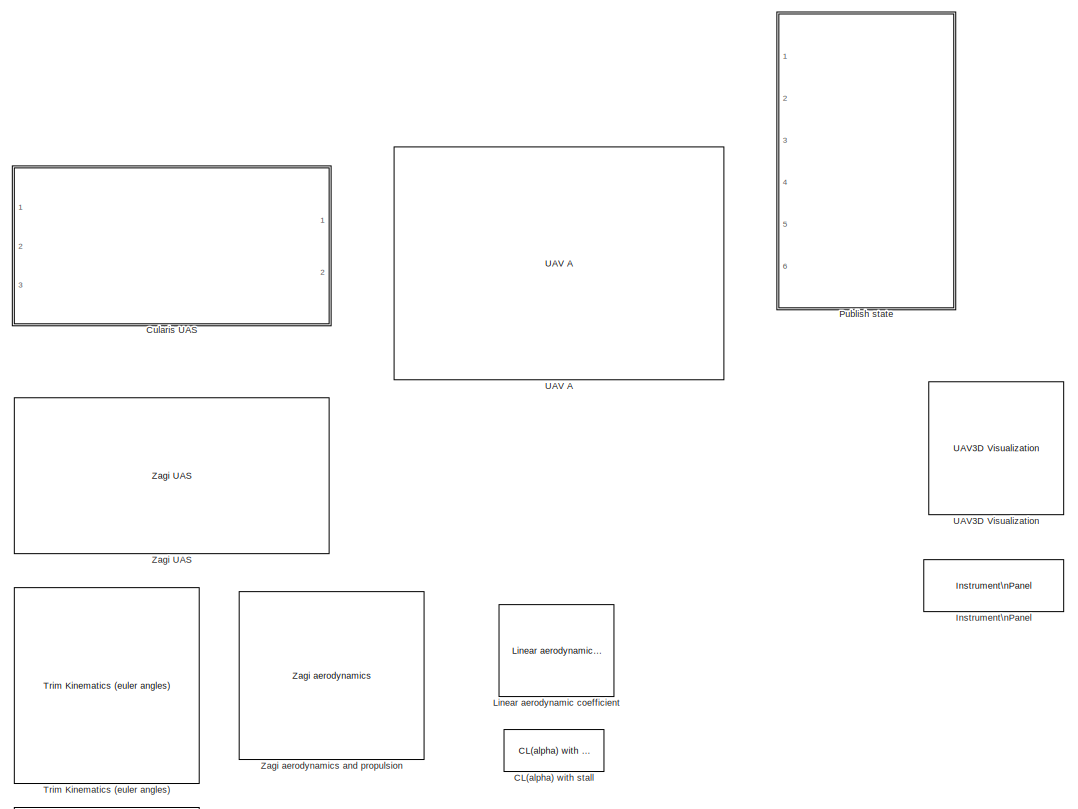
[diagram: root canvas - part 1/4, top center region]
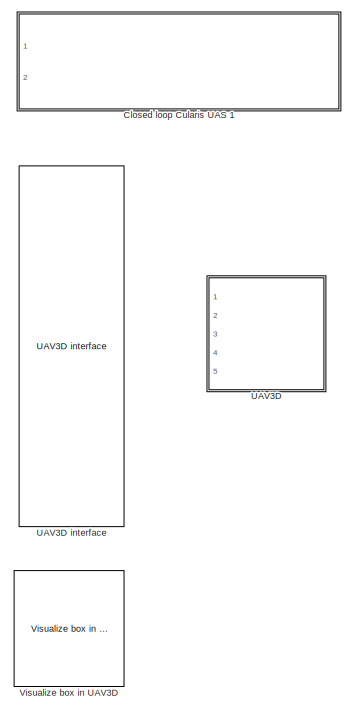
[diagram: root canvas - part 2/4, top right region]
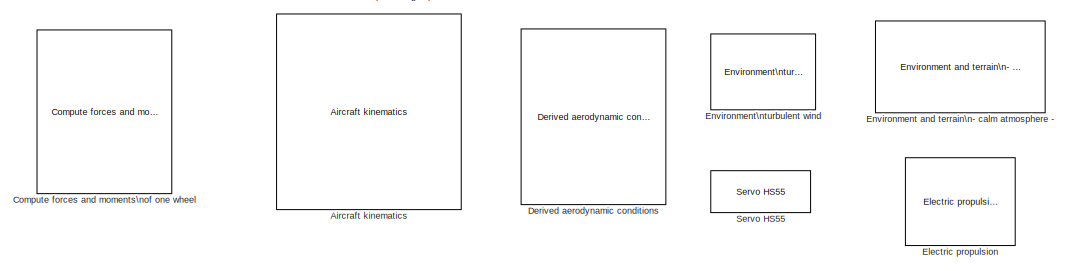
[diagram: root canvas - part 3/4, middle left region]
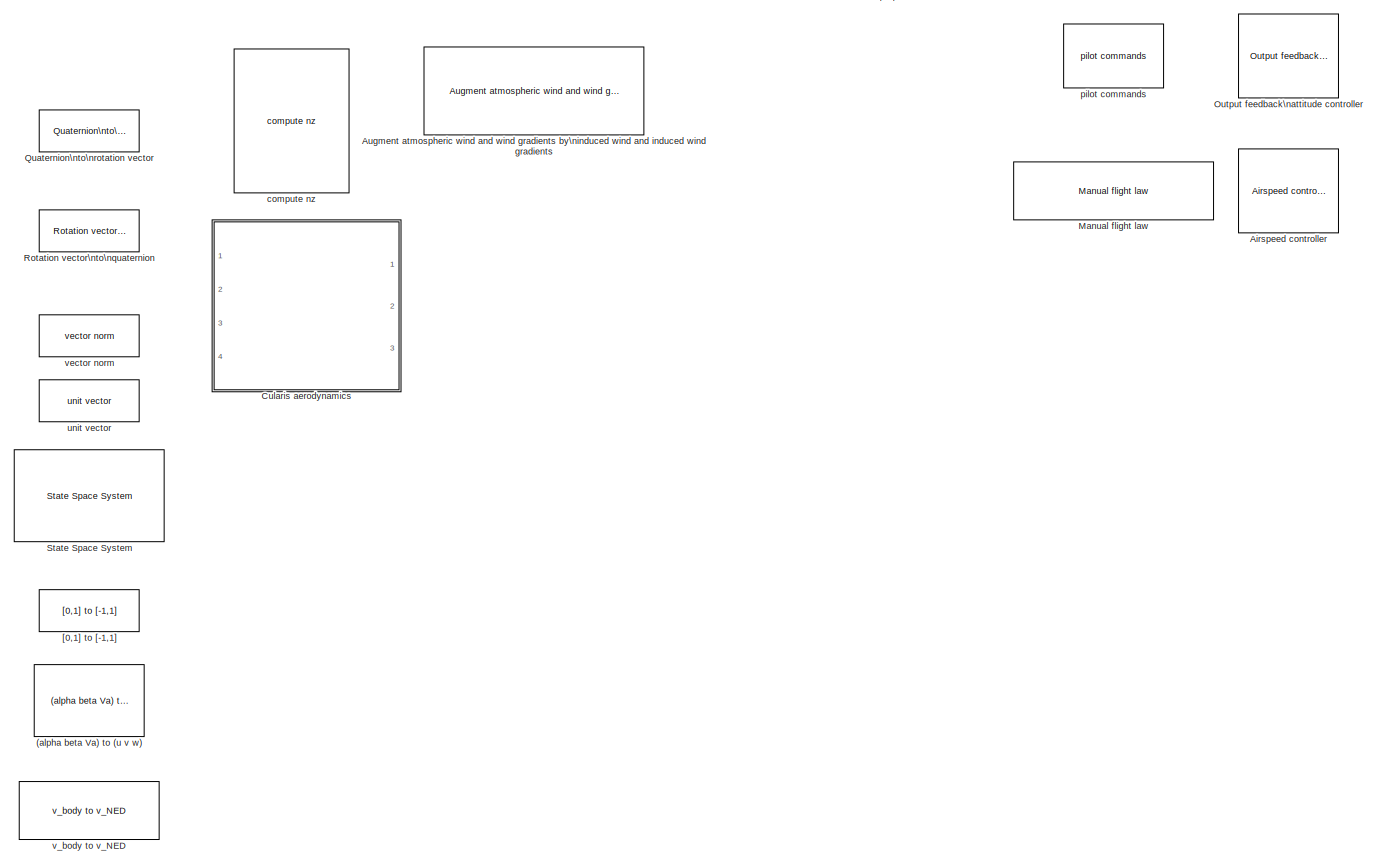
[diagram: root canvas - part 4/4, full width, bottom band]
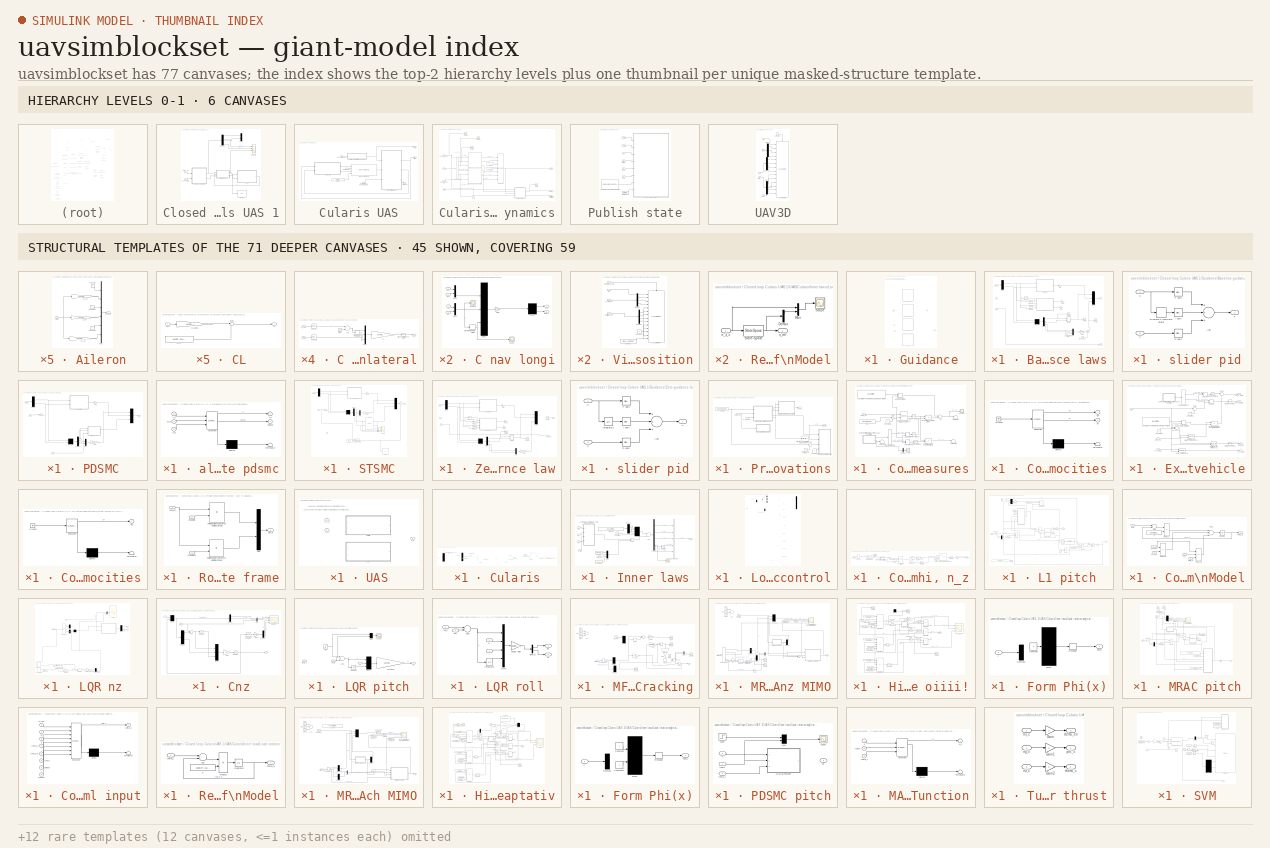
[diagram: thumbnail index - top-2 hierarchy levels (6 canvases) + 45 structural-template representatives of the remaining 71 canvases]
MODEL uavsimblockset
KIND library
BLOCK [Reference] (alpha beta Va) to (u v w)  REF=uavsimBlockset_alphabetaVa2uvw/(alpha beta Va) to (u v w)
  Ports = [3, 1]
  SID = 4458
  SourceBlock = uavsimBlockset_alphabetaVa2uvw/(alpha beta Va) to (u v w)
  SourceType = SubSystem
BLOCK [Reference] Aircraft kinematics  REF=uavsimblockset_SixDOFKinematics/Aircraft kinematics
  Ports = [4, 1]
  SID = 4441
  SourceBlock = uavsimblockset_SixDOFKinematics/Aircraft kinematics
  mask_P0_ECEF_rrm = mask_zagi_p0_ECEF_lla
  mask_inertia = [ 0.98244, 0, -0.1204; 0,1.135,  0; -0.1204, 0,1.759]
  mask_mass = 13.5
  mask_omega0 = mask_aerosonde_pqr0
  mask_originNED_ECEF_rrm = 0
  mask_phithetapsi0 = mask_aerosonde_phithetapsi0
  mask_uvw0 = mask_aerosonde_uvw0
BLOCK [Reference] Airspeed controller  REF=uavsimBlockset_AirspeedController/Airspeed controller
  Ports = [2, 2]
  SID = 4459
  SourceBlock = uavsimBlockset_AirspeedController/Airspeed controller
  mask_K = 0
BLOCK [Reference] Augment atmospheric wind and wind gradients by\ninduced wind and induced wind gradients  REF=uavsimBlockset_AugmentWind/Augment atmospheric wind and wind gradients by\ninduced wind and induced wind gradients
  Ports = [3, 1]
  SID = 4457
  SourceBlock = uavsimBlockset_AugmentWind/Augment atmospheric wind and wind gradients by\ninduced wind and induced wind gradients
  SourceType = SubSystem
BLOCK [Reference] CL(alpha) with stall  REF=uavsimBlockset_LiftCoefficientWithStall/CL(alpha) with stall
  Ports = [1, 1]
  SID = 4462
  SourceBlock = uavsimBlockset_LiftCoefficientWithStall/CL(alpha) with stall
  mask_CL_0 = 0
  mask_CL_alpha = 0
  mask_M = 0
  mask_alpha0 = 0
BLOCK [SubSystem] Closed loop Cularis UAS 1
  Ports = [2]
  RequestExecContextInheritance = off
  SID = 4951
  Variant = off
BLOCK [Inport] Closed loop Cularis UAS 1/DCMs_eg
  IconDisplay = Port number
  SID = 4957
BLOCK [Demux] Closed loop Cularis UAS 1/Demux6
  DisplayOption = bar
  Outputs = 6
  Ports = [1, 6]
  SID = 7577
BLOCK [Display] Closed loop Cularis UAS 1/Display
  Decimation = 1
  Ports = [1]
  SID = 7567
BLOCK [SubSystem] Closed loop Cularis UAS 1/Guidance
  Ports = [3, 2]
  RequestExecContextInheritance = off
  SID = 6976
  Variant = on
BLOCK [SubSystem] Closed loop Cularis UAS 1/Guidance/Baseline guidance laws
  Ports = [3, 2]
  RequestExecContextInheritance = off
  SID = 5053
  SystemSampleTime = uavsim.ap.tsampling_guidancelaws
  TreatAsAtomicUnit = on
  Variant = off
  VariantControl = pack_VSFLAG_FFB_ACTIVEGUIDANCE_BASELINE == 1
BLOCK [SubSystem] Closed loop Cularis UAS 1/Guidance/Baseline guidance laws/C nav lateral
  Ports = [2, 1]
  RequestExecContextInheritance = off
  SID = 5056
  Variant = off
BLOCK [Sum] Closed loop Cularis UAS 1/Guidance/Baseline guidance laws/C nav lateral/Add
  InputSameDT = off
  Inputs = +-
  OutDataTypeStr = Inherit: Inherit via internal rule
  Ports = [2, 1]
  SID = 5059
  SaturateOnIntegerOverflow = off
BLOCK [DiscreteIntegrator] Closed loop Cularis UAS 1/Guidance/Baseline guidance laws/C nav lateral/Discrete-Time Integrator1
  ICPrevOutput = DiscIntNeverNeededParam
  ICPrevScaledInput = DiscIntNeverNeededParam
  Ports = [1, 1]
  SID = 5060
  SampleTime = -1
BLOCK [Gain] Closed loop Cularis UAS 1/Guidance/Baseline guidance laws/C nav lateral/Ky
  Gain = uavsim.ap.control.lquadr.latnav.K
  Multiplication = Matrix(K*u)
  OutDataTypeStr = Inherit: Inherit via internal rule
  ParamDataTypeStr = Inherit: Inherit via internal rule
  SID = 5061
  SaturateOnIntegerOverflow = off
BLOCK [Mux] Closed loop Cularis UAS 1/Guidance/Baseline guidance laws/C nav lateral/Mux1
  DisplayOption = bar
  Inputs = 3
  Ports = [3, 1]
  SID = 5062
BLOCK [Selector] Closed loop Cularis UAS 1/Guidance/Baseline guidance laws/C nav lateral/Selector
  IndexOptions = Index vector (dialog)
  Indices = 2
  InputPortWidth = 3
  OutputSizes = 1
  Ports = [1, 1]
  SID = 5063
BLOCK [Selector] Closed loop Cularis UAS 1/Guidance/Baseline guidance laws/C nav lateral/Selector1
  IndexOptions = Index vector (dialog)
  Indices = 2
  InputPortWidth = 3
  OutputSizes = 1
  Ports = [1, 1]
  SID = 5064
BLOCK [Step] Closed loop Cularis UAS 1/Guidance/Baseline guidance laws/C nav lateral/Step
  After = 0
  SID = 5065
  Time = 12
BLOCK [Trigonometry] Closed loop Cularis UAS 1/Guidance/Baseline guidance laws/C nav lateral/Trigonometric\nFunction
  Operator = asin
  Ports = [1, 1]
  SID = 5225
BLOCK [Inport] Closed loop Cularis UAS 1/Guidance/Baseline guidance laws/C nav lateral/p_LTF
  IconDisplay = Port number
  SID = 5057
BLOCK [Outport] Closed loop Cularis UAS 1/Guidance/Baseline guidance laws/C nav lateral/phi_c
  IconDisplay = Port number
  SID = 5066
BLOCK [Inport] Closed loop Cularis UAS 1/Guidance/Baseline guidance laws/C nav lateral/v_LTF
  IconDisplay = Port number
  Port = 2
  SID = 5058
BLOCK [SubSystem] Closed loop Cularis UAS 1/Guidance/Baseline guidance laws/C nav longi
  Ports = [4, 2]
  RequestExecContextInheritance = off
  SID = 5067
  Variant = off
BLOCK [Demux] Closed loop Cularis UAS 1/Guidance/Baseline guidance laws/C nav longi/Demux
  DisplayOption = bar
  Outputs = 2
  Ports = [1, 2]
  SID = 5072
BLOCK [DiscreteIntegrator] Closed loop Cularis UAS 1/Guidance/Baseline guidance laws/C nav longi/Discrete-Time\nIntegrator
  ICPrevOutput = DiscIntNeverNeededParam
  ICPrevScaledInput = DiscIntNeverNeededParam
  InitialConditionSetting = State (most efficient)
  Ports = [1, 1]
  SID = 5073
  SampleTime = -1
  gainval = 1
BLOCK [Gain] Closed loop Cularis UAS 1/Guidance/Baseline guidance laws/C nav longi/Gain
  Gain = uavsim.ap.control.lquadr.longinav.K
  Multiplication = Matrix(K*u)
  OutDataTypeStr = Inherit: Inherit via internal rule
  ParamDataTypeStr = Inherit: Inherit via internal rule
  SID = 5074
  SaturateOnIntegerOverflow = off
BLOCK [Mux] Closed loop Cularis UAS 1/Guidance/Baseline guidance laws/C nav longi/Mux1
  DisplayOption = bar
  Inputs = 3
  Ports = [3, 1]
  SID = 5075
BLOCK [Mux] Closed loop Cularis UAS 1/Guidance/Baseline guidance laws/C nav longi/Mux2
  DisplayOption = bar
  Inputs = 2
  Ports = [2, 1]
  SID = 5076
BLOCK [Mux] Closed loop Cularis UAS 1/Guidance/Baseline guidance laws/C nav longi/Mux3
  DisplayOption = bar
  Inputs = 2
  Ports = [2, 1]
  SID = 5077
BLOCK [Scope] Closed loop Cularis UAS 1/Guidance/Baseline guidance laws/C nav longi/Scope
  NumInputPorts = 1
  Ports = [1]
  SID = 5078
  ScopeSpecificationString = Simulink.scopes.TimeScopeBlockCfg('CurrentConfiguration', extmgr.ConfigurationSet(extmgr.Configuration('Core','General UI',true),extmgr.Configuration('Core','Source UI',true),extmgr.Configuration('Sources','WiredSimulink',true,'DataLoggingVariableName','ScopeData1'),extmgr.Configuration('Visuals','Time Domain',true,'SerializedDisplays',{struct('MinYLimReal','-4.05866','MaxYLimReal','1.28854','YLab...<+1476ch>
BLOCK [Scope] Closed loop Cularis UAS 1/Guidance/Baseline guidance laws/C nav longi/Scope1
  NumInputPorts = 1
  Ports = [1]
  SID = 5079
  ScopeSpecificationString = Simulink.scopes.TimeScopeBlockCfg('CurrentConfiguration', extmgr.ConfigurationSet(extmgr.Configuration('Core','General UI',true),extmgr.Configuration('Core','Source UI',true),extmgr.Configuration('Sources','WiredSimulink',true,'DataLoggingVariableName','ScopeData2'),extmgr.Configuration('Visuals','Time Domain',true,'SerializedDisplays',{struct('MinYLimReal','-56.34947','MaxYLimReal','7.60309','YLa...<+1434ch>
BLOCK [Outport] Closed loop Cularis UAS 1/Guidance/Baseline guidance laws/C nav longi/den
  IconDisplay = Port number
  Port = 2
  SID = 5081
BLOCK [Inport] Closed loop Cularis UAS 1/Guidance/Baseline guidance laws/C nav longi/dvx
  IconDisplay = Port number
  SID = 5068
BLOCK [Inport] Closed loop Cularis UAS 1/Guidance/Baseline guidance laws/C nav longi/dvz
  IconDisplay = Port number
  Port = 2
  SID = 5069
BLOCK [Inport] Closed loop Cularis UAS 1/Guidance/Baseline guidance laws/C nav longi/dx
  IconDisplay = Port number
  Port = 3
  SID = 5070
BLOCK [Inport] Closed loop Cularis UAS 1/Guidance/Baseline guidance laws/C nav longi/dz
  IconDisplay = Port number
  Port = 4
  SID = 5071
BLOCK [Outport] Closed loop Cularis UAS 1/Guidance/Baseline guidance laws/C nav longi/theta_c
  IconDisplay = Port number
  SID = 5080
BLOCK [Demux] Closed loop Cularis UAS 1/Guidance/Baseline guidance laws/Demux
  DisplayOption = bar
  Outputs = 2
  Ports = [1, 2]
  SID = 6910
BLOCK [Demux] Closed loop Cularis UAS 1/Guidance/Baseline guidance laws/Demux6
  DisplayOption = bar
  Outputs = 6
  Ports = [1, 6]
  SID = 6817
BLOCK [DiscreteIntegrator] Closed loop Cularis UAS 1/Guidance/Baseline guidance laws/Discrete-Time\nIntegrator
  ICPrevOutput = DiscIntNeverNeededParam
  ICPrevScaledInput = DiscIntNeverNeededParam
  Ports = [1, 1]
  SID = 7584
  SampleTime = -1
BLOCK [Gain] Closed loop Cularis UAS 1/Guidance/Baseline guidance laws/Gain
  Gain = -1
  OutDataTypeStr = Inherit: Inherit via internal rule
  ParamDataTypeStr = Inherit: Inherit via internal rule
  SID = 6878
  SaturateOnIntegerOverflow = off
BLOCK [Gain] Closed loop Cularis UAS 1/Guidance/Baseline guidance laws/Gain1
  Gain = -1
  OutDataTypeStr = Inherit: Inherit via internal rule
  ParamDataTypeStr = Inherit: Inherit via internal rule
  SID = 6879
  SaturateOnIntegerOverflow = off
BLOCK [Gain] Closed loop Cularis UAS 1/Guidance/Baseline guidance laws/Gain2
  Gain = -1
  OutDataTypeStr = Inherit: Inherit via internal rule
  ParamDataTypeStr = Inherit: Inherit via internal rule
  SID = 6880
  SaturateOnIntegerOverflow = off
BLOCK [Gain] Closed loop Cularis UAS 1/Guidance/Baseline guidance laws/Gain3
  Gain = uavsim.control.baseline.z.K
  Multiplication = Matrix(K*u)
  OutDataTypeStr = Inherit: Inherit via internal rule
  ParamDataTypeStr = Inherit: Inherit via internal rule
  SID = 7573
  SaturateOnIntegerOverflow = off
BLOCK [Mux] Closed loop Cularis UAS 1/Guidance/Baseline guidance laws/Mux
  DisplayOption = bar
  Inputs = 2
  Ports = [2, 1]
  SID = 6905
BLOCK [Mux] Closed loop Cularis UAS 1/Guidance/Baseline guidance laws/Mux1
  DisplayOption = bar
  Inputs = 3
  Ports = [3, 1]
  SID = 6907
BLOCK [Mux] Closed loop Cularis UAS 1/Guidance/Baseline guidance laws/Mux3
  DisplayOption = bar
  Inputs = 3
  Ports = [3, 1]
  SID = 6967
BLOCK [Scope] Closed loop Cularis UAS 1/Guidance/Baseline guidance laws/Scope
  NumInputPorts = 1
  Ports = [1]
  SID = 7422
  ScopeSpecificationString = Simulink.scopes.TimeScopeBlockCfg('CurrentConfiguration', extmgr.ConfigurationSet(extmgr.Configuration('Core','General UI',true),extmgr.Configuration('Core','Source UI',true),extmgr.Configuration('Sources','WiredSimulink',true,'DataLoggingVariableName','ScopeData1'),extmgr.Configuration('Visuals','Time Domain',true,'SerializedDisplays',{struct('MinYLimReal','-2.20314','MaxYLimReal','16.91146','YLa...<+1415ch>
BLOCK [Scope] Closed loop Cularis UAS 1/Guidance/Baseline guidance laws/Scope1
  NumInputPorts = 1
  Ports = [1]
  SID = 7423
  ScopeSpecificationString = Simulink.scopes.TimeScopeBlockCfg('CurrentConfiguration', extmgr.ConfigurationSet(extmgr.Configuration('Core','General UI',true),extmgr.Configuration('Core','Source UI',true),extmgr.Configuration('Sources','WiredSimulink',true,'DataLoggingVariableName','ScopeData2'),extmgr.Configuration('Visuals','Time Domain',true,'SerializedDisplays',{struct('MinYLimReal','-1.26319','MaxYLimReal','7.79393','YLab...<+1394ch>
BLOCK [Scope] Closed loop Cularis UAS 1/Guidance/Baseline guidance laws/Scope2
  NumInputPorts = 1
  Ports = [1]
  SID = 7574
  ScopeSpecificationString = Simulink.scopes.TimeScopeBlockCfg('CurrentConfiguration', extmgr.ConfigurationSet(extmgr.Configuration('Core','General UI',true),extmgr.Configuration('Core','Source UI',true),extmgr.Configuration('Sources','WiredSimulink',true,'DataLoggingVariableName','ScopeData4'),extmgr.Configuration('Visuals','Time Domain',true,'SerializedDisplays',{struct('MinYLimReal','-1.25636','MaxYLimReal','0.82199','YLab...<+1387ch>
BLOCK [Sum] Closed loop Cularis UAS 1/Guidance/Baseline guidance laws/Sum
  IconShape = round
  InputSameDT = off
  Inputs = |++
  OutDataTypeStr = Inherit: Inherit via internal rule
  Ports = [2, 1]
  SID = 7575
  SaturateOnIntegerOverflow = off
BLOCK [Inport] Closed loop Cularis UAS 1/Guidance/Baseline guidance laws/delta_pv
  IconDisplay = Port number
  SID = 6909
BLOCK [Selector] Closed loop Cularis UAS 1/Guidance/Baseline guidance laws/get vz VLF
  IndexOptions = Index vector (dialog)
  Indices = 3
  InputPortWidth = 3
  OutputSizes = 1
  Ports = [1, 1]
  SID = 5082
BLOCK [Selector] Closed loop Cularis UAS 1/Guidance/Baseline guidance laws/get vz VLF1
  IndexOptions = Index vector (dialog)
  Indices = 1
  InputPortWidth = 3
  OutputSizes = 1
  Ports = [1, 1]
  SID = 5083
BLOCK [Selector] Closed loop Cularis UAS 1/Guidance/Baseline guidance laws/get x VLF
  IndexOptions = Index vector (dialog)
  Indices = 1
  InputPortWidth = 3
  OutputSizes = 1
  Ports = [1, 1]
  SID = 5084
BLOCK [Selector] Closed loop Cularis UAS 1/Guidance/Baseline guidance laws/get z VLF
  IndexOptions = Index vector (dialog)
  Indices = 3
  InputPortWidth = 3
  OutputSizes = 1
  Ports = [1, 1]
  SID = 5085
BLOCK [Outport] Closed loop Cularis UAS 1/Guidance/Baseline guidance laws/n_c
  IconDisplay = Port number
  SID = 6908
BLOCK [Inport] Closed loop Cularis UAS 1/Guidance/Baseline guidance laws/n_g
  IconDisplay = Port number
  Port = 2
  SID = 7468
BLOCK [Inport] Closed loop Cularis UAS 1/Guidance/Baseline guidance laws/q_ge
  IconDisplay = Port number
  Port = 3
  SID = 7555
BLOCK [Outport] Closed loop Cularis UAS 1/Guidance/Baseline guidance laws/q_ge_out
  IconDisplay = Port number
  Port = 2
  SID = 7560
BLOCK [SubSystem] Closed loop Cularis UAS 1/Guidance/Baseline guidance laws/slider pid
  Ports = [2, 1]
  RequestExecContextInheritance = off
  SID = 7436
  Variant = off
BLOCK [Sum] Closed loop Cularis UAS 1/Guidance/Baseline guidance laws/slider pid/Add
  InputSameDT = off
  Inputs = +++
  OutDataTypeStr = Inherit: Inherit via internal rule
  Ports = [3, 1]
  SID = 7441
  SaturateOnIntegerOverflow = off
BLOCK [Reference] Closed loop Cularis UAS 1/Guidance/Baseline guidance laws/slider pid/D gain  REF=simulink/Math\nOperations/Slider\nGain
  Ports = [1, 1]
  SID = 7429
  SourceBlock = simulink/Math\nOperations/Slider\nGain
  SourceType = Slider Gain
  gain = 0.45684
  high = 1
  low = 0
BLOCK [DiscreteIntegrator] Closed loop Cularis UAS 1/Guidance/Baseline guidance laws/slider pid/Discrete-Time\nIntegrator
  ICPrevOutput = DiscIntNeverNeededParam
  ICPrevScaledInput = DiscIntNeverNeededParam
  InitialConditionSetting = State (most efficient)
  Ports = [1, 1]
  SID = 7571
  SampleTime = -1
BLOCK [Reference] Closed loop Cularis UAS 1/Guidance/Baseline guidance laws/slider pid/I gain  REF=simulink/Math\nOperations/Slider\nGain
  Ports = [1, 1]
  SID = 7428
  SourceBlock = simulink/Math\nOperations/Slider\nGain
  SourceType = Slider Gain
  gain = 0.028777
  high = 1
  low = 0
BLOCK [Reference] Closed loop Cularis UAS 1/Guidance/Baseline guidance laws/slider pid/P gain  REF=simulink/Math\nOperations/Slider\nGain
  Ports = [1, 1]
  SID = 7427
  SourceBlock = simulink/Math\nOperations/Slider\nGain
  SourceType = Slider Gain
  gain = 0.31655
  high = 1
  low = 0
BLOCK [Inport] Closed loop Cularis UAS 1/Guidance/Baseline guidance laws/slider pid/d
  IconDisplay = Port number
  Port = 2
  SID = 7438
BLOCK [Inport] Closed loop Cularis UAS 1/Guidance/Baseline guidance laws/slider pid/p
  IconDisplay = Port number
  SID = 7437
BLOCK [Outport] Closed loop Cularis UAS 1/Guidance/Baseline guidance laws/slider pid/u
  IconDisplay = Port number
  SID = 7440
BLOCK [Constant] Closed loop Cularis UAS 1/Guidance/Baseline guidance laws/trim z load factor
  SID = 7576
  Value = -1
BLOCK [SubSystem] Closed loop Cularis UAS 1/Guidance/PDSMC
  Ports = [3, 2]
  RequestExecContextInheritance = off
  SID = 6920
  SystemSampleTime = uavsim.ap.tsampling_guidancelaws
  TreatAsAtomicUnit = on
  Variant = off
  VariantControl = pack_VSFLAG_FFB_ACTIVEGUIDANCE_PDSMC == 1
BLOCK [SubSystem] Closed loop Cularis UAS 1/Guidance/PDSMC/C nav lateral
  Ports = [2, 1]
  RequestExecContextInheritance = off
  SID = 6922
  Variant = off
BLOCK [Sum] Closed loop Cularis UAS 1/Guidance/PDSMC/C nav lateral/Add
  InputSameDT = off
  Inputs = +-
  OutDataTypeStr = Inherit: Inherit via internal rule
  Ports = [2, 1]
  SID = 6925
  SaturateOnIntegerOverflow = off
BLOCK [DiscreteIntegrator] Closed loop Cularis UAS 1/Guidance/PDSMC/C nav lateral/Discrete-Time Integrator1
  ICPrevOutput = DiscIntNeverNeededParam
  ICPrevScaledInput = DiscIntNeverNeededParam
  Ports = [1, 1]
  SID = 6926
  SampleTime = -1
BLOCK [Gain] Closed loop Cularis UAS 1/Guidance/PDSMC/C nav lateral/Ky
  Gain = uavsim.ap.control.lquadr.latnav.K
  Multiplication = Matrix(K*u)
  OutDataTypeStr = Inherit: Inherit via internal rule
  ParamDataTypeStr = Inherit: Inherit via internal rule
  SID = 6927
  SaturateOnIntegerOverflow = off
BLOCK [Mux] Closed loop Cularis UAS 1/Guidance/PDSMC/C nav lateral/Mux1
  DisplayOption = bar
  Inputs = 3
  Ports = [3, 1]
  SID = 6928
BLOCK [Selector] Closed loop Cularis UAS 1/Guidance/PDSMC/C nav lateral/Selector
  IndexOptions = Index vector (dialog)
  Indices = 2
  InputPortWidth = 3
  OutputSizes = 1
  Ports = [1, 1]
  SID = 6929
BLOCK [Selector] Closed loop Cularis UAS 1/Guidance/PDSMC/C nav lateral/Selector1
  IndexOptions = Index vector (dialog)
  Indices = 2
  InputPortWidth = 3
  OutputSizes = 1
  Ports = [1, 1]
  SID = 6930
BLOCK [Step] Closed loop Cularis UAS 1/Guidance/PDSMC/C nav lateral/Step
  After = 0
  SID = 6931
  Time = 12
BLOCK [Trigonometry] Closed loop Cularis UAS 1/Guidance/PDSMC/C nav lateral/Trigonometric\nFunction
  Operator = asin
  Ports = [1, 1]
  SID = 6932
BLOCK [Inport] Closed loop Cularis UAS 1/Guidance/PDSMC/C nav lateral/p_LTF
  IconDisplay = Port number
  SID = 6923
BLOCK [Outport] Closed loop Cularis UAS 1/Guidance/PDSMC/C nav lateral/phi_c
  IconDisplay = Port number
  SID = 6933
BLOCK [Inport] Closed loop Cularis UAS 1/Guidance/PDSMC/C nav lateral/v_LTF
  IconDisplay = Port number
  Port = 2
  SID = 6924
BLOCK [Demux] Closed loop Cularis UAS 1/Guidance/PDSMC/Demux
  DisplayOption = bar
  Outputs = 2
  Ports = [1, 2]
  SID = 6949
BLOCK [Demux] Closed loop Cularis UAS 1/Guidance/PDSMC/Demux6
  DisplayOption = bar
  Outputs = 6
  Ports = [1, 6]
  SID = 6950
BLOCK [Gain] Closed loop Cularis UAS 1/Guidance/PDSMC/Gain
  Gain = -1
  OutDataTypeStr = Inherit: Inherit via internal rule
  ParamDataTypeStr = Inherit: Inherit via internal rule
  SID = 6951
  SaturateOnIntegerOverflow = off
BLOCK [Gain] Closed loop Cularis UAS 1/Guidance/PDSMC/Gain3
  Gain = [0.1 0.1]
  Multiplication = Matrix(K*u)
  OutDataTypeStr = Inherit: Inherit via internal rule
  ParamDataTypeStr = Inherit: Inherit via internal rule
  SID = 6954
  SaturateOnIntegerOverflow = off
BLOCK [Mux] Closed loop Cularis UAS 1/Guidance/PDSMC/Mux
  DisplayOption = bar
  Inputs = 2
  Ports = [2, 1]
  SID = 6955
BLOCK [Mux] Closed loop Cularis UAS 1/Guidance/PDSMC/Mux1
  DisplayOption = bar
  Inputs = 3
  Ports = [3, 1]
  SID = 6956
BLOCK [Mux] Closed loop Cularis UAS 1/Guidance/PDSMC/Mux2
  DisplayOption = bar
  Inputs = 2
  Ports = [2, 1]
  SID = 6957
BLOCK [SubSystem] Closed loop Cularis UAS 1/Guidance/PDSMC/altitude pdsmc
  ErrorFcn = Stateflow.Translate.translate
  PermitHierarchicalResolution = ExplicitOnly
  Ports = [3, 2]
  RequestExecContextInheritance = off
  SFBlockType = MATLAB Function
  SID = 6970
  SystemSampleTime = outerloop.dssm.Ts
  TreatAsAtomicUnit = on
  Variant = off
BLOCK [Demux] Closed loop Cularis UAS 1/Guidance/PDSMC/altitude pdsmc/ Demux 
  Outputs = 1
  Ports = [1, 1]
  SID = 6970::34
BLOCK [S-Function] Closed loop Cularis UAS 1/Guidance/PDSMC/altitude pdsmc/ SFunction 
  EnableBusSupport = off
  FunctionName = sf_sfun
  PortCounts = [3 3]
  Ports = [3, 3]
  SFcnIsStateOwnerBlock = off
  SFunctionDeploymentMode = off
  SID = 6970::33
  Tag = Stateflow S-Function uavsimblockset 5
BLOCK [Terminator] Closed loop Cularis UAS 1/Guidance/PDSMC/altitude pdsmc/ Terminator 
  SID = 6970::35
BLOCK [Outport] Closed loop Cularis UAS 1/Guidance/PDSMC/altitude pdsmc/debug
  IconDisplay = Port number
  Port = 2
  SID = 6970::22
BLOCK [Inport] Closed loop Cularis UAS 1/Guidance/PDSMC/altitude pdsmc/n_g
  IconDisplay = Port number
  Port = 3
  SID = 6970::26
BLOCK [Outport] Closed loop Cularis UAS 1/Guidance/PDSMC/altitude pdsmc/u_k
  IconDisplay = Port number
  SID = 6970::5
BLOCK [Inport] Closed loop Cularis UAS 1/Guidance/PDSMC/altitude pdsmc/vz_g
  IconDisplay = Port number
  Port = 2
  SID = 6970::1
BLOCK [Inport] Closed loop Cularis UAS 1/Guidance/PDSMC/altitude pdsmc/z_g
  IconDisplay = Port number
  SID = 6970::19
BLOCK [Inport] Closed loop Cularis UAS 1/Guidance/PDSMC/delta_pv
  IconDisplay = Port number
  SID = 6921
BLOCK [Outport] Closed loop Cularis UAS 1/Guidance/PDSMC/n_c
  IconDisplay = Port number
  SID = 6963
BLOCK [Inport] Closed loop Cularis UAS 1/Guidance/PDSMC/n_g
  IconDisplay = Port number
  Port = 2
  SID = 7469
BLOCK [Inport] Closed loop Cularis UAS 1/Guidance/PDSMC/q_ge
  IconDisplay = Port number
  Port = 3
  SID = 7556
BLOCK [Outport] Closed loop Cularis UAS 1/Guidance/PDSMC/q_ge_out
  IconDisplay = Port number
  Port = 2
  SID = 7561
BLOCK [SubSystem] Closed loop Cularis UAS 1/Guidance/STSMC
  MinAlgLoopOccurrences = on
  Ports = [3, 2]
  RequestExecContextInheritance = off
  SID = 7470
  SystemSampleTime = uavsim.ap.tsampling_guidancelaws
  TreatAsAtomicUnit = on
  Variant = off
  VariantControl = pack_VSFLAG_FFB_ACTIVEGUIDANCE_STSMC == 1
BLOCK [SubSystem] Closed loop Cularis UAS 1/Guidance/STSMC/C nav lateral
  Ports = [2, 1]
  RequestExecContextInheritance = off
  SID = 7473
  Variant = off
BLOCK [Sum] Closed loop Cularis UAS 1/Guidance/STSMC/C nav lateral/Add
  InputSameDT = off
  Inputs = +-
  OutDataTypeStr = Inherit: Inherit via internal rule
  Ports = [2, 1]
  SID = 7476
  SaturateOnIntegerOverflow = off
BLOCK [DiscreteIntegrator] Closed loop Cularis UAS 1/Guidance/STSMC/C nav lateral/Discrete-Time Integrator1
  ICPrevOutput = DiscIntNeverNeededParam
  ICPrevScaledInput = DiscIntNeverNeededParam
  Ports = [1, 1]
  SID = 7477
  SampleTime = -1
BLOCK [Gain] Closed loop Cularis UAS 1/Guidance/STSMC/C nav lateral/Ky
  Gain = uavsim.ap.control.lquadr.latnav.K
  Multiplication = Matrix(K*u)
  OutDataTypeStr = Inherit: Inherit via internal rule
  ParamDataTypeStr = Inherit: Inherit via internal rule
  SID = 7478
  SaturateOnIntegerOverflow = off
BLOCK [Mux] Closed loop Cularis UAS 1/Guidance/STSMC/C nav lateral/Mux1
  DisplayOption = bar
  Inputs = 3
  Ports = [3, 1]
  SID = 7479
BLOCK [Selector] Closed loop Cularis UAS 1/Guidance/STSMC/C nav lateral/Selector
  IndexOptions = Index vector (dialog)
  Indices = 2
  InputPortWidth = 3
  OutputSizes = 1
  Ports = [1, 1]
  SID = 7480
BLOCK [Selector] Closed loop Cularis UAS 1/Guidance/STSMC/C nav lateral/Selector1
  IndexOptions = Index vector (dialog)
  Indices = 2
  InputPortWidth = 3
  OutputSizes = 1
  Ports = [1, 1]
  SID = 7481
BLOCK [Step] Closed loop Cularis UAS 1/Guidance/STSMC/C nav lateral/Step
  After = 0
  SID = 7482
  Time = 12
BLOCK [Trigonometry] Closed loop Cularis UAS 1/Guidance/STSMC/C nav lateral/Trigonometric\nFunction
  Operator = asin
  Ports = [1, 1]
  SID = 7483
BLOCK [Inport] Closed loop Cularis UAS 1/Guidance/STSMC/C nav lateral/p_LTF
  IconDisplay = Port number
  SID = 7474
BLOCK [Outport] Closed loop Cularis UAS 1/Guidance/STSMC/C nav lateral/phi_c
  IconDisplay = Port number
  SID = 7484
BLOCK [Inport] Closed loop Cularis UAS 1/Guidance/STSMC/C nav lateral/v_LTF
  IconDisplay = Port number
  Port = 2
  SID = 7475
BLOCK [Demux] Closed loop Cularis UAS 1/Guidance/STSMC/Demux
  DisplayOption = bar
  Outputs = 2
  Ports = [1, 2]
  SID = 7485
BLOCK [Demux] Closed loop Cularis UAS 1/Guidance/STSMC/Demux6
  DisplayOption = bar
  Outputs = 6
  Ports = [1, 6]
  SID = 7486
BLOCK [Display] Closed loop Cularis UAS 1/Guidance/STSMC/Display
  Decimation = 1
  Ports = [1]
  SID = 7566
BLOCK [Gain] Closed loop Cularis UAS 1/Guidance/STSMC/Gain
  Gain = -1
  OutDataTypeStr = Inherit: Inherit via internal rule
  ParamDataTypeStr = Inherit: Inherit via internal rule
  SID = 7487
  SaturateOnIntegerOverflow = off
BLOCK [Gain] Closed loop Cularis UAS 1/Guidance/STSMC/Gain3
  Gain = [0.1 0.1]
  Multiplication = Matrix(K*u)
  OutDataTypeStr = Inherit: Inherit via internal rule
  ParamDataTypeStr = Inherit: Inherit via internal rule
  SID = 7488
  SaturateOnIntegerOverflow = off
BLOCK [Mux] Closed loop Cularis UAS 1/Guidance/STSMC/Mux
  DisplayOption = bar
  Inputs = 2
  Ports = [2, 1]
  SID = 7489
BLOCK [Mux] Closed loop Cularis UAS 1/Guidance/STSMC/Mux1
  DisplayOption = bar
  Inputs = 3
  Ports = [3, 1]
  SID = 7490
BLOCK [Mux] Closed loop Cularis UAS 1/Guidance/STSMC/Mux2
  DisplayOption = bar
  Inputs = 2
  Ports = [2, 1]
  SID = 7491
BLOCK [Reference] Closed loop Cularis UAS 1/Guidance/STSMC/Quaternion\nRotation  REF=aerolibutil/Quaternion\nRotation
  Ports = [2, 1]
  SID = 7564
  SourceBlock = aerolibutil/Quaternion\nRotation
  SourceType = Quaternion Rotation
BLOCK [Reference] Closed loop Cularis UAS 1/Guidance/STSMC/STSMC  REF=svm_lib/CSTSMC
  Ports = [2, 2]
  SID = 7494
  SourceBlock = svm_lib/CSTSMC
  SourceType = SubSystem
BLOCK [Scope] Closed loop Cularis UAS 1/Guidance/STSMC/Scope
  NumInputPorts = 4
  Ports = [4]
  SID = 7568
  ScopeSpecificationString = Simulink.scopes.TimeScopeBlockCfg('CurrentConfiguration', extmgr.ConfigurationSet(extmgr.Configuration('Core','General UI',true),extmgr.Configuration('Core','Source UI',true),extmgr.Configuration('Sources','WiredSimulink',true,'DataLoggingVariableName','ScopeData1'),extmgr.Configuration('Visuals','Time Domain',true,'SerializedDisplays',{struct('MinYLimReal','-2.15442','MaxYLimReal','5.81633','YLab...<+3419ch>
BLOCK [Sum] Closed loop Cularis UAS 1/Guidance/STSMC/Sum
  IconShape = round
  InputSameDT = off
  Inputs = |++
  OutDataTypeStr = Inherit: Inherit via internal rule
  Ports = [2, 1]
  SID = 7565
  SaturateOnIntegerOverflow = off
BLOCK [Inport] Closed loop Cularis UAS 1/Guidance/STSMC/delta_pv
  IconDisplay = Port number
  SID = 7471
BLOCK [Constant] Closed loop Cularis UAS 1/Guidance/STSMC/g_e
  SID = 7563
  Value = -[0 0 1]'
BLOCK [Outport] Closed loop Cularis UAS 1/Guidance/STSMC/n_c
  IconDisplay = Port number
  SID = 7493
BLOCK [Inport] Closed loop Cularis UAS 1/Guidance/STSMC/n_g
  IconDisplay = Port number
  Port = 2
  SID = 7472
BLOCK [Inport] Closed loop Cularis UAS 1/Guidance/STSMC/q_ge
  IconDisplay = Port number
  Port = 3
  SID = 7557
BLOCK [Outport] Closed loop Cularis UAS 1/Guidance/STSMC/q_ge_out
  IconDisplay = Port number
  Port = 2
  SID = 7562
BLOCK [SubSystem] Closed loop Cularis UAS 1/Guidance/Zero guidance law
  MinAlgLoopOccurrences = on
  Ports = [3, 2]
  RequestExecContextInheritance = off
  SID = 7495
  SystemSampleTime = uavsim.ap.tsampling_guidancelaws
  TreatAsAtomicUnit = on
  Variant = off
  VariantControl = pack_VSFLAG_FFB_ACTIVEGUIDANCE_ZERO == 1
BLOCK [SubSystem] Closed loop Cularis UAS 1/Guidance/Zero guidance law/C nav lateral
  Ports = [2, 1]
  RequestExecContextInheritance = off
  SID = 7498
  Variant = off
BLOCK [Sum] Closed loop Cularis UAS 1/Guidance/Zero guidance law/C nav lateral/Add
  InputSameDT = off
  Inputs = +-
  OutDataTypeStr = Inherit: Inherit via internal rule
  Ports = [2, 1]
  SID = 7501
  SaturateOnIntegerOverflow = off
BLOCK [DiscreteIntegrator] Closed loop Cularis UAS 1/Guidance/Zero guidance law/C nav lateral/Discrete-Time Integrator1
  ICPrevOutput = DiscIntNeverNeededParam
  ICPrevScaledInput = DiscIntNeverNeededParam
  Ports = [1, 1]
  SID = 7502
  SampleTime = -1
BLOCK [Gain] Closed loop Cularis UAS 1/Guidance/Zero guidance law/C nav lateral/Ky
  Gain = uavsim.ap.control.lquadr.latnav.K
  Multiplication = Matrix(K*u)
  OutDataTypeStr = Inherit: Inherit via internal rule
  ParamDataTypeStr = Inherit: Inherit via internal rule
  SID = 7503
  SaturateOnIntegerOverflow = off
BLOCK [Mux] Closed loop Cularis UAS 1/Guidance/Zero guidance law/C nav lateral/Mux1
  DisplayOption = bar
  Inputs = 3
  Ports = [3, 1]
  SID = 7504
BLOCK [Selector] Closed loop Cularis UAS 1/Guidance/Zero guidance law/C nav lateral/Selector
  IndexOptions = Index vector (dialog)
  Indices = 2
  InputPortWidth = 3
  OutputSizes = 1
  Ports = [1, 1]
  SID = 7505
BLOCK [Selector] Closed loop Cularis UAS 1/Guidance/Zero guidance law/C nav lateral/Selector1
  IndexOptions = Index vector (dialog)
  Indices = 2
  InputPortWidth = 3
  OutputSizes = 1
  Ports = [1, 1]
  SID = 7506
BLOCK [Step] Closed loop Cularis UAS 1/Guidance/Zero guidance law/C nav lateral/Step
  After = 0
  SID = 7507
  Time = 12
BLOCK [Trigonometry] Closed loop Cularis UAS 1/Guidance/Zero guidance law/C nav lateral/Trigonometric\nFunction
  Operator = asin
  Ports = [1, 1]
  SID = 7508
BLOCK [Inport] Closed loop Cularis UAS 1/Guidance/Zero guidance law/C nav lateral/p_LTF
  IconDisplay = Port number
  SID = 7499
BLOCK [Outport] Closed loop Cularis UAS 1/Guidance/Zero guidance law/C nav lateral/phi_c
  IconDisplay = Port number
  SID = 7509
BLOCK [Inport] Closed loop Cularis UAS 1/Guidance/Zero guidance law/C nav lateral/v_LTF
  IconDisplay = Port number
  Port = 2
  SID = 7500
BLOCK [SubSystem] Closed loop Cularis UAS 1/Guidance/Zero guidance law/C nav longi
  Ports = [4, 2]
  RequestExecContextInheritance = off
  SID = 7510
  Variant = off
BLOCK [Demux] Closed loop Cularis UAS 1/Guidance/Zero guidance law/C nav longi/Demux
  DisplayOption = bar
  Outputs = 2
  Ports = [1, 2]
  SID = 7515
BLOCK [DiscreteIntegrator] Closed loop Cularis UAS 1/Guidance/Zero guidance law/C nav longi/Discrete-Time\nIntegrator
  ICPrevOutput = DiscIntNeverNeededParam
  ICPrevScaledInput = DiscIntNeverNeededParam
  InitialConditionSetting = State (most efficient)
  Ports = [1, 1]
  SID = 7516
  SampleTime = -1
  gainval = 1
BLOCK [Gain] Closed loop Cularis UAS 1/Guidance/Zero guidance law/C nav longi/Gain
  Gain = uavsim.ap.control.lquadr.longinav.K
  Multiplication = Matrix(K*u)
  OutDataTypeStr = Inherit: Inherit via internal rule
  ParamDataTypeStr = Inherit: Inherit via internal rule
  SID = 7517
  SaturateOnIntegerOverflow = off
BLOCK [Mux] Closed loop Cularis UAS 1/Guidance/Zero guidance law/C nav longi/Mux1
  DisplayOption = bar
  Inputs = 3
  Ports = [3, 1]
  SID = 7518
BLOCK [Mux] Closed loop Cularis UAS 1/Guidance/Zero guidance law/C nav longi/Mux2
  DisplayOption = bar
  Inputs = 2
  Ports = [2, 1]
  SID = 7519
BLOCK [Mux] Closed loop Cularis UAS 1/Guidance/Zero guidance law/C nav longi/Mux3
  DisplayOption = bar
  Inputs = 2
  Ports = [2, 1]
  SID = 7520
BLOCK [Scope] Closed loop Cularis UAS 1/Guidance/Zero guidance law/C nav longi/Scope
  NumInputPorts = 1
  Ports = [1]
  SID = 7521
  ScopeSpecificationString = Simulink.scopes.TimeScopeBlockCfg('CurrentConfiguration', extmgr.ConfigurationSet(extmgr.Configuration('Core','General UI',true),extmgr.Configuration('Core','Source UI',true),extmgr.Configuration('Sources','WiredSimulink',true,'DataLoggingVariableName','ScopeData1'),extmgr.Configuration('Visuals','Time Domain',true,'SerializedDisplays',{struct('MinYLimReal','-4.05866','MaxYLimReal','1.28854','YLab...<+1476ch>
BLOCK [Scope] Closed loop Cularis UAS 1/Guidance/Zero guidance law/C nav longi/Scope1
  NumInputPorts = 1
  Ports = [1]
  SID = 7522
  ScopeSpecificationString = Simulink.scopes.TimeScopeBlockCfg('CurrentConfiguration', extmgr.ConfigurationSet(extmgr.Configuration('Core','General UI',true),extmgr.Configuration('Core','Source UI',true),extmgr.Configuration('Sources','WiredSimulink',true,'DataLoggingVariableName','ScopeData2'),extmgr.Configuration('Visuals','Time Domain',true,'SerializedDisplays',{struct('MinYLimReal','-56.34947','MaxYLimReal','7.60309','YLa...<+1434ch>
BLOCK [Outport] Closed loop Cularis UAS 1/Guidance/Zero guidance law/C nav longi/den
  IconDisplay = Port number
  Port = 2
  SID = 7524
BLOCK [Inport] Closed loop Cularis UAS 1/Guidance/Zero guidance law/C nav longi/dvx
  IconDisplay = Port number
  SID = 7511
BLOCK [Inport] Closed loop Cularis UAS 1/Guidance/Zero guidance law/C nav longi/dvz
  IconDisplay = Port number
  Port = 2
  SID = 7512
BLOCK [Inport] Closed loop Cularis UAS 1/Guidance/Zero guidance law/C nav longi/dx
  IconDisplay = Port number
  Port = 3
  SID = 7513
BLOCK [Inport] Closed loop Cularis UAS 1/Guidance/Zero guidance law/C nav longi/dz
  IconDisplay = Port number
  Port = 4
  SID = 7514
BLOCK [Outport] Closed loop Cularis UAS 1/Guidance/Zero guidance law/C nav longi/theta_c
  IconDisplay = Port number
  SID = 7523
BLOCK [Constant] Closed loop Cularis UAS 1/Guidance/Zero guidance law/Constant
  SID = 7550
  Value = zeros(3,1)
BLOCK [Demux] Closed loop Cularis UAS 1/Guidance/Zero guidance law/Demux
  DisplayOption = bar
  Outputs = 2
  Ports = [1, 2]
  SID = 7525
BLOCK [Demux] Closed loop Cularis UAS 1/Guidance/Zero guidance law/Demux6
  DisplayOption = bar
  Outputs = 6
  Ports = [1, 6]
  SID = 7526
BLOCK [Gain] Closed loop Cularis UAS 1/Guidance/Zero guidance law/Gain
  Gain = -1
  OutDataTypeStr = Inherit: Inherit via internal rule
  ParamDataTypeStr = Inherit: Inherit via internal rule
  SID = 7527
  SaturateOnIntegerOverflow = off
BLOCK [Gain] Closed loop Cularis UAS 1/Guidance/Zero guidance law/Gain1
  Gain = -1
  OutDataTypeStr = Inherit: Inherit via internal rule
  ParamDataTypeStr = Inherit: Inherit via internal rule
  SID = 7528
  SaturateOnIntegerOverflow = off
BLOCK [Gain] Closed loop Cularis UAS 1/Guidance/Zero guidance law/Gain2
  Gain = -1
  OutDataTypeStr = Inherit: Inherit via internal rule
  ParamDataTypeStr = Inherit: Inherit via internal rule
  SID = 7529
  SaturateOnIntegerOverflow = off
BLOCK [Gain] Closed loop Cularis UAS 1/Guidance/Zero guidance law/Gain4
  Gain = [0.1 0.1]
  Multiplication = Matrix(K*u)
  OutDataTypeStr = Inherit: Inherit via internal rule
  ParamDataTypeStr = Inherit: Inherit via internal rule
  SID = 7530
  SaturateOnIntegerOverflow = off
BLOCK [Mux] Closed loop Cularis UAS 1/Guidance/Zero guidance law/Mux
  DisplayOption = bar
  Inputs = 2
  Ports = [2, 1]
  SID = 7531
BLOCK [Mux] Closed loop Cularis UAS 1/Guidance/Zero guidance law/Mux1
  DisplayOption = bar
  Inputs = 3
  Ports = [3, 1]
  SID = 7532
BLOCK [Mux] Closed loop Cularis UAS 1/Guidance/Zero guidance law/Mux3
  DisplayOption = bar
  Inputs = 2
  Ports = [2, 1]
  SID = 7533
BLOCK [Scope] Closed loop Cularis UAS 1/Guidance/Zero guidance law/Scope
  NumInputPorts = 1
  Ports = [1]
  SID = 7534
  ScopeSpecificationString = Simulink.scopes.TimeScopeBlockCfg('CurrentConfiguration', extmgr.ConfigurationSet(extmgr.Configuration('Core','General UI',true),extmgr.Configuration('Core','Source UI',true),extmgr.Configuration('Sources','WiredSimulink',true,'DataLoggingVariableName','ScopeData1'),extmgr.Configuration('Visuals','Time Domain',true,'SerializedDisplays',{struct('MinYLimReal','-2.20314','MaxYLimReal','16.91146','YLa...<+1415ch>
BLOCK [Scope] Closed loop Cularis UAS 1/Guidance/Zero guidance law/Scope1
  NumInputPorts = 1
  Ports = [1]
  SID = 7535
  ScopeSpecificationString = Simulink.scopes.TimeScopeBlockCfg('CurrentConfiguration', extmgr.ConfigurationSet(extmgr.Configuration('Core','General UI',true),extmgr.Configuration('Core','Source UI',true),extmgr.Configuration('Sources','WiredSimulink',true,'DataLoggingVariableName','ScopeData2'),extmgr.Configuration('Visuals','Time Domain',true,'SerializedDisplays',{struct('MinYLimReal','-0.98269','MaxYLimReal','7.81556','YLab...<+1394ch>
BLOCK [Inport] Closed loop Cularis UAS 1/Guidance/Zero guidance law/delta_pv
  IconDisplay = Port number
  SID = 7496
BLOCK [Selector] Closed loop Cularis UAS 1/Guidance/Zero guidance law/get vz VLF
  IndexOptions = Index vector (dialog)
  Indices = 3
  InputPortWidth = 3
  OutputSizes = 1
  Ports = [1, 1]
  SID = 7536
BLOCK [Selector] Closed loop Cularis UAS 1/Guidance/Zero guidance law/get vz VLF1
  IndexOptions = Index vector (dialog)
  Indices = 1
  InputPortWidth = 3
  OutputSizes = 1
  Ports = [1, 1]
  SID = 7537
BLOCK [Selector] Closed loop Cularis UAS 1/Guidance/Zero guidance law/get x VLF
  IndexOptions = Index vector (dialog)
  Indices = 1
  InputPortWidth = 3
  OutputSizes = 1
  Ports = [1, 1]
  SID = 7538
BLOCK [Selector] Closed loop Cularis UAS 1/Guidance/Zero guidance law/get z VLF
  IndexOptions = Index vector (dialog)
  Indices = 3
  InputPortWidth = 3
  OutputSizes = 1
  Ports = [1, 1]
  SID = 7539
BLOCK [Outport] Closed loop Cularis UAS 1/Guidance/Zero guidance law/n_c
  IconDisplay = Port number
  SID = 7549
BLOCK [Inport] Closed loop Cularis UAS 1/Guidance/Zero guidance law/n_g
  IconDisplay = Port number
  Port = 2
  SID = 7497
BLOCK [Inport] Closed loop Cularis UAS 1/Guidance/Zero guidance law/q_ge
  IconDisplay = Port number
  Port = 3
  SID = 7554
BLOCK [Outport] Closed loop Cularis UAS 1/Guidance/Zero guidance law/q_ge_out
  IconDisplay = Port number
  Port = 2
  SID = 7559
BLOCK [SubSystem] Closed loop Cularis UAS 1/Guidance/Zero guidance law/slider pid
  Ports = [2, 1]
  RequestExecContextInheritance = off
  SID = 7540
  Variant = off
BLOCK [Sum] Closed loop Cularis UAS 1/Guidance/Zero guidance law/slider pid/Add
  InputSameDT = off
  Inputs = +++
  OutDataTypeStr = Inherit: Inherit via internal rule
  Ports = [3, 1]
  SID = 7543
  SaturateOnIntegerOverflow = off
BLOCK [Reference] Closed loop Cularis UAS 1/Guidance/Zero guidance law/slider pid/D gain  REF=simulink/Math\nOperations/Slider\nGain
  Ports = [1, 1]
  SID = 7544
  SourceBlock = simulink/Math\nOperations/Slider\nGain
  SourceType = Slider Gain
  gain = 0.45684
  high = 1
  low = 0
BLOCK [Reference] Closed loop Cularis UAS 1/Guidance/Zero guidance law/slider pid/I gain  REF=simulink/Math\nOperations/Slider\nGain
  Ports = [1, 1]
  SID = 7545
  SourceBlock = simulink/Math\nOperations/Slider\nGain
  SourceType = Slider Gain
  gain = 0.028777
  high = 1
  low = 0
BLOCK [Integrator] Closed loop Cularis UAS 1/Guidance/Zero guidance law/slider pid/Integrator1
  Ports = [1, 1]
  SID = 7546
BLOCK [Reference] Closed loop Cularis UAS 1/Guidance/Zero guidance law/slider pid/P gain  REF=simulink/Math\nOperations/Slider\nGain
  Ports = [1, 1]
  SID = 7547
  SourceBlock = simulink/Math\nOperations/Slider\nGain
  SourceType = Slider Gain
  gain = 0.31655
  high = 1
  low = 0
BLOCK [Inport] Closed loop Cularis UAS 1/Guidance/Zero guidance law/slider pid/d
  IconDisplay = Port number
  Port = 2
  SID = 7542
BLOCK [Inport] Closed loop Cularis UAS 1/Guidance/Zero guidance law/slider pid/p
  IconDisplay = Port number
  SID = 7541
BLOCK [Outport] Closed loop Cularis UAS 1/Guidance/Zero guidance law/slider pid/u
  IconDisplay = Port number
  SID = 7548
BLOCK [Inport] Closed loop Cularis UAS 1/Guidance/delta_pv
  IconDisplay = Port number
  SID = 6977
BLOCK [Outport] Closed loop Cularis UAS 1/Guidance/n_c
  IconDisplay = Port number
  SID = 6978
BLOCK [Inport] Closed loop Cularis UAS 1/Guidance/n_g
  IconDisplay = Port number
  Port = 2
  SID = 7467
BLOCK [Inport] Closed loop Cularis UAS 1/Guidance/q_ge
  IconDisplay = Port number
  Port = 3
  SID = 7553
BLOCK [Outport] Closed loop Cularis UAS 1/Guidance/q_ge_out
  IconDisplay = Port number
  Port = 2
  SID = 7558
BLOCK [Mux] Closed loop Cularis UAS 1/Mux2
  DisplayOption = bar
  Inputs = 2
  Ports = [2, 1]
  SID = 7579
BLOCK [SubSystem] Closed loop Cularis UAS 1/Provide observations
  Ports = [2, 2]
  RequestExecContextInheritance = off
  SID = 6915
  Variant = off
BLOCK [SubSystem] Closed loop Cularis UAS 1/Provide observations/Compute error \nmeasures
  Ports = [1]
  RequestExecContextInheritance = off
  SID = 5201
  Variant = off
BLOCK [Sum] Closed loop Cularis UAS 1/Provide observations/Compute error \nmeasures/Add
  InputSameDT = off
  OutDataTypeStr = Inherit: Inherit via internal rule
  Ports = [2, 1]
  SID = 5203
  SaturateOnIntegerOverflow = off
BLOCK [BusSelector] Closed loop Cularis UAS 1/Provide observations/Compute error \nmeasures/Bus\nSelector1
  OutputSignals = dp_NED_m,dv_NED_mps
  Ports = [1, 2]
  SID = 5204
BLOCK [SubSystem] Closed loop Cularis UAS 1/Provide observations/Compute error \nmeasures/Compute differential \npositions and velocities
  ErrorFcn = Stateflow.Translate.translate
  PermitHierarchicalResolution = ExplicitOnly
  Ports = [0, 2]
  RequestExecContextInheritance = off
  SFBlockType = MATLAB Function
  SID = 5205
  TreatAsAtomicUnit = on
  Variant = off
BLOCK [Demux] Closed loop Cularis UAS 1/Provide observations/Compute error \nmeasures/Compute differential \npositions and velocities/ Demux 
  Outputs = 1
  Ports = [1, 1]
  SID = 5205::230
BLOCK [Ground] Closed loop Cularis UAS 1/Provide observations/Compute error \nmeasures/Compute differential \npositions and velocities/ Ground 
  SID = 5205::232
BLOCK [S-Function] Closed loop Cularis UAS 1/Provide observations/Compute error \nmeasures/Compute differential \npositions and velocities/ SFunction 
  EnableBusSupport = off
  FunctionName = sf_sfun
  Parameters = closedloopmask_ID
  PortCounts = [1 3]
  Ports = [1, 3]
  SFcnIsStateOwnerBlock = off
  SFunctionDeploymentMode = off
  SID = 5205::229
  Tag = Stateflow S-Function uavsimblockset 4
BLOCK [Terminator] Closed loop Cularis UAS 1/Provide observations/Compute error \nmeasures/Compute differential \npositions and velocities/ Terminator 
  SID = 5205::231
BLOCK [Outport] Closed loop Cularis UAS 1/Provide observations/Compute error \nmeasures/Compute differential \npositions and velocities/dt
  IconDisplay = Port number
  Port = 2
  SID = 5205::128
BLOCK [Outport] Closed loop Cularis UAS 1/Provide observations/Compute error \nmeasures/Compute differential \npositions and velocities/dx
  IconDisplay = Port number
  SID = 5205::5
BLOCK [Constant] Closed loop Cularis UAS 1/Provide observations/Compute error \nmeasures/Constant2
  SID = 5206
BLOCK [Inport] Closed loop Cularis UAS 1/Provide observations/Compute error \nmeasures/DCM_eg
  IconDisplay = Port number
  SID = 5202
BLOCK [Demux] Closed loop Cularis UAS 1/Provide observations/Compute error \nmeasures/Demux
  DisplayOption = bar
  Outputs = [4 6]
  Ports = [1, 2]
  SID = 5207
BLOCK [Constant] Closed loop Cularis UAS 1/Provide observations/Compute error \nmeasures/ID3
  SID = 5208
  Value = closedloopmask_ID
BLOCK [Math] Closed loop Cularis UAS 1/Provide observations/Compute error \nmeasures/Math\nFunction1
  Operator = transpose
  Ports = [1, 1]
  SID = 5209
BLOCK [Math] Closed loop Cularis UAS 1/Provide observations/Compute error \nmeasures/Math\nFunction2
  Operator = transpose
  Ports = [1, 1]
  SID = 5210
BLOCK [Math] Closed loop Cularis UAS 1/Provide observations/Compute error \nmeasures/Math\nFunction3
  Operator = transpose
  Ports = [1, 1]
  SID = 5211
BLOCK [Product] Closed loop Cularis UAS 1/Provide observations/Compute error \nmeasures/Relative velocity vector\nin g frame
  InputSameDT = off
  Multiplication = Matrix(*)
  OutDataTypeStr = Inherit: Inherit via internal rule
  Ports = [2, 1]
  RndMeth = Floor
  SID = 5212
  SaturateOnIntegerOverflow = off
BLOCK [Scope] Closed loop Cularis UAS 1/Provide observations/Compute error \nmeasures/Scope
  NumInputPorts = 1
  Ports = [1]
  SID = 5213
  ScopeSpecificationString = Simulink.scopes.TimeScopeBlockCfg('CurrentConfiguration', extmgr.ConfigurationSet(extmgr.Configuration('Core','General UI',true),extmgr.Configuration('Core','Source UI',true),extmgr.Configuration('Sources','WiredSimulink',true,'DataLoggingVariableName','ScopeData1'),extmgr.Configuration('Visuals','Time Domain',true,'SerializedDisplays',{struct('MinYLimReal','-32.625','MaxYLimReal','3.625','YLabelR...<+1471ch>
BLOCK [Scope] Closed loop Cularis UAS 1/Provide observations/Compute error \nmeasures/Scope1
  NumInputPorts = 1
  Ports = [1]
  SID = 7572
  ScopeSpecificationString = Simulink.scopes.TimeScopeBlockCfg('CurrentConfiguration', extmgr.ConfigurationSet(extmgr.Configuration('Core','General UI',true),extmgr.Configuration('Core','Source UI',true),extmgr.Configuration('Sources','WiredSimulink',true,'DataLoggingVariableName','ScopeData3'),extmgr.Configuration('Visuals','Time Domain',true,'SerializedDisplays',{struct('MinYLimReal','-1.04137','MaxYLimReal','1.29228','YLab...<+1464ch>
BLOCK [Selector] Closed loop Cularis UAS 1/Provide observations/Compute error \nmeasures/Selector
  IndexOptions = Index vector (port),Select all
  Indices = 1,1:3
  InputPortWidth = 3
  NumberOfDimensions = 2
  OutputSizes = 1,1
  Ports = [2, 1]
  SID = 5214
BLOCK [Selector] Closed loop Cularis UAS 1/Provide observations/Compute error \nmeasures/Selector1
  IndexOptions = Index vector (port),Index vector (dialog)
  Indices = 1,1:3
  InputPortWidth = 3
  NumberOfDimensions = 2
  OutputSizes = 1,1
  Ports = [2, 1]
  SID = 5215
BLOCK [Product] Closed loop Cularis UAS 1/Provide observations/Compute error \nmeasures/Separation vector\nin g frame
  InputSameDT = off
  Multiplication = Matrix(*)
  OutDataTypeStr = Inherit: Inherit via internal rule
  Ports = [2, 1]
  RndMeth = Floor
  SID = 5216
  SaturateOnIntegerOverflow = off
BLOCK [Constant] Closed loop Cularis UAS 1/Provide observations/Compute error \nmeasures/Separation vectors in the local guidance frame
  SID = 5217
  Value = [uavsim.formation.dp_GF]
BLOCK [Sum] Closed loop Cularis UAS 1/Provide observations/Compute error \nmeasures/Sum
  IconShape = round
  InputSameDT = off
  Inputs = |+-
  OutDataTypeStr = Inherit: Inherit via internal rule
  Ports = [2, 1]
  SID = 5218
  SaturateOnIntegerOverflow = off
BLOCK [Terminator] Closed loop Cularis UAS 1/Provide observations/Compute error \nmeasures/Terminator
  SID = 5219
BLOCK [Terminator] Closed loop Cularis UAS 1/Provide observations/Compute error \nmeasures/Terminator1
  SID = 5220
BLOCK [Terminator] Closed loop Cularis UAS 1/Provide observations/Compute error \nmeasures/Terminator2
  SID = 5221
BLOCK [Selector] Closed loop Cularis UAS 1/Provide observations/Compute error \nmeasures/get DCM_eg of\nlocal predecessor
  IndexOptions = Index vector (dialog),Index vector (dialog),Index vector (port)
  Indices = 1:3,1:3,1
  InputPortWidth = 3
  NumberOfDimensions = 3
  OutputSizes = 1,1,1
  Ports = [2, 1]
  SID = 5222
BLOCK [Selector] Closed loop Cularis UAS 1/Provide observations/Compute error \nmeasures/get desired separation\nvector in g frame
  IndexOptions = Select all,Index vector (port)
  Indices = 1,1:3
  InputPortWidth = 3
  NumberOfDimensions = 2
  OutputSizes = 1,1
  Ports = [2, 1]
  SID = 5223
BLOCK [Constant] Closed loop Cularis UAS 1/Provide observations/Constant3
  SID = 5149
BLOCK [Inport] Closed loop Cularis UAS 1/Provide observations/DCMs_eg
  IconDisplay = Port number
  SID = 6916
BLOCK [Reference] Closed loop Cularis UAS 1/Provide observations/Direction Cosine Matrix \nto Quaternions  REF=aerolibtransform2/Direction Cosine Matrix \nto Quaternions
  Ports = [1, 1]
  SID = 5046
  SourceBlock = aerolibtransform2/Direction Cosine Matrix \nto Quaternions
  SourceType = DCM2Quaternion
BLOCK [SubSystem] Closed loop Cularis UAS 1/Provide observations/Extract values for this vehicle
  Ports = [3, 4]
  RequestExecContextInheritance = off
  SID = 5171
  Variant = off
BLOCK [BusSelector] Closed loop Cularis UAS 1/Provide observations/Extract values for this vehicle/Bus\nSelector1
  OutputSignals = dp_NED_m,dv_NED_mps
  Ports = [1, 2]
  SID = 5039
BLOCK [Product] Closed loop Cularis UAS 1/Provide observations/Extract values for this vehicle/Compute desired separation\nvector in e frame
  InputSameDT = off
  Multiplication = Matrix(*)
  OutDataTypeStr = Inherit: Inherit via internal rule
  Ports = [2, 1]
  RndMeth = Floor
  SID = 5132
  SaturateOnIntegerOverflow = off
BLOCK [SubSystem] Closed loop Cularis UAS 1/Provide observations/Extract values for this vehicle/Compute differential \npositions and velocities
  ErrorFcn = Stateflow.Translate.translate
  PermitHierarchicalResolution = ExplicitOnly
  Ports = [0, 1]
  RequestExecContextInheritance = off
  SFBlockType = MATLAB Function
  SID = 5042
  TreatAsAtomicUnit = on
  Variant = off
BLOCK [Demux] Closed loop Cularis UAS 1/Provide observations/Extract values for this vehicle/Compute differential \npositions and velocities/ Demux 
  Outputs = 1
  Ports = [1, 1]
  SID = 5042::226
BLOCK [Ground] Closed loop Cularis UAS 1/Provide observations/Extract values for this vehicle/Compute differential \npositions and velocities/ Ground 
  SID = 5042::228
BLOCK [S-Function] Closed loop Cularis UAS 1/Provide observations/Extract values for this vehicle/Compute differential \npositions and velocities/ SFunction 
  EnableBusSupport = off
  FunctionName = sf_sfun
  Parameters = closedloopmask_ID
  PortCounts = [1 2]
  Ports = [1, 2]
  SFcnIsStateOwnerBlock = off
  SFunctionDeploymentMode = off
  SID = 5042::225
  Tag = Stateflow S-Function uavsimblockset 2
BLOCK [Terminator] Closed loop Cularis UAS 1/Provide observations/Extract values for this vehicle/Compute differential \npositions and velocities/ Terminator 
  SID = 5042::227
BLOCK [Outport] Closed loop Cularis UAS 1/Provide observations/Extract values for this vehicle/Compute differential \npositions and velocities/dx
  IconDisplay = Port number
  SID = 5042::5
BLOCK [Constant] Closed loop Cularis UAS 1/Provide observations/Extract values for this vehicle/Constant1
  SID = 5044
BLOCK [Constant] Closed loop Cularis UAS 1/Provide observations/Extract values for this vehicle/Constant2
  SID = 5045
BLOCK [Inport] Closed loop Cularis UAS 1/Provide observations/Extract values for this vehicle/DCM_eg
  IconDisplay = Port number
  Port = 2
  SID = 5173
BLOCK [Outport] Closed loop Cularis UAS 1/Provide observations/Extract values for this vehicle/DCM_ge
  IconDisplay = Port number
  Port = 4
  SID = 5178
BLOCK [Selector] Closed loop Cularis UAS 1/Provide observations/Extract values for this vehicle/Get DCM_eg of\nthis UAS
  IndexOptions = Index vector (dialog),Index vector (dialog),Index vector (port)
  Indices = 1:3,1:3,1
  InputPortWidth = 3
  NumberOfDimensions = 3
  OutputSizes = 1,1,1
  Ports = [2, 1]
  SID = 5052
BLOCK [Math] Closed loop Cularis UAS 1/Provide observations/Extract values for this vehicle/Math\nFunction1
  Operator = transpose
  Ports = [1, 1]
  SID = 5090
BLOCK [Math] Closed loop Cularis UAS 1/Provide observations/Extract values for this vehicle/Math\nFunction2
  Operator = transpose
  Ports = [1, 1]
  SID = 5091
BLOCK [Math] Closed loop Cularis UAS 1/Provide observations/Extract values for this vehicle/Math\nFunction3
  Operator = transpose
  Ports = [1, 1]
  SID = 5146
BLOCK [Selector] Closed loop Cularis UAS 1/Provide observations/Extract values for this vehicle/Selector
  IndexOptions = Index vector (port),Select all
  Indices = 1,1:3
  InputPortWidth = 3
  NumberOfDimensions = 2
  OutputSizes = 1,1
  Ports = [2, 1]
  SID = 5103
BLOCK [Selector] Closed loop Cularis UAS 1/Provide observations/Extract values for this vehicle/Selector1
  IndexOptions = Index vector (port),Index vector (dialog)
  Indices = 1,1:3
  InputPortWidth = 3
  NumberOfDimensions = 2
  OutputSizes = 1,1
  Ports = [2, 1]
  SID = 5104
BLOCK [Constant] Closed loop Cularis UAS 1/Provide observations/Extract values for this vehicle/Separation vectors in the local guidance frame
  SID = 5106
  Value = [uavsim.formation.dp_GF]
BLOCK [Sum] Closed loop Cularis UAS 1/Provide observations/Extract values for this vehicle/Sum3
  IconShape = round
  InputSameDT = off
  Inputs = |++
  OutDataTypeStr = Inherit: Inherit via internal rule
  Ports = [2, 1]
  SID = 5109
  SaturateOnIntegerOverflow = off
BLOCK [Sum] Closed loop Cularis UAS 1/Provide observations/Extract values for this vehicle/Sum5
  IconShape = round
  InputSameDT = off
  Inputs = |+-
  OutDataTypeStr = Inherit: Inherit via internal rule
  Ports = [2, 1]
  SID = 5111
  SaturateOnIntegerOverflow = off
BLOCK [Sum] Closed loop Cularis UAS 1/Provide observations/Extract values for this vehicle/Sum6
  IconShape = round
  InputSameDT = off
  Inputs = |+-
  OutDataTypeStr = Inherit: Inherit via internal rule
  Ports = [2, 1]
  SID = 5112
  SaturateOnIntegerOverflow = off
BLOCK [Outport] Closed loop Cularis UAS 1/Provide observations/Extract values for this vehicle/dp_e_NED
  IconDisplay = Port number
  SID = 5175
BLOCK [Outport] Closed loop Cularis UAS 1/Provide observations/Extract values for this vehicle/dv_e_NED
  IconDisplay = Port number
  Port = 2
  SID = 5176
BLOCK [Selector] Closed loop Cularis UAS 1/Provide observations/Extract values for this vehicle/get DCM_eg of\nlocal predecessor
  IndexOptions = Index vector (dialog),Index vector (dialog),Index vector (port)
  Indices = 1:3,1:3,1
  InputPortWidth = 3
  NumberOfDimensions = 3
  OutputSizes = 1,1,1
  Ports = [2, 1]
  SID = 5124
BLOCK [Selector] Closed loop Cularis UAS 1/Provide observations/Extract values for this vehicle/get desired separation\nvector in g frame
  IndexOptions = Select all,Index vector (port)
  Indices = 1,1:3
  InputPortWidth = 3
  NumberOfDimensions = 2
  OutputSizes = 1,1
  Ports = [2, 1]
  SID = 5105
BLOCK [Selector] Closed loop Cularis UAS 1/Provide observations/Extract values for this vehicle/get p_c of this\nUAS
  IndexOptions = Select all,Index vector (port)
  Indices = 1,1:3
  InputPortWidth = 3
  NumberOfDimensions = 2
  OutputSizes = 1,1
  Ports = [2, 1]
  SID = 5125
BLOCK [Inport] Closed loop Cularis UAS 1/Provide observations/Extract values for this vehicle/id
  IconDisplay = Port number
  SID = 5172
BLOCK [Inport] Closed loop Cularis UAS 1/Provide observations/Extract values for this vehicle/p_c_NED
  IconDisplay = Port number
  Port = 3
  SID = 5174
BLOCK [Outport] Closed loop Cularis UAS 1/Provide observations/Extract values for this vehicle/p_c_NED 
  IconDisplay = Port number
  Port = 3
  SID = 5177
BLOCK [SubSystem] Closed loop Cularis UAS 1/Provide observations/Rotation: NED to guidance frame
  Ports = [3, 1]
  RequestExecContextInheritance = off
  SID = 5095
  Variant = off
BLOCK [Inport] Closed loop Cularis UAS 1/Provide observations/Rotation: NED to guidance frame/DCM_ge
  IconDisplay = Port number
  SID = 5096
BLOCK [Mux] Closed loop Cularis UAS 1/Provide observations/Rotation: NED to guidance frame/Mux
  DisplayOption = bar
  Inputs = 2
  Ports = [2, 1]
  SID = 6911
BLOCK [Product] Closed loop Cularis UAS 1/Provide observations/Rotation: NED to guidance frame/Rotate position vector\nfrom NED to\nLS frame
  InputSameDT = off
  Multiplication = Matrix(*)
  OutDataTypeStr = Inherit: Inherit via internal rule
  Ports = [2, 1]
  RndMeth = Floor
  SID = 5099
  SaturateOnIntegerOverflow = off
BLOCK [Product] Closed loop Cularis UAS 1/Provide observations/Rotation: NED to guidance frame/Rotate velocity vector\nfrom NED to\nLS frame
  InputSameDT = off
  Multiplication = Matrix(*)
  OutDataTypeStr = Inherit: Inherit via internal rule
  Ports = [2, 1]
  RndMeth = Floor
  SID = 5100
  SaturateOnIntegerOverflow = off
BLOCK [Inport] Closed loop Cularis UAS 1/Provide observations/Rotation: NED to guidance frame/dp NED   [m]
  IconDisplay = Port number
  Port = 2
  SID = 5097
BLOCK [Outport] Closed loop Cularis UAS 1/Provide observations/Rotation: NED to guidance frame/dpv_g
  IconDisplay = Port number
  SID = 6912
BLOCK [Inport] Closed loop Cularis UAS 1/Provide observations/Rotation: NED to guidance frame/dv NED [mps]
  IconDisplay = Port number
  Port = 3
  SID = 5098
BLOCK [Sum] Closed loop Cularis UAS 1/Provide observations/Sum4
  IconShape = round
  InputSameDT = off
  Inputs = |++
  OutDataTypeStr = Inherit: Inherit via internal rule
  Ports = [2, 1]
  SID = 5110
  SaturateOnIntegerOverflow = off
BLOCK [Constant] Closed loop Cularis UAS 1/Provide observations/UAS ID
  SID = 6914
  Value = closedloopmask_ID
BLOCK [SubSystem] Closed loop Cularis UAS 1/Provide observations/Visualize nominal position
  Ports = [4]
  RequestExecContextInheritance = off
  SID = 5115
  SystemSampleTime = uavsim.simConfig.tsample_UAV3D
  TreatAsAtomicUnit = on
  Variant = off
BLOCK [Constant] Closed loop Cularis UAS 1/Provide observations/Visualize nominal position/3D model
  SID = 5119
  Value = mask_3dmodel
BLOCK [Constant] Closed loop Cularis UAS 1/Provide observations/Visualize nominal position/Constant
  SID = 5120
  Value = 0
BLOCK [Demux] Closed loop Cularis UAS 1/Provide observations/Visualize nominal position/Demux
  DisplayOption = bar
  Outputs = 3
  Ports = [1, 3]
  SID = 5121
BLOCK [Demux] Closed loop Cularis UAS 1/Provide observations/Visualize nominal position/Demux1
  DisplayOption = bar
  Ports = [1, 4]
  SID = 5122
BLOCK [Inport] Closed loop Cularis UAS 1/Provide observations/Visualize nominal position/ID
  IconDisplay = Port number
  Port = 3
  SID = 5118
BLOCK [Reference] Closed loop Cularis UAS 1/Provide observations/Visualize nominal position/UAV3D interface  REF=uavsimBlockset_UAV3DInterface/UAV3D interface
  Ports = [14, 0, 1]
  SID = 5123
  SourceBlock = uavsimBlockset_UAV3DInterface/UAV3D interface
  ip = 'localhost'
  udpport = 4445
BLOCK [Inport] Closed loop Cularis UAS 1/Provide observations/Visualize nominal position/enable UAV3D
  IconDisplay = Port number
  Port = 4
  SID = 5148
BLOCK [Inport] Closed loop Cularis UAS 1/Provide observations/Visualize nominal position/p_NED_m
  IconDisplay = Port number
  SID = 5116
BLOCK [Inport] Closed loop Cularis UAS 1/Provide observations/Visualize nominal position/qAttitude_be
  IconDisplay = Port number
  Port = 2
  SID = 5117
BLOCK [Outport] Closed loop Cularis UAS 1/Provide observations/dpv_g
  IconDisplay = Port number
  SID = 6918
BLOCK [Inport] Closed loop Cularis UAS 1/Provide observations/p_cs_NED
  IconDisplay = Port number
  Port = 2
  SID = 6917
BLOCK [Outport] Closed loop Cularis UAS 1/Provide observations/q_ge
  IconDisplay = Port number
  Port = 2
  SID = 6919
BLOCK [Constant] Closed loop Cularis UAS 1/Provide observations/virtual UAS \nID offset
  SID = 5043
  Value = 100
BLOCK [Scope] Closed loop Cularis UAS 1/Scope2
  NumInputPorts = 4
  Ports = [4]
  SID = 7581
  ScopeSpecificationString = Simulink.scopes.TimeScopeBlockCfg('CurrentConfiguration', extmgr.ConfigurationSet(extmgr.Configuration('Core','General UI',true),extmgr.Configuration('Core','Source UI',true),extmgr.Configuration('Sources','WiredSimulink',true,'DataLoggingVariableName','ScopeData5'),extmgr.Configuration('Visuals','Time Domain',true,'SerializedDisplays',{struct('MinYLimReal','-56.8767','MaxYLimReal','11.89029','YLa...<+3456ch>
BLOCK [SubSystem] Closed loop Cularis UAS 1/UAS
  Ports = [2, 1]
  RequestExecContextInheritance = off
  SID = 6971
  Variant = on
BLOCK [SubSystem] Closed loop Cularis UAS 1/UAS/Cularis
  Ports = [2, 1]
  RequestExecContextInheritance = off
  SID = 6894
  Variant = off
  VariantControl = pack_VSFLAG_FFB_ACTIVEMODEL_CULARIS == 1;
BLOCK [BusSelector] Closed loop Cularis UAS 1/UAS/Cularis/Bus\nSelector1
  OutputSignals = Kinematics.Acceleration.VgroundDot_bfrozen_mps2,Kinematics.Attitude.DCM_be
  Ports = [1, 2]
  SID = 7459
BLOCK [Constant] Closed loop Cularis UAS 1/UAS/Cularis/Constant1
  SID = 5230
  Value = 0
BLOCK [Demux] Closed loop Cularis UAS 1/UAS/Cularis/Demux
  DisplayOption = bar
  Outputs = 3
  Ports = [1, 3]
  SID = 6906
BLOCK [SubSystem] Closed loop Cularis UAS 1/UAS/Cularis/Inner laws
  Ports = [5, 1]
  RequestExecContextInheritance = off
  SID = 4959
  SystemSampleTime = uavsim.ap.hardware.dt_attitudeloops_s
  Variant = off
BLOCK [Sum] Closed loop Cularis UAS 1/UAS/Cularis/Inner laws/Add
  InputSameDT = off
  OutDataTypeStr = Inherit: Inherit via internal rule
  Ports = [2, 1]
  SID = 4963
  SaturateOnIntegerOverflow = off
BLOCK [Sum] Closed loop Cularis UAS 1/UAS/Cularis/Inner laws/Add1
  InputSameDT = off
  OutDataTypeStr = Inherit: Inherit via internal rule
  Ports = [2, 1]
  SID = 4964
  SaturateOnIntegerOverflow = off
BLOCK [BusCreator] Closed loop Cularis UAS 1/UAS/Cularis/Inner laws/Bus\nCreator2
  DisplayOption = bar
  InheritFromInputs = on
  Inputs = 5
  NonVirtualBus = on
  OutDataTypeStr = Bus: CMD
  Ports = [5, 1]
  SID = 4965
BLOCK [Constant] Closed loop Cularis UAS 1/UAS/Cularis/Inner laws/Constant
  SID = 4966
  Value = zeros(3,1)
BLOCK [Constant] Closed loop Cularis UAS 1/UAS/Cularis/Inner laws/Constant1
  SID = 6683
  Value = 0
BLOCK [Constant] Closed loop Cularis UAS 1/UAS/Cularis/Inner laws/Constant2
  SID = 6684
  Value = 0
BLOCK [Demux] Closed loop Cularis UAS 1/UAS/Cularis/Inner laws/Demux
  DisplayOption = bar
  Outputs = 5
  Ports = [1, 5]
  SID = 4967
BLOCK [Demux] Closed loop Cularis UAS 1/UAS/Cularis/Inner laws/Demux1
  DisplayOption = bar
  Ports = [1, 4]
  SID = 6142
BLOCK [SubSystem] Closed loop Cularis UAS 1/UAS/Cularis/Inner laws/Local rotation angle attitude \ncontrol, load factor control
  Ports = [4, 1]
  RequestExecContextInheritance = off
  SID = 4968
  Variant = off
BLOCK [Inport] Closed loop Cularis UAS 1/UAS/Cularis/Inner laws/Local rotation angle attitude \ncontrol, load factor control/AirframeBus
  IconDisplay = Port number
  OutDataTypeStr = Bus: Airframe
  SID = 4969
BLOCK [BusSelector] Closed loop Cularis UAS 1/UAS/Cularis/Inner laws/Local rotation angle attitude \ncontrol, load factor control/Bus\nSelector
  OutputSignals = Kinematics.RotationalVelocity.omega_b_rps,Kinematics.Attitude.euler_rad
  Ports = [1, 2]
  SID = 4971
BLOCK [SubSystem] Closed loop Cularis UAS 1/UAS/Cularis/Inner laws/Local rotation angle attitude \ncontrol, load factor control/Compute local theta, phi, n_z
  Ports = [2, 1]
  RequestExecContextInheritance = off
  SID = 4972
  Variant = off
BLOCK [Inport] Closed loop Cularis UAS 1/UAS/Cularis/Inner laws/Local rotation angle attitude \ncontrol, load factor control/Compute local theta, phi, n_z/AirframeBus
  IconDisplay = Port number
  OutDataTypeStr = Bus: Airframe
  SID = 4973
BLOCK [BusSelector] Closed loop Cularis UAS 1/UAS/Cularis/Inner laws/Local rotation angle attitude \ncontrol, load factor control/Compute local theta, phi, n_z/Bus Selector
  OutputSignals = Kinematics.Attitude.DCM_be
  Ports = [1, 1]
  SID = 4976
BLOCK [Constant] Closed loop Cularis UAS 1/UAS/Cularis/Inner laws/Local rotation angle attitude \ncontrol, load factor control/Compute local theta, phi, n_z/Constant1
  SID = 4978
  Value = [0 0 0]
BLOCK [Reference] Closed loop Cularis UAS 1/UAS/Cularis/Inner laws/Local rotation angle attitude \ncontrol, load factor control/Compute local theta, phi, n_z/Direction Cosine Matrix \nto Quaternions  REF=aerolibtransform2/Direction Cosine Matrix \nto Quaternions
  Ports = [1, 1]
  SID = 4979
  SourceBlock = aerolibtransform2/Direction Cosine Matrix \nto Quaternions
  SourceType = DCM2Quaternion
BLOCK [Gain] Closed loop Cularis UAS 1/UAS/Cularis/Inner laws/Local rotation angle attitude \ncontrol, load factor control/Compute local theta, phi, n_z/Gain
  Gain = 2
  OutDataTypeStr = Inherit: Inherit via internal rule
  ParamDataTypeStr = Inherit: Inherit via internal rule
  SID = 4982
  SaturateOnIntegerOverflow = off
BLOCK [Gain] Closed loop Cularis UAS 1/UAS/Cularis/Inner laws/Local rotation angle attitude \ncontrol, load factor control/Compute local theta, phi, n_z/Gain1
  Gain = -2
  OutDataTypeStr = Inherit: Inherit via internal rule
  ParamDataTypeStr = Inherit: Inherit via internal rule
  SID = 4983
  SaturateOnIntegerOverflow = off
BLOCK [Gain] Closed loop Cularis UAS 1/UAS/Cularis/Inner laws/Local rotation angle attitude \ncontrol, load factor control/Compute local theta, phi, n_z/Gain2
  Gain = -1
  OutDataTypeStr = Inherit: Inherit via internal rule
  ParamDataTypeStr = Inherit: Inherit via internal rule
  SID = 4984
  SaturateOnIntegerOverflow = off
BLOCK [Switch] Closed loop Cularis UAS 1/UAS/Cularis/Inner laws/Local rotation angle attitude \ncontrol, load factor control/Compute local theta, phi, n_z/If alpha_corr approaches zero, \nq_e approaches 1 and c goes to infinity. \nIn that case, just replace the computed \ncorrection angles by zeros
  Criteria = u2 ~= 0
  InputSameDT = off
  SID = 4985
  SaturateOnIntegerOverflow = off
BLOCK [Reference] Closed loop Cularis UAS 1/UAS/Cularis/Inner laws/Local rotation angle attitude \ncontrol, load factor control/Compute local theta, phi, n_z/Quaternion Conjugate  REF=aerolibutil/Quaternion\nConjugate
  Ports = [1, 1]
  SID = 4987
  SourceBlock = aerolibutil/Quaternion\nConjugate
  SourceType = Quaternion Conjugate
BLOCK [Reference] Closed loop Cularis UAS 1/UAS/Cularis/Inner laws/Local rotation angle attitude \ncontrol, load factor control/Compute local theta, phi, n_z/Quaternion Multiplication - \ncompute error quaternion  REF=aerolibutil/Quaternion\nMultiplication
  Ports = [2, 1]
  SID = 4988
  SourceBlock = aerolibutil/Quaternion\nMultiplication
  SourceType = Quaternion Multiplication
BLOCK [Trigonometry] Closed loop Cularis UAS 1/UAS/Cularis/Inner laws/Local rotation angle attitude \ncontrol, load factor control/Compute local theta, phi, n_z/Trigonometric Function
  Operator = acos
  Ports = [1, 1]
  SID = 4990
BLOCK [Trigonometry] Closed loop Cularis UAS 1/UAS/Cularis/Inner laws/Local rotation angle attitude \ncontrol, load factor control/Compute local theta, phi, n_z/Trigonometric Function1
  Operator = asin
  Ports = [1, 1]
  SID = 4991
BLOCK [Switch] Closed loop Cularis UAS 1/UAS/Cularis/Inner laws/Local rotation angle attitude \ncontrol, load factor control/Compute local theta, phi, n_z/choose the shorter \nrotation
  Criteria = u2 > Threshold
  InputSameDT = off
  SID = 4989
  SaturateOnIntegerOverflow = off
BLOCK [Selector] Closed loop Cularis UAS 1/UAS/Cularis/Inner laws/Local rotation angle attitude \ncontrol, load factor control/Compute local theta, phi, n_z/get qw
  IndexOptions = Index vector (dialog)
  Indices = 1
  InputPortWidth = 4
  OutputSizes = 1
  Ports = [1, 1]
  SID = 4992
BLOCK [Selector] Closed loop Cularis UAS 1/UAS/Cularis/Inner laws/Local rotation angle attitude \ncontrol, load factor control/Compute local theta, phi, n_z/get qw1
  IndexOptions = Index vector (dialog)
  Indices = 1
  InputPortWidth = 4
  OutputSizes = 1
  Ports = [1, 1]
  SID = 4993
BLOCK [Selector] Closed loop Cularis UAS 1/UAS/Cularis/Inner laws/Local rotation angle attitude \ncontrol, load factor control/Compute local theta, phi, n_z/get qx, qy, qz
  IndexOptions = Index vector (dialog)
  Indices = 2:4
  InputPortWidth = 4
  OutputSizes = 1
  Ports = [1, 1]
  SID = 4994
BLOCK [Selector] Closed loop Cularis UAS 1/UAS/Cularis/Inner laws/Local rotation angle attitude \ncontrol, load factor control/Compute local theta, phi, n_z/get theta, phi1
  IndexOptions = Index vector (dialog)
  Indices = [2 1]
  InputPortWidth = 3
  OutputSizes = 1
  Ports = [1, 1]
  SID = 4995
BLOCK [Inport] Closed loop Cularis UAS 1/UAS/Cularis/Inner laws/Local rotation angle attitude \ncontrol, load factor control/Compute local theta, phi, n_z/q_c
  IconDisplay = Port number
  Port = 2
  SID = 4974
BLOCK [Outport] Closed loop Cularis UAS 1/UAS/Cularis/Inner laws/Local rotation angle attitude \ncontrol, load factor control/Compute local theta, phi, n_z/theta, phi local
  IconDisplay = Port number
  SID = 4996
BLOCK [Constant] Closed loop Cularis UAS 1/UAS/Cularis/Inner laws/Local rotation angle attitude \ncontrol, load factor control/Constant
  SID = 4997
  Value = [0 0]'
BLOCK [Demux] Closed loop Cularis UAS 1/UAS/Cularis/Inner laws/Local rotation angle attitude \ncontrol, load factor control/Demux
  DisplayOption = bar
  Outputs = 3
  Ports = [1, 3]
  SID = 6133
BLOCK [Demux] Closed loop Cularis UAS 1/UAS/Cularis/Inner laws/Local rotation angle attitude \ncontrol, load factor control/Demux1
  DisplayOption = bar
  Outputs = 2
  Ports = [1, 2]
  SID = 6816
BLOCK [Demux] Closed loop Cularis UAS 1/UAS/Cularis/Inner laws/Local rotation angle attitude \ncontrol, load factor control/Demux3
  DisplayOption = bar
  Outputs = 2
  Ports = [1, 2]
  SID = 4998
BLOCK [Demux] Closed loop Cularis UAS 1/UAS/Cularis/Inner laws/Local rotation angle attitude \ncontrol, load factor control/Demux4
  DisplayOption = bar
  Outputs = 3
  Ports = [1, 3]
  SID = 4999
BLOCK [Demux] Closed loop Cularis UAS 1/UAS/Cularis/Inner laws/Local rotation angle attitude \ncontrol, load factor control/Demux5
  DisplayOption = bar
  Outputs = 2
  Ports = [1, 2]
  SID = 5000
BLOCK [SubSystem] Closed loop Cularis UAS 1/UAS/Cularis/Inner laws/Local rotation angle attitude \ncontrol, load factor control/L1 pitch
  Commented = on
  Ports = [1, 1]
  RequestExecContextInheritance = off
  SID = 6096
  Variant = off
BLOCK [Sum] Closed loop Cularis UAS 1/UAS/Cularis/Inner laws/Local rotation angle attitude \ncontrol, load factor control/L1 pitch/Add
  InputSameDT = off
  Inputs = +-
  OutDataTypeStr = Inherit: Inherit via internal rule
  Ports = [2, 1]
  SID = 6220
  SaturateOnIntegerOverflow = off
BLOCK [Sum] Closed loop Cularis UAS 1/UAS/Cularis/Inner laws/Local rotation angle attitude \ncontrol, load factor control/L1 pitch/Add1
  InputSameDT = off
  OutDataTypeStr = Inherit: Inherit via internal rule
  Ports = [2, 1]
  SID = 6267
  SaturateOnIntegerOverflow = off
BLOCK [Sum] Closed loop Cularis UAS 1/UAS/Cularis/Inner laws/Local rotation angle attitude \ncontrol, load factor control/L1 pitch/Add2
  InputSameDT = off
  Inputs = +-
  OutDataTypeStr = Inherit: Inherit via internal rule
  Ports = [2, 1]
  SID = 6268
  SaturateOnIntegerOverflow = off
BLOCK [Inport] Closed loop Cularis UAS 1/UAS/Cularis/Inner laws/Local rotation angle attitude \ncontrol, load factor control/L1 pitch/AirframeBus
  IconDisplay = Port number
  OutDataTypeStr = Bus: Airframe
  SID = 6219
BLOCK [BusSelector] Closed loop Cularis UAS 1/UAS/Cularis/Inner laws/Local rotation angle attitude \ncontrol, load factor control/L1 pitch/Bus\nSelector
  OutputSignals = Aero.Va_mps,Kinematics.Attitude.euler_rad
  Ports = [1, 2]
  SID = 6221
BLOCK [SubSystem] Closed loop Cularis UAS 1/UAS/Cularis/Inner laws/Local rotation angle attitude \ncontrol, load factor control/L1 pitch/Companion\nModel
  Ports = [5, 1]
  RequestExecContextInheritance = off
  SID = 6234
  Variant = off
BLOCK [Sum] Closed loop Cularis UAS 1/UAS/Cularis/Inner laws/Local rotation angle attitude \ncontrol, load factor control/L1 pitch/Companion\nModel/Add
  InputSameDT = off
  Inputs = +-
  OutDataTypeStr = Inherit: Inherit via internal rule
  Ports = [2, 1]
  SID = 6236
  SaturateOnIntegerOverflow = off
BLOCK [Sum] Closed loop Cularis UAS 1/UAS/Cularis/Inner laws/Local rotation angle attitude \ncontrol, load factor control/L1 pitch/Companion\nModel/Add1
  InputSameDT = off
  Inputs = +-+
  OutDataTypeStr = Inherit: Inherit via internal rule
  Ports = [3, 1]
  SID = 6260
  SaturateOnIntegerOverflow = off
BLOCK [Integrator] Closed loop Cularis UAS 1/UAS/Cularis/Inner laws/Local rotation angle attitude \ncontrol, load factor control/L1 pitch/Companion\nModel/Integrator
  Ports = [1, 1]
  SID = 6237
BLOCK [Inport] Closed loop Cularis UAS 1/UAS/Cularis/Inner laws/Local rotation angle attitude \ncontrol, load factor control/L1 pitch/Companion\nModel/K1_hat
  IconDisplay = Port number
  SID = 6248
BLOCK [Inport] Closed loop Cularis UAS 1/UAS/Cularis/Inner laws/Local rotation angle attitude \ncontrol, load factor control/L1 pitch/Companion\nModel/K2
  IconDisplay = Port number
  Port = 2
  SID = 6249
BLOCK [Product] Closed loop Cularis UAS 1/UAS/Cularis/Inner laws/Local rotation angle attitude \ncontrol, load factor control/L1 pitch/Companion\nModel/Product
  InputSameDT = off
  OutDataTypeStr = Inherit: Inherit via internal rule
  Ports = [2, 1]
  RndMeth = Floor
  SID = 6238
  SaturateOnIntegerOverflow = off
BLOCK [Product] Closed loop Cularis UAS 1/UAS/Cularis/Inner laws/Local rotation angle attitude \ncontrol, load factor control/L1 pitch/Companion\nModel/Product1
  InputSameDT = off
  OutDataTypeStr = Inherit: Inherit via internal rule
  Ports = [2, 1]
  RndMeth = Floor
  SID = 6259
  SaturateOnIntegerOverflow = off
BLOCK [Product] Closed loop Cularis UAS 1/UAS/Cularis/Inner laws/Local rotation angle attitude \ncontrol, load factor control/L1 pitch/Companion\nModel/Product2
  InputSameDT = off
  Inputs = 3
  OutDataTypeStr = Inherit: Inherit via internal rule
  Ports = [3, 1]
  RndMeth = Floor
  SID = 6261
  SaturateOnIntegerOverflow = off
BLOCK [Inport] Closed loop Cularis UAS 1/UAS/Cularis/Inner laws/Local rotation angle attitude \ncontrol, load factor control/L1 pitch/Companion\nModel/Vcosphi
  IconDisplay = Port number
  Port = 3
  SID = 6250
BLOCK [Constant] Closed loop Cularis UAS 1/UAS/Cularis/Inner laws/Local rotation angle attitude \ncontrol, load factor control/L1 pitch/Companion\nModel/a
  SID = 6239
  Value = uavsim.l1a.pitch.a
BLOCK [Inport] Closed loop Cularis UAS 1/UAS/Cularis/Inner laws/Local rotation angle attitude \ncontrol, load factor control/L1 pitch/Companion\nModel/delta_e
  IconDisplay = Port number
  Port = 4
  SID = 6251
BLOCK [Inport] Closed loop Cularis UAS 1/UAS/Cularis/Inner laws/Local rotation angle attitude \ncontrol, load factor control/L1 pitch/Companion\nModel/theta
  IconDisplay = Port number
  Port = 5
  SID = 6258
BLOCK [Outport] Closed loop Cularis UAS 1/UAS/Cularis/Inner laws/Local rotation angle attitude \ncontrol, load factor control/L1 pitch/Companion\nModel/theta_m
  IconDisplay = Port number
  SID = 6240
BLOCK [Demux] Closed loop Cularis UAS 1/UAS/Cularis/Inner laws/Local rotation angle attitude \ncontrol, load factor control/L1 pitch/Demux
  DisplayOption = bar
  Outputs = 3
  Ports = [1, 3]
  SID = 6223
BLOCK [Product] Closed loop Cularis UAS 1/UAS/Cularis/Inner laws/Local rotation angle attitude \ncontrol, load factor control/L1 pitch/Divide1
  InputSameDT = off
  Inputs = */
  OutDataTypeStr = Inherit: Inherit via internal rule
  Ports = [2, 1]
  RndMeth = Floor
  SID = 6271
  SaturateOnIntegerOverflow = off
BLOCK [From] Closed loop Cularis UAS 1/UAS/Cularis/Inner laws/Local rotation angle attitude \ncontrol, load factor control/L1 pitch/From
  GotoTag = K2
  SID = 6255
BLOCK [From] Closed loop Cularis UAS 1/UAS/Cularis/Inner laws/Local rotation angle attitude \ncontrol, load factor control/L1 pitch/From1
  GotoTag = K2
  SID = 6256
BLOCK [From] Closed loop Cularis UAS 1/UAS/Cularis/Inner laws/Local rotation angle attitude \ncontrol, load factor control/L1 pitch/From2
  GotoTag = K1_hat
  SID = 6257
BLOCK [Gain] Closed loop Cularis UAS 1/UAS/Cularis/Inner laws/Local rotation angle attitude \ncontrol, load factor control/L1 pitch/Gain
  OutDataTypeStr = Inherit: Inherit via internal rule
  ParamDataTypeStr = Inherit: Inherit via internal rule
  SID = 6224
  SaturateOnIntegerOverflow = off
BLOCK [Goto] Closed loop Cularis UAS 1/UAS/Cularis/Inner laws/Local rotation angle attitude \ncontrol, load factor control/L1 pitch/Goto
  GotoTag = K1_hat
  SID = 6252
BLOCK [Goto] Closed loop Cularis UAS 1/UAS/Cularis/Inner laws/Local rotation angle attitude \ncontrol, load factor control/L1 pitch/Goto1
  GotoTag = K2
  SID = 6254
BLOCK [Integrator] Closed loop Cularis UAS 1/UAS/Cularis/Inner laws/Local rotation angle attitude \ncontrol, load factor control/L1 pitch/Integrator
  Ports = [1, 1]
  SID = 6225
BLOCK [Constant] Closed loop Cularis UAS 1/UAS/Cularis/Inner laws/Local rotation angle attitude \ncontrol, load factor control/L1 pitch/K1
  SID = 6253
  Value = -uavsim.cularis.Cm_de/(uavsim.cularis.c*uavsim.cularis.Cm_q)
BLOCK [TransferFcn] Closed loop Cularis UAS 1/UAS/Cularis/Inner laws/Local rotation angle attitude \ncontrol, load factor control/L1 pitch/LPF C
  Denominator = [1 uavsim.l1a.pitch.omega_0]
  Numerator = [uavsim.l1a.pitch.omega_0]
  SID = 6263
BLOCK [Mux] Closed loop Cularis UAS 1/UAS/Cularis/Inner laws/Local rotation angle attitude \ncontrol, load factor control/L1 pitch/Mux
  DisplayOption = bar
  Inputs = 3
  Ports = [3, 1]
  SID = 6227
BLOCK [Scope] Closed loop Cularis UAS 1/UAS/Cularis/Inner laws/Local rotation angle attitude \ncontrol, load factor control/L1 pitch/Pitch control error\nand elevator\ndeflection
  NumInputPorts = 3
  Ports = [3]
  SID = 6228
  ScopeSpecificationString = Simulink.scopes.TimeScopeBlockCfg('CurrentConfiguration', extmgr.ConfigurationSet(extmgr.Configuration('Core','General UI',true),extmgr.Configuration('Core','Source UI',true),extmgr.Configuration('Sources','WiredSimulink',true,'DataLoggingVariableName','ScopeData3'),extmgr.Configuration('Visuals','Time Domain',true,'SerializedDisplays',{struct('MinYLimReal','-112.42909','MaxYLimReal','111.94709','...<+2774ch>
BLOCK [Product] Closed loop Cularis UAS 1/UAS/Cularis/Inner laws/Local rotation angle attitude \ncontrol, load factor control/L1 pitch/Product
  InputSameDT = off
  OutDataTypeStr = Inherit: Inherit via internal rule
  Ports = [2, 1]
  RndMeth = Floor
  SID = 6229
  SaturateOnIntegerOverflow = off
BLOCK [Product] Closed loop Cularis UAS 1/UAS/Cularis/Inner laws/Local rotation angle attitude \ncontrol, load factor control/L1 pitch/Product1
  InputSameDT = off
  OutDataTypeStr = Inherit: Inherit via internal rule
  Ports = [2, 1]
  RndMeth = Floor
  SID = 6230
  SaturateOnIntegerOverflow = off
BLOCK [Product] Closed loop Cularis UAS 1/UAS/Cularis/Inner laws/Local rotation angle attitude \ncontrol, load factor control/L1 pitch/Product2
  InputSameDT = off
  OutDataTypeStr = Inherit: Inherit via internal rule
  Ports = [2, 1]
  RndMeth = Floor
  SID = 6264
  SaturateOnIntegerOverflow = off
BLOCK [Product] Closed loop Cularis UAS 1/UAS/Cularis/Inner laws/Local rotation angle attitude \ncontrol, load factor control/L1 pitch/Product3
  InputSameDT = off
  OutDataTypeStr = Inherit: Inherit via internal rule
  Ports = [2, 1]
  RndMeth = Floor
  SID = 6266
  SaturateOnIntegerOverflow = off
BLOCK [Product] Closed loop Cularis UAS 1/UAS/Cularis/Inner laws/Local rotation angle attitude \ncontrol, load factor control/L1 pitch/Product4
  InputSameDT = off
  OutDataTypeStr = Inherit: Inherit via internal rule
  Ports = [2, 1]
  RndMeth = Floor
  SID = 6269
  SaturateOnIntegerOverflow = off
BLOCK [Reference] Closed loop Cularis UAS 1/UAS/Cularis/Inner laws/Local rotation angle attitude \ncontrol, load factor control/L1 pitch/Projection Operator  REF=Projection/Projection Operator
  EpsilonTheta = 0.01
  Ports = [2, 2]
  Pr0 = 0
  Prcenter = 0
  Prmax = 1
  SID = 6231
  SourceBlock = Projection/Projection Operator
BLOCK [Reference] Closed loop Cularis UAS 1/UAS/Cularis/Inner laws/Local rotation angle attitude \ncontrol, load factor control/L1 pitch/Radians\nto Degrees  REF=simulink_extras/Transformations/Radians\nto Degrees
  Ports = [1, 1]
  SID = 6232
  SourceBlock = simulink_extras/Transformations/Radians\nto Degrees
  SourceType = RadiansToDegrees
BLOCK [Reference] Closed loop Cularis UAS 1/UAS/Cularis/Inner laws/Local rotation angle attitude \ncontrol, load factor control/L1 pitch/Radians\nto Degrees1  REF=simulink_extras/Transformations/Radians\nto Degrees
  Ports = [1, 1]
  SID = 6233
  SourceBlock = simulink_extras/Transformations/Radians\nto Degrees
  SourceType = RadiansToDegrees
BLOCK [Step] Closed loop Cularis UAS 1/UAS/Cularis/Inner laws/Local rotation angle attitude \ncontrol, load factor control/L1 pitch/Step
  After = deg2rad(1)
  SID = 6241
  SampleTime = 0
  Time = 10
BLOCK [Terminator] Closed loop Cularis UAS 1/UAS/Cularis/Inner laws/Local rotation angle attitude \ncontrol, load factor control/L1 pitch/Terminator
  SID = 6242
BLOCK [Trigonometry] Closed loop Cularis UAS 1/UAS/Cularis/Inner laws/Local rotation angle attitude \ncontrol, load factor control/L1 pitch/Trigonometric\nFunction
  Operator = cos
  Ports = [1, 1]
  SID = 6243
BLOCK [Constant] Closed loop Cularis UAS 1/UAS/Cularis/Inner laws/Local rotation angle attitude \ncontrol, load factor control/L1 pitch/a
  SID = 6244
  Value = uavsim.l1a.pitch.a
BLOCK [Outport] Closed loop Cularis UAS 1/UAS/Cularis/Inner laws/Local rotation angle attitude \ncontrol, load factor control/L1 pitch/de
  IconDisplay = Port number
  SID = 6247
BLOCK [Gain] Closed loop Cularis UAS 1/UAS/Cularis/Inner laws/Local rotation angle attitude \ncontrol, load factor control/L1 pitch/gamma
  Gain = uavsim.l1a.pitch.gamma
  OutDataTypeStr = Inherit: Inherit via internal rule
  ParamDataTypeStr = Inherit: Inherit via internal rule
  SID = 6245
  SaturateOnIntegerOverflow = off
BLOCK [SubSystem] Closed loop Cularis UAS 1/UAS/Cularis/Inner laws/Local rotation angle attitude \ncontrol, load factor control/LQR nz
  Ports = [3, 2]
  RequestExecContextInheritance = off
  SID = 6685
  Variant = off
BLOCK [Inport] Closed loop Cularis UAS 1/UAS/Cularis/Inner laws/Local rotation angle attitude \ncontrol, load factor control/LQR nz/AirframeBus
  IconDisplay = Port number
  OutDataTypeStr = Bus: Airframe
  SID = 6724
BLOCK [BusSelector] Closed loop Cularis UAS 1/UAS/Cularis/Inner laws/Local rotation angle attitude \ncontrol, load factor control/LQR nz/Bus\nSelector
  OutputSignals = Kinematics.Attitude.euler_rad,Kinematics.RotationalVelocity.omega_b_rps,Kinematics.Acceleration.VgroundDot_bfrozen_mps2
  Ports = [1, 3]
  SID = 6726
BLOCK [BusSelector] Closed loop Cularis UAS 1/UAS/Cularis/Inner laws/Local rotation angle attitude \ncontrol, load factor control/LQR nz/Bus\nSelector1
  OutputSignals = Kinematics.Acceleration.VgroundDot_bfrozen_mps2,Kinematics.Attitude.DCM_be
  Ports = [1, 2]
  SID = 7452
BLOCK [SubSystem] Closed loop Cularis UAS 1/UAS/Cularis/Inner laws/Local rotation angle attitude \ncontrol, load factor control/LQR nz/Cnz
  Ports = [2, 1]
  RequestExecContextInheritance = off
  SID = 6861
  Variant = off
BLOCK [Sum] Closed loop Cularis UAS 1/UAS/Cularis/Inner laws/Local rotation angle attitude \ncontrol, load factor control/LQR nz/Cnz/Add2
  InputSameDT = off
  Inputs = -+
  OutDataTypeStr = Inherit: Inherit via internal rule
  Ports = [2, 1]
  SID = 6864
  SaturateOnIntegerOverflow = off
BLOCK [Scope] Closed loop Cularis UAS 1/UAS/Cularis/Inner laws/Local rotation angle attitude \ncontrol, load factor control/LQR nz/Cnz/DLC nz
  NumInputPorts = 4
  Ports = [4]
  SID = 6865
  ScopeSpecificationString = Simulink.scopes.TimeScopeBlockCfg('CurrentConfiguration', extmgr.ConfigurationSet(extmgr.Configuration('Core','General UI',true),extmgr.Configuration('Core','Source UI',true),extmgr.Configuration('Sources','WiredSimulink',true),extmgr.Configuration('Visuals','Time Domain',true,'SerializedDisplays',{struct('MinYLimReal','-0.38108','MaxYLimReal','1.15345','YLabelReal','','MinYLimMag','0.00000','MaxY...<+3355ch>
BLOCK [Demux] Closed loop Cularis UAS 1/UAS/Cularis/Inner laws/Local rotation angle attitude \ncontrol, load factor control/LQR nz/Cnz/Demux
  DisplayOption = bar
  Outputs = [1 1 2]
  Ports = [1, 3]
  SID = 6866
BLOCK [Demux] Closed loop Cularis UAS 1/UAS/Cularis/Inner laws/Local rotation angle attitude \ncontrol, load factor control/LQR nz/Cnz/Demux1
  DisplayOption = bar
  Outputs = 2
  Ports = [1, 2]
  SID = 6867
BLOCK [Demux] Closed loop Cularis UAS 1/UAS/Cularis/Inner laws/Local rotation angle attitude \ncontrol, load factor control/LQR nz/Cnz/Demux2
  DisplayOption = bar
  Outputs = [1 3]
  Ports = [1, 2]
  SID = 6868
BLOCK [Gain] Closed loop Cularis UAS 1/UAS/Cularis/Inner laws/Local rotation angle attitude \ncontrol, load factor control/LQR nz/Cnz/Gain
  Gain = Kx
  Multiplication = Matrix(K*u)
  OutDataTypeStr = Inherit: Inherit via internal rule
  ParamDataTypeStr = Inherit: Inherit via internal rule
  SID = 6869
  SaturateOnIntegerOverflow = off
BLOCK [Gain] Closed loop Cularis UAS 1/UAS/Cularis/Inner laws/Local rotation angle attitude \ncontrol, load factor control/LQR nz/Cnz/Gain1
  Gain = 1/45
  OutDataTypeStr = Inherit: Inherit via internal rule
  ParamDataTypeStr = Inherit: Inherit via internal rule
  SID = 6870
  SaturateOnIntegerOverflow = off
BLOCK [Integrator] Closed loop Cularis UAS 1/UAS/Cularis/Inner laws/Local rotation angle attitude \ncontrol, load factor control/LQR nz/Cnz/Integrator
  Ports = [1, 1]
  SID = 6871
BLOCK [Integrator] Closed loop Cularis UAS 1/UAS/Cularis/Inner laws/Local rotation angle attitude \ncontrol, load factor control/LQR nz/Cnz/Integrator1
  Ports = [1, 1]
  SID = 6872
BLOCK [Mux] Closed loop Cularis UAS 1/UAS/Cularis/Inner laws/Local rotation angle attitude \ncontrol, load factor control/LQR nz/Cnz/Mux
  DisplayOption = bar
  Inputs = 2
  Ports = [2, 1]
  SID = 6873
BLOCK [Mux] Closed loop Cularis UAS 1/UAS/Cularis/Inner laws/Local rotation angle attitude \ncontrol, load factor control/LQR nz/Cnz/Mux1
  DisplayOption = bar
  Inputs = 2
  Ports = [2, 1]
  SID = 6874
BLOCK [Mux] Closed loop Cularis UAS 1/UAS/Cularis/Inner laws/Local rotation angle attitude \ncontrol, load factor control/LQR nz/Cnz/Mux2
  DisplayOption = bar
  Inputs = 3
  Ports = [3, 1]
  SID = 6875
BLOCK [Reference] Closed loop Cularis UAS 1/UAS/Cularis/Inner laws/Local rotation angle attitude \ncontrol, load factor control/LQR nz/Cnz/Radians\nto Degrees  REF=simulink_extras/Transformations/Radians\nto Degrees
  Ports = [1, 1]
  SID = 6876
  SourceBlock = simulink_extras/Transformations/Radians\nto Degrees
  SourceType = RadiansToDegrees
BLOCK [Inport] Closed loop Cularis UAS 1/UAS/Cularis/Inner laws/Local rotation angle attitude \ncontrol, load factor control/LQR nz/Cnz/nz_c
  IconDisplay = Port number
  Port = 2
  SID = 6863
BLOCK [Outport] Closed loop Cularis UAS 1/UAS/Cularis/Inner laws/Local rotation angle attitude \ncontrol, load factor control/LQR nz/Cnz/u
  IconDisplay = Port number
  SID = 6877
BLOCK [Inport] Closed loop Cularis UAS 1/UAS/Cularis/Inner laws/Local rotation angle attitude \ncontrol, load factor control/LQR nz/Cnz/x
  IconDisplay = Port number
  PortDimensions = 2
  SID = 6862
BLOCK [Demux] Closed loop Cularis UAS 1/UAS/Cularis/Inner laws/Local rotation angle attitude \ncontrol, load factor control/LQR nz/Demux
  DisplayOption = bar
  Outputs = 3
  Ports = [1, 3]
  SID = 6727
BLOCK [Demux] Closed loop Cularis UAS 1/UAS/Cularis/Inner laws/Local rotation angle attitude \ncontrol, load factor control/LQR nz/Demux1
  DisplayOption = bar
  Outputs = 3
  Ports = [1, 3]
  SID = 6728
BLOCK [Demux] Closed loop Cularis UAS 1/UAS/Cularis/Inner laws/Local rotation angle attitude \ncontrol, load factor control/LQR nz/Demux2
  DisplayOption = bar
  Outputs = 3
  Ports = [1, 3]
  SID = 6741
BLOCK [Demux] Closed loop Cularis UAS 1/UAS/Cularis/Inner laws/Local rotation angle attitude \ncontrol, load factor control/LQR nz/Demux3
  DisplayOption = bar
  Outputs = 2
  Ports = [1, 2]
  SID = 6759
BLOCK [Gain] Closed loop Cularis UAS 1/UAS/Cularis/Inner laws/Local rotation angle attitude \ncontrol, load factor control/LQR nz/Gain
  Gain = -1
  OutDataTypeStr = Inherit: Inherit via internal rule
  ParamDataTypeStr = Inherit: Inherit via internal rule
  SID = 6783
  SaturateOnIntegerOverflow = off
BLOCK [Gain] Closed loop Cularis UAS 1/UAS/Cularis/Inner laws/Local rotation angle attitude \ncontrol, load factor control/LQR nz/Gain1
  OutDataTypeStr = Inherit: Inherit via internal rule
  ParamDataTypeStr = Inherit: Inherit via internal rule
  SID = 6742
  SaturateOnIntegerOverflow = off
BLOCK [Math] Closed loop Cularis UAS 1/UAS/Cularis/Inner laws/Local rotation angle attitude \ncontrol, load factor control/LQR nz/Math\nFunction
  Operator = transpose
  Ports = [1, 1]
  SID = 7455
BLOCK [Product] Closed loop Cularis UAS 1/UAS/Cularis/Inner laws/Local rotation angle attitude \ncontrol, load factor control/LQR nz/Matrix Multiply
  InputSameDT = off
  Multiplication = Matrix(*)
  OutDataTypeStr = Inherit: Inherit via internal rule
  Ports = [2, 1]
  RndMeth = Floor
  SID = 7454
  SaturateOnIntegerOverflow = off
BLOCK [Product] Closed loop Cularis UAS 1/UAS/Cularis/Inner laws/Local rotation angle attitude \ncontrol, load factor control/LQR nz/Matrix Multiply1
  InputSameDT = off
  Multiplication = Matrix(*)
  OutDataTypeStr = Inherit: Inherit via internal rule
  Ports = [2, 1]
  RndMeth = Floor
  SID = 7457
  SaturateOnIntegerOverflow = off
BLOCK [Mux] Closed loop Cularis UAS 1/UAS/Cularis/Inner laws/Local rotation angle attitude \ncontrol, load factor control/LQR nz/Mux
  DisplayOption = bar
  Inputs = 2
  Ports = [2, 1]
  SID = 6758
BLOCK [Mux] Closed loop Cularis UAS 1/UAS/Cularis/Inner laws/Local rotation angle attitude \ncontrol, load factor control/LQR nz/Mux4
  DisplayOption = bar
  Inputs = 2
  Ports = [2, 1]
  SID = 6807
BLOCK [Reference] Closed loop Cularis UAS 1/UAS/Cularis/Inner laws/Local rotation angle attitude \ncontrol, load factor control/LQR nz/Quaternions to \nDirection Cosine Matrix  REF=aerolibtransform2/Quaternions to \nDirection Cosine Matrix
  Ports = [1, 1]
  SID = 7453
  SourceBlock = aerolibtransform2/Quaternions to \nDirection Cosine Matrix
  SourceType = Quaternion2DCM
BLOCK [Gain] Closed loop Cularis UAS 1/UAS/Cularis/Inner laws/Local rotation angle attitude \ncontrol, load factor control/LQR nz/accelerations\nto\nload factors
  Gain = 1/9.81
  OutDataTypeStr = Inherit: Inherit via internal rule
  ParamDataTypeStr = Inherit: Inherit via internal rule
  SID = 6740
  SaturateOnIntegerOverflow = off
BLOCK [Scope] Closed loop Cularis UAS 1/UAS/Cularis/Inner laws/Local rotation angle attitude \ncontrol, load factor control/LQR nz/cularis
  NumInputPorts = 4
  Ports = [4]
  SID = 6806
  ScopeSpecificationString = Simulink.scopes.TimeScopeBlockCfg('CurrentConfiguration', extmgr.ConfigurationSet(extmgr.Configuration('Core','General UI',true),extmgr.Configuration('Core','Source UI',true),extmgr.Configuration('Sources','WiredSimulink',true,'DataLoggingVariableName','ScopeData7'),extmgr.Configuration('Visuals','Time Domain',true,'SerializedDisplays',{struct('MinYLimReal','-17.5','MaxYLimReal','57.5','YLabelReal...<+3388ch>
BLOCK [Outport] Closed loop Cularis UAS 1/UAS/Cularis/Inner laws/Local rotation angle attitude \ncontrol, load factor control/LQR nz/de
  IconDisplay = Port number
  SID = 6723
BLOCK [Outport] Closed loop Cularis UAS 1/UAS/Cularis/Inner laws/Local rotation angle attitude \ncontrol, load factor control/LQR nz/df
  IconDisplay = Port number
  Port = 2
  SID = 6725
BLOCK [Inport] Closed loop Cularis UAS 1/UAS/Cularis/Inner laws/Local rotation angle attitude \ncontrol, load factor control/LQR nz/nz_c
  IconDisplay = Port number
  Port = 2
  SID = 6904
BLOCK [Inport] Closed loop Cularis UAS 1/UAS/Cularis/Inner laws/Local rotation angle attitude \ncontrol, load factor control/LQR nz/q_ge
  IconDisplay = Port number
  Port = 3
  SID = 7450
BLOCK [SubSystem] Closed loop Cularis UAS 1/UAS/Cularis/Inner laws/Local rotation angle attitude \ncontrol, load factor control/LQR pitch
  Ports = [3, 1]
  RequestExecContextInheritance = off
  SID = 5002
  Variant = off
BLOCK [Sum] Closed loop Cularis UAS 1/UAS/Cularis/Inner laws/Local rotation angle attitude \ncontrol, load factor control/LQR pitch/Add1
  InputSameDT = off
  Inputs = -+
  OutDataTypeStr = Inherit: Inherit via internal rule
  Ports = [2, 1]
  SID = 5006
  SaturateOnIntegerOverflow = off
BLOCK [Integrator] Closed loop Cularis UAS 1/UAS/Cularis/Inner laws/Local rotation angle attitude \ncontrol, load factor control/LQR pitch/Integrator1
  Ports = [1, 1]
  SID = 5008
BLOCK [Mux] Closed loop Cularis UAS 1/UAS/Cularis/Inner laws/Local rotation angle attitude \ncontrol, load factor control/LQR pitch/Mux
  DisplayOption = bar
  Inputs = 2
  Ports = [2, 1]
  SID = 6068
BLOCK [Mux] Closed loop Cularis UAS 1/UAS/Cularis/Inner laws/Local rotation angle attitude \ncontrol, load factor control/LQR pitch/Mux2
  DisplayOption = bar
  Inputs = 3
  Ports = [3, 1]
  SID = 5011
BLOCK [Scope] Closed loop Cularis UAS 1/UAS/Cularis/Inner laws/Local rotation angle attitude \ncontrol, load factor control/LQR pitch/Scope
  NumInputPorts = 1
  Ports = [1]
  SID = 6067
  ScopeSpecificationString = Simulink.scopes.TimeScopeBlockCfg('CurrentConfiguration', extmgr.ConfigurationSet(extmgr.Configuration('Core','General UI',true),extmgr.Configuration('Core','Source UI',true),extmgr.Configuration('Sources','WiredSimulink',true,'DataLoggingVariableName','ScopeData2'),extmgr.Configuration('Visuals','Time Domain',true,'SerializedDisplays',{struct('MinYLimReal','-0.06515','MaxYLimReal','0.06542','YLab...<+1446ch>
BLOCK [Step] Closed loop Cularis UAS 1/UAS/Cularis/Inner laws/Local rotation angle attitude \ncontrol, load factor control/LQR pitch/Step
  After = deg2rad(3)
  SID = 6065
  SampleTime = 0
  Time = 10
BLOCK [Outport] Closed loop Cularis UAS 1/UAS/Cularis/Inner laws/Local rotation angle attitude \ncontrol, load factor control/LQR pitch/de
  IconDisplay = Port number
  SID = 5016
BLOCK [Gain] Closed loop Cularis UAS 1/UAS/Cularis/Inner laws/Local rotation angle attitude \ncontrol, load factor control/LQR pitch/lquadr gain
  Gain = uavsim.ap.control.lquadr.pitch.K
  Multiplication = Matrix(K*u)
  OutDataTypeStr = Inherit: Inherit via internal rule
  ParamDataTypeStr = Inherit: Inherit via internal rule
  SID = 5015
  SaturateOnIntegerOverflow = off
BLOCK [Inport] Closed loop Cularis UAS 1/UAS/Cularis/Inner laws/Local rotation angle attitude \ncontrol, load factor control/LQR pitch/q
  IconDisplay = Port number
  SID = 5003
BLOCK [Inport] Closed loop Cularis UAS 1/UAS/Cularis/Inner laws/Local rotation angle attitude \ncontrol, load factor control/LQR pitch/theta
  IconDisplay = Port number
  Port = 2
  SID = 5004
BLOCK [Inport] Closed loop Cularis UAS 1/UAS/Cularis/Inner laws/Local rotation angle attitude \ncontrol, load factor control/LQR pitch/theta_c
  IconDisplay = Port number
  Port = 3
  SID = 5005
BLOCK [SubSystem] Closed loop Cularis UAS 1/UAS/Cularis/Inner laws/Local rotation angle attitude \ncontrol, load factor control/LQR roll
  Ports = [4, 2]
  RequestExecContextInheritance = off
  SID = 5017
  Variant = off
BLOCK [Sum] Closed loop Cularis UAS 1/UAS/Cularis/Inner laws/Local rotation angle attitude \ncontrol, load factor control/LQR roll/Add1
  InputSameDT = off
  Inputs = -+
  OutDataTypeStr = Inherit: Inherit via internal rule
  Ports = [2, 1]
  SID = 5022
  SaturateOnIntegerOverflow = off
BLOCK [Demux] Closed loop Cularis UAS 1/UAS/Cularis/Inner laws/Local rotation angle attitude \ncontrol, load factor control/LQR roll/Demux
  DisplayOption = bar
  Outputs = 2
  Ports = [1, 2]
  SID = 5023
BLOCK [Integrator] Closed loop Cularis UAS 1/UAS/Cularis/Inner laws/Local rotation angle attitude \ncontrol, load factor control/LQR roll/Integrator
  Ports = [1, 1]
  SID = 5024
BLOCK [Mux] Closed loop Cularis UAS 1/UAS/Cularis/Inner laws/Local rotation angle attitude \ncontrol, load factor control/LQR roll/Mux2
  DisplayOption = bar
  Ports = [4, 1]
  SID = 5026
BLOCK [Outport] Closed loop Cularis UAS 1/UAS/Cularis/Inner laws/Local rotation angle attitude \ncontrol, load factor control/LQR roll/da
  IconDisplay = Port number
  SID = 5030
BLOCK [Outport] Closed loop Cularis UAS 1/UAS/Cularis/Inner laws/Local rotation angle attitude \ncontrol, load factor control/LQR roll/dr
  IconDisplay = Port number
  Port = 2
  SID = 5031
BLOCK [Gain] Closed loop Cularis UAS 1/UAS/Cularis/Inner laws/Local rotation angle attitude \ncontrol, load factor control/LQR roll/lquadr gain
  Gain = uavsim.ap.control.lquadr.minimal.K
  Multiplication = Matrix(K*u)
  OutDataTypeStr = Inherit: Inherit via internal rule
  ParamDataTypeStr = Inherit: Inherit via internal rule
  SID = 5029
  SaturateOnIntegerOverflow = off
BLOCK [Inport] Closed loop Cularis UAS 1/UAS/Cularis/Inner laws/Local rotation angle attitude \ncontrol, load factor control/LQR roll/p
  IconDisplay = Port number
  Port = 3
  SID = 5020
BLOCK [Inport] Closed loop Cularis UAS 1/UAS/Cularis/Inner laws/Local rotation angle attitude \ncontrol, load factor control/LQR roll/phi
  IconDisplay = Port number
  SID = 5018
BLOCK [Inport] Closed loop Cularis UAS 1/UAS/Cularis/Inner laws/Local rotation angle attitude \ncontrol, load factor control/LQR roll/phi_c
  IconDisplay = Port number
  Port = 2
  SID = 5019
BLOCK [Inport] Closed loop Cularis UAS 1/UAS/Cularis/Inner laws/Local rotation angle attitude \ncontrol, load factor control/LQR roll/r
  IconDisplay = Port number
  Port = 4
  SID = 5021
BLOCK [SubSystem] Closed loop Cularis UAS 1/UAS/Cularis/Inner laws/Local rotation angle attitude \ncontrol, load factor control/MFC pitch rate tracking
  Commented = on
  Ports = [1, 1]
  RequestExecContextInheritance = off
  SID = 6569
  Variant = off
BLOCK [Sum] Closed loop Cularis UAS 1/UAS/Cularis/Inner laws/Local rotation angle attitude \ncontrol, load factor control/MFC pitch rate tracking/Add
  InputSameDT = off
  Inputs = +-
  OutDataTypeStr = Inherit: Inherit via internal rule
  Ports = [2, 1]
  SID = 6665
  SaturateOnIntegerOverflow = off
BLOCK [Sum] Closed loop Cularis UAS 1/UAS/Cularis/Inner laws/Local rotation angle attitude \ncontrol, load factor control/MFC pitch rate tracking/Add1
  InputSameDT = off
  Inputs = +++
  OutDataTypeStr = Inherit: Inherit via internal rule
  Ports = [3, 1]
  SID = 6571
  SaturateOnIntegerOverflow = off
BLOCK [Sum] Closed loop Cularis UAS 1/UAS/Cularis/Inner laws/Local rotation angle attitude \ncontrol, load factor control/MFC pitch rate tracking/Add2
  InputSameDT = off
  Inputs = -+
  OutDataTypeStr = Inherit: Inherit via internal rule
  Ports = [2, 1]
  SID = 6666
  SaturateOnIntegerOverflow = off
BLOCK [Sum] Closed loop Cularis UAS 1/UAS/Cularis/Inner laws/Local rotation angle attitude \ncontrol, load factor control/MFC pitch rate tracking/Add3
  InputSameDT = off
  Inputs = +-
  OutDataTypeStr = Inherit: Inherit via internal rule
  Ports = [2, 1]
  SID = 6667
  SaturateOnIntegerOverflow = off
BLOCK [Inport] Closed loop Cularis UAS 1/UAS/Cularis/Inner laws/Local rotation angle attitude \ncontrol, load factor control/MFC pitch rate tracking/AirframeBus
  IconDisplay = Port number
  OutDataTypeStr = Bus: Airframe
  SID = 6570
BLOCK [BusSelector] Closed loop Cularis UAS 1/UAS/Cularis/Inner laws/Local rotation angle attitude \ncontrol, load factor control/MFC pitch rate tracking/Bus\nSelector
  OutputSignals = Kinematics.RotationalVelocity.omega_b_rps,Kinematics.RotationalAcceleration.omegaDot_b_rps2
  Ports = [1, 2]
  SID = 6572
BLOCK [Delay] Closed loop Cularis UAS 1/UAS/Cularis/Inner laws/Local rotation angle attitude \ncontrol, load factor control/MFC pitch rate tracking/Delay
  DelayLength = 1
  InputPortMap = u0
  Ports = [1, 1]
  SID = 6668
  SampleTime = 0.01
BLOCK [Delay] Closed loop Cularis UAS 1/UAS/Cularis/Inner laws/Local rotation angle attitude \ncontrol, load factor control/MFC pitch rate tracking/Delay2
  DelayLength = 1
  InputPortMap = u0
  Ports = [1, 1]
  SID = 6669
  SampleTime = 0.01
BLOCK [Demux] Closed loop Cularis UAS 1/UAS/Cularis/Inner laws/Local rotation angle attitude \ncontrol, load factor control/MFC pitch rate tracking/Demux
  DisplayOption = bar
  Outputs = 3
  Ports = [1, 3]
  SID = 6649
BLOCK [Demux] Closed loop Cularis UAS 1/UAS/Cularis/Inner laws/Local rotation angle attitude \ncontrol, load factor control/MFC pitch rate tracking/Demux1
  DisplayOption = bar
  Outputs = 3
  Ports = [1, 3]
  SID = 6662
BLOCK [Gain] Closed loop Cularis UAS 1/UAS/Cularis/Inner laws/Local rotation angle attitude \ncontrol, load factor control/MFC pitch rate tracking/Gain
  Gain = 0.1
  Multiplication = Matrix(K*u)
  OutDataTypeStr = Inherit: Inherit via internal rule
  ParamDataTypeStr = Inherit: Inherit via internal rule
  SID = 6671
  SaturateOnIntegerOverflow = off
BLOCK [Gain] Closed loop Cularis UAS 1/UAS/Cularis/Inner laws/Local rotation angle attitude \ncontrol, load factor control/MFC pitch rate tracking/Gain1
  Gain = 1/0.01
  OutDataTypeStr = Inherit: Inherit via internal rule
  ParamDataTypeStr = Inherit: Inherit via internal rule
  SID = 6672
  SaturateOnIntegerOverflow = off
BLOCK [Gain] Closed loop Cularis UAS 1/UAS/Cularis/Inner laws/Local rotation angle attitude \ncontrol, load factor control/MFC pitch rate tracking/Gain2
  Gain = mfc.alpha
  OutDataTypeStr = Inherit: Inherit via internal rule
  ParamDataTypeStr = Inherit: Inherit via internal rule
  SID = 6673
  SaturateOnIntegerOverflow = off
BLOCK [Gain] Closed loop Cularis UAS 1/UAS/Cularis/Inner laws/Local rotation angle attitude \ncontrol, load factor control/MFC pitch rate tracking/Gain3
  Gain = 1/mfc.alpha
  OutDataTypeStr = Inherit: Inherit via internal rule
  ParamDataTypeStr = Inherit: Inherit via internal rule
  SID = 6674
  SaturateOnIntegerOverflow = off
BLOCK [Mux] Closed loop Cularis UAS 1/UAS/Cularis/Inner laws/Local rotation angle attitude \ncontrol, load factor control/MFC pitch rate tracking/Mux
  DisplayOption = bar
  Inputs = 3
  Ports = [3, 1]
  SID = 6629
BLOCK [Mux] Closed loop Cularis UAS 1/UAS/Cularis/Inner laws/Local rotation angle attitude \ncontrol, load factor control/MFC pitch rate tracking/Mux1
  DisplayOption = bar
  Inputs = 2
  Ports = [2, 1]
  SID = 6680
BLOCK [Product] Closed loop Cularis UAS 1/UAS/Cularis/Inner laws/Local rotation angle attitude \ncontrol, load factor control/MFC pitch rate tracking/Product
  InputSameDT = off
  OutDataTypeStr = Inherit: Inherit via internal rule
  Ports = [2, 1]
  RndMeth = Floor
  SID = 6678
  SaturateOnIntegerOverflow = off
BLOCK [Scope] Closed loop Cularis UAS 1/UAS/Cularis/Inner laws/Local rotation angle attitude \ncontrol, load factor control/MFC pitch rate tracking/Scope
  NumInputPorts = 1
  Ports = [1]
  SID = 6675
  ScopeSpecificationString = Simulink.scopes.TimeScopeBlockCfg('CurrentConfiguration', extmgr.ConfigurationSet(extmgr.Configuration('Core','General UI',true),extmgr.Configuration('Core','Source UI',true),extmgr.Configuration('Sources','WiredSimulink',true,'DataLoggingVariableName','ScopeData1'),extmgr.Configuration('Visuals','Time Domain',true,'SerializedDisplays',{struct('MinYLimReal','-1.84725','MaxYLimReal','0.34724','YLab...<+1439ch>
BLOCK [Scope] Closed loop Cularis UAS 1/UAS/Cularis/Inner laws/Local rotation angle attitude \ncontrol, load factor control/MFC pitch rate tracking/Scope1
  NumInputPorts = 1
  Ports = [1]
  SID = 6676
  ScopeSpecificationString = Simulink.scopes.TimeScopeBlockCfg('CurrentConfiguration', extmgr.ConfigurationSet(extmgr.Configuration('Core','General UI',true),extmgr.Configuration('Core','Source UI',true),extmgr.Configuration('Sources','WiredSimulink',true,'DataLoggingVariableName','ScopeData2'),extmgr.Configuration('Visuals','Time Domain',true,'SerializedDisplays',{struct('MinYLimReal','-1.84371','MaxYLimReal','0.36418','YLab...<+1438ch>
BLOCK [Scope] Closed loop Cularis UAS 1/UAS/Cularis/Inner laws/Local rotation angle attitude \ncontrol, load factor control/MFC pitch rate tracking/Scope2
  NumInputPorts = 1
  Ports = [1]
  SID = 6663
  ScopeSpecificationString = Simulink.scopes.TimeScopeBlockCfg('CurrentConfiguration', extmgr.ConfigurationSet(extmgr.Configuration('Core','General UI',true),extmgr.Configuration('Core','Source UI',true),extmgr.Configuration('Sources','WiredSimulink',true,'DataLoggingVariableName','ScopeData3'),extmgr.Configuration('Visuals','Time Domain',true,'SerializedDisplays',{struct('MinYLimReal','-1.84725','MaxYLimReal','0.34724','YLab...<+1442ch>
BLOCK [Scope] Closed loop Cularis UAS 1/UAS/Cularis/Inner laws/Local rotation angle attitude \ncontrol, load factor control/MFC pitch rate tracking/Scope3
  NumInputPorts = 1
  Ports = [1]
  SID = 6679
  ScopeSpecificationString = Simulink.scopes.TimeScopeBlockCfg('CurrentConfiguration', extmgr.ConfigurationSet(extmgr.Configuration('Core','General UI',true),extmgr.Configuration('Core','Source UI',true),extmgr.Configuration('Sources','WiredSimulink',true,'DataLoggingVariableName','ScopeData4'),extmgr.Configuration('Visuals','Time Domain',true,'SerializedDisplays',{struct('MinYLimReal','-0.01548','MaxYLimReal','0.00302','YLab...<+1445ch>
BLOCK [Sin] Closed loop Cularis UAS 1/UAS/Cularis/Inner laws/Local rotation angle attitude \ncontrol, load factor control/MFC pitch rate tracking/Sine Wave
  Amplitude = deg2rad(10)
  Frequency = fflib_Hz2radps(0.1)
  Ports = [0, 1]
  SID = 6642
  SampleTime = 0
BLOCK [Step] Closed loop Cularis UAS 1/UAS/Cularis/Inner laws/Local rotation angle attitude \ncontrol, load factor control/MFC pitch rate tracking/Step
  After = deg2rad(1)
  SID = 6643
  SampleTime = 0
  Time = 10
BLOCK [Step] Closed loop Cularis UAS 1/UAS/Cularis/Inner laws/Local rotation angle attitude \ncontrol, load factor control/MFC pitch rate tracking/Step1
  After = deg2rad(5)
  SID = 6644
  SampleTime = 0
  Time = 50
BLOCK [Step] Closed loop Cularis UAS 1/UAS/Cularis/Inner laws/Local rotation angle attitude \ncontrol, load factor control/MFC pitch rate tracking/Step2
  After = deg2rad(-20)
  SID = 6645
  SampleTime = 0
  Time = 70
BLOCK [Step] Closed loop Cularis UAS 1/UAS/Cularis/Inner laws/Local rotation angle attitude \ncontrol, load factor control/MFC pitch rate tracking/Step3
  After = -1
  SID = 6677
  SampleTime = 0
BLOCK [Outport] Closed loop Cularis UAS 1/UAS/Cularis/Inner laws/Local rotation angle attitude \ncontrol, load factor control/MFC pitch rate tracking/de
  IconDisplay = Port number
  SID = 6648
BLOCK [SubSystem] Closed loop Cularis UAS 1/UAS/Cularis/Inner laws/Local rotation angle attitude \ncontrol, load factor control/MRAC nz MIMO
  Commented = on
  Ports = [1, 1]
  RequestExecContextInheritance = off
  SID = 6476
  Variant = off
BLOCK [Sum] Closed loop Cularis UAS 1/UAS/Cularis/Inner laws/Local rotation angle attitude \ncontrol, load factor control/MRAC nz MIMO/Add1
  InputSameDT = off
  Inputs = +++
  OutDataTypeStr = Inherit: Inherit via internal rule
  Ports = [3, 1]
  SID = 6478
  SaturateOnIntegerOverflow = off
BLOCK [Inport] Closed loop Cularis UAS 1/UAS/Cularis/Inner laws/Local rotation angle attitude \ncontrol, load factor control/MRAC nz MIMO/AirframeBus
  IconDisplay = Port number
  OutDataTypeStr = Bus: Airframe
  SID = 6477
BLOCK [BusSelector] Closed loop Cularis UAS 1/UAS/Cularis/Inner laws/Local rotation angle attitude \ncontrol, load factor control/MRAC nz MIMO/Bus\nSelector
  OutputSignals = Kinematics.RotationalVelocity.omega_b_rps,Kinematics.Acceleration.VgroundDot_bfrozen_mps2,Aero.Va_mps,Kinematics.Attitude.DCM_be,Aero.alpha_rad
  Ports = [1, 5]
  SID = 6479
BLOCK [Demux] Closed loop Cularis UAS 1/UAS/Cularis/Inner laws/Local rotation angle attitude \ncontrol, load factor control/MRAC nz MIMO/Demux1
  DisplayOption = bar
  Outputs = 3
  Ports = [1, 3]
  SID = 6482
BLOCK [Demux] Closed loop Cularis UAS 1/UAS/Cularis/Inner laws/Local rotation angle attitude \ncontrol, load factor control/MRAC nz MIMO/Demux2
  DisplayOption = bar
  Outputs = 2
  Ports = [1, 2]
  SID = 6483
BLOCK [Demux] Closed loop Cularis UAS 1/UAS/Cularis/Inner laws/Local rotation angle attitude \ncontrol, load factor control/MRAC nz MIMO/Demux3
  DisplayOption = bar
  Outputs = 3
  Ports = [1, 3]
  SID = 6559
BLOCK [Gain] Closed loop Cularis UAS 1/UAS/Cularis/Inner laws/Local rotation angle attitude \ncontrol, load factor control/MRAC nz MIMO/Gain
  Gain = -1
  OutDataTypeStr = Inherit: Inherit via internal rule
  ParamDataTypeStr = Inherit: Inherit via internal rule
  SID = 6560
  SaturateOnIntegerOverflow = off
BLOCK [Gain] Closed loop Cularis UAS 1/UAS/Cularis/Inner laws/Local rotation angle attitude \ncontrol, load factor control/MRAC nz MIMO/Gain1
  OutDataTypeStr = Inherit: Inherit via internal rule
  ParamDataTypeStr = Inherit: Inherit via internal rule
  SID = 6568
  SaturateOnIntegerOverflow = off
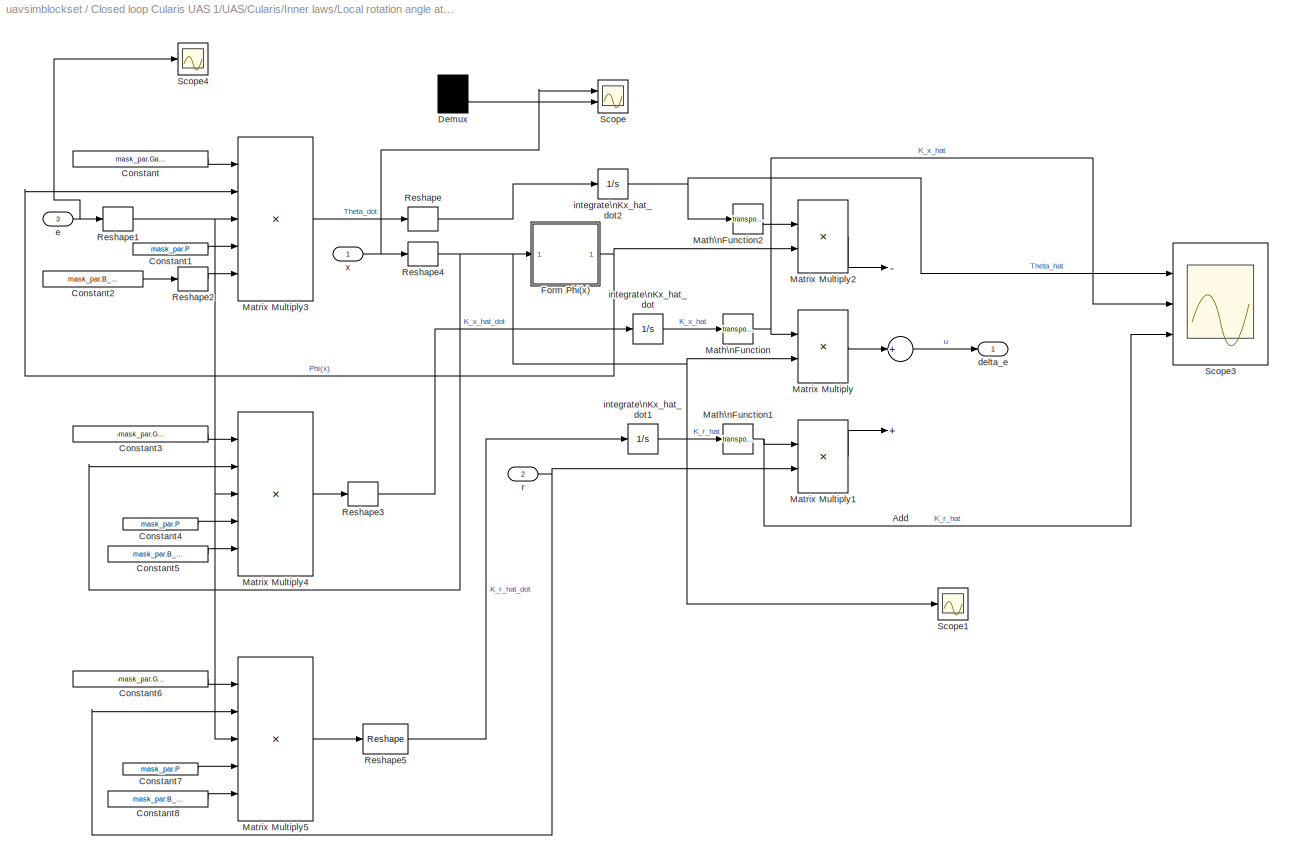
BLOCK [SubSystem] Closed loop Cularis UAS 1/UAS/Cularis/Inner laws/Local rotation angle attitude \ncontrol, load factor control/MRAC nz MIMO/Hier wird's adaptativ - oiiii!
  Ports = [3, 1]
  RequestExecContextInheritance = off
  SID = 6484
  Variant = off
BLOCK [Sum] Closed loop Cularis UAS 1/UAS/Cularis/Inner laws/Local rotation angle attitude \ncontrol, load factor control/MRAC nz MIMO/Hier wird's adaptativ - oiiii!/Add
  InputSameDT = off
  Inputs = -++
  OutDataTypeStr = Inherit: Inherit via internal rule
  Ports = [3, 1]
  SID = 6489
  SaturateOnIntegerOverflow = off
BLOCK [Constant] Closed loop Cularis UAS 1/UAS/Cularis/Inner laws/Local rotation angle attitude \ncontrol, load factor control/MRAC nz MIMO/Hier wird's adaptativ - oiiii!/Constant
  SID = 6491
  Value = mask_par.Gamma_theta
BLOCK [Constant] Closed loop Cularis UAS 1/UAS/Cularis/Inner laws/Local rotation angle attitude \ncontrol, load factor control/MRAC nz MIMO/Hier wird's adaptativ - oiiii!/Constant1
  SID = 6492
  Value = mask_par.P
BLOCK [Constant] Closed loop Cularis UAS 1/UAS/Cularis/Inner laws/Local rotation angle attitude \ncontrol, load factor control/MRAC nz MIMO/Hier wird's adaptativ - oiiii!/Constant2
  SID = 6493
  Value = mask_par.B_mrac
BLOCK [Constant] Closed loop Cularis UAS 1/UAS/Cularis/Inner laws/Local rotation angle attitude \ncontrol, load factor control/MRAC nz MIMO/Hier wird's adaptativ - oiiii!/Constant3
  SID = 6494
  Value = -mask_par.Gamma_x
BLOCK [Constant] Closed loop Cularis UAS 1/UAS/Cularis/Inner laws/Local rotation angle attitude \ncontrol, load factor control/MRAC nz MIMO/Hier wird's adaptativ - oiiii!/Constant4
  SID = 6495
  Value = mask_par.P
BLOCK [Constant] Closed loop Cularis UAS 1/UAS/Cularis/Inner laws/Local rotation angle attitude \ncontrol, load factor control/MRAC nz MIMO/Hier wird's adaptativ - oiiii!/Constant5
  SID = 6496
  Value = mask_par.B_mrac
BLOCK [Constant] Closed loop Cularis UAS 1/UAS/Cularis/Inner laws/Local rotation angle attitude \ncontrol, load factor control/MRAC nz MIMO/Hier wird's adaptativ - oiiii!/Constant6
  SID = 6497
  Value = -mask_par.Gamma_r
BLOCK [Constant] Closed loop Cularis UAS 1/UAS/Cularis/Inner laws/Local rotation angle attitude \ncontrol, load factor control/MRAC nz MIMO/Hier wird's adaptativ - oiiii!/Constant7
  SID = 6498
  Value = mask_par.P
BLOCK [Constant] Closed loop Cularis UAS 1/UAS/Cularis/Inner laws/Local rotation angle attitude \ncontrol, load factor control/MRAC nz MIMO/Hier wird's adaptativ - oiiii!/Constant8
  SID = 6499
  Value = mask_par.B_mrac
BLOCK [Demux] Closed loop Cularis UAS 1/UAS/Cularis/Inner laws/Local rotation angle attitude \ncontrol, load factor control/MRAC nz MIMO/Hier wird's adaptativ - oiiii!/Demux
  DisplayOption = bar
  Outputs = 2
  Ports = [1, 2]
  SID = 6565
BLOCK [SubSystem] Closed loop Cularis UAS 1/UAS/Cularis/Inner laws/Local rotation angle attitude \ncontrol, load factor control/MRAC nz MIMO/Hier wird's adaptativ - oiiii!/Form Phi(x)
  Ports = [1, 1]
  RequestExecContextInheritance = off
  SID = 6503
  Variant = off
BLOCK [Constant] Closed loop Cularis UAS 1/UAS/Cularis/Inner laws/Local rotation angle attitude \ncontrol, load factor control/MRAC nz MIMO/Hier wird's adaptativ - oiiii!/Form Phi(x)/Constant
  SID = 6505
BLOCK [Demux] Closed loop Cularis UAS 1/UAS/Cularis/Inner laws/Local rotation angle attitude \ncontrol, load factor control/MRAC nz MIMO/Hier wird's adaptativ - oiiii!/Form Phi(x)/Demux3
  DisplayOption = bar
  Outputs = 2
  Ports = [1, 2]
  SID = 6507
BLOCK [Mux] Closed loop Cularis UAS 1/UAS/Cularis/Inner laws/Local rotation angle attitude \ncontrol, load factor control/MRAC nz MIMO/Hier wird's adaptativ - oiiii!/Form Phi(x)/Mux2
  DisplayOption = bar
  Inputs = 1
  Ports = [1, 1]
  SID = 6508
BLOCK [Outport] Closed loop Cularis UAS 1/UAS/Cularis/Inner laws/Local rotation angle attitude \ncontrol, load factor control/MRAC nz MIMO/Hier wird's adaptativ - oiiii!/Form Phi(x)/Phi(x)
  IconDisplay = Port number
  SID = 6510
BLOCK [Reshape] Closed loop Cularis UAS 1/UAS/Cularis/Inner laws/Local rotation angle attitude \ncontrol, load factor control/MRAC nz MIMO/Hier wird's adaptativ - oiiii!/Form Phi(x)/Reshape
  OutputDimensionality = Column vector (2-D)
  Ports = [1, 1]
  SID = 6509
BLOCK [Inport] Closed loop Cularis UAS 1/UAS/Cularis/Inner laws/Local rotation angle attitude \ncontrol, load factor control/MRAC nz MIMO/Hier wird's adaptativ - oiiii!/Form Phi(x)/x
  IconDisplay = Port number
  SID = 6504
BLOCK [Math] Closed loop Cularis UAS 1/UAS/Cularis/Inner laws/Local rotation angle attitude \ncontrol, load factor control/MRAC nz MIMO/Hier wird's adaptativ - oiiii!/Math\nFunction
  Operator = transpose
  Ports = [1, 1]
  SID = 6512
BLOCK [Math] Closed loop Cularis UAS 1/UAS/Cularis/Inner laws/Local rotation angle attitude \ncontrol, load factor control/MRAC nz MIMO/Hier wird's adaptativ - oiiii!/Math\nFunction1
  Operator = transpose
  Ports = [1, 1]
  SID = 6513
BLOCK [Math] Closed loop Cularis UAS 1/UAS/Cularis/Inner laws/Local rotation angle attitude \ncontrol, load factor control/MRAC nz MIMO/Hier wird's adaptativ - oiiii!/Math\nFunction2
  Operator = transpose
  Ports = [1, 1]
  SID = 6514
BLOCK [Product] Closed loop Cularis UAS 1/UAS/Cularis/Inner laws/Local rotation angle attitude \ncontrol, load factor control/MRAC nz MIMO/Hier wird's adaptativ - oiiii!/Matrix Multiply
  InputSameDT = off
  Multiplication = Matrix(*)
  OutDataTypeStr = Inherit: Inherit via internal rule
  Ports = [2, 1]
  RndMeth = Floor
  SID = 6515
  SaturateOnIntegerOverflow = off
BLOCK [Product] Closed loop Cularis UAS 1/UAS/Cularis/Inner laws/Local rotation angle attitude \ncontrol, load factor control/MRAC nz MIMO/Hier wird's adaptativ - oiiii!/Matrix Multiply1
  InputSameDT = off
  Multiplication = Matrix(*)
  OutDataTypeStr = Inherit: Inherit via internal rule
  Ports = [2, 1]
  RndMeth = Floor
  SID = 6516
  SaturateOnIntegerOverflow = off
BLOCK [Product] Closed loop Cularis UAS 1/UAS/Cularis/Inner laws/Local rotation angle attitude \ncontrol, load factor control/MRAC nz MIMO/Hier wird's adaptativ - oiiii!/Matrix Multiply2
  InputSameDT = off
  Multiplication = Matrix(*)
  OutDataTypeStr = Inherit: Inherit via internal rule
  Ports = [2, 1]
  RndMeth = Floor
  SID = 6517
  SaturateOnIntegerOverflow = off
BLOCK [Product] Closed loop Cularis UAS 1/UAS/Cularis/Inner laws/Local rotation angle attitude \ncontrol, load factor control/MRAC nz MIMO/Hier wird's adaptativ - oiiii!/Matrix Multiply3
  InputSameDT = off
  Inputs = 5
  Multiplication = Matrix(*)
  OutDataTypeStr = Inherit: Inherit via internal rule
  Ports = [5, 1]
  RndMeth = Floor
  SID = 6518
  SaturateOnIntegerOverflow = off
BLOCK [Product] Closed loop Cularis UAS 1/UAS/Cularis/Inner laws/Local rotation angle attitude \ncontrol, load factor control/MRAC nz MIMO/Hier wird's adaptativ - oiiii!/Matrix Multiply4
  InputSameDT = off
  Inputs = 5
  Multiplication = Matrix(*)
  OutDataTypeStr = Inherit: Inherit via internal rule
  Ports = [5, 1]
  RndMeth = Floor
  SID = 6519
  SaturateOnIntegerOverflow = off
BLOCK [Product] Closed loop Cularis UAS 1/UAS/Cularis/Inner laws/Local rotation angle attitude \ncontrol, load factor control/MRAC nz MIMO/Hier wird's adaptativ - oiiii!/Matrix Multiply5
  InputSameDT = off
  Inputs = 5
  Multiplication = Matrix(*)
  OutDataTypeStr = Inherit: Inherit via internal rule
  Ports = [5, 1]
  RndMeth = Floor
  SID = 6520
  SaturateOnIntegerOverflow = off
BLOCK [Reshape] Closed loop Cularis UAS 1/UAS/Cularis/Inner laws/Local rotation angle attitude \ncontrol, load factor control/MRAC nz MIMO/Hier wird's adaptativ - oiiii!/Reshape
  OutputDimensionality = Column vector (2-D)
  Ports = [1, 1]
  SID = 6522
BLOCK [Reshape] Closed loop Cularis UAS 1/UAS/Cularis/Inner laws/Local rotation angle attitude \ncontrol, load factor control/MRAC nz MIMO/Hier wird's adaptativ - oiiii!/Reshape1
  OutputDimensionality = Row vector (2-D)
  Ports = [1, 1]
  SID = 6523
BLOCK [Reshape] Closed loop Cularis UAS 1/UAS/Cularis/Inner laws/Local rotation angle attitude \ncontrol, load factor control/MRAC nz MIMO/Hier wird's adaptativ - oiiii!/Reshape2
  OutputDimensionality = Column vector (2-D)
  Ports = [1, 1]
  SID = 6524
BLOCK [Reshape] Closed loop Cularis UAS 1/UAS/Cularis/Inner laws/Local rotation angle attitude \ncontrol, load factor control/MRAC nz MIMO/Hier wird's adaptativ - oiiii!/Reshape3
  OutputDimensionality = Column vector (2-D)
  Ports = [1, 1]
  SID = 6525
BLOCK [Reshape] Closed loop Cularis UAS 1/UAS/Cularis/Inner laws/Local rotation angle attitude \ncontrol, load factor control/MRAC nz MIMO/Hier wird's adaptativ - oiiii!/Reshape4
  OutputDimensionality = Column vector (2-D)
  Ports = [1, 1]
  SID = 6526
BLOCK [Reshape] Closed loop Cularis UAS 1/UAS/Cularis/Inner laws/Local rotation angle attitude \ncontrol, load factor control/MRAC nz MIMO/Hier wird's adaptativ - oiiii!/Reshape5
  OutputDimensionality = Column vector (2-D)
  Ports = [1, 1]
  SID = 6527
BLOCK [Scope] Closed loop Cularis UAS 1/UAS/Cularis/Inner laws/Local rotation angle attitude \ncontrol, load factor control/MRAC nz MIMO/Hier wird's adaptativ - oiiii!/Scope
  NumInputPorts = 2
  Ports = [2]
  SID = 6564
  ScopeSpecificationString = Simulink.scopes.TimeScopeBlockCfg('CurrentConfiguration', extmgr.ConfigurationSet(extmgr.Configuration('Core','General UI',true),extmgr.Configuration('Core','Source UI',true),extmgr.Configuration('Sources','WiredSimulink',true,'DataLoggingVariableName','ScopeData3'),extmgr.Configuration('Visuals','Time Domain',true,'SerializedDisplays',{struct('MinYLimReal','-0.29532','MaxYLimReal','0.90548','YLab...<+2082ch>
BLOCK [Scope] Closed loop Cularis UAS 1/UAS/Cularis/Inner laws/Local rotation angle attitude \ncontrol, load factor control/MRAC nz MIMO/Hier wird's adaptativ - oiiii!/Scope1
  NumInputPorts = 1
  Ports = [1]
  SID = 6528
  ScopeSpecificationString = Simulink.scopes.TimeScopeBlockCfg('CurrentConfiguration', extmgr.ConfigurationSet(extmgr.Configuration('Core','General UI',true),extmgr.Configuration('Core','Source UI',true),extmgr.Configuration('Sources','WiredSimulink',true,'DataLoggingVariableName','ScopeData2'),extmgr.Configuration('Visuals','Time Domain',true,'SerializedDisplays',{struct('MinYLimReal','-68536534.12196','MaxYLimReal','7615170...<+1478ch>
BLOCK [Scope] Closed loop Cularis UAS 1/UAS/Cularis/Inner laws/Local rotation angle attitude \ncontrol, load factor control/MRAC nz MIMO/Hier wird's adaptativ - oiiii!/Scope3
  NumInputPorts = 3
  Ports = [3]
  SID = 6529
  ScopeSpecificationString = Simulink.scopes.TimeScopeBlockCfg('CurrentConfiguration', extmgr.ConfigurationSet(extmgr.Configuration('Core','General UI',true),extmgr.Configuration('Core','Source UI',true),extmgr.Configuration('Sources','WiredSimulink',true,'DataLoggingVariableName','ScopeData1'),extmgr.Configuration('Visuals','Time Domain',true,'SerializedDisplays',{struct('MinYLimReal','0.01247','MaxYLimReal','0.04053','YLabe...<+2788ch>
BLOCK [Scope] Closed loop Cularis UAS 1/UAS/Cularis/Inner laws/Local rotation angle attitude \ncontrol, load factor control/MRAC nz MIMO/Hier wird's adaptativ - oiiii!/Scope4
  NumInputPorts = 1
  Ports = [1]
  SID = 6530
  ScopeSpecificationString = Simulink.scopes.TimeScopeBlockCfg('CurrentConfiguration', extmgr.ConfigurationSet(extmgr.Configuration('Core','General UI',true),extmgr.Configuration('Core','Source UI',true),extmgr.Configuration('Sources','WiredSimulink',true,'DataLoggingVariableName','ScopeData2'),extmgr.Configuration('Visuals','Time Domain',true,'SerializedDisplays',{struct('MinYLimReal','-0.60742','MaxYLimReal','0.97561','YLab...<+1443ch>
BLOCK [Outport] Closed loop Cularis UAS 1/UAS/Cularis/Inner laws/Local rotation angle attitude \ncontrol, load factor control/MRAC nz MIMO/Hier wird's adaptativ - oiiii!/delta_e
  IconDisplay = Port number
  SID = 6535
BLOCK [Inport] Closed loop Cularis UAS 1/UAS/Cularis/Inner laws/Local rotation angle attitude \ncontrol, load factor control/MRAC nz MIMO/Hier wird's adaptativ - oiiii!/e
  IconDisplay = Port number
  Port = 3
  SID = 6487
BLOCK [Integrator] Closed loop Cularis UAS 1/UAS/Cularis/Inner laws/Local rotation angle attitude \ncontrol, load factor control/MRAC nz MIMO/Hier wird's adaptativ - oiiii!/integrate\nKx_hat_dot
  InitialCondition = uavsim.mrac.nz.K_x_0
  Ports = [1, 1]
  SID = 6532
BLOCK [Integrator] Closed loop Cularis UAS 1/UAS/Cularis/Inner laws/Local rotation angle attitude \ncontrol, load factor control/MRAC nz MIMO/Hier wird's adaptativ - oiiii!/integrate\nKx_hat_dot1
  InitialCondition = uavsim.mrac.nz.K_r_0
  Ports = [1, 1]
  SID = 6533
BLOCK [Integrator] Closed loop Cularis UAS 1/UAS/Cularis/Inner laws/Local rotation angle attitude \ncontrol, load factor control/MRAC nz MIMO/Hier wird's adaptativ - oiiii!/integrate\nKx_hat_dot2
  InitialCondition = uavsim.mrac.nz.theta0
  Ports = [1, 1]
  SID = 6534
BLOCK [Inport] Closed loop Cularis UAS 1/UAS/Cularis/Inner laws/Local rotation angle attitude \ncontrol, load factor control/MRAC nz MIMO/Hier wird's adaptativ - oiiii!/r
  IconDisplay = Port number
  Port = 2
  SID = 6486
BLOCK [Inport] Closed loop Cularis UAS 1/UAS/Cularis/Inner laws/Local rotation angle attitude \ncontrol, load factor control/MRAC nz MIMO/Hier wird's adaptativ - oiiii!/x
  IconDisplay = Port number
  SID = 6485
BLOCK [Math] Closed loop Cularis UAS 1/UAS/Cularis/Inner laws/Local rotation angle attitude \ncontrol, load factor control/MRAC nz MIMO/Math\nFunction
  Operator = transpose
  Ports = [1, 1]
  SID = 6563
BLOCK [Product] Closed loop Cularis UAS 1/UAS/Cularis/Inner laws/Local rotation angle attitude \ncontrol, load factor control/MRAC nz MIMO/Matrix Multiply
  InputSameDT = off
  Multiplication = Matrix(*)
  OutDataTypeStr = Inherit: Inherit via internal rule
  Ports = [2, 1]
  RndMeth = Floor
  SID = 6562
  SaturateOnIntegerOverflow = off
BLOCK [Mux] Closed loop Cularis UAS 1/UAS/Cularis/Inner laws/Local rotation angle attitude \ncontrol, load factor control/MRAC nz MIMO/Mux
  DisplayOption = bar
  Inputs = 3
  Ports = [3, 1]
  SID = 6536
BLOCK [Mux] Closed loop Cularis UAS 1/UAS/Cularis/Inner laws/Local rotation angle attitude \ncontrol, load factor control/MRAC nz MIMO/Mux1
  DisplayOption = bar
  Inputs = 2
  Ports = [2, 1]
  SID = 6537
BLOCK [Reference] Closed loop Cularis UAS 1/UAS/Cularis/Inner laws/Local rotation angle attitude \ncontrol, load factor control/MRAC nz MIMO/Radians\nto Degrees  REF=simulink_extras/Transformations/Radians\nto Degrees
  Ports = [1, 1]
  SID = 6539
  SourceBlock = simulink_extras/Transformations/Radians\nto Degrees
  SourceType = RadiansToDegrees
BLOCK [SubSystem] Closed loop Cularis UAS 1/UAS/Cularis/Inner laws/Local rotation angle attitude \ncontrol, load factor control/MRAC nz MIMO/Reference\nModel
  Ports = [1, 1]
  RequestExecContextInheritance = off
  SID = 6541
  Variant = off
BLOCK [Demux] Closed loop Cularis UAS 1/UAS/Cularis/Inner laws/Local rotation angle attitude \ncontrol, load factor control/MRAC nz MIMO/Reference\nModel/Demux
  DisplayOption = bar
  Outputs = 2
  Ports = [1, 2]
  SID = 6543
BLOCK [Mux] Closed loop Cularis UAS 1/UAS/Cularis/Inner laws/Local rotation angle attitude \ncontrol, load factor control/MRAC nz MIMO/Reference\nModel/Mux
  DisplayOption = bar
  Inputs = 2
  Ports = [2, 1]
  SID = 6544
BLOCK [Scope] Closed loop Cularis UAS 1/UAS/Cularis/Inner laws/Local rotation angle attitude \ncontrol, load factor control/MRAC nz MIMO/Reference\nModel/Scope
  NumInputPorts = 1
  Ports = [1]
  SID = 6545
  ScopeSpecificationString = Simulink.scopes.TimeScopeBlockCfg('CurrentConfiguration', extmgr.ConfigurationSet(extmgr.Configuration('Core','General UI',true),extmgr.Configuration('Core','Source UI',true),extmgr.Configuration('Sources','WiredSimulink',true,'DataLoggingVariableName','ScopeData3'),extmgr.Configuration('Visuals','Time Domain',true,'SerializedDisplays',{struct('MinYLimReal','-0.28798','MaxYLimReal','0.14835','YLab...<+1418ch>
BLOCK [StateSpace] Closed loop Cularis UAS 1/UAS/Cularis/Inner laws/Local rotation angle attitude \ncontrol, load factor control/MRAC nz MIMO/Reference\nModel/State-Space
  A = mask_par.ssref.a
  B = mask_par.ssref.b
  C = mask_par.ssref.c
  D = mask_par.ssref.d
  Ports = [1, 1]
  SID = 6546
  X0 = [0; 0]
BLOCK [Inport] Closed loop Cularis UAS 1/UAS/Cularis/Inner laws/Local rotation angle attitude \ncontrol, load factor control/MRAC nz MIMO/Reference\nModel/n_z_c
  IconDisplay = Port number
  SID = 6542
BLOCK [Outport] Closed loop Cularis UAS 1/UAS/Cularis/Inner laws/Local rotation angle attitude \ncontrol, load factor control/MRAC nz MIMO/Reference\nModel/x_ref
  IconDisplay = Port number
  SID = 6547
BLOCK [Scope] Closed loop Cularis UAS 1/UAS/Cularis/Inner laws/Local rotation angle attitude \ncontrol, load factor control/MRAC nz MIMO/Scope
  NumInputPorts = 1
  Ports = [1]
  SID = 6555
  ScopeSpecificationString = Simulink.scopes.TimeScopeBlockCfg('CurrentConfiguration', extmgr.ConfigurationSet(extmgr.Configuration('Core','General UI',true),extmgr.Configuration('Core','Source UI',true),extmgr.Configuration('Sources','WiredSimulink',true,'DataLoggingVariableName','ScopeData1'),extmgr.Configuration('Visuals','Time Domain',true,'SerializedDisplays',{struct('MinYLimReal','-0.18185','MaxYLimReal','0.27831','YLab...<+1441ch>
BLOCK [Scope] Closed loop Cularis UAS 1/UAS/Cularis/Inner laws/Local rotation angle attitude \ncontrol, load factor control/MRAC nz MIMO/Scope1
  NumInputPorts = 1
  Ports = [1]
  SID = 6561
  ScopeSpecificationString = Simulink.scopes.TimeScopeBlockCfg('CurrentConfiguration', extmgr.ConfigurationSet(extmgr.Configuration('Core','General UI',true),extmgr.Configuration('Core','Source UI',true),extmgr.Configuration('Sources','WiredSimulink',true,'DataLoggingVariableName','ScopeData2'),extmgr.Configuration('Visuals','Time Domain',true,'SerializedDisplays',{struct('MinYLimReal','-0.0813','MaxYLimReal','0.03637','YLabe...<+1455ch>
BLOCK [Sin] Closed loop Cularis UAS 1/UAS/Cularis/Inner laws/Local rotation angle attitude \ncontrol, load factor control/MRAC nz MIMO/Sine Wave
  Amplitude = 0.1
  Frequency = fflib_Hz2radps(0.1)
  Ports = [0, 1]
  SID = 6548
  SampleTime = 0
BLOCK [Step] Closed loop Cularis UAS 1/UAS/Cularis/Inner laws/Local rotation angle attitude \ncontrol, load factor control/MRAC nz MIMO/Step
  After = 0.2
  SID = 6549
  SampleTime = 0
  Time = 10
BLOCK [Step] Closed loop Cularis UAS 1/UAS/Cularis/Inner laws/Local rotation angle attitude \ncontrol, load factor control/MRAC nz MIMO/Step1
  After = 0.1
  SID = 6550
  SampleTime = 0
  Time = 50
BLOCK [Step] Closed loop Cularis UAS 1/UAS/Cularis/Inner laws/Local rotation angle attitude \ncontrol, load factor control/MRAC nz MIMO/Step2
  After = deg2rad(-20)
  SID = 6551
  SampleTime = 0
  Time = 70
BLOCK [Sum] Closed loop Cularis UAS 1/UAS/Cularis/Inner laws/Local rotation angle attitude \ncontrol, load factor control/MRAC nz MIMO/Sum
  IconShape = round
  InputSameDT = off
  Inputs = |+-
  OutDataTypeStr = Inherit: Inherit via internal rule
  Ports = [2, 1]
  SID = 6552
  SaturateOnIntegerOverflow = off
BLOCK [Gain] Closed loop Cularis UAS 1/UAS/Cularis/Inner laws/Local rotation angle attitude \ncontrol, load factor control/MRAC nz MIMO/accelerations\nto\nload factors
  Gain = 1/9.81
  OutDataTypeStr = Inherit: Inherit via internal rule
  ParamDataTypeStr = Inherit: Inherit via internal rule
  SID = 6557
  SaturateOnIntegerOverflow = off
BLOCK [Outport] Closed loop Cularis UAS 1/UAS/Cularis/Inner laws/Local rotation angle attitude \ncontrol, load factor control/MRAC nz MIMO/de
  IconDisplay = Port number
  SID = 6553
BLOCK [Scope] Closed loop Cularis UAS 1/UAS/Cularis/Inner laws/Local rotation angle attitude \ncontrol, load factor control/MRAC nz MIMO/n_z control error\nand elevator\ndeflection
  NumInputPorts = 4
  Ports = [4]
  SID = 6538
  ScopeSpecificationString = Simulink.scopes.TimeScopeBlockCfg('CurrentConfiguration', extmgr.ConfigurationSet(extmgr.Configuration('Core','General UI',true),extmgr.Configuration('Core','Source UI',true),extmgr.Configuration('Sources','WiredSimulink',true,'DataLoggingVariableName','ScopeData10'),extmgr.Configuration('Visuals','Time Domain',true,'SerializedDisplays',{struct('MinYLimReal','-0.21067','MaxYLimReal','0.89607','YLa...<+3472ch>
BLOCK [Gain] Closed loop Cularis UAS 1/UAS/Cularis/Inner laws/Local rotation angle attitude \ncontrol, load factor control/MRAC nz MIMO/normalize
  Gain = 1/45
  OutDataTypeStr = Inherit: Inherit via internal rule
  ParamDataTypeStr = Inherit: Inherit via internal rule
  SID = 6558
  SaturateOnIntegerOverflow = off
BLOCK [SubSystem] Closed loop Cularis UAS 1/UAS/Cularis/Inner laws/Local rotation angle attitude \ncontrol, load factor control/MRAC pitch
  Commented = on
  Ports = [1, 1]
  RequestExecContextInheritance = off
  SID = 6156
  Variant = off
BLOCK [SubSystem] Closed loop Cularis UAS 1/UAS/Cularis/Inner laws/Local rotation angle attitude \ncontrol, load factor control/MRAC pitch MIMO
  Commented = on
  Ports = [1, 1]
  RequestExecContextInheritance = off
  SID = 6276
  Variant = off
BLOCK [Sum] Closed loop Cularis UAS 1/UAS/Cularis/Inner laws/Local rotation angle attitude \ncontrol, load factor control/MRAC pitch MIMO/Add1
  InputSameDT = off
  Inputs = +++
  OutDataTypeStr = Inherit: Inherit via internal rule
  Ports = [3, 1]
  SID = 6279
  SaturateOnIntegerOverflow = off
BLOCK [Inport] Closed loop Cularis UAS 1/UAS/Cularis/Inner laws/Local rotation angle attitude \ncontrol, load factor control/MRAC pitch MIMO/AirframeBus
  IconDisplay = Port number
  OutDataTypeStr = Bus: Airframe
  SID = 6277
BLOCK [BusSelector] Closed loop Cularis UAS 1/UAS/Cularis/Inner laws/Local rotation angle attitude \ncontrol, load factor control/MRAC pitch MIMO/Bus\nSelector
  OutputSignals = Kinematics.Attitude.euler_rad,Kinematics.RotationalVelocity.omega_b_rps,Aero.alpha_rad
  Ports = [1, 3]
  SID = 6280
BLOCK [Constant] Closed loop Cularis UAS 1/UAS/Cularis/Inner laws/Local rotation angle attitude \ncontrol, load factor control/MRAC pitch MIMO/Constant
  SID = 6389
  Value = uavsim.formation(1).phithetapsi0(2)
BLOCK [Demux] Closed loop Cularis UAS 1/UAS/Cularis/Inner laws/Local rotation angle attitude \ncontrol, load factor control/MRAC pitch MIMO/Demux
  DisplayOption = bar
  Outputs = 3
  Ports = [1, 3]
  SID = 6282
BLOCK [Demux] Closed loop Cularis UAS 1/UAS/Cularis/Inner laws/Local rotation angle attitude \ncontrol, load factor control/MRAC pitch MIMO/Demux1
  DisplayOption = bar
  Outputs = 3
  Ports = [1, 3]
  SID = 6309
BLOCK [Demux] Closed loop Cularis UAS 1/UAS/Cularis/Inner laws/Local rotation angle attitude \ncontrol, load factor control/MRAC pitch MIMO/Demux2
  DisplayOption = bar
  Outputs = 2
  Ports = [1, 2]
  SID = 6310
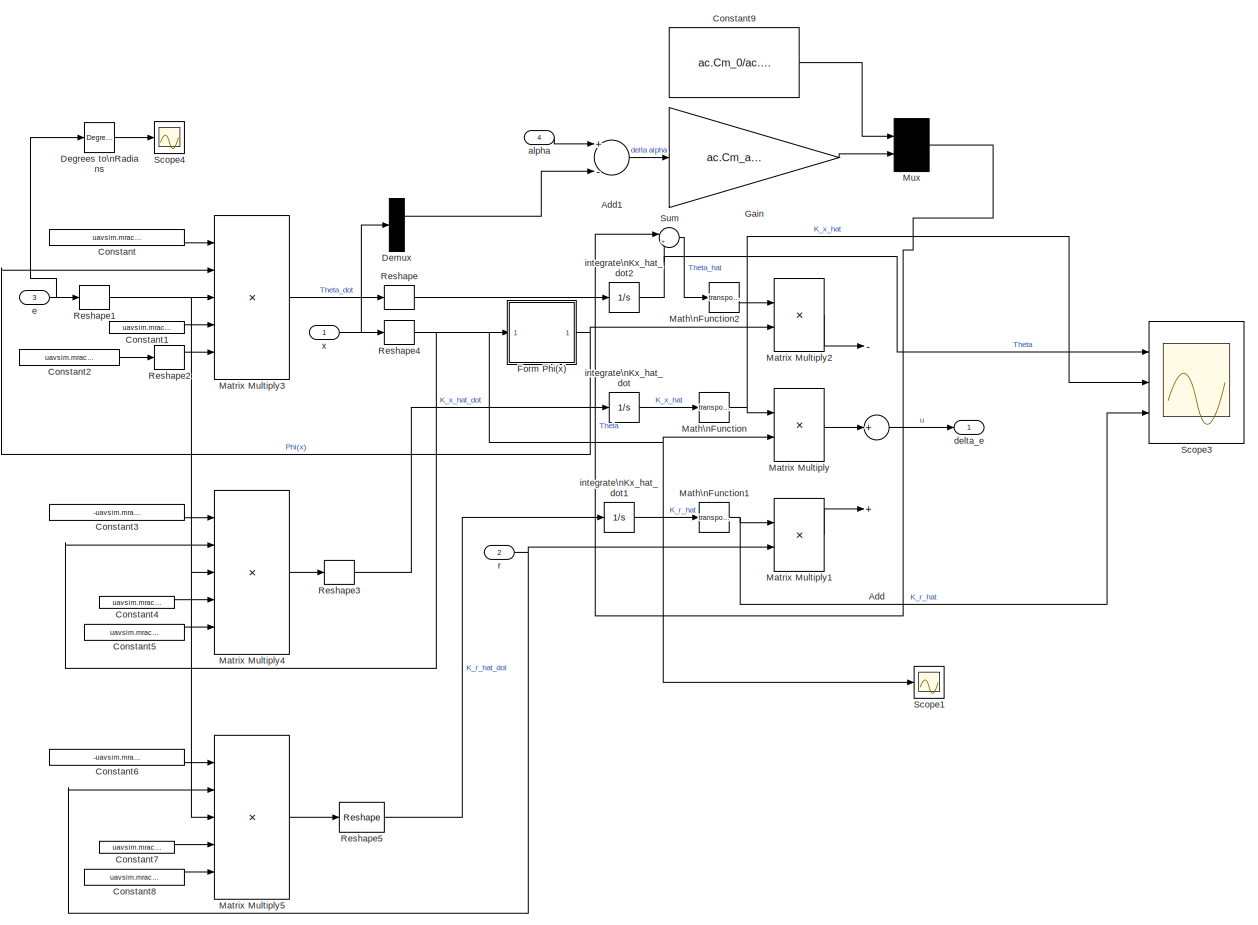
[diagram: Closed loop Cularis UAS 1/UAS/Cularis/Inner laws/Local rotation angle attitude \ncontrol, load factor control/MRAC pitch MIMO/Hier wird's adaptativ - part 1/1, most of the canvas]
BLOCK [SubSystem] Closed loop Cularis UAS 1/UAS/Cularis/Inner laws/Local rotation angle attitude \ncontrol, load factor control/MRAC pitch MIMO/Hier wird's adaptativ
  Ports = [4, 1]
  RequestExecContextInheritance = off
  SID = 6334
  Variant = off
BLOCK [Sum] Closed loop Cularis UAS 1/UAS/Cularis/Inner laws/Local rotation angle attitude \ncontrol, load factor control/MRAC pitch MIMO/Hier wird's adaptativ/Add
  InputSameDT = off
  Inputs = -++
  OutDataTypeStr = Inherit: Inherit via internal rule
  Ports = [3, 1]
  SID = 6333
  SaturateOnIntegerOverflow = off
BLOCK [Sum] Closed loop Cularis UAS 1/UAS/Cularis/Inner laws/Local rotation angle attitude \ncontrol, load factor control/MRAC pitch MIMO/Hier wird's adaptativ/Add1
  InputSameDT = off
  Inputs = +-
  OutDataTypeStr = Inherit: Inherit via internal rule
  Ports = [2, 1]
  SID = 6378
  SaturateOnIntegerOverflow = off
BLOCK [Constant] Closed loop Cularis UAS 1/UAS/Cularis/Inner laws/Local rotation angle attitude \ncontrol, load factor control/MRAC pitch MIMO/Hier wird's adaptativ/Constant
  SID = 6351
  Value = uavsim.mrac.Gamma_theta
BLOCK [Constant] Closed loop Cularis UAS 1/UAS/Cularis/Inner laws/Local rotation angle attitude \ncontrol, load factor control/MRAC pitch MIMO/Hier wird's adaptativ/Constant1
  SID = 6352
  Value = uavsim.mrac.P
BLOCK [Constant] Closed loop Cularis UAS 1/UAS/Cularis/Inner laws/Local rotation angle attitude \ncontrol, load factor control/MRAC pitch MIMO/Hier wird's adaptativ/Constant2
  SID = 6353
  Value = uavsim.mrac.B_mrac
BLOCK [Constant] Closed loop Cularis UAS 1/UAS/Cularis/Inner laws/Local rotation angle attitude \ncontrol, load factor control/MRAC pitch MIMO/Hier wird's adaptativ/Constant3
  SID = 6354
  Value = -uavsim.mrac.Gamma_x
BLOCK [Constant] Closed loop Cularis UAS 1/UAS/Cularis/Inner laws/Local rotation angle attitude \ncontrol, load factor control/MRAC pitch MIMO/Hier wird's adaptativ/Constant4
  SID = 6355
  Value = uavsim.mrac.P
BLOCK [Constant] Closed loop Cularis UAS 1/UAS/Cularis/Inner laws/Local rotation angle attitude \ncontrol, load factor control/MRAC pitch MIMO/Hier wird's adaptativ/Constant5
  SID = 6356
  Value = uavsim.mrac.B_mrac
BLOCK [Constant] Closed loop Cularis UAS 1/UAS/Cularis/Inner laws/Local rotation angle attitude \ncontrol, load factor control/MRAC pitch MIMO/Hier wird's adaptativ/Constant6
  SID = 6359
  Value = -uavsim.mrac.Gamma_r
BLOCK [Constant] Closed loop Cularis UAS 1/UAS/Cularis/Inner laws/Local rotation angle attitude \ncontrol, load factor control/MRAC pitch MIMO/Hier wird's adaptativ/Constant7
  SID = 6360
  Value = uavsim.mrac.P
BLOCK [Constant] Closed loop Cularis UAS 1/UAS/Cularis/Inner laws/Local rotation angle attitude \ncontrol, load factor control/MRAC pitch MIMO/Hier wird's adaptativ/Constant8
  SID = 6361
  Value = uavsim.mrac.B_mrac
BLOCK [Constant] Closed loop Cularis UAS 1/UAS/Cularis/Inner laws/Local rotation angle attitude \ncontrol, load factor control/MRAC pitch MIMO/Hier wird's adaptativ/Constant9
  SID = 6382
  Value = ac.Cm_0/ac.Cm_de
BLOCK [Reference] Closed loop Cularis UAS 1/UAS/Cularis/Inner laws/Local rotation angle attitude \ncontrol, load factor control/MRAC pitch MIMO/Hier wird's adaptativ/Degrees to\nRadians  REF=simulink_extras/Transformations/Degrees to\nRadians
  Ports = [1, 1]
  SID = 6396
  SourceBlock = simulink_extras/Transformations/Degrees to\nRadians
  SourceType = DegreesToRadians
BLOCK [Demux] Closed loop Cularis UAS 1/UAS/Cularis/Inner laws/Local rotation angle attitude \ncontrol, load factor control/MRAC pitch MIMO/Hier wird's adaptativ/Demux
  DisplayOption = bar
  Outputs = 2
  Ports = [1, 2]
  SID = 6379
BLOCK [SubSystem] Closed loop Cularis UAS 1/UAS/Cularis/Inner laws/Local rotation angle attitude \ncontrol, load factor control/MRAC pitch MIMO/Hier wird's adaptativ/Form Phi(x)
  Ports = [1, 1]
  RequestExecContextInheritance = off
  SID = 6326
  Variant = off
BLOCK [Constant] Closed loop Cularis UAS 1/UAS/Cularis/Inner laws/Local rotation angle attitude \ncontrol, load factor control/MRAC pitch MIMO/Hier wird's adaptativ/Form Phi(x)/Constant
  SID = 6324
BLOCK [Constant] Closed loop Cularis UAS 1/UAS/Cularis/Inner laws/Local rotation angle attitude \ncontrol, load factor control/MRAC pitch MIMO/Hier wird's adaptativ/Form Phi(x)/Constant1
  SID = 6325
BLOCK [Demux] Closed loop Cularis UAS 1/UAS/Cularis/Inner laws/Local rotation angle attitude \ncontrol, load factor control/MRAC pitch MIMO/Hier wird's adaptativ/Form Phi(x)/Demux3
  DisplayOption = bar
  Outputs = 2
  Ports = [1, 2]
  SID = 6323
BLOCK [Mux] Closed loop Cularis UAS 1/UAS/Cularis/Inner laws/Local rotation angle attitude \ncontrol, load factor control/MRAC pitch MIMO/Hier wird's adaptativ/Form Phi(x)/Mux2
  DisplayOption = bar
  Inputs = 2
  Ports = [2, 1]
  SID = 6322
BLOCK [Outport] Closed loop Cularis UAS 1/UAS/Cularis/Inner laws/Local rotation angle attitude \ncontrol, load factor control/MRAC pitch MIMO/Hier wird's adaptativ/Form Phi(x)/Phi(x)
  IconDisplay = Port number
  SID = 6328
BLOCK [Reshape] Closed loop Cularis UAS 1/UAS/Cularis/Inner laws/Local rotation angle attitude \ncontrol, load factor control/MRAC pitch MIMO/Hier wird's adaptativ/Form Phi(x)/Reshape
  OutputDimensionality = Column vector (2-D)
  Ports = [1, 1]
  SID = 6363
BLOCK [Inport] Closed loop Cularis UAS 1/UAS/Cularis/Inner laws/Local rotation angle attitude \ncontrol, load factor control/MRAC pitch MIMO/Hier wird's adaptativ/Form Phi(x)/x
  IconDisplay = Port number
  SID = 6327
BLOCK [Gain] Closed loop Cularis UAS 1/UAS/Cularis/Inner laws/Local rotation angle attitude \ncontrol, load factor control/MRAC pitch MIMO/Hier wird's adaptativ/Gain
  Gain = ac.Cm_alpha/ac.Cm_de
  OutDataTypeStr = Inherit: Inherit via internal rule
  ParamDataTypeStr = Inherit: Inherit via internal rule
  SID = 6384
  SaturateOnIntegerOverflow = off
BLOCK [Math] Closed loop Cularis UAS 1/UAS/Cularis/Inner laws/Local rotation angle attitude \ncontrol, load factor control/MRAC pitch MIMO/Hier wird's adaptativ/Math\nFunction
  Operator = transpose
  Ports = [1, 1]
  SID = 6316
BLOCK [Math] Closed loop Cularis UAS 1/UAS/Cularis/Inner laws/Local rotation angle attitude \ncontrol, load factor control/MRAC pitch MIMO/Hier wird's adaptativ/Math\nFunction1
  Operator = transpose
  Ports = [1, 1]
  SID = 6319
BLOCK [Math] Closed loop Cularis UAS 1/UAS/Cularis/Inner laws/Local rotation angle attitude \ncontrol, load factor control/MRAC pitch MIMO/Hier wird's adaptativ/Math\nFunction2
  Operator = transpose
  Ports = [1, 1]
  SID = 6330
BLOCK [Product] Closed loop Cularis UAS 1/UAS/Cularis/Inner laws/Local rotation angle attitude \ncontrol, load factor control/MRAC pitch MIMO/Hier wird's adaptativ/Matrix Multiply
  InputSameDT = off
  Multiplication = Matrix(*)
  OutDataTypeStr = Inherit: Inherit via internal rule
  Ports = [2, 1]
  RndMeth = Floor
  SID = 6315
  SaturateOnIntegerOverflow = off
BLOCK [Product] Closed loop Cularis UAS 1/UAS/Cularis/Inner laws/Local rotation angle attitude \ncontrol, load factor control/MRAC pitch MIMO/Hier wird's adaptativ/Matrix Multiply1
  InputSameDT = off
  Multiplication = Matrix(*)
  OutDataTypeStr = Inherit: Inherit via internal rule
  Ports = [2, 1]
  RndMeth = Floor
  SID = 6320
  SaturateOnIntegerOverflow = off
BLOCK [Product] Closed loop Cularis UAS 1/UAS/Cularis/Inner laws/Local rotation angle attitude \ncontrol, load factor control/MRAC pitch MIMO/Hier wird's adaptativ/Matrix Multiply2
  InputSameDT = off
  Multiplication = Matrix(*)
  OutDataTypeStr = Inherit: Inherit via internal rule
  Ports = [2, 1]
  RndMeth = Floor
  SID = 6331
  SaturateOnIntegerOverflow = off
BLOCK [Product] Closed loop Cularis UAS 1/UAS/Cularis/Inner laws/Local rotation angle attitude \ncontrol, load factor control/MRAC pitch MIMO/Hier wird's adaptativ/Matrix Multiply3
  InputSameDT = off
  Inputs = 5
  Multiplication = Matrix(*)
  OutDataTypeStr = Inherit: Inherit via internal rule
  Ports = [5, 1]
  RndMeth = Floor
  SID = 6348
  SaturateOnIntegerOverflow = off
BLOCK [Product] Closed loop Cularis UAS 1/UAS/Cularis/Inner laws/Local rotation angle attitude \ncontrol, load factor control/MRAC pitch MIMO/Hier wird's adaptativ/Matrix Multiply4
  InputSameDT = off
  Inputs = 5
  Multiplication = Matrix(*)
  OutDataTypeStr = Inherit: Inherit via internal rule
  Ports = [5, 1]
  RndMeth = Floor
  SID = 6358
  SaturateOnIntegerOverflow = off
BLOCK [Product] Closed loop Cularis UAS 1/UAS/Cularis/Inner laws/Local rotation angle attitude \ncontrol, load factor control/MRAC pitch MIMO/Hier wird's adaptativ/Matrix Multiply5
  InputSameDT = off
  Inputs = 5
  Multiplication = Matrix(*)
  OutDataTypeStr = Inherit: Inherit via internal rule
  Ports = [5, 1]
  RndMeth = Floor
  SID = 6362
  SaturateOnIntegerOverflow = off
BLOCK [Mux] Closed loop Cularis UAS 1/UAS/Cularis/Inner laws/Local rotation angle attitude \ncontrol, load factor control/MRAC pitch MIMO/Hier wird's adaptativ/Mux
  DisplayOption = bar
  Inputs = 2
  Ports = [2, 1]
  SID = 6381
BLOCK [Reshape] Closed loop Cularis UAS 1/UAS/Cularis/Inner laws/Local rotation angle attitude \ncontrol, load factor control/MRAC pitch MIMO/Hier wird's adaptativ/Reshape
  OutputDimensionality = Column vector (2-D)
  Ports = [1, 1]
  SID = 6364
BLOCK [Reshape] Closed loop Cularis UAS 1/UAS/Cularis/Inner laws/Local rotation angle attitude \ncontrol, load factor control/MRAC pitch MIMO/Hier wird's adaptativ/Reshape1
  OutputDimensionality = Row vector (2-D)
  Ports = [1, 1]
  SID = 6365
BLOCK [Reshape] Closed loop Cularis UAS 1/UAS/Cularis/Inner laws/Local rotation angle attitude \ncontrol, load factor control/MRAC pitch MIMO/Hier wird's adaptativ/Reshape2
  OutputDimensionality = Column vector (2-D)
  Ports = [1, 1]
  SID = 6366
BLOCK [Reshape] Closed loop Cularis UAS 1/UAS/Cularis/Inner laws/Local rotation angle attitude \ncontrol, load factor control/MRAC pitch MIMO/Hier wird's adaptativ/Reshape3
  OutputDimensionality = Column vector (2-D)
  Ports = [1, 1]
  SID = 6372
BLOCK [Reshape] Closed loop Cularis UAS 1/UAS/Cularis/Inner laws/Local rotation angle attitude \ncontrol, load factor control/MRAC pitch MIMO/Hier wird's adaptativ/Reshape4
  OutputDimensionality = Column vector (2-D)
  Ports = [1, 1]
  SID = 6373
BLOCK [Reshape] Closed loop Cularis UAS 1/UAS/Cularis/Inner laws/Local rotation angle attitude \ncontrol, load factor control/MRAC pitch MIMO/Hier wird's adaptativ/Reshape5
  OutputDimensionality = Column vector (2-D)
  Ports = [1, 1]
  SID = 6374
BLOCK [Scope] Closed loop Cularis UAS 1/UAS/Cularis/Inner laws/Local rotation angle attitude \ncontrol, load factor control/MRAC pitch MIMO/Hier wird's adaptativ/Scope1
  NumInputPorts = 1
  Ports = [1]
  SID = 6376
  ScopeSpecificationString = Simulink.scopes.TimeScopeBlockCfg('CurrentConfiguration', extmgr.ConfigurationSet(extmgr.Configuration('Core','General UI',true),extmgr.Configuration('Core','Source UI',true),extmgr.Configuration('Sources','WiredSimulink',true,'DataLoggingVariableName','ScopeData2'),extmgr.Configuration('Visuals','Time Domain',true,'SerializedDisplays',{struct('MinYLimReal','-68536534.12196','MaxYLimReal','7615170...<+1478ch>
BLOCK [Scope] Closed loop Cularis UAS 1/UAS/Cularis/Inner laws/Local rotation angle attitude \ncontrol, load factor control/MRAC pitch MIMO/Hier wird's adaptativ/Scope3
  NumInputPorts = 3
  Ports = [3]
  SID = 6392
  ScopeSpecificationString = Simulink.scopes.TimeScopeBlockCfg('CurrentConfiguration', extmgr.ConfigurationSet(extmgr.Configuration('Core','General UI',true),extmgr.Configuration('Core','Source UI',true),extmgr.Configuration('Sources','WiredSimulink',true,'DataLoggingVariableName','ScopeData1'),extmgr.Configuration('Visuals','Time Domain',true,'SerializedDisplays',{struct('MinYLimReal','-0.00211','MaxYLimReal','0.01895','YLab...<+2795ch>
BLOCK [Scope] Closed loop Cularis UAS 1/UAS/Cularis/Inner laws/Local rotation angle attitude \ncontrol, load factor control/MRAC pitch MIMO/Hier wird's adaptativ/Scope4
  NumInputPorts = 1
  Ports = [1]
  SID = 6395
  ScopeSpecificationString = Simulink.scopes.TimeScopeBlockCfg('CurrentConfiguration', extmgr.ConfigurationSet(extmgr.Configuration('Core','General UI',true),extmgr.Configuration('Core','Source UI',true),extmgr.Configuration('Sources','WiredSimulink',true,'DataLoggingVariableName','ScopeData2'),extmgr.Configuration('Visuals','Time Domain',true,'SerializedDisplays',{struct('MinYLimReal','-0.00678','MaxYLimReal','0.00933','YLab...<+1477ch>
BLOCK [Sum] Closed loop Cularis UAS 1/UAS/Cularis/Inner laws/Local rotation angle attitude \ncontrol, load factor control/MRAC pitch MIMO/Hier wird's adaptativ/Sum
  IconShape = round
  InputSameDT = off
  Inputs = |++
  OutDataTypeStr = Inherit: Inherit via internal rule
  Ports = [2, 1]
  SID = 6391
  SaturateOnIntegerOverflow = off
BLOCK [Inport] Closed loop Cularis UAS 1/UAS/Cularis/Inner laws/Local rotation angle attitude \ncontrol, load factor control/MRAC pitch MIMO/Hier wird's adaptativ/alpha
  IconDisplay = Port number
  Port = 4
  SID = 6377
BLOCK [Outport] Closed loop Cularis UAS 1/UAS/Cularis/Inner laws/Local rotation angle attitude \ncontrol, load factor control/MRAC pitch MIMO/Hier wird's adaptativ/delta_e
  IconDisplay = Port number
  SID = 6341
BLOCK [Inport] Closed loop Cularis UAS 1/UAS/Cularis/Inner laws/Local rotation angle attitude \ncontrol, load factor control/MRAC pitch MIMO/Hier wird's adaptativ/e
  IconDisplay = Port number
  Port = 3
  SID = 6349
BLOCK [Integrator] Closed loop Cularis UAS 1/UAS/Cularis/Inner laws/Local rotation angle attitude \ncontrol, load factor control/MRAC pitch MIMO/Hier wird's adaptativ/integrate\nKx_hat_dot
  InitialCondition = uavsim.mrac.K_x_0
  Ports = [1, 1]
  SID = 6314
BLOCK [Integrator] Closed loop Cularis UAS 1/UAS/Cularis/Inner laws/Local rotation angle attitude \ncontrol, load factor control/MRAC pitch MIMO/Hier wird's adaptativ/integrate\nKx_hat_dot1
  InitialCondition = uavsim.mrac.K_r_0
  Ports = [1, 1]
  SID = 6321
BLOCK [Integrator] Closed loop Cularis UAS 1/UAS/Cularis/Inner laws/Local rotation angle attitude \ncontrol, load factor control/MRAC pitch MIMO/Hier wird's adaptativ/integrate\nKx_hat_dot2
  Ports = [1, 1]
  SID = 6329
BLOCK [Inport] Closed loop Cularis UAS 1/UAS/Cularis/Inner laws/Local rotation angle attitude \ncontrol, load factor control/MRAC pitch MIMO/Hier wird's adaptativ/r
  IconDisplay = Port number
  Port = 2
  SID = 6342
BLOCK [Inport] Closed loop Cularis UAS 1/UAS/Cularis/Inner laws/Local rotation angle attitude \ncontrol, load factor control/MRAC pitch MIMO/Hier wird's adaptativ/x
  IconDisplay = Port number
  SID = 6338
BLOCK [Mux] Closed loop Cularis UAS 1/UAS/Cularis/Inner laws/Local rotation angle attitude \ncontrol, load factor control/MRAC pitch MIMO/Mux
  DisplayOption = bar
  Inputs = 3
  Ports = [3, 1]
  SID = 6286
BLOCK [Mux] Closed loop Cularis UAS 1/UAS/Cularis/Inner laws/Local rotation angle attitude \ncontrol, load factor control/MRAC pitch MIMO/Mux1
  DisplayOption = bar
  Inputs = 2
  Ports = [2, 1]
  SID = 6312
BLOCK [Scope] Closed loop Cularis UAS 1/UAS/Cularis/Inner laws/Local rotation angle attitude \ncontrol, load factor control/MRAC pitch MIMO/Pitch control error\nand elevator\ndeflection
  NumInputPorts = 4
  Ports = [4]
  SID = 6287
  ScopeSpecificationString = Simulink.scopes.TimeScopeBlockCfg('CurrentConfiguration', extmgr.ConfigurationSet(extmgr.Configuration('Core','General UI',true),extmgr.Configuration('Core','Source UI',true),extmgr.Configuration('Sources','WiredSimulink',true,'DataLoggingVariableName','ScopeData10'),extmgr.Configuration('Visuals','Time Domain',true,'SerializedDisplays',{struct('MinYLimReal','-12.5','MaxYLimReal','12.5','YLabelRea...<+3507ch>
BLOCK [Reference] Closed loop Cularis UAS 1/UAS/Cularis/Inner laws/Local rotation angle attitude \ncontrol, load factor control/MRAC pitch MIMO/Radians\nto Degrees  REF=simulink_extras/Transformations/Radians\nto Degrees
  Ports = [1, 1]
  SID = 6291
  SourceBlock = simulink_extras/Transformations/Radians\nto Degrees
  SourceType = RadiansToDegrees
BLOCK [Reference] Closed loop Cularis UAS 1/UAS/Cularis/Inner laws/Local rotation angle attitude \ncontrol, load factor control/MRAC pitch MIMO/Radians\nto Degrees1  REF=simulink_extras/Transformations/Radians\nto Degrees
  Ports = [1, 1]
  SID = 6292
  SourceBlock = simulink_extras/Transformations/Radians\nto Degrees
  SourceType = RadiansToDegrees
BLOCK [Reference] Closed loop Cularis UAS 1/UAS/Cularis/Inner laws/Local rotation angle attitude \ncontrol, load factor control/MRAC pitch MIMO/Radians\nto Degrees2  REF=simulink_extras/Transformations/Radians\nto Degrees
  Ports = [1, 1]
  SID = 6567
  SourceBlock = simulink_extras/Transformations/Radians\nto Degrees
  SourceType = RadiansToDegrees
BLOCK [SubSystem] Closed loop Cularis UAS 1/UAS/Cularis/Inner laws/Local rotation angle attitude \ncontrol, load factor control/MRAC pitch MIMO/Reference\nModel
  Ports = [1, 1]
  RequestExecContextInheritance = off
  SID = 6293
  Variant = off
BLOCK [Demux] Closed loop Cularis UAS 1/UAS/Cularis/Inner laws/Local rotation angle attitude \ncontrol, load factor control/MRAC pitch MIMO/Reference\nModel/Demux
  DisplayOption = bar
  Outputs = 2
  Ports = [1, 2]
  SID = 6386
BLOCK [Mux] Closed loop Cularis UAS 1/UAS/Cularis/Inner laws/Local rotation angle attitude \ncontrol, load factor control/MRAC pitch MIMO/Reference\nModel/Mux
  DisplayOption = bar
  Inputs = 2
  Ports = [2, 1]
  SID = 6385
BLOCK [Scope] Closed loop Cularis UAS 1/UAS/Cularis/Inner laws/Local rotation angle attitude \ncontrol, load factor control/MRAC pitch MIMO/Reference\nModel/Scope
  NumInputPorts = 1
  Ports = [1]
  SID = 6387
  ScopeSpecificationString = Simulink.scopes.TimeScopeBlockCfg('CurrentConfiguration', extmgr.ConfigurationSet(extmgr.Configuration('Core','General UI',true),extmgr.Configuration('Core','Source UI',true),extmgr.Configuration('Sources','WiredSimulink',true,'DataLoggingVariableName','ScopeData3'),extmgr.Configuration('Visuals','Time Domain',true,'SerializedDisplays',{struct('MinYLimReal','-0.045137','MaxYLimReal','-0.045096','Y...<+1411ch>
BLOCK [StateSpace] Closed loop Cularis UAS 1/UAS/Cularis/Inner laws/Local rotation angle attitude \ncontrol, load factor control/MRAC pitch MIMO/Reference\nModel/State-Space
  A = uavsim.mrac.ssref.a
  B = uavsim.mrac.ssref.b
  C = uavsim.mrac.ssref.c
  D = uavsim.mrac.ssref.d
  Ports = [1, 1]
  SID = 6311
  X0 = [-0.0451; 0]
BLOCK [Inport] Closed loop Cularis UAS 1/UAS/Cularis/Inner laws/Local rotation angle attitude \ncontrol, load factor control/MRAC pitch MIMO/Reference\nModel/theta_c
  IconDisplay = Port number
  SID = 6294
BLOCK [Outport] Closed loop Cularis UAS 1/UAS/Cularis/Inner laws/Local rotation angle attitude \ncontrol, load factor control/MRAC pitch MIMO/Reference\nModel/x_ref
  IconDisplay = Port number
  SID = 6299
BLOCK [Sin] Closed loop Cularis UAS 1/UAS/Cularis/Inner laws/Local rotation angle attitude \ncontrol, load factor control/MRAC pitch MIMO/Sine Wave
  Amplitude = deg2rad(10)
  Frequency = fflib_Hz2radps(0.1)
  Ports = [0, 1]
  SID = 6394
  SampleTime = 0
BLOCK [Step] Closed loop Cularis UAS 1/UAS/Cularis/Inner laws/Local rotation angle attitude \ncontrol, load factor control/MRAC pitch MIMO/Step
  After = deg2rad(1)
  SID = 6300
  SampleTime = 0
  Time = 10
BLOCK [Step] Closed loop Cularis UAS 1/UAS/Cularis/Inner laws/Local rotation angle attitude \ncontrol, load factor control/MRAC pitch MIMO/Step1
  After = deg2rad(5)
  SID = 6301
  SampleTime = 0
  Time = 50
BLOCK [Step] Closed loop Cularis UAS 1/UAS/Cularis/Inner laws/Local rotation angle attitude \ncontrol, load factor control/MRAC pitch MIMO/Step2
  After = deg2rad(-20)
  SID = 6302
  SampleTime = 0
  Time = 70
BLOCK [Sum] Closed loop Cularis UAS 1/UAS/Cularis/Inner laws/Local rotation angle attitude \ncontrol, load factor control/MRAC pitch MIMO/Sum
  IconShape = round
  InputSameDT = off
  Inputs = |+-
  OutDataTypeStr = Inherit: Inherit via internal rule
  Ports = [2, 1]
  SID = 6313
  SaturateOnIntegerOverflow = off
BLOCK [Outport] Closed loop Cularis UAS 1/UAS/Cularis/Inner laws/Local rotation angle attitude \ncontrol, load factor control/MRAC pitch MIMO/de
  IconDisplay = Port number
  SID = 6308
BLOCK [Gain] Closed loop Cularis UAS 1/UAS/Cularis/Inner laws/Local rotation angle attitude \ncontrol, load factor control/MRAC pitch MIMO/normalize
  Gain = 1/45
  OutDataTypeStr = Inherit: Inherit via internal rule
  ParamDataTypeStr = Inherit: Inherit via internal rule
  SID = 6566
  SaturateOnIntegerOverflow = off
BLOCK [Sum] Closed loop Cularis UAS 1/UAS/Cularis/Inner laws/Local rotation angle attitude \ncontrol, load factor control/MRAC pitch/Add
  InputSameDT = off
  Inputs = +-
  OutDataTypeStr = Inherit: Inherit via internal rule
  Ports = [2, 1]
  SID = 6198
  SaturateOnIntegerOverflow = off
BLOCK [Sum] Closed loop Cularis UAS 1/UAS/Cularis/Inner laws/Local rotation angle attitude \ncontrol, load factor control/MRAC pitch/Add1
  InputSameDT = off
  Inputs = +++
  OutDataTypeStr = Inherit: Inherit via internal rule
  Ports = [3, 1]
  SID = 6274
  SaturateOnIntegerOverflow = off
BLOCK [Inport] Closed loop Cularis UAS 1/UAS/Cularis/Inner laws/Local rotation angle attitude \ncontrol, load factor control/MRAC pitch/AirframeBus
  IconDisplay = Port number
  OutDataTypeStr = Bus: Airframe
  SID = 6157
BLOCK [BusSelector] Closed loop Cularis UAS 1/UAS/Cularis/Inner laws/Local rotation angle attitude \ncontrol, load factor control/MRAC pitch/Bus\nSelector
  OutputSignals = Aero.Va_mps,Kinematics.Attitude.euler_rad
  Ports = [1, 2]
  SID = 6159
BLOCK [SubSystem] Closed loop Cularis UAS 1/UAS/Cularis/Inner laws/Local rotation angle attitude \ncontrol, load factor control/MRAC pitch/Compute\ncontrol input
  ErrorFcn = Stateflow.Translate.translate
  PermitHierarchicalResolution = ExplicitOnly
  Ports = [8, 1]
  RequestExecContextInheritance = off
  SFBlockType = MATLAB Function
  SID = 6203
  TreatAsAtomicUnit = on
  Variant = off
BLOCK [Demux] Closed loop Cularis UAS 1/UAS/Cularis/Inner laws/Local rotation angle attitude \ncontrol, load factor control/MRAC pitch/Compute\ncontrol input/ Demux 
  Outputs = 1
  Ports = [1, 1]
  SID = 6203::45
BLOCK [S-Function] Closed loop Cularis UAS 1/UAS/Cularis/Inner laws/Local rotation angle attitude \ncontrol, load factor control/MRAC pitch/Compute\ncontrol input/ SFunction 
  EnableBusSupport = off
  FunctionName = sf_sfun
  PortCounts = [8 2]
  Ports = [8, 2]
  SFcnIsStateOwnerBlock = off
  SFunctionDeploymentMode = off
  SID = 6203::44
  Tag = Stateflow S-Function uavsimblockset 6
BLOCK [Terminator] Closed loop Cularis UAS 1/UAS/Cularis/Inner laws/Local rotation angle attitude \ncontrol, load factor control/MRAC pitch/Compute\ncontrol input/ Terminator 
  SID = 6203::46
BLOCK [Inport] Closed loop Cularis UAS 1/UAS/Cularis/Inner laws/Local rotation angle attitude \ncontrol, load factor control/MRAC pitch/Compute\ncontrol input/K1_hat
  IconDisplay = Port number
  SID = 6203::20
BLOCK [Inport] Closed loop Cularis UAS 1/UAS/Cularis/Inner laws/Local rotation angle attitude \ncontrol, load factor control/MRAC pitch/Compute\ncontrol input/K2
  IconDisplay = Port number
  Port = 2
  SID = 6203::21
BLOCK [Inport] Closed loop Cularis UAS 1/UAS/Cularis/Inner laws/Local rotation angle attitude \ncontrol, load factor control/MRAC pitch/Compute\ncontrol input/VcosPhi
  IconDisplay = Port number
  Port = 8
  SID = 6203::26
BLOCK [Inport] Closed loop Cularis UAS 1/UAS/Cularis/Inner laws/Local rotation angle attitude \ncontrol, load factor control/MRAC pitch/Compute\ncontrol input/a
  IconDisplay = Port number
  Port = 3
  SID = 6203::22
BLOCK [Outport] Closed loop Cularis UAS 1/UAS/Cularis/Inner laws/Local rotation angle attitude \ncontrol, load factor control/MRAC pitch/Compute\ncontrol input/delta_e
  IconDisplay = Port number
  SID = 6203::5
BLOCK [Inport] Closed loop Cularis UAS 1/UAS/Cularis/Inner laws/Local rotation angle attitude \ncontrol, load factor control/MRAC pitch/Compute\ncontrol input/lambda
  IconDisplay = Port number
  Port = 7
  SID = 6203::25
BLOCK [Inport] Closed loop Cularis UAS 1/UAS/Cularis/Inner laws/Local rotation angle attitude \ncontrol, load factor control/MRAC pitch/Compute\ncontrol input/theta
  IconDisplay = Port number
  Port = 6
  SID = 6203::28
BLOCK [Inport] Closed loop Cularis UAS 1/UAS/Cularis/Inner laws/Local rotation angle attitude \ncontrol, load factor control/MRAC pitch/Compute\ncontrol input/theta_c
  IconDisplay = Port number
  Port = 4
  SID = 6203::23
BLOCK [Inport] Closed loop Cularis UAS 1/UAS/Cularis/Inner laws/Local rotation angle attitude \ncontrol, load factor control/MRAC pitch/Compute\ncontrol input/theta_m
  IconDisplay = Port number
  Port = 5
  SID = 6203::24
BLOCK [Demux] Closed loop Cularis UAS 1/UAS/Cularis/Inner laws/Local rotation angle attitude \ncontrol, load factor control/MRAC pitch/Demux
  DisplayOption = bar
  Outputs = 3
  Ports = [1, 3]
  SID = 6161
BLOCK [Gain] Closed loop Cularis UAS 1/UAS/Cularis/Inner laws/Local rotation angle attitude \ncontrol, load factor control/MRAC pitch/Gain
  OutDataTypeStr = Inherit: Inherit via internal rule
  ParamDataTypeStr = Inherit: Inherit via internal rule
  SID = 6214
  SaturateOnIntegerOverflow = off
BLOCK [Integrator] Closed loop Cularis UAS 1/UAS/Cularis/Inner laws/Local rotation angle attitude \ncontrol, load factor control/MRAC pitch/Integrator
  Ports = [1, 1]
  SID = 6216
BLOCK [Constant] Closed loop Cularis UAS 1/UAS/Cularis/Inner laws/Local rotation angle attitude \ncontrol, load factor control/MRAC pitch/K2
  SID = 6165
  Value = -uavsim.cularis.Cm_de/(uavsim.cularis.c*uavsim.cularis.Cm_q)
BLOCK [Mux] Closed loop Cularis UAS 1/UAS/Cularis/Inner laws/Local rotation angle attitude \ncontrol, load factor control/MRAC pitch/Mux
  DisplayOption = bar
  Inputs = 3
  Ports = [3, 1]
  SID = 6166
BLOCK [Scope] Closed loop Cularis UAS 1/UAS/Cularis/Inner laws/Local rotation angle attitude \ncontrol, load factor control/MRAC pitch/Pitch control error\nand elevator\ndeflection
  NumInputPorts = 4
  Ports = [4]
  SID = 6174
  ScopeSpecificationString = Simulink.scopes.TimeScopeBlockCfg('CurrentConfiguration', extmgr.ConfigurationSet(extmgr.Configuration('Core','General UI',true),extmgr.Configuration('Core','Source UI',true),extmgr.Configuration('Sources','WiredSimulink',true,'DataLoggingVariableName','ScopeData10'),extmgr.Configuration('Visuals','Time Domain',true,'SerializedDisplays',{struct('MinYLimReal','-13.99183','MaxYLimReal','12.66576','Y...<+3482ch>
BLOCK [Product] Closed loop Cularis UAS 1/UAS/Cularis/Inner laws/Local rotation angle attitude \ncontrol, load factor control/MRAC pitch/Product
  InputSameDT = off
  OutDataTypeStr = Inherit: Inherit via internal rule
  Ports = [2, 1]
  RndMeth = Floor
  SID = 6200
  SaturateOnIntegerOverflow = off
BLOCK [Product] Closed loop Cularis UAS 1/UAS/Cularis/Inner laws/Local rotation angle attitude \ncontrol, load factor control/MRAC pitch/Product1
  InputSameDT = off
  OutDataTypeStr = Inherit: Inherit via internal rule
  Ports = [2, 1]
  RndMeth = Floor
  SID = 6201
  SaturateOnIntegerOverflow = off
BLOCK [Reference] Closed loop Cularis UAS 1/UAS/Cularis/Inner laws/Local rotation angle attitude \ncontrol, load factor control/MRAC pitch/Projection Operator  REF=Projection/Projection Operator
  EpsilonTheta = 0.01
  Ports = [2, 2]
  Pr0 = 0
  Prcenter = 0
  Prmax = 1
  SID = 6172
  SourceBlock = Projection/Projection Operator
BLOCK [Reference] Closed loop Cularis UAS 1/UAS/Cularis/Inner laws/Local rotation angle attitude \ncontrol, load factor control/MRAC pitch/Radians\nto Degrees  REF=simulink_extras/Transformations/Radians\nto Degrees
  Ports = [1, 1]
  SID = 6210
  SourceBlock = simulink_extras/Transformations/Radians\nto Degrees
  SourceType = RadiansToDegrees
BLOCK [Reference] Closed loop Cularis UAS 1/UAS/Cularis/Inner laws/Local rotation angle attitude \ncontrol, load factor control/MRAC pitch/Radians\nto Degrees1  REF=simulink_extras/Transformations/Radians\nto Degrees
  Ports = [1, 1]
  SID = 6211
  SourceBlock = simulink_extras/Transformations/Radians\nto Degrees
  SourceType = RadiansToDegrees
BLOCK [SubSystem] Closed loop Cularis UAS 1/UAS/Cularis/Inner laws/Local rotation angle attitude \ncontrol, load factor control/MRAC pitch/Reference\nModel
  Ports = [1, 1]
  RequestExecContextInheritance = off
  SID = 6195
  Variant = off
BLOCK [Sum] Closed loop Cularis UAS 1/UAS/Cularis/Inner laws/Local rotation angle attitude \ncontrol, load factor control/MRAC pitch/Reference\nModel/Add
  InputSameDT = off
  Inputs = +-
  OutDataTypeStr = Inherit: Inherit via internal rule
  Ports = [2, 1]
  SID = 6192
  SaturateOnIntegerOverflow = off
BLOCK [Integrator] Closed loop Cularis UAS 1/UAS/Cularis/Inner laws/Local rotation angle attitude \ncontrol, load factor control/MRAC pitch/Reference\nModel/Integrator
  Ports = [1, 1]
  SID = 6194
BLOCK [Product] Closed loop Cularis UAS 1/UAS/Cularis/Inner laws/Local rotation angle attitude \ncontrol, load factor control/MRAC pitch/Reference\nModel/Product
  InputSameDT = off
  OutDataTypeStr = Inherit: Inherit via internal rule
  Ports = [2, 1]
  RndMeth = Floor
  SID = 6193
  SaturateOnIntegerOverflow = off
BLOCK [Constant] Closed loop Cularis UAS 1/UAS/Cularis/Inner laws/Local rotation angle attitude \ncontrol, load factor control/MRAC pitch/Reference\nModel/a
  SID = 6187
  Value = uavsim.l1a.pitch.a
BLOCK [Inport] Closed loop Cularis UAS 1/UAS/Cularis/Inner laws/Local rotation angle attitude \ncontrol, load factor control/MRAC pitch/Reference\nModel/theta_c
  IconDisplay = Port number
  SID = 6196
BLOCK [Outport] Closed loop Cularis UAS 1/UAS/Cularis/Inner laws/Local rotation angle attitude \ncontrol, load factor control/MRAC pitch/Reference\nModel/theta_m
  IconDisplay = Port number
  SID = 6197
BLOCK [Sin] Closed loop Cularis UAS 1/UAS/Cularis/Inner laws/Local rotation angle attitude \ncontrol, load factor control/MRAC pitch/Sine Wave
  Amplitude = deg2rad(10)
  Frequency = fflib_Hz2radps(0.1)
  Ports = [0, 1]
  SID = 6397
  SampleTime = 0
BLOCK [Step] Closed loop Cularis UAS 1/UAS/Cularis/Inner laws/Local rotation angle attitude \ncontrol, load factor control/MRAC pitch/Step
  After = deg2rad(1)
  SID = 6183
  SampleTime = 0
  Time = 10
BLOCK [Step] Closed loop Cularis UAS 1/UAS/Cularis/Inner laws/Local rotation angle attitude \ncontrol, load factor control/MRAC pitch/Step1
  After = deg2rad(5)
  SID = 6273
  SampleTime = 0
  Time = 50
BLOCK [Step] Closed loop Cularis UAS 1/UAS/Cularis/Inner laws/Local rotation angle attitude \ncontrol, load factor control/MRAC pitch/Step2
  After = deg2rad(-20)
  SID = 6275
  SampleTime = 0
  Time = 70
BLOCK [Terminator] Closed loop Cularis UAS 1/UAS/Cularis/Inner laws/Local rotation angle attitude \ncontrol, load factor control/MRAC pitch/Terminator
  SID = 6202
BLOCK [Trigonometry] Closed loop Cularis UAS 1/UAS/Cularis/Inner laws/Local rotation angle attitude \ncontrol, load factor control/MRAC pitch/Trigonometric\nFunction
  Operator = cos
  Ports = [1, 1]
  SID = 6186
BLOCK [Constant] Closed loop Cularis UAS 1/UAS/Cularis/Inner laws/Local rotation angle attitude \ncontrol, load factor control/MRAC pitch/a
  SID = 6204
  Value = uavsim.l1a.pitch.a
BLOCK [Outport] Closed loop Cularis UAS 1/UAS/Cularis/Inner laws/Local rotation angle attitude \ncontrol, load factor control/MRAC pitch/de
  IconDisplay = Port number
  SID = 6190
BLOCK [Gain] Closed loop Cularis UAS 1/UAS/Cularis/Inner laws/Local rotation angle attitude \ncontrol, load factor control/MRAC pitch/gamma
  Gain = -1e-2
  OutDataTypeStr = Inherit: Inherit via internal rule
  ParamDataTypeStr = Inherit: Inherit via internal rule
  SID = 6215
  SaturateOnIntegerOverflow = off
BLOCK [Constant] Closed loop Cularis UAS 1/UAS/Cularis/Inner laws/Local rotation angle attitude \ncontrol, load factor control/MRAC pitch/lambda
  SID = 6205
  Value = uavsim.l1a.pitch.lambda
BLOCK [Mux] Closed loop Cularis UAS 1/UAS/Cularis/Inner laws/Local rotation angle attitude \ncontrol, load factor control/Mux
  DisplayOption = bar
  Inputs = 5
  Ports = [5, 1]
  SID = 5032
BLOCK [Mux] Closed loop Cularis UAS 1/UAS/Cularis/Inner laws/Local rotation angle attitude \ncontrol, load factor control/Mux1
  DisplayOption = bar
  Inputs = 2
  Ports = [2, 1]
  SID = 6134
BLOCK [SubSystem] Closed loop Cularis UAS 1/UAS/Cularis/Inner laws/Local rotation angle attitude \ncontrol, load factor control/PDSMC pitch
  Commented = on
  Ports = [3, 1]
  RequestExecContextInheritance = off
  SID = 6069
  Variant = off
BLOCK [SubSystem] Closed loop Cularis UAS 1/UAS/Cularis/Inner laws/Local rotation angle attitude \ncontrol, load factor control/PDSMC pitch/MATLAB Function
  ErrorFcn = Stateflow.Translate.translate
  PermitHierarchicalResolution = ExplicitOnly
  Ports = [3, 1]
  RequestExecContextInheritance = off
  SFBlockType = MATLAB Function
  SID = 6082
  TreatAsAtomicUnit = on
  Variant = off
BLOCK [Demux] Closed loop Cularis UAS 1/UAS/Cularis/Inner laws/Local rotation angle attitude \ncontrol, load factor control/PDSMC pitch/MATLAB Function/ Demux 
  Outputs = 1
  Ports = [1, 1]
  SID = 6082::37
BLOCK [S-Function] Closed loop Cularis UAS 1/UAS/Cularis/Inner laws/Local rotation angle attitude \ncontrol, load factor control/PDSMC pitch/MATLAB Function/ SFunction 
  EnableBusSupport = off
  FunctionName = sf_sfun
  PortCounts = [3 2]
  Ports = [3, 2]
  SFcnIsStateOwnerBlock = off
  SFunctionDeploymentMode = off
  SID = 6082::36
  Tag = Stateflow S-Function uavsimblockset 3
BLOCK [Terminator] Closed loop Cularis UAS 1/UAS/Cularis/Inner laws/Local rotation angle attitude \ncontrol, load factor control/PDSMC pitch/MATLAB Function/ Terminator 
  SID = 6082::38
BLOCK [Inport] Closed loop Cularis UAS 1/UAS/Cularis/Inner laws/Local rotation angle attitude \ncontrol, load factor control/PDSMC pitch/MATLAB Function/q
  IconDisplay = Port number
  SID = 6082::1
BLOCK [Inport] Closed loop Cularis UAS 1/UAS/Cularis/Inner laws/Local rotation angle attitude \ncontrol, load factor control/PDSMC pitch/MATLAB Function/theta
  IconDisplay = Port number
  Port = 2
  SID = 6082::19
BLOCK [Inport] Closed loop Cularis UAS 1/UAS/Cularis/Inner laws/Local rotation angle attitude \ncontrol, load factor control/PDSMC pitch/MATLAB Function/theta_c
  IconDisplay = Port number
  Port = 3
  SID = 6082::20
BLOCK [Outport] Closed loop Cularis UAS 1/UAS/Cularis/Inner laws/Local rotation angle attitude \ncontrol, load factor control/PDSMC pitch/MATLAB Function/u_k
  IconDisplay = Port number
  SID = 6082::5
BLOCK [Mux] Closed loop Cularis UAS 1/UAS/Cularis/Inner laws/Local rotation angle attitude \ncontrol, load factor control/PDSMC pitch/Mux
  DisplayOption = bar
  Inputs = 2
  Ports = [2, 1]
  SID = 6075
BLOCK [Scope] Closed loop Cularis UAS 1/UAS/Cularis/Inner laws/Local rotation angle attitude \ncontrol, load factor control/PDSMC pitch/Scope
  NumInputPorts = 1
  Ports = [1]
  SID = 6077
  ScopeSpecificationString = Simulink.scopes.TimeScopeBlockCfg('CurrentConfiguration', extmgr.ConfigurationSet(extmgr.Configuration('Core','General UI',true),extmgr.Configuration('Core','Source UI',true),extmgr.Configuration('Sources','WiredSimulink',true,'DataLoggingVariableName','ScopeData2'),extmgr.Configuration('Visuals','Time Domain',true,'SerializedDisplays',{struct('MinYLimReal','-0.0172','MaxYLimReal','0.24989','YLabe...<+1433ch>
BLOCK [Step] Closed loop Cularis UAS 1/UAS/Cularis/Inner laws/Local rotation angle attitude \ncontrol, load factor control/PDSMC pitch/Step
  After = deg2rad(10)
  SID = 6078
  SampleTime = 0
  Time = 10
BLOCK [Outport] Closed loop Cularis UAS 1/UAS/Cularis/Inner laws/Local rotation angle attitude \ncontrol, load factor control/PDSMC pitch/de
  IconDisplay = Port number
  SID = 6080
BLOCK [Inport] Closed loop Cularis UAS 1/UAS/Cularis/Inner laws/Local rotation angle attitude \ncontrol, load factor control/PDSMC pitch/q
  IconDisplay = Port number
  SID = 6081
BLOCK [Inport] Closed loop Cularis UAS 1/UAS/Cularis/Inner laws/Local rotation angle attitude \ncontrol, load factor control/PDSMC pitch/theta
  IconDisplay = Port number
  Port = 2
  SID = 6071
BLOCK [Inport] Closed loop Cularis UAS 1/UAS/Cularis/Inner laws/Local rotation angle attitude \ncontrol, load factor control/PDSMC pitch/theta_c
  IconDisplay = Port number
  Port = 3
  SID = 6072
BLOCK [Inport] Closed loop Cularis UAS 1/UAS/Cularis/Inner laws/Local rotation angle attitude \ncontrol, load factor control/nz_c
  IconDisplay = Port number
  Port = 3
  SID = 6903
BLOCK [Inport] Closed loop Cularis UAS 1/UAS/Cularis/Inner laws/Local rotation angle attitude \ncontrol, load factor control/q_c
  IconDisplay = Port number
  Port = 2
  SID = 4970
BLOCK [Inport] Closed loop Cularis UAS 1/UAS/Cularis/Inner laws/Local rotation angle attitude \ncontrol, load factor control/q_ge
  IconDisplay = Port number
  Port = 4
  SID = 7449
BLOCK [Outport] Closed loop Cularis UAS 1/UAS/Cularis/Inner laws/Local rotation angle attitude \ncontrol, load factor control/u
  IconDisplay = Port number
  SID = 5033
BLOCK [Mux] Closed loop Cularis UAS 1/UAS/Cularis/Inner laws/Mux
  DisplayOption = bar
  Inputs = 3
  Ports = [3, 1]
  SID = 5034
BLOCK [Mux] Closed loop Cularis UAS 1/UAS/Cularis/Inner laws/Mux1
  DisplayOption = bar
  Inputs = 5
  Ports = [5, 1]
  SID = 6141
BLOCK [Inport] Closed loop Cularis UAS 1/UAS/Cularis/Inner laws/Plant
  IconDisplay = Port number
  OutDataTypeStr = Bus: Airframe
  SID = 4960
BLOCK [Saturate] Closed loop Cularis UAS 1/UAS/Cularis/Inner laws/Saturation
  InputPortMap = u0
  LowerLimit = 0
  Ports = [1, 1]
  SID = 5035
  UpperLimit = 1
BLOCK [Scope] Closed loop Cularis UAS 1/UAS/Cularis/Inner laws/Scope
  NumInputPorts = 1
  Ports = [1]
  SID = 7426
  ScopeSpecificationString = Simulink.scopes.TimeScopeBlockCfg('CurrentConfiguration', extmgr.ConfigurationSet(extmgr.Configuration('Core','General UI',true),extmgr.Configuration('Core','Source UI',true),extmgr.Configuration('Sources','WiredSimulink',true,'DataLoggingVariableName','ScopeData3'),extmgr.Configuration('Visuals','Time Domain',true,'SerializedDisplays',{struct('MinYLimReal','-0.10285','MaxYLimReal','0.46281','YLab...<+1411ch>
BLOCK [Constant] Closed loop Cularis UAS 1/UAS/Cularis/Inner laws/Trim Inputs
  SID = 5036
  Value = [uavsim.formation(closedloopmask_ID).u_trim(1:4)]
BLOCK [Inport] Closed loop Cularis UAS 1/UAS/Cularis/Inner laws/delta_en
  IconDisplay = Port number
  Port = 3
  SID = 4962
BLOCK [Inport] Closed loop Cularis UAS 1/UAS/Cularis/Inner laws/nz_c
  IconDisplay = Port number
  Port = 4
  SID = 6902
BLOCK [Inport] Closed loop Cularis UAS 1/UAS/Cularis/Inner laws/q_c
  IconDisplay = Port number
  Port = 2
  SID = 4961
BLOCK [Inport] Closed loop Cularis UAS 1/UAS/Cularis/Inner laws/q_ge
  IconDisplay = Port number
  Port = 5
  SID = 7448
BLOCK [Outport] Closed loop Cularis UAS 1/UAS/Cularis/Inner laws/u
  IconDisplay = Port number
  OutDataTypeStr = Bus: CMD
  SID = 5038
BLOCK [Math] Closed loop Cularis UAS 1/UAS/Cularis/Math\nFunction
  Operator = transpose
  Ports = [1, 1]
  SID = 7460
BLOCK [Product] Closed loop Cularis UAS 1/UAS/Cularis/Matrix Multiply
  InputSameDT = off
  Multiplication = Matrix(*)
  OutDataTypeStr = Inherit: Inherit via internal rule
  Ports = [2, 1]
  RndMeth = Floor
  SID = 7461
  SaturateOnIntegerOverflow = off
BLOCK [Product] Closed loop Cularis UAS 1/UAS/Cularis/Matrix Multiply1
  InputSameDT = off
  Multiplication = Matrix(*)
  OutDataTypeStr = Inherit: Inherit via internal rule
  Ports = [2, 1]
  RndMeth = Floor
  SID = 7462
  SaturateOnIntegerOverflow = off
BLOCK [Mux] Closed loop Cularis UAS 1/UAS/Cularis/Mux1
  DisplayOption = bar
  Inputs = 3
  Ports = [3, 1]
  SID = 5092
BLOCK [Reference] Closed loop Cularis UAS 1/UAS/Cularis/Quaternion\nMultiplication  REF=aerolibutil/Quaternion\nMultiplication
  Ports = [2, 1]
  SID = 5229
  SourceBlock = aerolibutil/Quaternion\nMultiplication
  SourceType = Quaternion Multiplication
BLOCK [Reference] Closed loop Cularis UAS 1/UAS/Cularis/Quaternions to \nDirection Cosine Matrix  REF=aerolibtransform2/Quaternions to \nDirection Cosine Matrix
  Ports = [1, 1]
  SID = 7463
  SourceBlock = aerolibtransform2/Quaternions to \nDirection Cosine Matrix
  SourceType = Quaternion2DCM
BLOCK [Reference] Closed loop Cularis UAS 1/UAS/Cularis/Rotation Angles \nto Quaternions1  REF=aerolibtransform2/Rotation Angles to Quaternions
  AttributesFormatString = Rotation Order: %<rotationOrder>
  Ports = [1, 1]
  SID = 5094
  SourceBlock = aerolibtransform2/Rotation Angles to Quaternions
  SourceType = Ang2Quat
  rotationOrder = ZYX
BLOCK [Terminator] Closed loop Cularis UAS 1/UAS/Cularis/Terminator
  SID = 6913
BLOCK [SubSystem] Closed loop Cularis UAS 1/UAS/Cularis/Turn commanded\nload factors\ninto commanded \nattitude and thrust
  Ports = [3, 3]
  RequestExecContextInheritance = off
  SID = 6887
  Variant = off
BLOCK [Gain] Closed loop Cularis UAS 1/UAS/Cularis/Turn commanded\nload factors\ninto commanded \nattitude and thrust/Gain
  Gain = 2
  OutDataTypeStr = Inherit: Inherit via internal rule
  ParamDataTypeStr = Inherit: Inherit via internal rule
  SID = 6881
  SaturateOnIntegerOverflow = off
BLOCK [Gain] Closed loop Cularis UAS 1/UAS/Cularis/Turn commanded\nload factors\ninto commanded \nattitude and thrust/Gain1
  Gain = 2
  OutDataTypeStr = Inherit: Inherit via internal rule
  ParamDataTypeStr = Inherit: Inherit via internal rule
  SID = 6884
  SaturateOnIntegerOverflow = off
BLOCK [Gain] Closed loop Cularis UAS 1/UAS/Cularis/Turn commanded\nload factors\ninto commanded \nattitude and thrust/Gain2
  OutDataTypeStr = Inherit: Inherit via internal rule
  ParamDataTypeStr = Inherit: Inherit via internal rule
  SID = 6886
  SaturateOnIntegerOverflow = off
BLOCK [Outport] Closed loop Cularis UAS 1/UAS/Cularis/Turn commanded\nload factors\ninto commanded \nattitude and thrust/delta_en
  IconDisplay = Port number
  Port = 3
  SID = 6893
BLOCK [Inport] Closed loop Cularis UAS 1/UAS/Cularis/Turn commanded\nload factors\ninto commanded \nattitude and thrust/nx_c
  IconDisplay = Port number
  SID = 6888
BLOCK [Inport] Closed loop Cularis UAS 1/UAS/Cularis/Turn commanded\nload factors\ninto commanded \nattitude and thrust/ny_c
  IconDisplay = Port number
  Port = 2
  SID = 6889
BLOCK [Inport] Closed loop Cularis UAS 1/UAS/Cularis/Turn commanded\nload factors\ninto commanded \nattitude and thrust/nz_c
  IconDisplay = Port number
  Port = 3
  SID = 6890
BLOCK [Outport] Closed loop Cularis UAS 1/UAS/Cularis/Turn commanded\nload factors\ninto commanded \nattitude and thrust/phi_c
  IconDisplay = Port number
  Port = 2
  SID = 6892
BLOCK [Outport] Closed loop Cularis UAS 1/UAS/Cularis/Turn commanded\nload factors\ninto commanded \nattitude and thrust/theta_c
  IconDisplay = Port number
  SID = 6891
BLOCK [Reference] Closed loop Cularis UAS 1/UAS/Cularis/UAV  REF=uavsimBlockset_Cularis_withUAV3D/UAV A
  Ports = [1, 2]
  SID = 5129
  SourceBlock = uavsimBlockset_Cularis_withUAV3D/UAV A
  aircraftmask_ID = closedloopmask_ID
  aircraftmask_displayUAV3D = on
  aircraftmask_displayVortices = on
  aircraftmask_navigationLaw = -1
  aircraftmask_originNED_ECEF_rrm = uavsim.originNED_ECEF_radradm
  aircraftmask_p0_NED_m = uavsim.formation(closedloopmask_ID).p0_NED'
  aircraftmask_phithetapsi0 = uavsim.formation(closedloopmask_ID).phithetapsi0
  aircraftmask_phithetapsi_trim = uavsim.formation(closedloopmask_ID).phithetapsi0
  aircraftmask_pqr0 = uavsim.formation(closedloopmask_ID).omega0
  aircraftmask_uvw0 = uavsim.formation(closedloopmask_ID).uvw0
  aircraftmask_wakevortexenabled = on
  leaderID = 0
  uavsim = uavsim
BLOCK [ZeroOrderHold] Closed loop Cularis UAS 1/UAS/Cularis/Zero-Order\nHold
  SID = 5152
  SampleTime = uavsim.ap.tsampling_attitudelaws
BLOCK [Gain] Closed loop Cularis UAS 1/UAS/Cularis/accelerations\nto\nload factors
  Gain = 1/9.81
  OutDataTypeStr = Inherit: Inherit via internal rule
  ParamDataTypeStr = Inherit: Inherit via internal rule
  SID = 7464
  SaturateOnIntegerOverflow = off
BLOCK [Inport] Closed loop Cularis UAS 1/UAS/Cularis/n_c_g
  IconDisplay = Port number
  SID = 6895
BLOCK [Outport] Closed loop Cularis UAS 1/UAS/Cularis/n_g
  IconDisplay = Port number
  SID = 7465
BLOCK [Inport] Closed loop Cularis UAS 1/UAS/Cularis/q_ge
  IconDisplay = Port number
  Port = 2
  SID = 6901
BLOCK [SubSystem] Closed loop Cularis UAS 1/UAS/SVM
  Ports = [2, 1]
  RequestExecContextInheritance = off
  SID = 6980
  Variant = off
  VariantControl = pack_VSFLAG_FFB_ACTIVEMODEL_SVM == 1;
BLOCK [Sum] Closed loop Cularis UAS 1/UAS/SVM/Add
  InputSameDT = off
  OutDataTypeStr = Inherit: Inherit via internal rule
  Ports = [2, 1]
  SID = 7582
  SaturateOnIntegerOverflow = off
BLOCK [Constant] Closed loop Cularis UAS 1/UAS/SVM/Constant
  SID = 7404
  Value = eye(3)
BLOCK [Constant] Closed loop Cularis UAS 1/UAS/SVM/Constant1
  SID = 7405
  Value = zeros(2,1)
BLOCK [Constant] Closed loop Cularis UAS 1/UAS/SVM/Constant2
  SID = 7406
  Value = 0
BLOCK [Constant] Closed loop Cularis UAS 1/UAS/SVM/Constant4
  SID = 7418
  Value = closedloopmask_ID
BLOCK [Constant] Closed loop Cularis UAS 1/UAS/SVM/Constant5
  SID = 7419
BLOCK [Demux] Closed loop Cularis UAS 1/UAS/SVM/Demux1
  DisplayOption = bar
  Outputs = 2
  Ports = [1, 2]
  SID = 7393
BLOCK [Demux] Closed loop Cularis UAS 1/UAS/SVM/Demux2
  DisplayOption = bar
  Outputs = 2
  Ports = [1, 2]
  SID = 7403
BLOCK [Reference] Closed loop Cularis UAS 1/UAS/SVM/Direction Cosine Matrix  to Quaternions  REF=aerolibtransform2/Direction Cosine Matrix \nto Quaternions
  Ports = [1, 1]
  SID = 7394
  SourceBlock = aerolibtransform2/Direction Cosine Matrix \nto Quaternions
  SourceType = DCM2Quaternion
BLOCK [FromWorkspace] Closed loop Cularis UAS 1/UAS/SVM/From\nWorkspace
  OutputAfterFinalValue = Setting to zero
  SID = 7551
  SampleTime = 0
  VariableName = uavsim.svm.nw_g
  ZeroCross = on
BLOCK [Gain] Closed loop Cularis UAS 1/UAS/SVM/Gain
  Gain = uavsim.svm.turbulencegain
  Multiplication = Matrix(K*u)
  OutDataTypeStr = Inherit: Inherit via internal rule
  ParamDataTypeStr = Inherit: Inherit via internal rule
  SID = 7570
  SaturateOnIntegerOverflow = off
BLOCK [Memory] Closed loop Cularis UAS 1/UAS/SVM/Memory
  SID = 7396
  X0 = [0 0]
BLOCK [Memory] Closed loop Cularis UAS 1/UAS/SVM/Memory1
  SID = 7397
  X0 = eye(3)
BLOCK [Memory] Closed loop Cularis UAS 1/UAS/SVM/Memory2
  SID = 7398
  X0 = zeros(3,1)
BLOCK [Memory] Closed loop Cularis UAS 1/UAS/SVM/Memory3
  SID = 7399
  X0 = zeros(3,1)
BLOCK [Memory] Closed loop Cularis UAS 1/UAS/SVM/Memory4
  SID = 7400
  X0 = 1
BLOCK [Reference] Closed loop Cularis UAS 1/UAS/SVM/Publish state  REF=uavsimblockset/Publish state  (lib defined in mdl_5d9185be9e12)
  Ports = [6]
  SID = 7402
  SourceBlock = uavsimblockset/Publish state
  mask_ID = closedloopmask_ID
BLOCK [Scope] Closed loop Cularis UAS 1/UAS/SVM/Scope
  NumInputPorts = 1
  Ports = [1]
  SID = 7552
  ScopeSpecificationString = Simulink.scopes.TimeScopeBlockCfg('CurrentConfiguration', extmgr.ConfigurationSet(extmgr.Configuration('Core','General UI',true),extmgr.Configuration('Core','Source UI',true),extmgr.Configuration('Sources','WiredSimulink',true,'DataLoggingVariableName','ScopeData4'),extmgr.Configuration('Visuals','Time Domain',true,'SerializedDisplays',{struct('MinYLimReal','-0.2556','MaxYLimReal','0.28348','YLabe...<+1455ch>
BLOCK [Reference] Closed loop Cularis UAS 1/UAS/SVM/Standard Vehicle Model  REF=svm_lib/Standard Vehicle Model
  Ports = [3, 2]
  SID = 7389
  SourceBlock = svm_lib/Standard Vehicle Model
  mask_p0_NED = uavsim.formation(closedloopmask_ID).p0_NED'
  mask_v0_NED = uavsim.formation(closedloopmask_ID).uvw0
BLOCK [Step] Closed loop Cularis UAS 1/UAS/SVM/Step
  After = [0 0 0.5]
  SID = 7583
  SampleTime = 0
  Time = 10
BLOCK [SubSystem] Closed loop Cularis UAS 1/UAS/SVM/Visualize in UAV3D
  Ports = [4]
  RequestExecContextInheritance = off
  SID = 7408
  SystemSampleTime = uavsim.simConfig.tsample_UAV3D
  TreatAsAtomicUnit = on
  Variant = off
BLOCK [Constant] Closed loop Cularis UAS 1/UAS/SVM/Visualize in UAV3D/3D model
  SID = 7413
  Value = mask_3dmodel-1
BLOCK [Constant] Closed loop Cularis UAS 1/UAS/SVM/Visualize in UAV3D/Constant
  SID = 7414
  Value = 0
BLOCK [Demux] Closed loop Cularis UAS 1/UAS/SVM/Visualize in UAV3D/Demux
  DisplayOption = bar
  Outputs = 3
  Ports = [1, 3]
  SID = 7415
BLOCK [Demux] Closed loop Cularis UAS 1/UAS/SVM/Visualize in UAV3D/Demux1
  DisplayOption = bar
  Ports = [1, 4]
  SID = 7416
BLOCK [Inport] Closed loop Cularis UAS 1/UAS/SVM/Visualize in UAV3D/Enable visual
  IconDisplay = Port number
  Port = 4
  SID = 7412
BLOCK [Inport] Closed loop Cularis UAS 1/UAS/SVM/Visualize in UAV3D/ID
  IconDisplay = Port number
  Port = 3
  SID = 7411
BLOCK [Reference] Closed loop Cularis UAS 1/UAS/SVM/Visualize in UAV3D/UAV3D interface  REF=uavsimBlockset_UAV3DInterface/UAV3D interface
  Ports = [14, 0, 1]
  SID = 7417
  SourceBlock = uavsimBlockset_UAV3DInterface/UAV3D interface
  ip = 'localhost'
  udpport = 4445
BLOCK [Inport] Closed loop Cularis UAS 1/UAS/SVM/Visualize in UAV3D/p_NED_m
  IconDisplay = Port number
  SID = 7409
BLOCK [Inport] Closed loop Cularis UAS 1/UAS/SVM/Visualize in UAV3D/qAttitude_be
  IconDisplay = Port number
  Port = 2
  SID = 7410
BLOCK [Inport] Closed loop Cularis UAS 1/UAS/SVM/n_c_g
  IconDisplay = Port number
  SID = 7466
BLOCK [Outport] Closed loop Cularis UAS 1/UAS/SVM/n_g
  IconDisplay = Port number
  SID = 7442
BLOCK [Inport] Closed loop Cularis UAS 1/UAS/SVM/q_ge
  IconDisplay = Port number
  Port = 2
  SID = 6982
BLOCK [Inport] Closed loop Cularis UAS 1/UAS/n_c_g
  IconDisplay = Port number
  SID = 6972
BLOCK [Outport] Closed loop Cularis UAS 1/UAS/n_g
  IconDisplay = Port number
  SID = 7443
BLOCK [Inport] Closed loop Cularis UAS 1/UAS/q_ge
  IconDisplay = Port number
  Port = 2
  SID = 6975
BLOCK [Inport] Closed loop Cularis UAS 1/p_cs_NED
  IconDisplay = Port number
  Port = 2
  SID = 4958
BLOCK [Reference] Compute forces and moments\nof one wheel  REF=uavsimBlockset_landinggear_onwheel/Compute forces and moments\nof one wheel
  Ports = [4, 1]
  SID = 4451
  SourceBlock = uavsimBlockset_landinggear_onwheel/Compute forces and moments\nof one wheel
  SourceType = SubSystem
BLOCK [SubSystem] Cularis UAS
  Ports = [3, 2]
  RequestExecContextInheritance = off
  SID = 4550
  Variant = off
BLOCK [Outport] Cularis UAS/Airframe
  IconDisplay = Port number
  OutDataTypeStr = Bus: Airframe
  SID = 4620
BLOCK [SubSystem] Cularis UAS/Cularis actuators - time behaviour
  Ports = [1, 1]
  RequestExecContextInheritance = off
  SID = 4619
  TreatAsAtomicUnit = on
  Variant = off
BLOCK [BusSelector] Cularis UAS/Cularis actuators - time behaviour/Bus Selector
  OutputSignals = da_rad,de_rad,dr_rad,den_0to1,df_rad
  Ports = [1, 5]
  SID = 4841
BLOCK [BusCreator] Cularis UAS/Cularis actuators - time behaviour/Bus\nCreator1
  DisplayOption = bar
  InheritFromInputs = on
  Inputs = 5
  NonVirtualBus = on
  OutDataTypeStr = Bus: CMD
  Ports = [5, 1]
  SID = 4840
BLOCK [Outport] Cularis UAS/Cularis actuators - time behaviour/Effective \nplant inputs
  IconDisplay = Port number
  OutDataTypeStr = Bus: CMD
  SID = 4854
BLOCK [StateSpace] Cularis UAS/Cularis actuators - time behaviour/First order behaviour\nengine
  A = -3.704
  B = 2
  C = 1.852
  D = 0
  Ports = [1, 1]
  SID = 4855
  X0 = uavsim.formation(aircraftmask_ID).u0.den/1.852
BLOCK [Reference] Cularis UAS/Cularis actuators - time behaviour/Radians\nto Degrees  REF=simulink_extras/Transformations/Radians\nto Degrees
  Ports = [1, 1]
  SID = 5249
  SourceBlock = simulink_extras/Transformations/Radians\nto Degrees
  SourceType = RadiansToDegrees
BLOCK [RateTransition] Cularis UAS/Cularis actuators - time behaviour/Rate Transition
  Integrity = off
  SID = 4845
BLOCK [Scope] Cularis UAS/Cularis actuators - time behaviour/Scope
  NumInputPorts = 1
  Ports = [1]
  SID = 5248
  ScopeSpecificationString = Simulink.scopes.TimeScopeBlockCfg('CurrentConfiguration', extmgr.ConfigurationSet(extmgr.Configuration('Core','General UI',true),extmgr.Configuration('Core','Source UI',true),extmgr.Configuration('Sources','WiredSimulink',true,'DataLoggingVariableName','ScopeData1'),extmgr.Configuration('Visuals','Time Domain',true,'SerializedDisplays',{struct('MinYLimReal','-1.84829','MaxYLimReal','-0.59469','YLa...<+1457ch>
BLOCK [Reference] Cularis UAS/Cularis actuators - time behaviour/Servo HS1  REF=uavsimBlockset_ServoHS55/Servo HS55
  Ports = [1, 2]
  SID = 4846
  SourceBlock = uavsimBlockset_ServoHS55/Servo HS55
  deflectionLimits_rad = [deg2rad(-45) deg2rad(45)]
  mask_initialPosition = uavsim.formation(aircraftmask_ID).u0.de
  outputLimit_enabled = on
  rateLimit_enabled = on
BLOCK [Reference] Cularis UAS/Cularis actuators - time behaviour/Servo HS2  REF=uavsimBlockset_ServoHS55/Servo HS55
  Ports = [1, 2]
  SID = 4847
  SourceBlock = uavsimBlockset_ServoHS55/Servo HS55
  deflectionLimits_rad = [deg2rad(-45) deg2rad(45)]
  mask_initialPosition = uavsim.formation(aircraftmask_ID).u0.dr
  outputLimit_enabled = on
  rateLimit_enabled = on
BLOCK [Reference] Cularis UAS/Cularis actuators - time behaviour/Servo HS3  REF=uavsimBlockset_ServoHS55/Servo HS55
  Ports = [1, 2]
  SID = 4848
  SourceBlock = uavsimBlockset_ServoHS55/Servo HS55
  deflectionLimits_rad = [deg2rad(-10) deg2rad(90)]
  mask_initialPosition = uavsim.formation(aircraftmask_ID).u0.df
  outputLimit_enabled = on
  rateLimit_enabled = on
BLOCK [Reference] Cularis UAS/Cularis actuators - time behaviour/Servo HS55  REF=uavsimBlockset_ServoHS55/Servo HS55
  Ports = [1, 2]
  SID = 4849
  SourceBlock = uavsimBlockset_ServoHS55/Servo HS55
  deflectionLimits_rad = [deg2rad(-45) deg2rad(45)]
  mask_initialPosition = uavsim.formation(aircraftmask_ID).u0.da
  outputLimit_enabled = on
  rateLimit_enabled = on
BLOCK [Terminator] Cularis UAS/Cularis actuators - time behaviour/Terminator1
  SID = 4865
BLOCK [Terminator] Cularis UAS/Cularis actuators - time behaviour/Terminator2
  SID = 4850
BLOCK [Terminator] Cularis UAS/Cularis actuators - time behaviour/Terminator3
  SID = 4866
BLOCK [Terminator] Cularis UAS/Cularis actuators - time behaviour/Terminator4
  SID = 4851
BLOCK [Inport] Cularis UAS/Cularis actuators - time behaviour/computed inputs
  IconDisplay = Port number
  OutDataTypeStr = Bus: CMD
  SID = 4839
BLOCK [Saturate] Cularis UAS/Cularis actuators - time behaviour/engine input signal saturation
  InputPortMap = u0
  LowerLimit = 0
  Ports = [1, 1]
  SID = 4852
  UpperLimit = 1
BLOCK [Inport] Cularis UAS/Environment
  IconDisplay = Port number
  OutDataTypeStr = Bus: Environment
  Port = 2
  SID = 4552
BLOCK [Inport] Cularis UAS/External forces \nand moments
  IconDisplay = Port number
  Port = 3
  SID = 4553
BLOCK [Constant] Cularis UAS/ID2
  SID = 5145
  Value = aircraftmask_displayVortices
BLOCK [SubSystem] Cularis UAS/Nonlinear aircraft model
  Ports = [3, 3]
  RequestExecContextInheritance = off
  SID = 4794
  Variant = off
BLOCK [Outport] Cularis UAS/Nonlinear aircraft model/Airframe
  IconDisplay = Port number
  OutDataTypeStr = Bus: Airframe
  SID = 4809
BLOCK [BusSelector] Cularis UAS/Nonlinear aircraft model/Bus Selector
  OutputSignals = den_0to1
  Ports = [1, 1]
  SID = 4798
BLOCK [BusSelector] Cularis UAS/Nonlinear aircraft model/Bus Selector1
  OutputSignals = rho_kgm3
  Ports = [1, 1]
  SID = 4799
BLOCK [BusSelector] Cularis UAS/Nonlinear aircraft model/Bus Selector2
  OutputSignals = groundlevel_NED_m,glocal_ms2
  Ports = [1, 2]
  SID = 4800
BLOCK [BusSelector] Cularis UAS/Nonlinear aircraft model/Bus Selector3
  OutputSignals = RotationalVelocity.omega_b_rps,Velocity.Vground_bfrozen_mps
  Ports = [1, 2]
  SID = 4801
BLOCK [BusSelector] Cularis UAS/Nonlinear aircraft model/Bus Selector4
  OutputSignals = Va_mps
  Ports = [1, 1]
  SID = 4802
BLOCK [Inport] Cularis UAS/Nonlinear aircraft model/CMD
  IconDisplay = Port number
  SID = 4795
BLOCK [Reference] Cularis UAS/Nonlinear aircraft model/Cularis aerodynamics  REF=uavsimBlockset_Cularis_Aerandpropulsion/Cularis aerodynamics
  FunctionWithSeparateData = off
  GeneratePreprocessorConditionals = off
  Ports = [4, 3]
  SID = 4811
  ShowPortLabels = FromPortIcon
  SourceBlock = uavsimBlockset_Cularis_Aerandpropulsion/Cularis aerodynamics
  SystemSampleTime = -1
BLOCK [Outport] Cularis UAS/Nonlinear aircraft model/Cwind
  IconDisplay = Port number
  Port = 2
  SID = 4810
BLOCK [Reference] Cularis UAS/Nonlinear aircraft model/Electric propulsion  REF=uavsimBlockset_ElectricPropulsion/Electric propulsion
  Ports = [3, 1]
  SID = 4804
  SourceBlock = uavsimBlockset_ElectricPropulsion/Electric propulsion
  mask_C_prop = uavsim.cularis.C_prop
  mask_S_prop = uavsim.cularis.S_prop
  mask_k_motor = uavsim.cularis.k_motor
BLOCK [Inport] Cularis UAS/Nonlinear aircraft model/EnvData
  IconDisplay = Port number
  Port = 2
  SID = 4796
BLOCK [Memory] Cularis UAS/Nonlinear aircraft model/FIXME\nRemove \nalgebraic loop
  SID = 4805
  X0 = 1e-6
BLOCK [Inport] Cularis UAS/Nonlinear aircraft model/FM_external
  IconDisplay = Port number
  Port = 3
  SID = 4797
BLOCK [Outport] Cularis UAS/Nonlinear aircraft model/FMprop
  IconDisplay = Port number
  Port = 3
  SID = 4856
BLOCK [Reference] Cularis UAS/Nonlinear aircraft model/Kinematics  REF=uavsimblockset_SixDOFKinematics/Aircraft kinematics
  Ports = [4, 1]
  SID = 4806
  SourceBlock = uavsimblockset_SixDOFKinematics/Aircraft kinematics
  mask_P0_ECEF_rrm = mask_cularis_p0_ECEF_lla
  mask_inertia = uavsim.cularis.inertiaTensor
  mask_mass = uavsim.cularis.mass
  mask_omega0 = mask_cularis_pqr0
  mask_originNED_ECEF_rrm = mask_cularis_originNED_ECEF_rrm
  mask_phithetapsi0 = mask_cularis_phithetapsi0
  mask_uvw0 = mask_cularis_uvw0
BLOCK [BusCreator] Cularis UAS/Nonlinear aircraft model/ModelBus6
  DisplayOption = bar
  InheritFromInputs = on
  Inputs = 2
  NonVirtualBus = on
  OutDataTypeStr = Bus: Airframe
  Ports = [2, 1]
  SID = 4807
BLOCK [Sum] Cularis UAS/Nonlinear aircraft model/Sum up \nforces and moments of engine and\naircraft aerodynamics
  InputSameDT = off
  OutDataTypeStr = Inherit: Inherit via internal rule
  Ports = [2, 1]
  SID = 4808
  SaturateOnIntegerOverflow = off
BLOCK [SubSystem] Cularis UAS/Publish state
  Ports = [2, 2]
  RequestExecContextInheritance = off
  SID = 4873
  TreatAsAtomicUnit = on
  Variant = off
BLOCK [Outport] Cularis UAS/Publish state/AiframeBus_out
  IconDisplay = Port number
  OutDataTypeStr = Bus: Airframe
  SID = 4930
BLOCK [Inport] Cularis UAS/Publish state/AirframeBus
  IconDisplay = Port number
  OutDataTypeStr = Bus: Airframe
  SID = 4874
BLOCK [Inport] Cularis UAS/Publish state/Ci_w
  IconDisplay = Port number
  Port = 2
  SID = 4876
BLOCK [Outport] Cularis UAS/Publish state/Ci_w_out
  IconDisplay = Port number
  Port = 2
  SID = 4931
BLOCK [SubSystem] Cularis UAS/Publish state/Subsystem
  Ports = [2]
  RequestExecContextInheritance = off
  SID = 4882
  Variant = off
BLOCK [Inport] Cularis UAS/Publish state/Subsystem/AirframeBus
  IconDisplay = Port number
  OutDataTypeStr = Bus: Airframe
  SID = 4883
BLOCK [BusSelector] Cularis UAS/Publish state/Subsystem/Bus Selector
  OutputSignals = Kinematics.Position.P_NED_m,Kinematics.Velocity.Vground_NED_mps,Kinematics.Attitude.DCM_be,Aero.alpha_rad,Aero.beta_rad
  Ports = [1, 5]
  SID = 4886
BLOCK [Inport] Cularis UAS/Publish state/Subsystem/Ci_w
  IconDisplay = Port number
  Port = 2
  SID = 4884
BLOCK [Demux] Cularis UAS/Publish state/Subsystem/Demux
  DisplayOption = bar
  Outputs = 2
  Ports = [1, 2]
  SID = 4888
BLOCK [Reference] Cularis UAS/Publish state/Subsystem/Direction Cosine Matrix  to Quaternions  REF=aerolibtransform2/Direction Cosine Matrix \nto Quaternions
  Ports = [1, 1]
  SID = 4889
  SourceBlock = aerolibtransform2/Direction Cosine Matrix \nto Quaternions
  SourceType = DCM2Quaternion
BLOCK [Selector] Cularis UAS/Publish state/Subsystem/Get CL
  IndexOptions = Index vector (dialog)
  Indices = 3
  InputPortWidth = 6
  OutputSizes = 1
  Ports = [1, 1]
  SID = 4890
BLOCK [Memory] Cularis UAS/Publish state/Subsystem/Memory
  SID = 4891
  X0 = [0 0]
BLOCK [Memory] Cularis UAS/Publish state/Subsystem/Memory1
  SID = 4892
  X0 = eye(3)
BLOCK [Memory] Cularis UAS/Publish state/Subsystem/Memory2
  SID = 4893
  X0 = zeros(3,1)
BLOCK [Memory] Cularis UAS/Publish state/Subsystem/Memory3
  SID = 4894
  X0 = zeros(3,1)
BLOCK [Memory] Cularis UAS/Publish state/Subsystem/Memory4
  SID = 4895
  X0 = 1
BLOCK [Mux] Cularis UAS/Publish state/Subsystem/Mux
  DisplayOption = bar
  Inputs = 2
  Ports = [2, 1]
  SID = 4896
BLOCK [Reference] Cularis UAS/Publish state/Subsystem/Publish state  REF=uavsimblockset/Publish state  (lib defined in mdl_5d9185be9e12)
  Ports = [6]
  SID = 5196
  SourceBlock = uavsimblockset/Publish state
  mask_ID = aircraftmask_ID
BLOCK [Terminator] Cularis UAS/Terminator1
  SID = 4859
BLOCK [Reference] Cularis UAS/Wake vortex effects  REF=formationFlyingBlockset/Wake vortex effects
  Ports = [4, 1]
  SID = 4867
  SourceBlock = formationFlyingBlockset/Wake vortex effects
  SourceType = SubSystem
BLOCK [Inport] Cularis UAS/u - system inputs
  IconDisplay = Port number
  OutDataTypeStr = Bus: CMD
  SID = 4551
BLOCK [Outport] Cularis UAS/u_eff
  IconDisplay = Port number
  OutDataTypeStr = Bus: CMD
  Port = 2
  SID = 4860
BLOCK [SubSystem] Cularis aerodynamics
  AncestorBlock = uavsimBlockset_Cularis_Aerandpropulsion/Cularis aerodynamics and propulsion
  Ports = [4, 3]
  RequestExecContextInheritance = off
  SID = 4468
  Variant = off
BLOCK [Outport] Cularis aerodynamics/AeroBus
  IconDisplay = Port number
  OutDataTypeStr = Bus: Aero
  Port = 2
  SID = 4468:4789
BLOCK [SubSystem] Cularis aerodynamics/Aerodynamics
  Ports = [4, 2]
  RequestExecContextInheritance = off
  SID = 4468:4628
  Variant = off
BLOCK [Inport] Cularis aerodynamics/Aerodynamics/AeroBus
  IconDisplay = Port number
  OutDataTypeStr = Bus: Aero
  Port = 3
  SID = 4468:4631
BLOCK [SubSystem] Cularis aerodynamics/Aerodynamics/Aerodynamic Coefficients Cularis
  Ports = [5, 1]
  RequestExecContextInheritance = off
  SID = 4468:4633
  Variant = off
BLOCK [SubSystem] Cularis aerodynamics/Aerodynamics/Aerodynamic Coefficients Cularis/Actuator\nIncrements
  Ports = [1, 1]
  RequestExecContextInheritance = off
  SID = 4468:4639
  Variant = off
BLOCK [SubSystem] Cularis aerodynamics/Aerodynamics/Aerodynamic Coefficients Cularis/Actuator\nIncrements/Aileron
  Ports = [1, 1]
  RequestExecContextInheritance = off
  SID = 4468:4641
  Variant = off
BLOCK [Inport] Cularis aerodynamics/Aerodynamics/Aerodynamic Coefficients Cularis/Actuator\nIncrements/Aileron/Aileron
  IconDisplay = Port number
  SID = 4468:4642
BLOCK [Gain] Cularis aerodynamics/Aerodynamics/Aerodynamic Coefficients Cularis/Actuator\nIncrements/Aileron/CY_da
  Gain = uavsim.CULARIS.CY_da
  OutDataTypeStr = Inherit: Inherit via internal rule
  ParamDataTypeStr = Inherit: Inherit via internal rule
  SID = 4468:4643
  SaturateOnIntegerOverflow = off
BLOCK [Gain] Cularis aerodynamics/Aerodynamics/Aerodynamic Coefficients Cularis/Actuator\nIncrements/Aileron/Cl_da
  Gain = uavsim.CULARIS.Cl_da
  OutDataTypeStr = Inherit: Inherit via internal rule
  ParamDataTypeStr = Inherit: Inherit via internal rule
  SID = 4468:4644
  SaturateOnIntegerOverflow = off
BLOCK [Gain] Cularis aerodynamics/Aerodynamics/Aerodynamic Coefficients Cularis/Actuator\nIncrements/Aileron/Cn_da
  Gain = uavsim.CULARIS.Cn_da
  OutDataTypeStr = Inherit: Inherit via internal rule
  ParamDataTypeStr = Inherit: Inherit via internal rule
  SID = 4468:4645
  SaturateOnIntegerOverflow = off
BLOCK [Constant] Cularis aerodynamics/Aerodynamics/Aerodynamic Coefficients Cularis/Actuator\nIncrements/Aileron/Constant
  SID = 4468:4646
  Value = 0
BLOCK [Constant] Cularis aerodynamics/Aerodynamics/Aerodynamic Coefficients Cularis/Actuator\nIncrements/Aileron/Constant1
  SID = 4468:4647
  Value = 0
BLOCK [Constant] Cularis aerodynamics/Aerodynamics/Aerodynamic Coefficients Cularis/Actuator\nIncrements/Aileron/Constant2
  SID = 4468:4648
  Value = 0
BLOCK [Mux] Cularis aerodynamics/Aerodynamics/Aerodynamic Coefficients Cularis/Actuator\nIncrements/Aileron/Mux1
  Inputs = 6
  Ports = [6, 1]
  SID = 4468:4649
BLOCK [Outport] Cularis aerodynamics/Aerodynamics/Aerodynamic Coefficients Cularis/Actuator\nIncrements/Aileron/delCoeff
  IconDisplay = Port number
  SID = 4468:4650
BLOCK [BusSelector] Cularis aerodynamics/Aerodynamics/Aerodynamic Coefficients Cularis/Actuator\nIncrements/Bus\nSelector
  OutputSignals = da_rad
  Ports = [1, 1]
  SID = 4468:4651
BLOCK [BusSelector] Cularis aerodynamics/Aerodynamics/Aerodynamic Coefficients Cularis/Actuator\nIncrements/Bus\nSelector1
  OutputSignals = de_rad
  Ports = [1, 1]
  SID = 4468:4652
BLOCK [BusSelector] Cularis aerodynamics/Aerodynamics/Aerodynamic Coefficients Cularis/Actuator\nIncrements/Bus\nSelector2
  OutputSignals = dr_rad
  Ports = [1, 1]
  SID = 4468:4653
BLOCK [Inport] Cularis aerodynamics/Aerodynamics/Aerodynamic Coefficients Cularis/Actuator\nIncrements/CMD
  IconDisplay = Port number
  SID = 4468:4640
BLOCK [Outport] Cularis aerodynamics/Aerodynamics/Aerodynamic Coefficients Cularis/Actuator\nIncrements/CoeffAct
  IconDisplay = Port number
  InitialOutput = 0
  SID = 4468:4677
BLOCK [SubSystem] Cularis aerodynamics/Aerodynamics/Aerodynamic Coefficients Cularis/Actuator\nIncrements/Elevator
  Ports = [1, 1]
  RequestExecContextInheritance = off
  SID = 4468:4654
  Variant = off
BLOCK [Gain] Cularis aerodynamics/Aerodynamics/Aerodynamic Coefficients Cularis/Actuator\nIncrements/Elevator/CD_de
  Gain = uavsim.CULARIS.CD_de
  OutDataTypeStr = Inherit: Inherit via internal rule
  ParamDataTypeStr = Inherit: Inherit via internal rule
  SID = 4468:4656
  SaturateOnIntegerOverflow = off
BLOCK [Gain] Cularis aerodynamics/Aerodynamics/Aerodynamic Coefficients Cularis/Actuator\nIncrements/Elevator/CL_de
  Gain = uavsim.CULARIS.CL_de
  OutDataTypeStr = Inherit: Inherit via internal rule
  ParamDataTypeStr = Inherit: Inherit via internal rule
  SID = 4468:4657
  SaturateOnIntegerOverflow = off
BLOCK [Gain] Cularis aerodynamics/Aerodynamics/Aerodynamic Coefficients Cularis/Actuator\nIncrements/Elevator/Cm_de
  Gain = uavsim.CULARIS.Cm_de
  OutDataTypeStr = Inherit: Inherit via internal rule
  ParamDataTypeStr = Inherit: Inherit via internal rule
  SID = 4468:4658
  SaturateOnIntegerOverflow = off
BLOCK [Constant] Cularis aerodynamics/Aerodynamics/Aerodynamic Coefficients Cularis/Actuator\nIncrements/Elevator/Constant
  SID = 4468:4659
  Value = 0
BLOCK [Constant] Cularis aerodynamics/Aerodynamics/Aerodynamic Coefficients Cularis/Actuator\nIncrements/Elevator/Constant1
  SID = 4468:4660
  Value = 0
BLOCK [Constant] Cularis aerodynamics/Aerodynamics/Aerodynamic Coefficients Cularis/Actuator\nIncrements/Elevator/Constant2
  SID = 4468:4661
  Value = 0
BLOCK [Inport] Cularis aerodynamics/Aerodynamics/Aerodynamic Coefficients Cularis/Actuator\nIncrements/Elevator/Elevator
  IconDisplay = Port number
  SID = 4468:4655
BLOCK [Mux] Cularis aerodynamics/Aerodynamics/Aerodynamic Coefficients Cularis/Actuator\nIncrements/Elevator/Mux1
  Inputs = 6
  Ports = [6, 1]
  SID = 4468:4662
BLOCK [Outport] Cularis aerodynamics/Aerodynamics/Aerodynamic Coefficients Cularis/Actuator\nIncrements/Elevator/delCoeff
  IconDisplay = Port number
  SID = 4468:4663
BLOCK [Gain] Cularis aerodynamics/Aerodynamics/Aerodynamic Coefficients Cularis/Actuator\nIncrements/Gain
  OutDataTypeStr = Inherit: Inherit via internal rule
  ParamDataTypeStr = Inherit: Inherit via internal rule
  SID = 4468:4664
  SaturateOnIntegerOverflow = off
BLOCK [Gain] Cularis aerodynamics/Aerodynamics/Aerodynamic Coefficients Cularis/Actuator\nIncrements/Gain1
  OutDataTypeStr = Inherit: Inherit via internal rule
  ParamDataTypeStr = Inherit: Inherit via internal rule
  SID = 4468:4665
  SaturateOnIntegerOverflow = off
BLOCK [SubSystem] Cularis aerodynamics/Aerodynamics/Aerodynamic Coefficients Cularis/Actuator\nIncrements/Rudder
  Ports = [1, 1]
  RequestExecContextInheritance = off
  SID = 4468:4666
  Variant = off
BLOCK [Gain] Cularis aerodynamics/Aerodynamics/Aerodynamic Coefficients Cularis/Actuator\nIncrements/Rudder/CY_dr
  Gain = uavsim.CULARIS.CY_dr
  OutDataTypeStr = Inherit: Inherit via internal rule
  ParamDataTypeStr = Inherit: Inherit via internal rule
  SID = 4468:4668
  SaturateOnIntegerOverflow = off
BLOCK [Gain] Cularis aerodynamics/Aerodynamics/Aerodynamic Coefficients Cularis/Actuator\nIncrements/Rudder/Cl_dr
  Gain = uavsim.CULARIS.Cl_dr
  OutDataTypeStr = Inherit: Inherit via internal rule
  ParamDataTypeStr = Inherit: Inherit via internal rule
  SID = 4468:4669
  SaturateOnIntegerOverflow = off
BLOCK [Gain] Cularis aerodynamics/Aerodynamics/Aerodynamic Coefficients Cularis/Actuator\nIncrements/Rudder/Cn_dr
  Gain = uavsim.CULARIS.Cn_dr
  OutDataTypeStr = Inherit: Inherit via internal rule
  ParamDataTypeStr = Inherit: Inherit via internal rule
  SID = 4468:4670
  SaturateOnIntegerOverflow = off
BLOCK [Constant] Cularis aerodynamics/Aerodynamics/Aerodynamic Coefficients Cularis/Actuator\nIncrements/Rudder/Constant
  SID = 4468:4671
  Value = 0
BLOCK [Constant] Cularis aerodynamics/Aerodynamics/Aerodynamic Coefficients Cularis/Actuator\nIncrements/Rudder/Constant1
  SID = 4468:4672
  Value = 0
BLOCK [Constant] Cularis aerodynamics/Aerodynamics/Aerodynamic Coefficients Cularis/Actuator\nIncrements/Rudder/Constant2
  SID = 4468:4673
  Value = 0
BLOCK [Mux] Cularis aerodynamics/Aerodynamics/Aerodynamic Coefficients Cularis/Actuator\nIncrements/Rudder/Mux1
  Inputs = 6
  Ports = [6, 1]
  SID = 4468:4674
BLOCK [Inport] Cularis aerodynamics/Aerodynamics/Aerodynamic Coefficients Cularis/Actuator\nIncrements/Rudder/Rudder
  IconDisplay = Port number
  SID = 4468:4667
BLOCK [Outport] Cularis aerodynamics/Aerodynamics/Aerodynamic Coefficients Cularis/Actuator\nIncrements/Rudder/delCoeff
  IconDisplay = Port number
  SID = 4468:4675
BLOCK [Sum] Cularis aerodynamics/Aerodynamics/Aerodynamic Coefficients Cularis/Actuator\nIncrements/Sum1
  IconShape = round
  Inputs = +++
  Ports = [3, 1]
  SID = 4468:4676
BLOCK [Inport] Cularis aerodynamics/Aerodynamics/Aerodynamic Coefficients Cularis/Alpha
  IconDisplay = Port number
  Port = 2
  SID = 4468:4635
BLOCK [Inport] Cularis aerodynamics/Aerodynamics/Aerodynamic Coefficients Cularis/Beta
  IconDisplay = Port number
  Port = 3
  SID = 4468:4636
BLOCK [SubSystem] Cularis aerodynamics/Aerodynamics/Aerodynamic Coefficients Cularis/Body rate damping Increments
  Ports = [2, 1]
  RequestExecContextInheritance = off
  SID = 4468:4678
  Variant = off
BLOCK [Outport] Cularis aerodynamics/Aerodynamics/Aerodynamic Coefficients Cularis/Body rate damping Increments/CoeffRate
  IconDisplay = Port number
  InitialOutput = 0
  SID = 4468:4719
BLOCK [Demux] Cularis aerodynamics/Aerodynamics/Aerodynamic Coefficients Cularis/Body rate damping Increments/Demux1
  Outputs = 3
  Ports = [1, 3]
  SID = 4468:4681
BLOCK [Product] Cularis aerodynamics/Aerodynamics/Aerodynamic Coefficients Cularis/Body rate damping Increments/Product3
  Inputs = */
  Ports = [2, 1]
  RndMeth = Floor
  SID = 4468:4682
BLOCK [Gain] Cularis aerodynamics/Aerodynamics/Aerodynamic Coefficients Cularis/Body rate damping Increments/Reference length c//2
  Gain = uavsim.CULARIS.c/2
  OutDataTypeStr = Inherit: Inherit via internal rule
  ParamDataTypeStr = Inherit: Inherit via internal rule
  SID = 4468:4683
  SaturateOnIntegerOverflow = off
BLOCK [Gain] Cularis aerodynamics/Aerodynamics/Aerodynamic Coefficients Cularis/Body rate damping Increments/Reference span b//2
  Gain = uavsim.CULARIS.b/2
  OutDataTypeStr = Inherit: Inherit via internal rule
  ParamDataTypeStr = Inherit: Inherit via internal rule
  SID = 4468:4684
  SaturateOnIntegerOverflow = off
BLOCK [Gain] Cularis aerodynamics/Aerodynamics/Aerodynamic Coefficients Cularis/Body rate damping Increments/Reference span b//2 
  Gain = uavsim.CULARIS.b/2
  OutDataTypeStr = Inherit: Inherit via internal rule
  ParamDataTypeStr = Inherit: Inherit via internal rule
  SID = 4468:4685
  SaturateOnIntegerOverflow = off
BLOCK [Sum] Cularis aerodynamics/Aerodynamics/Aerodynamic Coefficients Cularis/Body rate damping Increments/Sum1
  IconShape = round
  Inputs = +++
  Ports = [3, 1]
  SID = 4468:4686
BLOCK [Inport] Cularis aerodynamics/Aerodynamics/Aerodynamic Coefficients Cularis/Body rate damping Increments/Va
  IconDisplay = Port number
  Port = 2
  SID = 4468:4680
BLOCK [SubSystem] Cularis aerodynamics/Aerodynamics/Aerodynamic Coefficients Cularis/Body rate damping Increments/p
  Ports = [1, 1]
  RequestExecContextInheritance = off
  SID = 4468:4687
  Variant = off
BLOCK [Gain] Cularis aerodynamics/Aerodynamics/Aerodynamic Coefficients Cularis/Body rate damping Increments/p/CY_p
  Gain = uavsim.CULARIS.CY_p
  OutDataTypeStr = Inherit: Inherit via internal rule
  ParamDataTypeStr = Inherit: Inherit via internal rule
  SID = 4468:4689
  SaturateOnIntegerOverflow = off
BLOCK [Gain] Cularis aerodynamics/Aerodynamics/Aerodynamic Coefficients Cularis/Body rate damping Increments/p/Cl_p
  Gain = uavsim.CULARIS.Cl_p
  OutDataTypeStr = Inherit: Inherit via internal rule
  ParamDataTypeStr = Inherit: Inherit via internal rule
  SID = 4468:4690
  SaturateOnIntegerOverflow = off
BLOCK [Gain] Cularis aerodynamics/Aerodynamics/Aerodynamic Coefficients Cularis/Body rate damping Increments/p/Cn_p
  Gain = uavsim.CULARIS.Cn_p
  OutDataTypeStr = Inherit: Inherit via internal rule
  ParamDataTypeStr = Inherit: Inherit via internal rule
  SID = 4468:4691
  SaturateOnIntegerOverflow = off
BLOCK [Constant] Cularis aerodynamics/Aerodynamics/Aerodynamic Coefficients Cularis/Body rate damping Increments/p/Constant1
  SID = 4468:4692
  Value = 0
BLOCK [Constant] Cularis aerodynamics/Aerodynamics/Aerodynamic Coefficients Cularis/Body rate damping Increments/p/Constant2
  SID = 4468:4693
  Value = 0
BLOCK [Constant] Cularis aerodynamics/Aerodynamics/Aerodynamic Coefficients Cularis/Body rate damping Increments/p/Constant3
  SID = 4468:4694
  Value = 0
BLOCK [Gain] Cularis aerodynamics/Aerodynamics/Aerodynamic Coefficients Cularis/Body rate damping Increments/p/Gain
  OutDataTypeStr = Inherit: Inherit via internal rule
  ParamDataTypeStr = Inherit: Inherit via internal rule
  SID = 4468:4695
  SaturateOnIntegerOverflow = off
BLOCK [Gain] Cularis aerodynamics/Aerodynamics/Aerodynamic Coefficients Cularis/Body rate damping Increments/p/Gain1
  OutDataTypeStr = Inherit: Inherit via internal rule
  ParamDataTypeStr = Inherit: Inherit via internal rule
  SID = 4468:4696
  SaturateOnIntegerOverflow = off
BLOCK [Mux] Cularis aerodynamics/Aerodynamics/Aerodynamic Coefficients Cularis/Body rate damping Increments/p/Mux1
  Inputs = 6
  Ports = [6, 1]
  SID = 4468:4697
BLOCK [Outport] Cularis aerodynamics/Aerodynamics/Aerodynamic Coefficients Cularis/Body rate damping Increments/p/delCoeff
  IconDisplay = Port number
  SID = 4468:4698
BLOCK [Inport] Cularis aerodynamics/Aerodynamics/Aerodynamic Coefficients Cularis/Body rate damping Increments/p/p
  IconDisplay = Port number
  SID = 4468:4688
BLOCK [Inport] Cularis aerodynamics/Aerodynamics/Aerodynamic Coefficients Cularis/Body rate damping Increments/pqr
  IconDisplay = Port number
  SID = 4468:4679
BLOCK [SubSystem] Cularis aerodynamics/Aerodynamics/Aerodynamic Coefficients Cularis/Body rate damping Increments/q
  Ports = [1, 1]
  RequestExecContextInheritance = off
  SID = 4468:4699
  Variant = off
BLOCK [Gain] Cularis aerodynamics/Aerodynamics/Aerodynamic Coefficients Cularis/Body rate damping Increments/q/CD_q
  Gain = uavsim.CULARIS.CD_q
  OutDataTypeStr = Inherit: Inherit via internal rule
  ParamDataTypeStr = Inherit: Inherit via internal rule
  SID = 4468:4701
  SaturateOnIntegerOverflow = off
BLOCK [Gain] Cularis aerodynamics/Aerodynamics/Aerodynamic Coefficients Cularis/Body rate damping Increments/q/CL_q
  Gain = uavsim.CULARIS.CL_q
  OutDataTypeStr = Inherit: Inherit via internal rule
  ParamDataTypeStr = Inherit: Inherit via internal rule
  SID = 4468:4702
  SaturateOnIntegerOverflow = off
BLOCK [Gain] Cularis aerodynamics/Aerodynamics/Aerodynamic Coefficients Cularis/Body rate damping Increments/q/Cm_q
  Gain = uavsim.CULARIS.Cm_q
  OutDataTypeStr = Inherit: Inherit via internal rule
  ParamDataTypeStr = Inherit: Inherit via internal rule
  SID = 4468:4703
  SaturateOnIntegerOverflow = off
BLOCK [Constant] Cularis aerodynamics/Aerodynamics/Aerodynamic Coefficients Cularis/Body rate damping Increments/q/Constant1
  SID = 4468:4704
  Value = 0
BLOCK [Constant] Cularis aerodynamics/Aerodynamics/Aerodynamic Coefficients Cularis/Body rate damping Increments/q/Constant2
  SID = 4468:4705
  Value = 0
BLOCK [Constant] Cularis aerodynamics/Aerodynamics/Aerodynamic Coefficients Cularis/Body rate damping Increments/q/Constant3
  SID = 4468:4706
  Value = 0
BLOCK [Mux] Cularis aerodynamics/Aerodynamics/Aerodynamic Coefficients Cularis/Body rate damping Increments/q/Mux1
  Inputs = 6
  Ports = [6, 1]
  SID = 4468:4707
BLOCK [Outport] Cularis aerodynamics/Aerodynamics/Aerodynamic Coefficients Cularis/Body rate damping Increments/q/delCoeff
  IconDisplay = Port number
  SID = 4468:4708
BLOCK [Inport] Cularis aerodynamics/Aerodynamics/Aerodynamic Coefficients Cularis/Body rate damping Increments/q/q
  IconDisplay = Port number
  SID = 4468:4700
BLOCK [SubSystem] Cularis aerodynamics/Aerodynamics/Aerodynamic Coefficients Cularis/Body rate damping Increments/r
  Ports = [1, 1]
  RequestExecContextInheritance = off
  SID = 4468:4709
  Variant = off
BLOCK [Gain] Cularis aerodynamics/Aerodynamics/Aerodynamic Coefficients Cularis/Body rate damping Increments/r/CY_r
  Gain = uavsim.CULARIS.CY_r
  OutDataTypeStr = Inherit: Inherit via internal rule
  ParamDataTypeStr = Inherit: Inherit via internal rule
  SID = 4468:4711
  SaturateOnIntegerOverflow = off
BLOCK [Gain] Cularis aerodynamics/Aerodynamics/Aerodynamic Coefficients Cularis/Body rate damping Increments/r/Cl_r
  Gain = uavsim.CULARIS.Cl_r
  OutDataTypeStr = Inherit: Inherit via internal rule
  ParamDataTypeStr = Inherit: Inherit via internal rule
  SID = 4468:4712
  SaturateOnIntegerOverflow = off
BLOCK [Gain] Cularis aerodynamics/Aerodynamics/Aerodynamic Coefficients Cularis/Body rate damping Increments/r/Cn_r
  Gain = uavsim.CULARIS.Cn_r
  OutDataTypeStr = Inherit: Inherit via internal rule
  ParamDataTypeStr = Inherit: Inherit via internal rule
  SID = 4468:4713
  SaturateOnIntegerOverflow = off
BLOCK [Constant] Cularis aerodynamics/Aerodynamics/Aerodynamic Coefficients Cularis/Body rate damping Increments/r/Constant1
  SID = 4468:4714
  Value = 0
BLOCK [Constant] Cularis aerodynamics/Aerodynamics/Aerodynamic Coefficients Cularis/Body rate damping Increments/r/Constant2
  SID = 4468:4715
  Value = 0
BLOCK [Constant] Cularis aerodynamics/Aerodynamics/Aerodynamic Coefficients Cularis/Body rate damping Increments/r/Constant3
  SID = 4468:4716
  Value = 0
BLOCK [Mux] Cularis aerodynamics/Aerodynamics/Aerodynamic Coefficients Cularis/Body rate damping Increments/r/Mux1
  Inputs = 6
  Ports = [6, 1]
  SID = 4468:4717
BLOCK [Outport] Cularis aerodynamics/Aerodynamics/Aerodynamic Coefficients Cularis/Body rate damping Increments/r/delCoeff
  IconDisplay = Port number
  SID = 4468:4718
BLOCK [Inport] Cularis aerodynamics/Aerodynamics/Aerodynamic Coefficients Cularis/Body rate damping Increments/r/r
  IconDisplay = Port number
  SID = 4468:4710
BLOCK [Inport] Cularis aerodynamics/Aerodynamics/Aerodynamic Coefficients Cularis/CMD
  IconDisplay = Port number
  SID = 4468:4634
BLOCK [Outport] Cularis aerodynamics/Aerodynamics/Aerodynamic Coefficients Cularis/CoeffStab
  IconDisplay = Port number
  SID = 4468:4767
BLOCK [SubSystem] Cularis aerodynamics/Aerodynamics/Aerodynamic Coefficients Cularis/Datum Coefficients
  Ports = [2, 1]
  RequestExecContextInheritance = off
  SID = 4468:4720
  Variant = off
BLOCK [Inport] Cularis aerodynamics/Aerodynamics/Aerodynamic Coefficients Cularis/Datum Coefficients/Alpha
  IconDisplay = Port number
  SID = 4468:4721
BLOCK [Inport] Cularis aerodynamics/Aerodynamics/Aerodynamic Coefficients Cularis/Datum Coefficients/Beta
  IconDisplay = Port number
  Port = 2
  SID = 4468:4722
BLOCK [SubSystem] Cularis aerodynamics/Aerodynamics/Aerodynamic Coefficients Cularis/Datum Coefficients/CD
  Ports = [1, 1]
  RequestExecContextInheritance = off
  SID = 4468:4723
  Variant = off
BLOCK [Inport] Cularis aerodynamics/Aerodynamics/Aerodynamic Coefficients Cularis/Datum Coefficients/CD/Alpha
  IconDisplay = Port number
  SID = 4468:4724
BLOCK [Outport] Cularis aerodynamics/Aerodynamics/Aerodynamic Coefficients Cularis/Datum Coefficients/CD/CD
  IconDisplay = Port number
  SID = 4468:4732
BLOCK [Constant] Cularis aerodynamics/Aerodynamics/Aerodynamic Coefficients Cularis/Datum Coefficients/CD/CD_0
  SID = 4468:4725
  Value = uavsim.CULARIS.CD_0
BLOCK [Constant] Cularis aerodynamics/Aerodynamics/Aerodynamic Coefficients Cularis/Datum Coefficients/CD/CL_0
  SID = 4468:4726
  Value = uavsim.CULARIS.CL_0
BLOCK [Gain] Cularis aerodynamics/Aerodynamics/Aerodynamic Coefficients Cularis/Datum Coefficients/CD/CL_alpha
  Gain = uavsim.CULARIS.CL_alpha
  OutDataTypeStr = Inherit: Inherit via internal rule
  ParamDataTypeStr = Inherit: Inherit via internal rule
  SID = 4468:4727
  SaturateOnIntegerOverflow = off
BLOCK [Product] Cularis aerodynamics/Aerodynamics/Aerodynamic Coefficients Cularis/Datum Coefficients/CD/Product
  InputSameDT = off
  OutDataTypeStr = Inherit: Inherit via internal rule
  Ports = [2, 1]
  SID = 4468:4728
  SaturateOnIntegerOverflow = off
BLOCK [Sum] Cularis aerodynamics/Aerodynamics/Aerodynamic Coefficients Cularis/Datum Coefficients/CD/Sum1
  IconShape = round
  InputSameDT = off
  Inputs = |++
  OutDataTypeStr = Inherit: Inherit via internal rule
  Ports = [2, 1]
  SID = 4468:4729
  SaturateOnIntegerOverflow = off
BLOCK [Sum] Cularis aerodynamics/Aerodynamics/Aerodynamic Coefficients Cularis/Datum Coefficients/CD/Sum2
  IconShape = round
  InputSameDT = off
  Inputs = |++
  OutDataTypeStr = Inherit: Inherit via internal rule
  Ports = [2, 1]
  SID = 4468:4730
  SaturateOnIntegerOverflow = off
BLOCK [Gain] Cularis aerodynamics/Aerodynamics/Aerodynamic Coefficients Cularis/Datum Coefficients/CD/sec. order lift contribution
  Gain = 1/(pi*uavsim.CULARIS.oswald*uavsim.CULARIS.AR )
  OutDataTypeStr = Inherit: Inherit via internal rule
  ParamDataTypeStr = Inherit: Inherit via internal rule
  SID = 4468:4731
  SaturateOnIntegerOverflow = off
BLOCK [SubSystem] Cularis aerodynamics/Aerodynamics/Aerodynamic Coefficients Cularis/Datum Coefficients/CL
  Ports = [1, 1]
  RequestExecContextInheritance = off
  SID = 4468:4733
  Variant = off
BLOCK [Constant] Cularis aerodynamics/Aerodynamics/Aerodynamic Coefficients Cularis/Datum Coefficients/CL/1
  SID = 4468:4735
  Value = uavsim.CULARIS.CL_0
BLOCK [Inport] Cularis aerodynamics/Aerodynamics/Aerodynamic Coefficients Cularis/Datum Coefficients/CL/Alpha
  IconDisplay = Port number
  SID = 4468:4734
BLOCK [Outport] Cularis aerodynamics/Aerodynamics/Aerodynamic Coefficients Cularis/Datum Coefficients/CL/CL
  IconDisplay = Port number
  SID = 4468:4738
BLOCK [Gain] Cularis aerodynamics/Aerodynamics/Aerodynamic Coefficients Cularis/Datum Coefficients/CL/CL_alpha
  Gain = uavsim.CULARIS.CL_alpha
  OutDataTypeStr = Inherit: Inherit via internal rule
  ParamDataTypeStr = Inherit: Inherit via internal rule
  SID = 4468:4736
  SaturateOnIntegerOverflow = off
BLOCK [Sum] Cularis aerodynamics/Aerodynamics/Aerodynamic Coefficients Cularis/Datum Coefficients/CL/Sum2
  IconShape = round
  InputSameDT = off
  Inputs = |++
  OutDataTypeStr = Inherit: Inherit via internal rule
  Ports = [2, 1]
  SID = 4468:4737
  SaturateOnIntegerOverflow = off
BLOCK [SubSystem] Cularis aerodynamics/Aerodynamics/Aerodynamic Coefficients Cularis/Datum Coefficients/CY
  Ports = [1, 1]
  RequestExecContextInheritance = off
  SID = 4468:4740
  Variant = off
BLOCK [Inport] Cularis aerodynamics/Aerodynamics/Aerodynamic Coefficients Cularis/Datum Coefficients/CY/Beta\n
  IconDisplay = Port number
  SID = 4468:4741
BLOCK [Outport] Cularis aerodynamics/Aerodynamics/Aerodynamic Coefficients Cularis/Datum Coefficients/CY/CY
  IconDisplay = Port number
  SID = 4468:4745
BLOCK [Constant] Cularis aerodynamics/Aerodynamics/Aerodynamic Coefficients Cularis/Datum Coefficients/CY/CY_0\n
  SID = 4468:4742
  Value = uavsim.CULARIS.CY_0
BLOCK [Gain] Cularis aerodynamics/Aerodynamics/Aerodynamic Coefficients Cularis/Datum Coefficients/CY/CY_beta
  Gain = uavsim.CULARIS.CY_beta
  SID = 4468:4743
BLOCK [Sum] Cularis aerodynamics/Aerodynamics/Aerodynamic Coefficients Cularis/Datum Coefficients/CY/Sum
  IconShape = round
  InputSameDT = off
  Inputs = |++
  OutDataTypeStr = Inherit: Inherit via internal rule
  Ports = [2, 1]
  SID = 4468:4744
  SaturateOnIntegerOverflow = off
BLOCK [SubSystem] Cularis aerodynamics/Aerodynamics/Aerodynamic Coefficients Cularis/Datum Coefficients/Cl
  Ports = [1, 1]
  RequestExecContextInheritance = off
  SID = 4468:4746
  Variant = off
BLOCK [Inport] Cularis aerodynamics/Aerodynamics/Aerodynamic Coefficients Cularis/Datum Coefficients/Cl/Beta
  IconDisplay = Port number
  SID = 4468:4747
BLOCK [Outport] Cularis aerodynamics/Aerodynamics/Aerodynamic Coefficients Cularis/Datum Coefficients/Cl/Cl\n
  IconDisplay = Port number
  SID = 4468:4751
BLOCK [Constant] Cularis aerodynamics/Aerodynamics/Aerodynamic Coefficients Cularis/Datum Coefficients/Cl/Cl_0\n
  SID = 4468:4748
  Value = uavsim.CULARIS.Cl_0
BLOCK [Gain] Cularis aerodynamics/Aerodynamics/Aerodynamic Coefficients Cularis/Datum Coefficients/Cl/Cl_beta
  Gain = uavsim.CULARIS.Cl_beta
  SID = 4468:4749
BLOCK [Sum] Cularis aerodynamics/Aerodynamics/Aerodynamic Coefficients Cularis/Datum Coefficients/Cl/Sum1
  IconShape = round
  InputSameDT = off
  Inputs = |++
  OutDataTypeStr = Inherit: Inherit via internal rule
  Ports = [2, 1]
  SID = 4468:4750
  SaturateOnIntegerOverflow = off
BLOCK [SubSystem] Cularis aerodynamics/Aerodynamics/Aerodynamic Coefficients Cularis/Datum Coefficients/Cm
  Ports = [1, 1]
  RequestExecContextInheritance = off
  SID = 4468:4752
  Variant = off
BLOCK [Inport] Cularis aerodynamics/Aerodynamics/Aerodynamic Coefficients Cularis/Datum Coefficients/Cm/Alpha
  IconDisplay = Port number
  SID = 4468:4753
BLOCK [Outport] Cularis aerodynamics/Aerodynamics/Aerodynamic Coefficients Cularis/Datum Coefficients/Cm/Cm
  IconDisplay = Port number
  SID = 4468:4757
BLOCK [Constant] Cularis aerodynamics/Aerodynamics/Aerodynamic Coefficients Cularis/Datum Coefficients/Cm/Cm_0
  SID = 4468:4754
  Value = uavsim.CULARIS.Cm_0
BLOCK [Gain] Cularis aerodynamics/Aerodynamics/Aerodynamic Coefficients Cularis/Datum Coefficients/Cm/Cm_alpha
  Gain = uavsim.CULARIS.Cm_alpha
  SID = 4468:4755
BLOCK [Sum] Cularis aerodynamics/Aerodynamics/Aerodynamic Coefficients Cularis/Datum Coefficients/Cm/Sum2
  IconShape = round
  InputSameDT = off
  Inputs = |++
  OutDataTypeStr = Inherit: Inherit via internal rule
  Ports = [2, 1]
  SID = 4468:4756
  SaturateOnIntegerOverflow = off
BLOCK [SubSystem] Cularis aerodynamics/Aerodynamics/Aerodynamic Coefficients Cularis/Datum Coefficients/Cn
  Ports = [1, 1]
  RequestExecContextInheritance = off
  SID = 4468:4758
  Variant = off
BLOCK [Inport] Cularis aerodynamics/Aerodynamics/Aerodynamic Coefficients Cularis/Datum Coefficients/Cn/Beta
  IconDisplay = Port number
  SID = 4468:4759
BLOCK [Outport] Cularis aerodynamics/Aerodynamics/Aerodynamic Coefficients Cularis/Datum Coefficients/Cn/Cn
  IconDisplay = Port number
  SID = 4468:4763
BLOCK [Constant] Cularis aerodynamics/Aerodynamics/Aerodynamic Coefficients Cularis/Datum Coefficients/Cn/Cn_0
  SID = 4468:4760
  Value = uavsim.CULARIS.Cn_0
BLOCK [Gain] Cularis aerodynamics/Aerodynamics/Aerodynamic Coefficients Cularis/Datum Coefficients/Cn/Cn_beta
  Gain = uavsim.CULARIS.Cn_beta
  SID = 4468:4761
BLOCK [Sum] Cularis aerodynamics/Aerodynamics/Aerodynamic Coefficients Cularis/Datum Coefficients/Cn/Sum3
  IconShape = round
  InputSameDT = off
  Inputs = |++
  OutDataTypeStr = Inherit: Inherit via internal rule
  Ports = [2, 1]
  SID = 4468:4762
  SaturateOnIntegerOverflow = off
BLOCK [Outport] Cularis aerodynamics/Aerodynamics/Aerodynamic Coefficients Cularis/Datum Coefficients/CoeffDat
  IconDisplay = Port number
  InitialOutput = 0
  SID = 4468:4765
BLOCK [Mux] Cularis aerodynamics/Aerodynamics/Aerodynamic Coefficients Cularis/Datum Coefficients/Mux1
  Inputs = 6
  Ports = [6, 1]
  SID = 4468:4764
BLOCK [Sum] Cularis aerodynamics/Aerodynamics/Aerodynamic Coefficients Cularis/Sum1
  IconShape = round
  Inputs = +++
  Ports = [3, 1]
  SID = 4468:4766
BLOCK [Inport] Cularis aerodynamics/Aerodynamics/Aerodynamic Coefficients Cularis/Va
  IconDisplay = Port number
  Port = 4
  SID = 4468:4637
BLOCK [Inport] Cularis aerodynamics/Aerodynamics/Aerodynamic Coefficients Cularis/pqr
  IconDisplay = Port number
  Port = 5
  SID = 4468:4638
BLOCK [Reference] Cularis aerodynamics/Aerodynamics/Aerodynamic Forces and Moments   REF=aerolibadyn/Aerodynamic\nForces and Moments 
  Ports = [5, 2]
  S = uavsim.CULARIS.S
  SID = 4468:4768
  SourceBlock = aerolibadyn/Aerodynamic\nForces and Moments
  SourceType = Aerodynamic Forces and Moments
  b = uavsim.CULARIS.b
  cbar = uavsim.CULARIS.c
  inputAxes = Wind
  outputForceAxes = Body
  outputMomentAxes = Body
BLOCK [BusSelector] Cularis aerodynamics/Aerodynamics/Bus Selector
  OutputSignals = qbar_Pa
  Ports = [1, 1]
  SID = 4468:4770
BLOCK [BusSelector] Cularis aerodynamics/Aerodynamics/Bus\nSelector1
  OutputSignals = alpha_rad,beta_rad,Va_mps
  Ports = [1, 3]
  SID = 4468:4769
BLOCK [Inport] Cularis aerodynamics/Aerodynamics/CMD
  IconDisplay = Port number
  OutDataTypeStr = Bus: CMD
  SID = 4468:4629
BLOCK [Constant] Cularis aerodynamics/Aerodynamics/Center of Gravity
  SID = 4468:4771
  SampleTime = 0
  Value = uavsim.CULARIS.centerOfGravity_b_m
BLOCK [Constant] Cularis aerodynamics/Aerodynamics/Center of Pressure
  SID = 4468:4772
  SampleTime = 0
  Value = uavsim.CULARIS.aerodynamicCenter_b_m
BLOCK [Outport] Cularis aerodynamics/Aerodynamics/Coefficients_wind
  IconDisplay = Port number
  Port = 2
  SID = 4468:4777
BLOCK [Outport] Cularis aerodynamics/Aerodynamics/FM
  IconDisplay = Port number
  SID = 4468:4776
BLOCK [Mux] Cularis aerodynamics/Aerodynamics/Mux
  DisplayOption = bar
  Inputs = 2
  Ports = [2, 1]
  SID = 4468:4773
BLOCK [Scope] Cularis aerodynamics/Aerodynamics/Scope
  NumInputPorts = 1
  Ports = [1]
  SID = 4468:4774
  ScopeSpecificationString = C++SS(StrPVP('Location','[188, 365, 512, 604]'),StrPVP('Open','off'),MxPVP('AxesTitles',24,'struct(''axes1'',''%<SignalLabel>'')'),StrPVP('ShowLegends','off'),StrPVP('SaveName','ScopeData2'),StrPVP('ScrollMode','off'),StrPVP('LimitDataPoints','on'),StrPVP('DataFormat','Array'),StrPVP('Decimation','1'),StrPVP('BlockParamSampleInput','off'))
BLOCK [Scope] Cularis aerodynamics/Aerodynamics/Scope1
  NumInputPorts = 1
  Ports = [1]
  SID = 4468:4775
  ScopeSpecificationString = C++SS(StrPVP('Location','[188, 365, 512, 604]'),StrPVP('Open','off'),MxPVP('AxesTitles',24,'struct(''axes1'',''%<SignalLabel>'')'),MxPVP('ScopeGraphics',28,'struct(''FigureColor'',''[0.5 0.5 0.5]'',''AxesColor'',''[0 0 0]'',''AxesTickColor'',''[1 1 1]'',''LineColors'',''[1 1 0;1 0 1;0 1 1;1 0 0;0 1 0;0 0 1]'',''LineStyles'',''-|-|-|-|-|-'',''LineWidths'',''[0.5 0.5 0.5 0.5 0.5 0.5]'',''MarkerStyle...<+251ch>  <repeated x4 — deduplicated; at blocks: Scope1, Scope2, Scope3>
BLOCK [Inport] Cularis aerodynamics/Aerodynamics/Va_bfrozen_mps
  IconDisplay = Port number
  Port = 4
  SID = 4468:4632
BLOCK [Inport] Cularis aerodynamics/Aerodynamics/omega_w_rps
  IconDisplay = Port number
  Port = 2
  SID = 4468:4630
BLOCK [BusCreator] Cularis aerodynamics/Bus Creator
  DisplayOption = bar
  InheritFromInputs = on
  Inputs = 7
  Ports = [7, 1]
  SID = 4468:4779
BLOCK [BusSelector] Cularis aerodynamics/Bus\nSelector3
  OutputSignals = a_mps,rho_kgm3,omegaw_bfrozen_rps,Vw_bfrozen_mps
  Ports = [1, 4]
  SID = 4468:4778
BLOCK [Inport] Cularis aerodynamics/CMD
  IconDisplay = Port number
  OutDataTypeStr = Bus: CMD
  SID = 4468:4624
BLOCK [Outport] Cularis aerodynamics/Coefficients_windframe
  IconDisplay = Port number
  Port = 3
  SID = 4468:4790
BLOCK [Constant] Cularis aerodynamics/Constant2
  SID = 4468:4780
  Value = 0
BLOCK [Constant] Cularis aerodynamics/Constant3
  SID = 4468:4781
  Value = 0
BLOCK [Reference] Cularis aerodynamics/Derived aerodynamic conditions  REF=uavsimBlockset_DerivedAerodynamicConditions/Derived aerodynamic conditions
  Ports = [6, 6]
  SID = 4468:4782
  SourceBlock = uavsimBlockset_DerivedAerodynamicConditions/Derived aerodynamic conditions
  SourceType = SubSystem
BLOCK [Inport] Cularis aerodynamics/EnvData
  IconDisplay = Port number
  OutDataTypeStr = Bus: Environment
  Port = 2
  SID = 4468:4625
BLOCK [Outport] Cularis aerodynamics/FMaero_bf
  IconDisplay = Port number
  SID = 4468:4788
BLOCK [Scope] Cularis aerodynamics/Scope
  NumInputPorts = 1
  Ports = [1]
  SID = 4468:4783
  ScopeSpecificationString = C++SS(StrPVP('Location','[1, 50, 1921, 1047]'),StrPVP('Open','off'),MxPVP('AxesTitles',24,'struct(''axes1'',''%<SignalLabel>'')'),MxPVP('ScopeGraphics',28,'struct(''FigureColor'',''[0.5 0.5 0.5]'',''AxesColor'',''[0 0 0]'',''AxesTickColor'',''[1 1 1]'',''LineColors'',''[1 1 0;1 0 1;0 1 1;1 0 0;0 1 0;0 0 1]'',''LineStyles'',''-|-|-|-|-|-'',''LineWidths'',''[0.5 0.5 0.5 0.5 0.5 0.5]'',''MarkerStyles...<+250ch>
BLOCK [Scope] Cularis aerodynamics/Scope1
  NumInputPorts = 1
  Ports = [1]
  SID = 4468:4784
BLOCK [Scope] Cularis aerodynamics/Scope2
  NumInputPorts = 1
  Ports = [1]
  SID = 4468:4785
BLOCK [Scope] Cularis aerodynamics/Scope3
  NumInputPorts = 1
  Ports = [1]
  SID = 4468:4786
BLOCK [Sum] Cularis aerodynamics/Sum2
  IconShape = round
  Inputs = +-|
  Ports = [2, 1]
  SID = 4468:4787
BLOCK [Inport] Cularis aerodynamics/Vground_bfrozen_mps
  IconDisplay = Port number
  Port = 4
  SID = 4468:4627
BLOCK [Inport] Cularis aerodynamics/omega_bfrozen_rps
  IconDisplay = Port number
  Port = 3
  SID = 4468:4626
BLOCK [Reference] Derived aerodynamic conditions  REF=uavsimBlockset_DerivedAerodynamicConditions/Derived aerodynamic conditions
  Ports = [6, 6]
  SID = 4455
  SourceBlock = uavsimBlockset_DerivedAerodynamicConditions/Derived aerodynamic conditions
  SourceType = SubSystem
BLOCK [Reference] Electric propulsion  REF=uavsimBlockset_ElectricPropulsion/Electric propulsion
  Ports = [3, 1]
  SID = 4454
  SourceBlock = uavsimBlockset_ElectricPropulsion/Electric propulsion
  mask_C_prop = 0
  mask_S_prop = 0
  mask_k_motor = 0
BLOCK [Reference] Environment and terrain\n- calm atmosphere -  REF=uavsimBlockset_Environment_calmAtmosphere/Environment and terrain\n- calm atmosphere -
  FunctionWithSeparateData = off
  GeneratePreprocessorConditionals = off
  Ports = [1, 1]
  SID = 4466
  ShowPortLabels = FromPortIcon
  SourceBlock = uavsimBlockset_Environment_calmAtmosphere/Environment and terrain\n- calm atmosphere -
  SystemSampleTime = -1
BLOCK [Reference] Environment\nturbulent wind  REF=uavsimBlockset_Environment_turbulentWind/Environment\nturbulent wind
  Ports = [4, 1]
  SID = 4464
  SourceBlock = uavsimBlockset_Environment_turbulentWind/Environment\nturbulent wind
  mask_constantwind_NED_mps = [0 0 0]'
  mask_turbulenceON = 1
  mask_windON = mask_windON
  mask_wingspan = 1
BLOCK [Reference] Instrument\nPanel  REF=uavsimBlockset_InstrumentPanel/Instrument\nPanel
  Ports = [1]
  SID = 4452
  SourceBlock = uavsimBlockset_InstrumentPanel/Instrument\nPanel
  SourceType = SubSystem
BLOCK [Reference] Linear aerodynamic coefficient  REF=uavsimBlockset_LinearAerodynamicCoefficient/Linear aerodynamic coefficient
  Ports = [3, 1]
  SID = 4449
  SourceBlock = uavsimBlockset_LinearAerodynamicCoefficient/Linear aerodynamic coefficient
  mask_C_0 = 0
  mask_C_Mach = 0
  mask_C_alpha = 0
  mask_C_alphaDot = 0
  mask_C_beta = 0
  mask_C_betaDot = 0
  mask_C_delta_a = 0
  mask_C_delta_e = 0
  mask_C_delta_f = 0
  mask_C_delta_r = 0
  mask_C_p = 0
  mask_C_q = 0
  mask_C_r = 0
BLOCK [Reference] Manual flight law  REF=uavsimBlockset_ManualLaw/Manual flight law
  Ports = [1, 1]
  SID = 4447
  SourceBlock = uavsimBlockset_ManualLaw/Manual flight law
  mask_scale_da = 0
  mask_scale_de = 0
  mask_scale_den = 0
  mask_scale_df = 0
  mask_scale_dr = 0
  mask_utrim = 0
BLOCK [Reference] Output feedback\nattitude controller  REF=uavsimBlockset_quaternionAttitudeController/Output feedback\nattitude controller
  Ports = [3, 4]
  SID = 4444
  SourceBlock = uavsimBlockset_quaternionAttitudeController/Output feedback\nattitude controller
  mask_K = uavsim.control.linear.K_attitude
BLOCK [SubSystem] Publish state
  Ports = [6]
  RequestExecContextInheritance = off
  SID = 5185
  Variant = off
BLOCK [Inport] Publish state/Cl
  IconDisplay = Port number
  Port = 3
  SID = 5188
BLOCK [Reference] Publish state/Cularis vortex geometry parameters  REF=formationFlyingBlockset/Cularis vortex geometry parameters
  Ports = [0, 1]
  SID = 5193
  SourceBlock = formationFlyingBlockset/Cularis vortex geometry parameters
  mask_ID = mask_ID
BLOCK [DigitalClock] Publish state/Digital Clock
  SID = 5194
BLOCK [SubSystem] Publish state/MATLAB Function1
  ErrorFcn = Stateflow.Translate.translate
  PermitHierarchicalResolution = ExplicitOnly
  Ports = [8]
  RequestExecContextInheritance = off
  SFBlockType = MATLAB Function
  SID = 5195
  TreatAsAtomicUnit = on
  Variant = off
BLOCK [Demux] Publish state/MATLAB Function1/ Demux 
  Outputs = 1
  Ports = [1, 1]
  SID = 5195::247
BLOCK [S-Function] Publish state/MATLAB Function1/ SFunction 
  EnableBusSupport = off
  FunctionName = sf_sfun
  PortCounts = [8 1]
  Ports = [8, 1]
  SFcnIsStateOwnerBlock = off
  SFunctionDeploymentMode = off
  SID = 5195::246
  Tag = Stateflow S-Function uavsimblockset 1
BLOCK [Terminator] Publish state/MATLAB Function1/ Terminator 
  SID = 5195::248
BLOCK [Inport] Publish state/MATLAB Function1/CL
  IconDisplay = Port number
  Port = 3
  SID = 5195::25
BLOCK [Inport] Publish state/MATLAB Function1/alpha
  IconDisplay = Port number
  Port = 5
  SID = 5195::27
BLOCK [Inport] Publish state/MATLAB Function1/beta
  IconDisplay = Port number
  Port = 6
  SID = 5195::28
BLOCK [Inport] Publish state/MATLAB Function1/p
  IconDisplay = Port number
  Port = 7
  SID = 5195::30
BLOCK [Inport] Publish state/MATLAB Function1/pNED
  IconDisplay = Port number
  SID = 5195::23
BLOCK [Inport] Publish state/MATLAB Function1/qAttitude
  IconDisplay = Port number
  Port = 4
  SID = 5195::26
BLOCK [Inport] Publish state/MATLAB Function1/tsim
  IconDisplay = Port number
  Port = 8
  SID = 5195::46
BLOCK [Inport] Publish state/MATLAB Function1/vNED
  IconDisplay = Port number
  Port = 2
  SID = 5195::24
BLOCK [Inport] Publish state/alpha
  IconDisplay = Port number
  Port = 5
  SID = 5190
BLOCK [Inport] Publish state/beta
  IconDisplay = Port number
  Port = 6
  SID = 5191
BLOCK [Inport] Publish state/p_NED
  IconDisplay = Port number
  SID = 5186
BLOCK [Inport] Publish state/qAttitude
  IconDisplay = Port number
  Port = 4
  SID = 5189
BLOCK [Inport] Publish state/v_NED
  IconDisplay = Port number
  Port = 2
  SID = 5187
BLOCK [Reference] Quaternion\nto\nrotation vector  REF=uavsimBlockset_Quaternion2Rotationvector/Quaternion\nto\nrotation vector
  Ports = [1, 1]
  SID = 4445
  SourceBlock = uavsimBlockset_Quaternion2Rotationvector/Quaternion\nto\nrotation vector
  SourceType = SubSystem
BLOCK [Reference] Rotation vector\nto\nquaternion  REF=uavsimBlockset_RotationVector2Quaternion/Rotation vector\nto\nquaternion
  Ports = [1, 1]
  SID = 4443
  SourceBlock = uavsimBlockset_RotationVector2Quaternion/Rotation vector\nto\nquaternion
  SourceType = SubSystem
BLOCK [Reference] Servo HS55  REF=uavsimBlockset_ServoHS55/Servo HS55
  Ports = [1, 2]
  SID = 4442
  SourceBlock = uavsimBlockset_ServoHS55/Servo HS55
  deflectionLimits_rad = [deg2rad(-45) deg2rad(45)]
  mask_initialPosition = 0
  outputLimit_enabled = on
  rateLimit_enabled = on
BLOCK [Reference] State Space System  REF=uavsimBlockset_StateSpaceSystem/State Space System
  Ports = [1, 3]
  SID = 4440
  SourceBlock = uavsimBlockset_StateSpaceSystem/State Space System
  mask_a = 0
  mask_b = 0
  mask_c = 0
  mask_d = 0
  mask_x0 = 0
BLOCK [Reference] Trim Kinematics (euler angles)  REF=uavsimblockset_TrimKinematics/Trim Kinematics (euler angles)
  Ports = [2, 1]
  SID = 4438
  SourceBlock = uavsimblockset_TrimKinematics/Trim Kinematics (euler angles)
  mask_P0_ECEF_m = 0
  mask_inertia = 0
  mask_mass = 0
  mask_omega0 = 0
  mask_phithetapsi0 = 0
  mask_uvw0 = 0
BLOCK [Reference] UAV A  REF=uavsimBlockset_Cularis_withUAV3D/UAV A
  Ports = [1, 2]
  SID = 4863
  SourceBlock = uavsimBlockset_Cularis_withUAV3D/UAV A
  aircraftmask_ID = 1
  aircraftmask_displayUAV3D = on
  aircraftmask_displayVortices = off
  aircraftmask_navigationLaw = 4
  aircraftmask_originNED_ECEF_rrm = uavsim.originNED_ECEF_radradm
  aircraftmask_p0_NED_m = [0 0 -50]
  aircraftmask_phithetapsi0 = [uavsim.cularis.phithetapsi0(1:2); deg2rad(-30)]'
  aircraftmask_phithetapsi_trim = uavsim.cularis.phithetapsi0
  aircraftmask_pqr0 = uavsim.cularis.omega0
  aircraftmask_uvw0 = uavsim.cularis.uvw0
  aircraftmask_wakevortexenabled = off
  leaderID = 0
  uavsim = uavsim
BLOCK [SubSystem] UAV3D
  Ports = [5]
  RequestExecContextInheritance = off
  SID = 5231
  Variant = off
BLOCK [Reference] UAV3D Visualization  REF=uavsimBlockset_UAV3DVisualization/UAV3D Visualization
  Ports = [4, 1]
  SID = 4436
  SourceBlock = uavsimBlockset_UAV3DVisualization/UAV3D Visualization
  mask_visual = 0
BLOCK [Reference] UAV3D interface  REF=uavsimBlockset_UAV3DInterface/UAV3D interface
  Ports = [14, 0, 1]
  SID = 4437
  SourceBlock = uavsimBlockset_UAV3DInterface/UAV3D interface
  ip = 'localhost'
  udpport = 4445
BLOCK [Constant] UAV3D/Constant
  SID = 5243
BLOCK [Demux] UAV3D/Demux
  DisplayOption = bar
  Outputs = 5
  Ports = [1, 5]
  SID = 5240
BLOCK [Demux] UAV3D/Demux1
  DisplayOption = bar
  Ports = [1, 4]
  SID = 5241
BLOCK [Demux] UAV3D/Demux2
  DisplayOption = bar
  Outputs = 3
  Ports = [1, 3]
  SID = 5242
BLOCK [Inport] UAV3D/ID
  IconDisplay = Port number
  SID = 5235
BLOCK [Reference] UAV3D/UAV3D interface  REF=uavsimBlockset_UAV3DInterface/UAV3D interface
  Ports = [14, 0, 1]
  SID = 5234
  SourceBlock = uavsimBlockset_UAV3DInterface/UAV3D interface
  ip = 'localhost'
  udpport = 4445
BLOCK [Inport] UAV3D/delta_i
  IconDisplay = Port number
  Port = 4
  SID = 5238
BLOCK [Inport] UAV3D/pNED
  IconDisplay = Port number
  Port = 2
  SID = 5236
BLOCK [Inport] UAV3D/q_be
  IconDisplay = Port number
  Port = 3
  SID = 5237
BLOCK [Inport] UAV3D/visual
  IconDisplay = Port number
  Port = 5
  SID = 5239
BLOCK [Reference] Visualize box in UAV3D  REF=uavsimBlockset_UAV3D_visualizeBox/Visualize box in UAV3D
  Ports = [4]
  SID = 4872
  SourceBlock = uavsimBlockset_UAV3D_visualizeBox/Visualize box in UAV3D
  SourceType = SubSystem
BLOCK [Reference] Zagi UAS  REF=uavsimBlockset_ZagiUAS/Zagi UAS
  Ports = [3, 3]
  SID = 4429
  SourceBlock = uavsimBlockset_ZagiUAS/Zagi UAS
  mask_zagi_originNED_ECEF_rrm = 0
  mask_zagi_p0_ECEF_lla = [0 0 50]'
  mask_zagi_phithetapsi0 = [0 0 0]'
  mask_zagi_pqr0 = [0 0 0]'
  mask_zagi_uvw0 = [30 0 0]
  uavsim = uavsim
BLOCK [Reference] Zagi aerodynamics and propulsion  REF=uavsimBlockset_Zagi_Aerandpropulsion/Zagi aerodynamics
  Ports = [4, 3]
  SID = 4433
  SourceBlock = uavsimBlockset_Zagi_Aerandpropulsion/Zagi aerodynamics
  SourceType = SubSystem
BLOCK [Reference] [0,1] to [-1,1]  REF=uavsimBlockset_01to11/[0,1] to [-1,1]
  Ports = [1, 1]
  SID = 4460
  SourceBlock = uavsimBlockset_01to11/[0,1] to [-1,1]
  SourceType = SubSystem
BLOCK [Reference] compute nz  REF=uavsimBlockset_ComputeNz/compute nz
  Ports = [5, 1]
  SID = 4456
  SourceBlock = uavsimBlockset_ComputeNz/compute nz
  SourceType = SubSystem
BLOCK [Reference] pilot commands  REF=uavsimblockset_PilotCommands/pilot commands
  Ports = [0, 1]
  SID = 4446
  SourceBlock = uavsimblockset_PilotCommands/pilot commands
  SourceType = SubSystem
BLOCK [Reference] unit vector  REF=uavsimBlockset_UnitVector/unit vector
  Ports = [1, 1]
  SID = 4435
  SourceBlock = uavsimBlockset_UnitVector/unit vector
  SourceType = SubSystem
BLOCK [Reference] v_body to v_NED  REF=uavsimblockset_vbody2vNED/v_body to v_NED
  Ports = [2, 1]
  SID = 4461
  SourceBlock = uavsimblockset_vbody2vNED/v_body to v_NED
  SourceType = SubSystem
BLOCK [Reference] vector norm  REF=uavsimBlockset_VectorNorm/vector norm
  Ports = [1, 1]
  SID = 4434
  SourceBlock = uavsimBlockset_VectorNorm/vector norm
  SourceType = SubSystem
ANNOTATION Closed loop Cularis UAS 1/Guidance: \n \n 1) Add Subsystem or Model blocks as valid variant choices. \n 2) You cannot connect blocks at this level. At simulation, connectivity is automatically \n determined, based on the active variant and port name matching.
ANNOTATION Closed loop Cularis UAS 1/UAS: \n \n 1) Add Subsystem or Model blocks as valid variant choices. \n 2) You cannot connect blocks at this level. At simulation, connectivity is automatically \n determined, based on the active variant and port name matching.
ANNOTATION Cularis UAS: \n \n
ANNOTATION Cularis aerodynamics/Aerodynamics/Aerodynamic Coefficients Cularis/Datum Coefficients/CL: CL_0
LINE Closed loop Cularis UAS 1/DCMs_eg:1 -> Closed loop Cularis UAS 1/Provide observations:1
LINE Closed loop Cularis UAS 1/Demux6:1 -> Closed loop Cularis UAS 1/Mux2:1
LINE Closed loop Cularis UAS 1/Demux6:3 -> Closed loop Cularis UAS 1/Scope2:1
LINE Closed loop Cularis UAS 1/Demux6:4 -> Closed loop Cularis UAS 1/Mux2:2
LINE Closed loop Cularis UAS 1/Demux6:6 -> Closed loop Cularis UAS 1/Scope2:2
NET Closed loop Cularis UAS 1/Guidance/Baseline guidance laws/C nav lateral/Add:1 -> Closed loop Cularis UAS 1/Guidance/Baseline guidance laws/C nav lateral/Discrete-Time Integrator1:1, Closed loop Cularis UAS 1/Guidance/Baseline guidance laws/C nav lateral/Mux1:1
LINE Closed loop Cularis UAS 1/Guidance/Baseline guidance laws/C nav lateral/Discrete-Time Integrator1:1 -> Closed loop Cularis UAS 1/Guidance/Baseline guidance laws/C nav lateral/Mux1:3
LINE Closed loop Cularis UAS 1/Guidance/Baseline guidance laws/C nav lateral/Ky:1 -> Closed loop Cularis UAS 1/Guidance/Baseline guidance laws/C nav lateral/Trigonometric\nFunction:1
LINE Closed loop Cularis UAS 1/Guidance/Baseline guidance laws/C nav lateral/Mux1:1 -> Closed loop Cularis UAS 1/Guidance/Baseline guidance laws/C nav lateral/Ky:1
LINE Closed loop Cularis UAS 1/Guidance/Baseline guidance laws/C nav lateral/Selector1:1 -> Closed loop Cularis UAS 1/Guidance/Baseline guidance laws/C nav lateral/Mux1:2
LINE Closed loop Cularis UAS 1/Guidance/Baseline guidance laws/C nav lateral/Selector:1 -> Closed loop Cularis UAS 1/Guidance/Baseline guidance laws/C nav lateral/Add:1
LINE Closed loop Cularis UAS 1/Guidance/Baseline guidance laws/C nav lateral/Step:1 -> Closed loop Cularis UAS 1/Guidance/Baseline guidance laws/C nav lateral/Add:2
LINE Closed loop Cularis UAS 1/Guidance/Baseline guidance laws/C nav lateral/Trigonometric\nFunction:1 -> Closed loop Cularis UAS 1/Guidance/Baseline guidance laws/C nav lateral/phi_c:1
LINE Closed loop Cularis UAS 1/Guidance/Baseline guidance laws/C nav lateral/p_LTF:1 -> Closed loop Cularis UAS 1/Guidance/Baseline guidance laws/C nav lateral/Selector:1
LINE Closed loop Cularis UAS 1/Guidance/Baseline guidance laws/C nav lateral/v_LTF:1 -> Closed loop Cularis UAS 1/Guidance/Baseline guidance laws/C nav lateral/Selector1:1
LINE Closed loop Cularis UAS 1/Guidance/Baseline guidance laws/C nav lateral:1 -> Closed loop Cularis UAS 1/Guidance/Baseline guidance laws/Gain:1
LINE Closed loop Cularis UAS 1/Guidance/Baseline guidance laws/C nav longi/Demux:1 -> Closed loop Cularis UAS 1/Guidance/Baseline guidance laws/C nav longi/den:1
LINE Closed loop Cularis UAS 1/Guidance/Baseline guidance laws/C nav longi/Demux:2 -> Closed loop Cularis UAS 1/Guidance/Baseline guidance laws/C nav longi/theta_c:1
NET Closed loop Cularis UAS 1/Guidance/Baseline guidance laws/C nav longi/Discrete-Time\nIntegrator:1 -> Closed loop Cularis UAS 1/Guidance/Baseline guidance laws/C nav longi/Mux1:3, Closed loop Cularis UAS 1/Guidance/Baseline guidance laws/C nav longi/Scope:1
LINE Closed loop Cularis UAS 1/Guidance/Baseline guidance laws/C nav longi/Gain:1 -> Closed loop Cularis UAS 1/Guidance/Baseline guidance laws/C nav longi/Demux:1
LINE Closed loop Cularis UAS 1/Guidance/Baseline guidance laws/C nav longi/Mux1:1 -> Closed loop Cularis UAS 1/Guidance/Baseline guidance laws/C nav longi/Gain:1
NET Closed loop Cularis UAS 1/Guidance/Baseline guidance laws/C nav longi/Mux2:1 -> Closed loop Cularis UAS 1/Guidance/Baseline guidance laws/C nav longi/Discrete-Time\nIntegrator:1, Closed loop Cularis UAS 1/Guidance/Baseline guidance laws/C nav longi/Mux1:2, Closed loop Cularis UAS 1/Guidance/Baseline guidance laws/C nav longi/Scope1:1
LINE Closed loop Cularis UAS 1/Guidance/Baseline guidance laws/C nav longi/Mux3:1 -> Closed loop Cularis UAS 1/Guidance/Baseline guidance laws/C nav longi/Mux1:1
LINE Closed loop Cularis UAS 1/Guidance/Baseline guidance laws/C nav longi/dvx:1 -> Closed loop Cularis UAS 1/Guidance/Baseline guidance laws/C nav longi/Mux3:1
LINE Closed loop Cularis UAS 1/Guidance/Baseline guidance laws/C nav longi/dvz:1 -> Closed loop Cularis UAS 1/Guidance/Baseline guidance laws/C nav longi/Mux3:2
LINE Closed loop Cularis UAS 1/Guidance/Baseline guidance laws/C nav longi/dx:1 -> Closed loop Cularis UAS 1/Guidance/Baseline guidance laws/C nav longi/Mux2:1
LINE Closed loop Cularis UAS 1/Guidance/Baseline guidance laws/C nav longi/dz:1 -> Closed loop Cularis UAS 1/Guidance/Baseline guidance laws/C nav longi/Mux2:2
LINE Closed loop Cularis UAS 1/Guidance/Baseline guidance laws/C nav longi:1 -> Closed loop Cularis UAS 1/Guidance/Baseline guidance laws/Gain1:1
LINE Closed loop Cularis UAS 1/Guidance/Baseline guidance laws/C nav longi:2 -> Closed loop Cularis UAS 1/Guidance/Baseline guidance laws/Gain2:1
NET Closed loop Cularis UAS 1/Guidance/Baseline guidance laws/Demux6:1 -> Closed loop Cularis UAS 1/Guidance/Baseline guidance laws/Scope:1, Closed loop Cularis UAS 1/Guidance/Baseline guidance laws/slider pid:1
NET Closed loop Cularis UAS 1/Guidance/Baseline guidance laws/Demux6:3 -> Closed loop Cularis UAS 1/Guidance/Baseline guidance laws/Discrete-Time\nIntegrator:1, Closed loop Cularis UAS 1/Guidance/Baseline guidance laws/Mux3:1
LINE Closed loop Cularis UAS 1/Guidance/Baseline guidance laws/Demux6:4 -> Closed loop Cularis UAS 1/Guidance/Baseline guidance laws/slider pid:2
LINE Closed loop Cularis UAS 1/Guidance/Baseline guidance laws/Demux6:6 -> Closed loop Cularis UAS 1/Guidance/Baseline guidance laws/Mux3:2
NET Closed loop Cularis UAS 1/Guidance/Baseline guidance laws/Demux:1 -> Closed loop Cularis UAS 1/Guidance/Baseline guidance laws/C nav lateral:1, Closed loop Cularis UAS 1/Guidance/Baseline guidance laws/Mux:1, Closed loop Cularis UAS 1/Guidance/Baseline guidance laws/get x VLF:1, Closed loop Cularis UAS 1/Guidance/Baseline guidance laws/get z VLF:1
NET Closed loop Cularis UAS 1/Guidance/Baseline guidance laws/Demux:2 -> Closed loop Cularis UAS 1/Guidance/Baseline guidance laws/C nav lateral:2, Closed loop Cularis UAS 1/Guidance/Baseline guidance laws/Mux:2, Closed loop Cularis UAS 1/Guidance/Baseline guidance laws/get vz VLF1:1, Closed loop Cularis UAS 1/Guidance/Baseline guidance laws/get vz VLF:1
LINE Closed loop Cularis UAS 1/Guidance/Baseline guidance laws/Discrete-Time\nIntegrator:1 -> Closed loop Cularis UAS 1/Guidance/Baseline guidance laws/Mux3:3
LINE Closed loop Cularis UAS 1/Guidance/Baseline guidance laws/Gain3:1 -> Closed loop Cularis UAS 1/Guidance/Baseline guidance laws/Sum:1
LINE Closed loop Cularis UAS 1/Guidance/Baseline guidance laws/Gain:1 -> Closed loop Cularis UAS 1/Guidance/Baseline guidance laws/Mux1:2
LINE Closed loop Cularis UAS 1/Guidance/Baseline guidance laws/Mux1:1 -> Closed loop Cularis UAS 1/Guidance/Baseline guidance laws/n_c:1
LINE Closed loop Cularis UAS 1/Guidance/Baseline guidance laws/Mux3:1 -> Closed loop Cularis UAS 1/Guidance/Baseline guidance laws/Gain3:1
LINE Closed loop Cularis UAS 1/Guidance/Baseline guidance laws/Mux:1 -> Closed loop Cularis UAS 1/Guidance/Baseline guidance laws/Demux6:1
NET Closed loop Cularis UAS 1/Guidance/Baseline guidance laws/Sum:1 -> Closed loop Cularis UAS 1/Guidance/Baseline guidance laws/Mux1:3, Closed loop Cularis UAS 1/Guidance/Baseline guidance laws/Scope2:1
LINE Closed loop Cularis UAS 1/Guidance/Baseline guidance laws/delta_pv:1 -> Closed loop Cularis UAS 1/Guidance/Baseline guidance laws/Demux:1
LINE Closed loop Cularis UAS 1/Guidance/Baseline guidance laws/get vz VLF1:1 -> Closed loop Cularis UAS 1/Guidance/Baseline guidance laws/C nav longi:1
LINE Closed loop Cularis UAS 1/Guidance/Baseline guidance laws/get vz VLF:1 -> Closed loop Cularis UAS 1/Guidance/Baseline guidance laws/C nav longi:2
LINE Closed loop Cularis UAS 1/Guidance/Baseline guidance laws/get x VLF:1 -> Closed loop Cularis UAS 1/Guidance/Baseline guidance laws/C nav longi:3
LINE Closed loop Cularis UAS 1/Guidance/Baseline guidance laws/get z VLF:1 -> Closed loop Cularis UAS 1/Guidance/Baseline guidance laws/C nav longi:4
LINE Closed loop Cularis UAS 1/Guidance/Baseline guidance laws/q_ge:1 -> Closed loop Cularis UAS 1/Guidance/Baseline guidance laws/q_ge_out:1
LINE Closed loop Cularis UAS 1/Guidance/Baseline guidance laws/slider pid/Add:1 -> Closed loop Cularis UAS 1/Guidance/Baseline guidance laws/slider pid/u:1
LINE Closed loop Cularis UAS 1/Guidance/Baseline guidance laws/slider pid/D gain:1 -> Closed loop Cularis UAS 1/Guidance/Baseline guidance laws/slider pid/Add:3
LINE Closed loop Cularis UAS 1/Guidance/Baseline guidance laws/slider pid/Discrete-Time\nIntegrator:1 -> Closed loop Cularis UAS 1/Guidance/Baseline guidance laws/slider pid/I gain:1
LINE Closed loop Cularis UAS 1/Guidance/Baseline guidance laws/slider pid/I gain:1 -> Closed loop Cularis UAS 1/Guidance/Baseline guidance laws/slider pid/Add:2
LINE Closed loop Cularis UAS 1/Guidance/Baseline guidance laws/slider pid/P gain:1 -> Closed loop Cularis UAS 1/Guidance/Baseline guidance laws/slider pid/Add:1
LINE Closed loop Cularis UAS 1/Guidance/Baseline guidance laws/slider pid/d:1 -> Closed loop Cularis UAS 1/Guidance/Baseline guidance laws/slider pid/D gain:1
NET Closed loop Cularis UAS 1/Guidance/Baseline guidance laws/slider pid/p:1 -> Closed loop Cularis UAS 1/Guidance/Baseline guidance laws/slider pid/Discrete-Time\nIntegrator:1, Closed loop Cularis UAS 1/Guidance/Baseline guidance laws/slider pid/P gain:1
NET Closed loop Cularis UAS 1/Guidance/Baseline guidance laws/slider pid:1 -> Closed loop Cularis UAS 1/Guidance/Baseline guidance laws/Mux1:1, Closed loop Cularis UAS 1/Guidance/Baseline guidance laws/Scope1:1
LINE Closed loop Cularis UAS 1/Guidance/Baseline guidance laws/trim z load factor:1 -> Closed loop Cularis UAS 1/Guidance/Baseline guidance laws/Sum:2
NET Closed loop Cularis UAS 1/Guidance/PDSMC/C nav lateral/Add:1 -> Closed loop Cularis UAS 1/Guidance/PDSMC/C nav lateral/Discrete-Time Integrator1:1, Closed loop Cularis UAS 1/Guidance/PDSMC/C nav lateral/Mux1:1
LINE Closed loop Cularis UAS 1/Guidance/PDSMC/C nav lateral/Discrete-Time Integrator1:1 -> Closed loop Cularis UAS 1/Guidance/PDSMC/C nav lateral/Mux1:3
LINE Closed loop Cularis UAS 1/Guidance/PDSMC/C nav lateral/Ky:1 -> Closed loop Cularis UAS 1/Guidance/PDSMC/C nav lateral/Trigonometric\nFunction:1
LINE Closed loop Cularis UAS 1/Guidance/PDSMC/C nav lateral/Mux1:1 -> Closed loop Cularis UAS 1/Guidance/PDSMC/C nav lateral/Ky:1
LINE Closed loop Cularis UAS 1/Guidance/PDSMC/C nav lateral/Selector1:1 -> Closed loop Cularis UAS 1/Guidance/PDSMC/C nav lateral/Mux1:2
LINE Closed loop Cularis UAS 1/Guidance/PDSMC/C nav lateral/Selector:1 -> Closed loop Cularis UAS 1/Guidance/PDSMC/C nav lateral/Add:1
LINE Closed loop Cularis UAS 1/Guidance/PDSMC/C nav lateral/Step:1 -> Closed loop Cularis UAS 1/Guidance/PDSMC/C nav lateral/Add:2
LINE Closed loop Cularis UAS 1/Guidance/PDSMC/C nav lateral/Trigonometric\nFunction:1 -> Closed loop Cularis UAS 1/Guidance/PDSMC/C nav lateral/phi_c:1
LINE Closed loop Cularis UAS 1/Guidance/PDSMC/C nav lateral/p_LTF:1 -> Closed loop Cularis UAS 1/Guidance/PDSMC/C nav lateral/Selector:1
LINE Closed loop Cularis UAS 1/Guidance/PDSMC/C nav lateral/v_LTF:1 -> Closed loop Cularis UAS 1/Guidance/PDSMC/C nav lateral/Selector1:1
LINE Closed loop Cularis UAS 1/Guidance/PDSMC/C nav lateral:1 -> Closed loop Cularis UAS 1/Guidance/PDSMC/Gain:1
LINE Closed loop Cularis UAS 1/Guidance/PDSMC/Demux6:1 -> Closed loop Cularis UAS 1/Guidance/PDSMC/Mux2:1
LINE Closed loop Cularis UAS 1/Guidance/PDSMC/Demux6:3 -> Closed loop Cularis UAS 1/Guidance/PDSMC/altitude pdsmc:1
LINE Closed loop Cularis UAS 1/Guidance/PDSMC/Demux6:4 -> Closed loop Cularis UAS 1/Guidance/PDSMC/Mux2:2
LINE Closed loop Cularis UAS 1/Guidance/PDSMC/Demux6:6 -> Closed loop Cularis UAS 1/Guidance/PDSMC/altitude pdsmc:2
NET Closed loop Cularis UAS 1/Guidance/PDSMC/Demux:1 -> Closed loop Cularis UAS 1/Guidance/PDSMC/C nav lateral:1, Closed loop Cularis UAS 1/Guidance/PDSMC/Mux:1
NET Closed loop Cularis UAS 1/Guidance/PDSMC/Demux:2 -> Closed loop Cularis UAS 1/Guidance/PDSMC/C nav lateral:2, Closed loop Cularis UAS 1/Guidance/PDSMC/Mux:2
LINE Closed loop Cularis UAS 1/Guidance/PDSMC/Gain3:1 -> Closed loop Cularis UAS 1/Guidance/PDSMC/Mux1:1
LINE Closed loop Cularis UAS 1/Guidance/PDSMC/Gain:1 -> Closed loop Cularis UAS 1/Guidance/PDSMC/Mux1:2
LINE Closed loop Cularis UAS 1/Guidance/PDSMC/Mux1:1 -> Closed loop Cularis UAS 1/Guidance/PDSMC/n_c:1
LINE Closed loop Cularis UAS 1/Guidance/PDSMC/Mux2:1 -> Closed loop Cularis UAS 1/Guidance/PDSMC/Gain3:1
LINE Closed loop Cularis UAS 1/Guidance/PDSMC/Mux:1 -> Closed loop Cularis UAS 1/Guidance/PDSMC/Demux6:1
LINE Closed loop Cularis UAS 1/Guidance/PDSMC/altitude pdsmc/ Demux :1 -> Closed loop Cularis UAS 1/Guidance/PDSMC/altitude pdsmc/ Terminator :1
LINE Closed loop Cularis UAS 1/Guidance/PDSMC/altitude pdsmc/ SFunction :1 -> Closed loop Cularis UAS 1/Guidance/PDSMC/altitude pdsmc/ Demux :1
LINE Closed loop Cularis UAS 1/Guidance/PDSMC/altitude pdsmc/ SFunction :2 -> Closed loop Cularis UAS 1/Guidance/PDSMC/altitude pdsmc/u_k:1
LINE Closed loop Cularis UAS 1/Guidance/PDSMC/altitude pdsmc/ SFunction :3 -> Closed loop Cularis UAS 1/Guidance/PDSMC/altitude pdsmc/debug:1
LINE Closed loop Cularis UAS 1/Guidance/PDSMC/altitude pdsmc/n_g:1 -> Closed loop Cularis UAS 1/Guidance/PDSMC/altitude pdsmc/ SFunction :3
LINE Closed loop Cularis UAS 1/Guidance/PDSMC/altitude pdsmc/vz_g:1 -> Closed loop Cularis UAS 1/Guidance/PDSMC/altitude pdsmc/ SFunction :2
LINE Closed loop Cularis UAS 1/Guidance/PDSMC/altitude pdsmc/z_g:1 -> Closed loop Cularis UAS 1/Guidance/PDSMC/altitude pdsmc/ SFunction :1
LINE Closed loop Cularis UAS 1/Guidance/PDSMC/altitude pdsmc:1 -> Closed loop Cularis UAS 1/Guidance/PDSMC/Mux1:3
LINE Closed loop Cularis UAS 1/Guidance/PDSMC/delta_pv:1 -> Closed loop Cularis UAS 1/Guidance/PDSMC/Demux:1
LINE Closed loop Cularis UAS 1/Guidance/PDSMC/n_g:1 -> Closed loop Cularis UAS 1/Guidance/PDSMC/altitude pdsmc:3
LINE Closed loop Cularis UAS 1/Guidance/PDSMC/q_ge:1 -> Closed loop Cularis UAS 1/Guidance/PDSMC/q_ge_out:1
NET Closed loop Cularis UAS 1/Guidance/STSMC/C nav lateral/Add:1 -> Closed loop Cularis UAS 1/Guidance/STSMC/C nav lateral/Discrete-Time Integrator1:1, Closed loop Cularis UAS 1/Guidance/STSMC/C nav lateral/Mux1:1
LINE Closed loop Cularis UAS 1/Guidance/STSMC/C nav lateral/Discrete-Time Integrator1:1 -> Closed loop Cularis UAS 1/Guidance/STSMC/C nav lateral/Mux1:3
LINE Closed loop Cularis UAS 1/Guidance/STSMC/C nav lateral/Ky:1 -> Closed loop Cularis UAS 1/Guidance/STSMC/C nav lateral/Trigonometric\nFunction:1
LINE Closed loop Cularis UAS 1/Guidance/STSMC/C nav lateral/Mux1:1 -> Closed loop Cularis UAS 1/Guidance/STSMC/C nav lateral/Ky:1
LINE Closed loop Cularis UAS 1/Guidance/STSMC/C nav lateral/Selector1:1 -> Closed loop Cularis UAS 1/Guidance/STSMC/C nav lateral/Mux1:2
LINE Closed loop Cularis UAS 1/Guidance/STSMC/C nav lateral/Selector:1 -> Closed loop Cularis UAS 1/Guidance/STSMC/C nav lateral/Add:1
LINE Closed loop Cularis UAS 1/Guidance/STSMC/C nav lateral/Step:1 -> Closed loop Cularis UAS 1/Guidance/STSMC/C nav lateral/Add:2
LINE Closed loop Cularis UAS 1/Guidance/STSMC/C nav lateral/Trigonometric\nFunction:1 -> Closed loop Cularis UAS 1/Guidance/STSMC/C nav lateral/phi_c:1
LINE Closed loop Cularis UAS 1/Guidance/STSMC/C nav lateral/p_LTF:1 -> Closed loop Cularis UAS 1/Guidance/STSMC/C nav lateral/Selector:1
LINE Closed loop Cularis UAS 1/Guidance/STSMC/C nav lateral/v_LTF:1 -> Closed loop Cularis UAS 1/Guidance/STSMC/C nav lateral/Selector1:1
LINE Closed loop Cularis UAS 1/Guidance/STSMC/C nav lateral:1 -> Closed loop Cularis UAS 1/Guidance/STSMC/Gain:1
LINE Closed loop Cularis UAS 1/Guidance/STSMC/Demux6:1 -> Closed loop Cularis UAS 1/Guidance/STSMC/Mux2:1
NET Closed loop Cularis UAS 1/Guidance/STSMC/Demux6:3 -> Closed loop Cularis UAS 1/Guidance/STSMC/STSMC:1, Closed loop Cularis UAS 1/Guidance/STSMC/Scope:1
LINE Closed loop Cularis UAS 1/Guidance/STSMC/Demux6:4 -> Closed loop Cularis UAS 1/Guidance/STSMC/Mux2:2
NET Closed loop Cularis UAS 1/Guidance/STSMC/Demux6:6 -> Closed loop Cularis UAS 1/Guidance/STSMC/STSMC:2, Closed loop Cularis UAS 1/Guidance/STSMC/Scope:2
NET Closed loop Cularis UAS 1/Guidance/STSMC/Demux:1 -> Closed loop Cularis UAS 1/Guidance/STSMC/C nav lateral:1, Closed loop Cularis UAS 1/Guidance/STSMC/Mux:1
NET Closed loop Cularis UAS 1/Guidance/STSMC/Demux:2 -> Closed loop Cularis UAS 1/Guidance/STSMC/C nav lateral:2, Closed loop Cularis UAS 1/Guidance/STSMC/Mux:2
LINE Closed loop Cularis UAS 1/Guidance/STSMC/Gain3:1 -> Closed loop Cularis UAS 1/Guidance/STSMC/Mux1:1
LINE Closed loop Cularis UAS 1/Guidance/STSMC/Gain:1 -> Closed loop Cularis UAS 1/Guidance/STSMC/Mux1:2
LINE Closed loop Cularis UAS 1/Guidance/STSMC/Mux1:1 -> Closed loop Cularis UAS 1/Guidance/STSMC/Sum:1
LINE Closed loop Cularis UAS 1/Guidance/STSMC/Mux2:1 -> Closed loop Cularis UAS 1/Guidance/STSMC/Gain3:1
LINE Closed loop Cularis UAS 1/Guidance/STSMC/Mux:1 -> Closed loop Cularis UAS 1/Guidance/STSMC/Demux6:1
NET Closed loop Cularis UAS 1/Guidance/STSMC/Quaternion\nRotation:1 -> Closed loop Cularis UAS 1/Guidance/STSMC/Display:1, Closed loop Cularis UAS 1/Guidance/STSMC/Sum:2
NET Closed loop Cularis UAS 1/Guidance/STSMC/STSMC:1 -> Closed loop Cularis UAS 1/Guidance/STSMC/Mux1:3, Closed loop Cularis UAS 1/Guidance/STSMC/Scope:3
LINE Closed loop Cularis UAS 1/Guidance/STSMC/STSMC:2 -> Closed loop Cularis UAS 1/Guidance/STSMC/Scope:4
LINE Closed loop Cularis UAS 1/Guidance/STSMC/Sum:1 -> Closed loop Cularis UAS 1/Guidance/STSMC/n_c:1
LINE Closed loop Cularis UAS 1/Guidance/STSMC/delta_pv:1 -> Closed loop Cularis UAS 1/Guidance/STSMC/Demux:1
LINE Closed loop Cularis UAS 1/Guidance/STSMC/g_e:1 -> Closed loop Cularis UAS 1/Guidance/STSMC/Quaternion\nRotation:2
NET Closed loop Cularis UAS 1/Guidance/STSMC/q_ge:1 -> Closed loop Cularis UAS 1/Guidance/STSMC/Quaternion\nRotation:1, Closed loop Cularis UAS 1/Guidance/STSMC/q_ge_out:1
NET Closed loop Cularis UAS 1/Guidance/Zero guidance law/C nav lateral/Add:1 -> Closed loop Cularis UAS 1/Guidance/Zero guidance law/C nav lateral/Discrete-Time Integrator1:1, Closed loop Cularis UAS 1/Guidance/Zero guidance law/C nav lateral/Mux1:1
LINE Closed loop Cularis UAS 1/Guidance/Zero guidance law/C nav lateral/Discrete-Time Integrator1:1 -> Closed loop Cularis UAS 1/Guidance/Zero guidance law/C nav lateral/Mux1:3
LINE Closed loop Cularis UAS 1/Guidance/Zero guidance law/C nav lateral/Ky:1 -> Closed loop Cularis UAS 1/Guidance/Zero guidance law/C nav lateral/Trigonometric\nFunction:1
LINE Closed loop Cularis UAS 1/Guidance/Zero guidance law/C nav lateral/Mux1:1 -> Closed loop Cularis UAS 1/Guidance/Zero guidance law/C nav lateral/Ky:1
LINE Closed loop Cularis UAS 1/Guidance/Zero guidance law/C nav lateral/Selector1:1 -> Closed loop Cularis UAS 1/Guidance/Zero guidance law/C nav lateral/Mux1:2
LINE Closed loop Cularis UAS 1/Guidance/Zero guidance law/C nav lateral/Selector:1 -> Closed loop Cularis UAS 1/Guidance/Zero guidance law/C nav lateral/Add:1
LINE Closed loop Cularis UAS 1/Guidance/Zero guidance law/C nav lateral/Step:1 -> Closed loop Cularis UAS 1/Guidance/Zero guidance law/C nav lateral/Add:2
LINE Closed loop Cularis UAS 1/Guidance/Zero guidance law/C nav lateral/Trigonometric\nFunction:1 -> Closed loop Cularis UAS 1/Guidance/Zero guidance law/C nav lateral/phi_c:1
LINE Closed loop Cularis UAS 1/Guidance/Zero guidance law/C nav lateral/p_LTF:1 -> Closed loop Cularis UAS 1/Guidance/Zero guidance law/C nav lateral/Selector:1
LINE Closed loop Cularis UAS 1/Guidance/Zero guidance law/C nav lateral/v_LTF:1 -> Closed loop Cularis UAS 1/Guidance/Zero guidance law/C nav lateral/Selector1:1
LINE Closed loop Cularis UAS 1/Guidance/Zero guidance law/C nav lateral:1 -> Closed loop Cularis UAS 1/Guidance/Zero guidance law/Gain:1
LINE Closed loop Cularis UAS 1/Guidance/Zero guidance law/C nav longi/Demux:1 -> Closed loop Cularis UAS 1/Guidance/Zero guidance law/C nav longi/den:1
LINE Closed loop Cularis UAS 1/Guidance/Zero guidance law/C nav longi/Demux:2 -> Closed loop Cularis UAS 1/Guidance/Zero guidance law/C nav longi/theta_c:1
NET Closed loop Cularis UAS 1/Guidance/Zero guidance law/C nav longi/Discrete-Time\nIntegrator:1 -> Closed loop Cularis UAS 1/Guidance/Zero guidance law/C nav longi/Mux1:3, Closed loop Cularis UAS 1/Guidance/Zero guidance law/C nav longi/Scope:1
LINE Closed loop Cularis UAS 1/Guidance/Zero guidance law/C nav longi/Gain:1 -> Closed loop Cularis UAS 1/Guidance/Zero guidance law/C nav longi/Demux:1
LINE Closed loop Cularis UAS 1/Guidance/Zero guidance law/C nav longi/Mux1:1 -> Closed loop Cularis UAS 1/Guidance/Zero guidance law/C nav longi/Gain:1
NET Closed loop Cularis UAS 1/Guidance/Zero guidance law/C nav longi/Mux2:1 -> Closed loop Cularis UAS 1/Guidance/Zero guidance law/C nav longi/Discrete-Time\nIntegrator:1, Closed loop Cularis UAS 1/Guidance/Zero guidance law/C nav longi/Mux1:2, Closed loop Cularis UAS 1/Guidance/Zero guidance law/C nav longi/Scope1:1
LINE Closed loop Cularis UAS 1/Guidance/Zero guidance law/C nav longi/Mux3:1 -> Closed loop Cularis UAS 1/Guidance/Zero guidance law/C nav longi/Mux1:1
LINE Closed loop Cularis UAS 1/Guidance/Zero guidance law/C nav longi/dvx:1 -> Closed loop Cularis UAS 1/Guidance/Zero guidance law/C nav longi/Mux3:1
LINE Closed loop Cularis UAS 1/Guidance/Zero guidance law/C nav longi/dvz:1 -> Closed loop Cularis UAS 1/Guidance/Zero guidance law/C nav longi/Mux3:2
LINE Closed loop Cularis UAS 1/Guidance/Zero guidance law/C nav longi/dx:1 -> Closed loop Cularis UAS 1/Guidance/Zero guidance law/C nav longi/Mux2:1
LINE Closed loop Cularis UAS 1/Guidance/Zero guidance law/C nav longi/dz:1 -> Closed loop Cularis UAS 1/Guidance/Zero guidance law/C nav longi/Mux2:2
LINE Closed loop Cularis UAS 1/Guidance/Zero guidance law/C nav longi:1 -> Closed loop Cularis UAS 1/Guidance/Zero guidance law/Gain1:1
LINE Closed loop Cularis UAS 1/Guidance/Zero guidance law/C nav longi:2 -> Closed loop Cularis UAS 1/Guidance/Zero guidance law/Gain2:1
LINE Closed loop Cularis UAS 1/Guidance/Zero guidance law/Constant:1 -> Closed loop Cularis UAS 1/Guidance/Zero guidance law/n_c:1
NET Closed loop Cularis UAS 1/Guidance/Zero guidance law/Demux6:1 -> Closed loop Cularis UAS 1/Guidance/Zero guidance law/Scope:1, Closed loop Cularis UAS 1/Guidance/Zero guidance law/slider pid:1
LINE Closed loop Cularis UAS 1/Guidance/Zero guidance law/Demux6:3 -> Closed loop Cularis UAS 1/Guidance/Zero guidance law/Mux3:1
LINE Closed loop Cularis UAS 1/Guidance/Zero guidance law/Demux6:4 -> Closed loop Cularis UAS 1/Guidance/Zero guidance law/slider pid:2
LINE Closed loop Cularis UAS 1/Guidance/Zero guidance law/Demux6:6 -> Closed loop Cularis UAS 1/Guidance/Zero guidance law/Mux3:2
NET Closed loop Cularis UAS 1/Guidance/Zero guidance law/Demux:1 -> Closed loop Cularis UAS 1/Guidance/Zero guidance law/C nav lateral:1, Closed loop Cularis UAS 1/Guidance/Zero guidance law/Mux:1, Closed loop Cularis UAS 1/Guidance/Zero guidance law/get x VLF:1, Closed loop Cularis UAS 1/Guidance/Zero guidance law/get z VLF:1
NET Closed loop Cularis UAS 1/Guidance/Zero guidance law/Demux:2 -> Closed loop Cularis UAS 1/Guidance/Zero guidance law/C nav lateral:2, Closed loop Cularis UAS 1/Guidance/Zero guidance law/Mux:2, Closed loop Cularis UAS 1/Guidance/Zero guidance law/get vz VLF1:1, Closed loop Cularis UAS 1/Guidance/Zero guidance law/get vz VLF:1
LINE Closed loop Cularis UAS 1/Guidance/Zero guidance law/Gain4:1 -> Closed loop Cularis UAS 1/Guidance/Zero guidance law/Mux1:3
LINE Closed loop Cularis UAS 1/Guidance/Zero guidance law/Gain:1 -> Closed loop Cularis UAS 1/Guidance/Zero guidance law/Mux1:2
LINE Closed loop Cularis UAS 1/Guidance/Zero guidance law/Mux3:1 -> Closed loop Cularis UAS 1/Guidance/Zero guidance law/Gain4:1
LINE Closed loop Cularis UAS 1/Guidance/Zero guidance law/Mux:1 -> Closed loop Cularis UAS 1/Guidance/Zero guidance law/Demux6:1
LINE Closed loop Cularis UAS 1/Guidance/Zero guidance law/delta_pv:1 -> Closed loop Cularis UAS 1/Guidance/Zero guidance law/Demux:1
LINE Closed loop Cularis UAS 1/Guidance/Zero guidance law/get vz VLF1:1 -> Closed loop Cularis UAS 1/Guidance/Zero guidance law/C nav longi:1
LINE Closed loop Cularis UAS 1/Guidance/Zero guidance law/get vz VLF:1 -> Closed loop Cularis UAS 1/Guidance/Zero guidance law/C nav longi:2
LINE Closed loop Cularis UAS 1/Guidance/Zero guidance law/get x VLF:1 -> Closed loop Cularis UAS 1/Guidance/Zero guidance law/C nav longi:3
LINE Closed loop Cularis UAS 1/Guidance/Zero guidance law/get z VLF:1 -> Closed loop Cularis UAS 1/Guidance/Zero guidance law/C nav longi:4
LINE Closed loop Cularis UAS 1/Guidance/Zero guidance law/q_ge:1 -> Closed loop Cularis UAS 1/Guidance/Zero guidance law/q_ge_out:1
LINE Closed loop Cularis UAS 1/Guidance/Zero guidance law/slider pid/Add:1 -> Closed loop Cularis UAS 1/Guidance/Zero guidance law/slider pid/u:1
LINE Closed loop Cularis UAS 1/Guidance/Zero guidance law/slider pid/D gain:1 -> Closed loop Cularis UAS 1/Guidance/Zero guidance law/slider pid/Add:3
LINE Closed loop Cularis UAS 1/Guidance/Zero guidance law/slider pid/I gain:1 -> Closed loop Cularis UAS 1/Guidance/Zero guidance law/slider pid/Add:2
LINE Closed loop Cularis UAS 1/Guidance/Zero guidance law/slider pid/Integrator1:1 -> Closed loop Cularis UAS 1/Guidance/Zero guidance law/slider pid/I gain:1
LINE Closed loop Cularis UAS 1/Guidance/Zero guidance law/slider pid/P gain:1 -> Closed loop Cularis UAS 1/Guidance/Zero guidance law/slider pid/Add:1
LINE Closed loop Cularis UAS 1/Guidance/Zero guidance law/slider pid/d:1 -> Closed loop Cularis UAS 1/Guidance/Zero guidance law/slider pid/D gain:1
NET Closed loop Cularis UAS 1/Guidance/Zero guidance law/slider pid/p:1 -> Closed loop Cularis UAS 1/Guidance/Zero guidance law/slider pid/Integrator1:1, Closed loop Cularis UAS 1/Guidance/Zero guidance law/slider pid/P gain:1
NET Closed loop Cularis UAS 1/Guidance/Zero guidance law/slider pid:1 -> Closed loop Cularis UAS 1/Guidance/Zero guidance law/Mux1:1, Closed loop Cularis UAS 1/Guidance/Zero guidance law/Scope1:1
NET Closed loop Cularis UAS 1/Guidance:1 -> Closed loop Cularis UAS 1/Display:1, Closed loop Cularis UAS 1/Scope2:3, Closed loop Cularis UAS 1/UAS:1
LINE Closed loop Cularis UAS 1/Guidance:2 -> Closed loop Cularis UAS 1/UAS:2
NET Closed loop Cularis UAS 1/Provide observations/Compute error \nmeasures/Add:1 -> Closed loop Cularis UAS 1/Provide observations/Compute error \nmeasures/Scope1:1, Closed loop Cularis UAS 1/Provide observations/Compute error \nmeasures/Terminator:1
LINE Closed loop Cularis UAS 1/Provide observations/Compute error \nmeasures/Bus\nSelector1:1 -> Closed loop Cularis UAS 1/Provide observations/Compute error \nmeasures/Selector:1
LINE Closed loop Cularis UAS 1/Provide observations/Compute error \nmeasures/Bus\nSelector1:2 -> Closed loop Cularis UAS 1/Provide observations/Compute error \nmeasures/Selector1:1
LINE Closed loop Cularis UAS 1/Provide observations/Compute error \nmeasures/Compute differential \npositions and velocities/ Demux :1 -> Closed loop Cularis UAS 1/Provide observations/Compute error \nmeasures/Compute differential \npositions and velocities/ Terminator :1
LINE Closed loop Cularis UAS 1/Provide observations/Compute error \nmeasures/Compute differential \npositions and velocities/ Ground :1 -> Closed loop Cularis UAS 1/Provide observations/Compute error \nmeasures/Compute differential \npositions and velocities/ SFunction :1
LINE Closed loop Cularis UAS 1/Provide observations/Compute error \nmeasures/Compute differential \npositions and velocities/ SFunction :1 -> Closed loop Cularis UAS 1/Provide observations/Compute error \nmeasures/Compute differential \npositions and velocities/ Demux :1
LINE Closed loop Cularis UAS 1/Provide observations/Compute error \nmeasures/Compute differential \npositions and velocities/ SFunction :2 -> Closed loop Cularis UAS 1/Provide observations/Compute error \nmeasures/Compute differential \npositions and velocities/dx:1
LINE Closed loop Cularis UAS 1/Provide observations/Compute error \nmeasures/Compute differential \npositions and velocities/ SFunction :3 -> Closed loop Cularis UAS 1/Provide observations/Compute error \nmeasures/Compute differential \npositions and velocities/dt:1
LINE Closed loop Cularis UAS 1/Provide observations/Compute error \nmeasures/Compute differential \npositions and velocities:1 -> Closed loop Cularis UAS 1/Provide observations/Compute error \nmeasures/Bus\nSelector1:1
NET Closed loop Cularis UAS 1/Provide observations/Compute error \nmeasures/Compute differential \npositions and velocities:2 -> Closed loop Cularis UAS 1/Provide observations/Compute error \nmeasures/Demux:1, Closed loop Cularis UAS 1/Provide observations/Compute error \nmeasures/Terminator1:1
LINE Closed loop Cularis UAS 1/Provide observations/Compute error \nmeasures/Constant2:1 -> Closed loop Cularis UAS 1/Provide observations/Compute error \nmeasures/Sum:2
LINE Closed loop Cularis UAS 1/Provide observations/Compute error \nmeasures/DCM_eg:1 -> Closed loop Cularis UAS 1/Provide observations/Compute error \nmeasures/get DCM_eg of\nlocal predecessor:1
LINE Closed loop Cularis UAS 1/Provide observations/Compute error \nmeasures/Demux:1 -> Closed loop Cularis UAS 1/Provide observations/Compute error \nmeasures/Scope:1
LINE Closed loop Cularis UAS 1/Provide observations/Compute error \nmeasures/ID3:1 -> Closed loop Cularis UAS 1/Provide observations/Compute error \nmeasures/Sum:1
LINE Closed loop Cularis UAS 1/Provide observations/Compute error \nmeasures/Math\nFunction1:1 -> Closed loop Cularis UAS 1/Provide observations/Compute error \nmeasures/Relative velocity vector\nin g frame:2
LINE Closed loop Cularis UAS 1/Provide observations/Compute error \nmeasures/Math\nFunction2:1 -> Closed loop Cularis UAS 1/Provide observations/Compute error \nmeasures/Separation vector\nin g frame:2
NET Closed loop Cularis UAS 1/Provide observations/Compute error \nmeasures/Math\nFunction3:1 -> Closed loop Cularis UAS 1/Provide observations/Compute error \nmeasures/Relative velocity vector\nin g frame:1, Closed loop Cularis UAS 1/Provide observations/Compute error \nmeasures/Separation vector\nin g frame:1
LINE Closed loop Cularis UAS 1/Provide observations/Compute error \nmeasures/Relative velocity vector\nin g frame:1 -> Closed loop Cularis UAS 1/Provide observations/Compute error \nmeasures/Terminator2:1
LINE Closed loop Cularis UAS 1/Provide observations/Compute error \nmeasures/Selector1:1 -> Closed loop Cularis UAS 1/Provide observations/Compute error \nmeasures/Math\nFunction1:1
LINE Closed loop Cularis UAS 1/Provide observations/Compute error \nmeasures/Selector:1 -> Closed loop Cularis UAS 1/Provide observations/Compute error \nmeasures/Math\nFunction2:1
LINE Closed loop Cularis UAS 1/Provide observations/Compute error \nmeasures/Separation vector\nin g frame:1 -> Closed loop Cularis UAS 1/Provide observations/Compute error \nmeasures/Add:2
LINE Closed loop Cularis UAS 1/Provide observations/Compute error \nmeasures/Separation vectors in the local guidance frame:1 -> Closed loop Cularis UAS 1/Provide observations/Compute error \nmeasures/get desired separation\nvector in g frame:1
NET Closed loop Cularis UAS 1/Provide observations/Compute error \nmeasures/Sum:1 -> Closed loop Cularis UAS 1/Provide observations/Compute error \nmeasures/Selector1:2, Closed loop Cularis UAS 1/Provide observations/Compute error \nmeasures/Selector:2, Closed loop Cularis UAS 1/Provide observations/Compute error \nmeasures/get DCM_eg of\nlocal predecessor:2, Closed loop Cularis UAS 1/Provide observations/Compute error \nmeasures/get desired separation\nvector in g frame:2
LINE Closed loop Cularis UAS 1/Provide observations/Compute error \nmeasures/get DCM_eg of\nlocal predecessor:1 -> Closed loop Cularis UAS 1/Provide observations/Compute error \nmeasures/Math\nFunction3:1
LINE Closed loop Cularis UAS 1/Provide observations/Compute error \nmeasures/get desired separation\nvector in g frame:1 -> Closed loop Cularis UAS 1/Provide observations/Compute error \nmeasures/Add:1
LINE Closed loop Cularis UAS 1/Provide observations/Constant3:1 -> Closed loop Cularis UAS 1/Provide observations/Visualize nominal position:4
NET Closed loop Cularis UAS 1/Provide observations/DCMs_eg:1 -> Closed loop Cularis UAS 1/Provide observations/Compute error \nmeasures:1, Closed loop Cularis UAS 1/Provide observations/Extract values for this vehicle:2
NET Closed loop Cularis UAS 1/Provide observations/Direction Cosine Matrix \nto Quaternions:1 -> Closed loop Cularis UAS 1/Provide observations/Visualize nominal position:2, Closed loop Cularis UAS 1/Provide observations/q_ge:1
LINE Closed loop Cularis UAS 1/Provide observations/Extract values for this vehicle/Bus\nSelector1:1 -> Closed loop Cularis UAS 1/Provide observations/Extract values for this vehicle/Selector:1
LINE Closed loop Cularis UAS 1/Provide observations/Extract values for this vehicle/Bus\nSelector1:2 -> Closed loop Cularis UAS 1/Provide observations/Extract values for this vehicle/Selector1:1
LINE Closed loop Cularis UAS 1/Provide observations/Extract values for this vehicle/Compute desired separation\nvector in e frame:1 -> Closed loop Cularis UAS 1/Provide observations/Extract values for this vehicle/Sum3:2
LINE Closed loop Cularis UAS 1/Provide observations/Extract values for this vehicle/Compute differential \npositions and velocities/ Demux :1 -> Closed loop Cularis UAS 1/Provide observations/Extract values for this vehicle/Compute differential \npositions and velocities/ Terminator :1
LINE Closed loop Cularis UAS 1/Provide observations/Extract values for this vehicle/Compute differential \npositions and velocities/ Ground :1 -> Closed loop Cularis UAS 1/Provide observations/Extract values for this vehicle/Compute differential \npositions and velocities/ SFunction :1
LINE Closed loop Cularis UAS 1/Provide observations/Extract values for this vehicle/Compute differential \npositions and velocities/ SFunction :1 -> Closed loop Cularis UAS 1/Provide observations/Extract values for this vehicle/Compute differential \npositions and velocities/ Demux :1
LINE Closed loop Cularis UAS 1/Provide observations/Extract values for this vehicle/Compute differential \npositions and velocities/ SFunction :2 -> Closed loop Cularis UAS 1/Provide observations/Extract values for this vehicle/Compute differential \npositions and velocities/dx:1
LINE Closed loop Cularis UAS 1/Provide observations/Extract values for this vehicle/Compute differential \npositions and velocities:1 -> Closed loop Cularis UAS 1/Provide observations/Extract values for this vehicle/Bus\nSelector1:1
LINE Closed loop Cularis UAS 1/Provide observations/Extract values for this vehicle/Constant1:1 -> Closed loop Cularis UAS 1/Provide observations/Extract values for this vehicle/Sum5:2
LINE Closed loop Cularis UAS 1/Provide observations/Extract values for this vehicle/Constant2:1 -> Closed loop Cularis UAS 1/Provide observations/Extract values for this vehicle/Sum6:2
NET Closed loop Cularis UAS 1/Provide observations/Extract values for this vehicle/DCM_eg:1 -> Closed loop Cularis UAS 1/Provide observations/Extract values for this vehicle/Get DCM_eg of\nthis UAS:1, Closed loop Cularis UAS 1/Provide observations/Extract values for this vehicle/get DCM_eg of\nlocal predecessor:1
LINE Closed loop Cularis UAS 1/Provide observations/Extract values for this vehicle/Get DCM_eg of\nthis UAS:1 -> Closed loop Cularis UAS 1/Provide observations/Extract values for this vehicle/Math\nFunction3:1
LINE Closed loop Cularis UAS 1/Provide observations/Extract values for this vehicle/Math\nFunction1:1 -> Closed loop Cularis UAS 1/Provide observations/Extract values for this vehicle/dv_e_NED:1
LINE Closed loop Cularis UAS 1/Provide observations/Extract values for this vehicle/Math\nFunction2:1 -> Closed loop Cularis UAS 1/Provide observations/Extract values for this vehicle/Sum3:1
LINE Closed loop Cularis UAS 1/Provide observations/Extract values for this vehicle/Math\nFunction3:1 -> Closed loop Cularis UAS 1/Provide observations/Extract values for this vehicle/DCM_ge:1
LINE Closed loop Cularis UAS 1/Provide observations/Extract values for this vehicle/Selector1:1 -> Closed loop Cularis UAS 1/Provide observations/Extract values for this vehicle/Math\nFunction1:1
LINE Closed loop Cularis UAS 1/Provide observations/Extract values for this vehicle/Selector:1 -> Closed loop Cularis UAS 1/Provide observations/Extract values for this vehicle/Math\nFunction2:1
LINE Closed loop Cularis UAS 1/Provide observations/Extract values for this vehicle/Separation vectors in the local guidance frame:1 -> Closed loop Cularis UAS 1/Provide observations/Extract values for this vehicle/get desired separation\nvector in g frame:1
LINE Closed loop Cularis UAS 1/Provide observations/Extract values for this vehicle/Sum3:1 -> Closed loop Cularis UAS 1/Provide observations/Extract values for this vehicle/dp_e_NED:1
NET Closed loop Cularis UAS 1/Provide observations/Extract values for this vehicle/Sum5:1 -> Closed loop Cularis UAS 1/Provide observations/Extract values for this vehicle/Selector1:2, Closed loop Cularis UAS 1/Provide observations/Extract values for this vehicle/Selector:2
NET Closed loop Cularis UAS 1/Provide observations/Extract values for this vehicle/Sum6:1 -> Closed loop Cularis UAS 1/Provide observations/Extract values for this vehicle/get DCM_eg of\nlocal predecessor:2, Closed loop Cularis UAS 1/Provide observations/Extract values for this vehicle/get desired separation\nvector in g frame:2
LINE Closed loop Cularis UAS 1/Provide observations/Extract values for this vehicle/get DCM_eg of\nlocal predecessor:1 -> Closed loop Cularis UAS 1/Provide observations/Extract values for this vehicle/Compute desired separation\nvector in e frame:1
LINE Closed loop Cularis UAS 1/Provide observations/Extract values for this vehicle/get desired separation\nvector in g frame:1 -> Closed loop Cularis UAS 1/Provide observations/Extract values for this vehicle/Compute desired separation\nvector in e frame:2
LINE Closed loop Cularis UAS 1/Provide observations/Extract values for this vehicle/get p_c of this\nUAS:1 -> Closed loop Cularis UAS 1/Provide observations/Extract values for this vehicle/p_c_NED :1
NET Closed loop Cularis UAS 1/Provide observations/Extract values for this vehicle/id:1 -> Closed loop Cularis UAS 1/Provide observations/Extract values for this vehicle/Get DCM_eg of\nthis UAS:2, Closed loop Cularis UAS 1/Provide observations/Extract values for this vehicle/Sum5:1, Closed loop Cularis UAS 1/Provide observations/Extract values for this vehicle/Sum6:1, Closed loop Cularis UAS 1/Provide observations/Extract values for this vehicle/get p_c of this\nUAS:2
LINE Closed loop Cularis UAS 1/Provide observations/Extract values for this vehicle/p_c_NED:1 -> Closed loop Cularis UAS 1/Provide observations/Extract values for this vehicle/get p_c of this\nUAS:1
LINE Closed loop Cularis UAS 1/Provide observations/Extract values for this vehicle:1 -> Closed loop Cularis UAS 1/Provide observations/Rotation: NED to guidance frame:2
LINE Closed loop Cularis UAS 1/Provide observations/Extract values for this vehicle:2 -> Closed loop Cularis UAS 1/Provide observations/Rotation: NED to guidance frame:3
LINE Closed loop Cularis UAS 1/Provide observations/Extract values for this vehicle:3 -> Closed loop Cularis UAS 1/Provide observations/Visualize nominal position:1
NET Closed loop Cularis UAS 1/Provide observations/Extract values for this vehicle:4 -> Closed loop Cularis UAS 1/Provide observations/Direction Cosine Matrix \nto Quaternions:1, Closed loop Cularis UAS 1/Provide observations/Rotation: NED to guidance frame:1
NET Closed loop Cularis UAS 1/Provide observations/Rotation: NED to guidance frame/DCM_ge:1 -> Closed loop Cularis UAS 1/Provide observations/Rotation: NED to guidance frame/Rotate position vector\nfrom NED to\nLS frame:1, Closed loop Cularis UAS 1/Provide observations/Rotation: NED to guidance frame/Rotate velocity vector\nfrom NED to\nLS frame:1
LINE Closed loop Cularis UAS 1/Provide observations/Rotation: NED to guidance frame/Mux:1 -> Closed loop Cularis UAS 1/Provide observations/Rotation: NED to guidance frame/dpv_g:1
LINE Closed loop Cularis UAS 1/Provide observations/Rotation: NED to guidance frame/Rotate position vector\nfrom NED to\nLS frame:1 -> Closed loop Cularis UAS 1/Provide observations/Rotation: NED to guidance frame/Mux:1
LINE Closed loop Cularis UAS 1/Provide observations/Rotation: NED to guidance frame/Rotate velocity vector\nfrom NED to\nLS frame:1 -> Closed loop Cularis UAS 1/Provide observations/Rotation: NED to guidance frame/Mux:2
LINE Closed loop Cularis UAS 1/Provide observations/Rotation: NED to guidance frame/dp NED   [m]:1 -> Closed loop Cularis UAS 1/Provide observations/Rotation: NED to guidance frame/Rotate position vector\nfrom NED to\nLS frame:2
LINE Closed loop Cularis UAS 1/Provide observations/Rotation: NED to guidance frame/dv NED [mps]:1 -> Closed loop Cularis UAS 1/Provide observations/Rotation: NED to guidance frame/Rotate velocity vector\nfrom NED to\nLS frame:2
LINE Closed loop Cularis UAS 1/Provide observations/Rotation: NED to guidance frame:1 -> Closed loop Cularis UAS 1/Provide observations/dpv_g:1
LINE Closed loop Cularis UAS 1/Provide observations/Sum4:1 -> Closed loop Cularis UAS 1/Provide observations/Visualize nominal position:3
NET Closed loop Cularis UAS 1/Provide observations/UAS ID:1 -> Closed loop Cularis UAS 1/Provide observations/Extract values for this vehicle:1, Closed loop Cularis UAS 1/Provide observations/Sum4:1
LINE Closed loop Cularis UAS 1/Provide observations/Visualize nominal position/3D model:1 -> Closed loop Cularis UAS 1/Provide observations/Visualize nominal position/UAV3D interface:14
NET Closed loop Cularis UAS 1/Provide observations/Visualize nominal position/Constant:1 -> Closed loop Cularis UAS 1/Provide observations/Visualize nominal position/UAV3D interface:10, Closed loop Cularis UAS 1/Provide observations/Visualize nominal position/UAV3D interface:11, Closed loop Cularis UAS 1/Provide observations/Visualize nominal position/UAV3D interface:12, Closed loop Cularis UAS 1/Provide observations/Visualize nominal position/UAV3D interface:13, Closed loop Cularis UAS 1/Provide observations/Visualize nominal position/UAV3D interface:9
LINE Closed loop Cularis UAS 1/Provide observations/Visualize nominal position/Demux1:1 -> Closed loop Cularis UAS 1/Provide observations/Visualize nominal position/UAV3D interface:5
LINE Closed loop Cularis UAS 1/Provide observations/Visualize nominal position/Demux1:2 -> Closed loop Cularis UAS 1/Provide observations/Visualize nominal position/UAV3D interface:6
LINE Closed loop Cularis UAS 1/Provide observations/Visualize nominal position/Demux1:3 -> Closed loop Cularis UAS 1/Provide observations/Visualize nominal position/UAV3D interface:7
LINE Closed loop Cularis UAS 1/Provide observations/Visualize nominal position/Demux1:4 -> Closed loop Cularis UAS 1/Provide observations/Visualize nominal position/UAV3D interface:8
LINE Closed loop Cularis UAS 1/Provide observations/Visualize nominal position/Demux:1 -> Closed loop Cularis UAS 1/Provide observations/Visualize nominal position/UAV3D interface:2
LINE Closed loop Cularis UAS 1/Provide observations/Visualize nominal position/Demux:2 -> Closed loop Cularis UAS 1/Provide observations/Visualize nominal position/UAV3D interface:3
LINE Closed loop Cularis UAS 1/Provide observations/Visualize nominal position/Demux:3 -> Closed loop Cularis UAS 1/Provide observations/Visualize nominal position/UAV3D interface:4
LINE Closed loop Cularis UAS 1/Provide observations/Visualize nominal position/ID:1 -> Closed loop Cularis UAS 1/Provide observations/Visualize nominal position/UAV3D interface:1
LINE Closed loop Cularis UAS 1/Provide observations/Visualize nominal position/enable UAV3D:1 -> Closed loop Cularis UAS 1/Provide observations/Visualize nominal position/UAV3D interface:enable
LINE Closed loop Cularis UAS 1/Provide observations/Visualize nominal position/p_NED_m:1 -> Closed loop Cularis UAS 1/Provide observations/Visualize nominal position/Demux:1
LINE Closed loop Cularis UAS 1/Provide observations/Visualize nominal position/qAttitude_be:1 -> Closed loop Cularis UAS 1/Provide observations/Visualize nominal position/Demux1:1
LINE Closed loop Cularis UAS 1/Provide observations/p_cs_NED:1 -> Closed loop Cularis UAS 1/Provide observations/Extract values for this vehicle:3
LINE Closed loop Cularis UAS 1/Provide observations/virtual UAS \nID offset:1 -> Closed loop Cularis UAS 1/Provide observations/Sum4:2
NET Closed loop Cularis UAS 1/Provide observations:1 -> Closed loop Cularis UAS 1/Demux6:1, Closed loop Cularis UAS 1/Guidance:1
LINE Closed loop Cularis UAS 1/Provide observations:2 -> Closed loop Cularis UAS 1/Guidance:3
LINE Closed loop Cularis UAS 1/UAS/Cularis/Bus\nSelector1:1 -> Closed loop Cularis UAS 1/UAS/Cularis/Matrix Multiply1:2
LINE Closed loop Cularis UAS 1/UAS/Cularis/Bus\nSelector1:2 -> Closed loop Cularis UAS 1/UAS/Cularis/Math\nFunction:1
LINE Closed loop Cularis UAS 1/UAS/Cularis/Constant1:1 -> Closed loop Cularis UAS 1/UAS/Cularis/Mux1:1
LINE Closed loop Cularis UAS 1/UAS/Cularis/Demux:1 -> Closed loop Cularis UAS 1/UAS/Cularis/Turn commanded\nload factors\ninto commanded \nattitude and thrust:1
LINE Closed loop Cularis UAS 1/UAS/Cularis/Demux:2 -> Closed loop Cularis UAS 1/UAS/Cularis/Turn commanded\nload factors\ninto commanded \nattitude and thrust:2
NET Closed loop Cularis UAS 1/UAS/Cularis/Demux:3 -> Closed loop Cularis UAS 1/UAS/Cularis/Inner laws:4, Closed loop Cularis UAS 1/UAS/Cularis/Turn commanded\nload factors\ninto commanded \nattitude and thrust:3
LINE Closed loop Cularis UAS 1/UAS/Cularis/Inner laws/Add1:1 -> Closed loop Cularis UAS 1/UAS/Cularis/Inner laws/Add:2
LINE Closed loop Cularis UAS 1/UAS/Cularis/Inner laws/Add:1 -> Closed loop Cularis UAS 1/UAS/Cularis/Inner laws/Demux:1
LINE Closed loop Cularis UAS 1/UAS/Cularis/Inner laws/Bus\nCreator2:1 -> Closed loop Cularis UAS 1/UAS/Cularis/Inner laws/u:1
LINE Closed loop Cularis UAS 1/UAS/Cularis/Inner laws/Constant1:1 -> Closed loop Cularis UAS 1/UAS/Cularis/Inner laws/Mux1:5
LINE Closed loop Cularis UAS 1/UAS/Cularis/Inner laws/Constant2:1 -> Closed loop Cularis UAS 1/UAS/Cularis/Inner laws/Mux:3
LINE Closed loop Cularis UAS 1/UAS/Cularis/Inner laws/Constant:1 -> Closed loop Cularis UAS 1/UAS/Cularis/Inner laws/Mux:1
LINE Closed loop Cularis UAS 1/UAS/Cularis/Inner laws/Demux1:1 -> Closed loop Cularis UAS 1/UAS/Cularis/Inner laws/Mux1:1
LINE Closed loop Cularis UAS 1/UAS/Cularis/Inner laws/Demux1:2 -> Closed loop Cularis UAS 1/UAS/Cularis/Inner laws/Mux1:2
LINE Closed loop Cularis UAS 1/UAS/Cularis/Inner laws/Demux1:3 -> Closed loop Cularis UAS 1/UAS/Cularis/Inner laws/Mux1:3
LINE Closed loop Cularis UAS 1/UAS/Cularis/Inner laws/Demux1:4 -> Closed loop Cularis UAS 1/UAS/Cularis/Inner laws/Mux1:4
LINE Closed loop Cularis UAS 1/UAS/Cularis/Inner laws/Demux:1 -> Closed loop Cularis UAS 1/UAS/Cularis/Inner laws/Bus\nCreator2:1
LINE Closed loop Cularis UAS 1/UAS/Cularis/Inner laws/Demux:2 -> Closed loop Cularis UAS 1/UAS/Cularis/Inner laws/Bus\nCreator2:2
LINE Closed loop Cularis UAS 1/UAS/Cularis/Inner laws/Demux:3 -> Closed loop Cularis UAS 1/UAS/Cularis/Inner laws/Bus\nCreator2:3
NET Closed loop Cularis UAS 1/UAS/Cularis/Inner laws/Demux:4 -> Closed loop Cularis UAS 1/UAS/Cularis/Inner laws/Saturation:1, Closed loop Cularis UAS 1/UAS/Cularis/Inner laws/Scope:1
LINE Closed loop Cularis UAS 1/UAS/Cularis/Inner laws/Demux:5 -> Closed loop Cularis UAS 1/UAS/Cularis/Inner laws/Bus\nCreator2:5
NET Closed loop Cularis UAS 1/UAS/Cularis/Inner laws/Local rotation angle attitude \ncontrol, load factor control/AirframeBus:1 -> Closed loop Cularis UAS 1/UAS/Cularis/Inner laws/Local rotation angle attitude \ncontrol, load factor control/Bus\nSelector:1, Closed loop Cularis UAS 1/UAS/Cularis/Inner laws/Local rotation angle attitude \ncontrol, load factor control/Compute local theta, phi, n_z:1, Closed loop Cularis UAS 1/UAS/Cularis/Inner laws/Local rotation angle attitude \ncontrol, load factor control/L1 pitch:1, Closed loop Cularis UAS 1/UAS/Cularis/Inner laws/Local rotation angle attitude \ncontrol, load factor control/LQR nz:1, Closed loop Cularis UAS 1/UAS/Cularis/Inner laws/Local rotation angle attitude \ncontrol, load factor control/MFC pitch rate tracking:1, Closed loop Cularis UAS 1/UAS/Cularis/Inner laws/Local rotation angle attitude \ncontrol, load factor control/MRAC nz MIMO:1, Closed loop Cularis UAS 1/UAS/Cularis/Inner laws/Local rotation angle attitude \ncontrol, load factor control/MRAC pitch MIMO:1, Closed loop Cularis UAS 1/UAS/Cularis/Inner laws/Local rotation angle attitude \ncontrol, load factor control/MRAC pitch:1
LINE Closed loop Cularis UAS 1/UAS/Cularis/Inner laws/Local rotation angle attitude \ncontrol, load factor control/Bus\nSelector:1 -> Closed loop Cularis UAS 1/UAS/Cularis/Inner laws/Local rotation angle attitude \ncontrol, load factor control/Demux4:1
LINE Closed loop Cularis UAS 1/UAS/Cularis/Inner laws/Local rotation angle attitude \ncontrol, load factor control/Bus\nSelector:2 -> Closed loop Cularis UAS 1/UAS/Cularis/Inner laws/Local rotation angle attitude \ncontrol, load factor control/Demux:1
LINE Closed loop Cularis UAS 1/UAS/Cularis/Inner laws/Local rotation angle attitude \ncontrol, load factor control/Compute local theta, phi, n_z/AirframeBus:1 -> Closed loop Cularis UAS 1/UAS/Cularis/Inner laws/Local rotation angle attitude \ncontrol, load factor control/Compute local theta, phi, n_z/Bus Selector:1
LINE Closed loop Cularis UAS 1/UAS/Cularis/Inner laws/Local rotation angle attitude \ncontrol, load factor control/Compute local theta, phi, n_z/Bus Selector:1 -> Closed loop Cularis UAS 1/UAS/Cularis/Inner laws/Local rotation angle attitude \ncontrol, load factor control/Compute local theta, phi, n_z/Direction Cosine Matrix \nto Quaternions:1
LINE Closed loop Cularis UAS 1/UAS/Cularis/Inner laws/Local rotation angle attitude \ncontrol, load factor control/Compute local theta, phi, n_z/Constant1:1 -> Closed loop Cularis UAS 1/UAS/Cularis/Inner laws/Local rotation angle attitude \ncontrol, load factor control/Compute local theta, phi, n_z/If alpha_corr approaches zero, \nq_e approaches 1 and c goes to infinity. \nIn that case, just replace the computed \ncorrection angles by zeros:3
LINE Closed loop Cularis UAS 1/UAS/Cularis/Inner laws/Local rotation angle attitude \ncontrol, load factor control/Compute local theta, phi, n_z/Direction Cosine Matrix \nto Quaternions:1 -> Closed loop Cularis UAS 1/UAS/Cularis/Inner laws/Local rotation angle attitude \ncontrol, load factor control/Compute local theta, phi, n_z/Quaternion Conjugate:1
LINE Closed loop Cularis UAS 1/UAS/Cularis/Inner laws/Local rotation angle attitude \ncontrol, load factor control/Compute local theta, phi, n_z/Gain1:1 -> Closed loop Cularis UAS 1/UAS/Cularis/Inner laws/Local rotation angle attitude \ncontrol, load factor control/Compute local theta, phi, n_z/theta, phi local:1
NET Closed loop Cularis UAS 1/UAS/Cularis/Inner laws/Local rotation angle attitude \ncontrol, load factor control/Compute local theta, phi, n_z/Gain2:1 -> Closed loop Cularis UAS 1/UAS/Cularis/Inner laws/Local rotation angle attitude \ncontrol, load factor control/Compute local theta, phi, n_z/choose the shorter \nrotation:1, Closed loop Cularis UAS 1/UAS/Cularis/Inner laws/Local rotation angle attitude \ncontrol, load factor control/Compute local theta, phi, n_z/get qw1:1
LINE Closed loop Cularis UAS 1/UAS/Cularis/Inner laws/Local rotation angle attitude \ncontrol, load factor control/Compute local theta, phi, n_z/Gain:1 -> Closed loop Cularis UAS 1/UAS/Cularis/Inner laws/Local rotation angle attitude \ncontrol, load factor control/Compute local theta, phi, n_z/If alpha_corr approaches zero, \nq_e approaches 1 and c goes to infinity. \nIn that case, just replace the computed \ncorrection angles by zeros:2
LINE Closed loop Cularis UAS 1/UAS/Cularis/Inner laws/Local rotation angle attitude \ncontrol, load factor control/Compute local theta, phi, n_z/If alpha_corr approaches zero, \nq_e approaches 1 and c goes to infinity. \nIn that case, just replace the computed \ncorrection angles by zeros:1 -> Closed loop Cularis UAS 1/UAS/Cularis/Inner laws/Local rotation angle attitude \ncontrol, load factor control/Compute local theta, phi, n_z/get theta, phi1:1
LINE Closed loop Cularis UAS 1/UAS/Cularis/Inner laws/Local rotation angle attitude \ncontrol, load factor control/Compute local theta, phi, n_z/Quaternion Conjugate:1 -> Closed loop Cularis UAS 1/UAS/Cularis/Inner laws/Local rotation angle attitude \ncontrol, load factor control/Compute local theta, phi, n_z/Quaternion Multiplication - \ncompute error quaternion:1
NET Closed loop Cularis UAS 1/UAS/Cularis/Inner laws/Local rotation angle attitude \ncontrol, load factor control/Compute local theta, phi, n_z/Quaternion Multiplication - \ncompute error quaternion:1 -> Closed loop Cularis UAS 1/UAS/Cularis/Inner laws/Local rotation angle attitude \ncontrol, load factor control/Compute local theta, phi, n_z/Gain2:1, Closed loop Cularis UAS 1/UAS/Cularis/Inner laws/Local rotation angle attitude \ncontrol, load factor control/Compute local theta, phi, n_z/choose the shorter \nrotation:3
LINE Closed loop Cularis UAS 1/UAS/Cularis/Inner laws/Local rotation angle attitude \ncontrol, load factor control/Compute local theta, phi, n_z/Trigonometric Function1:1 -> Closed loop Cularis UAS 1/UAS/Cularis/Inner laws/Local rotation angle attitude \ncontrol, load factor control/Compute local theta, phi, n_z/If alpha_corr approaches zero, \nq_e approaches 1 and c goes to infinity. \nIn that case, just replace the computed \ncorrection angles by zeros:1
LINE Closed loop Cularis UAS 1/UAS/Cularis/Inner laws/Local rotation angle attitude \ncontrol, load factor control/Compute local theta, phi, n_z/Trigonometric Function:1 -> Closed loop Cularis UAS 1/UAS/Cularis/Inner laws/Local rotation angle attitude \ncontrol, load factor control/Compute local theta, phi, n_z/Gain:1
NET Closed loop Cularis UAS 1/UAS/Cularis/Inner laws/Local rotation angle attitude \ncontrol, load factor control/Compute local theta, phi, n_z/choose the shorter \nrotation:1 -> Closed loop Cularis UAS 1/UAS/Cularis/Inner laws/Local rotation angle attitude \ncontrol, load factor control/Compute local theta, phi, n_z/get qw:1, Closed loop Cularis UAS 1/UAS/Cularis/Inner laws/Local rotation angle attitude \ncontrol, load factor control/Compute local theta, phi, n_z/get qx, qy, qz:1
LINE Closed loop Cularis UAS 1/UAS/Cularis/Inner laws/Local rotation angle attitude \ncontrol, load factor control/Compute local theta, phi, n_z/get qw1:1 -> Closed loop Cularis UAS 1/UAS/Cularis/Inner laws/Local rotation angle attitude \ncontrol, load factor control/Compute local theta, phi, n_z/choose the shorter \nrotation:2
LINE Closed loop Cularis UAS 1/UAS/Cularis/Inner laws/Local rotation angle attitude \ncontrol, load factor control/Compute local theta, phi, n_z/get qw:1 -> Closed loop Cularis UAS 1/UAS/Cularis/Inner laws/Local rotation angle attitude \ncontrol, load factor control/Compute local theta, phi, n_z/Trigonometric Function:1
LINE Closed loop Cularis UAS 1/UAS/Cularis/Inner laws/Local rotation angle attitude \ncontrol, load factor control/Compute local theta, phi, n_z/get qx, qy, qz:1 -> Closed loop Cularis UAS 1/UAS/Cularis/Inner laws/Local rotation angle attitude \ncontrol, load factor control/Compute local theta, phi, n_z/Trigonometric Function1:1
LINE Closed loop Cularis UAS 1/UAS/Cularis/Inner laws/Local rotation angle attitude \ncontrol, load factor control/Compute local theta, phi, n_z/get theta, phi1:1 -> Closed loop Cularis UAS 1/UAS/Cularis/Inner laws/Local rotation angle attitude \ncontrol, load factor control/Compute local theta, phi, n_z/Gain1:1
LINE Closed loop Cularis UAS 1/UAS/Cularis/Inner laws/Local rotation angle attitude \ncontrol, load factor control/Compute local theta, phi, n_z/q_c:1 -> Closed loop Cularis UAS 1/UAS/Cularis/Inner laws/Local rotation angle attitude \ncontrol, load factor control/Compute local theta, phi, n_z/Quaternion Multiplication - \ncompute error quaternion:2
LINE Closed loop Cularis UAS 1/UAS/Cularis/Inner laws/Local rotation angle attitude \ncontrol, load factor control/Compute local theta, phi, n_z:1 -> Closed loop Cularis UAS 1/UAS/Cularis/Inner laws/Local rotation angle attitude \ncontrol, load factor control/Demux1:1
LINE Closed loop Cularis UAS 1/UAS/Cularis/Inner laws/Local rotation angle attitude \ncontrol, load factor control/Constant:1 -> Closed loop Cularis UAS 1/UAS/Cularis/Inner laws/Local rotation angle attitude \ncontrol, load factor control/Demux5:1
LINE Closed loop Cularis UAS 1/UAS/Cularis/Inner laws/Local rotation angle attitude \ncontrol, load factor control/Demux1:2 -> Closed loop Cularis UAS 1/UAS/Cularis/Inner laws/Local rotation angle attitude \ncontrol, load factor control/LQR roll:1
NET Closed loop Cularis UAS 1/UAS/Cularis/Inner laws/Local rotation angle attitude \ncontrol, load factor control/Demux3:1 -> Closed loop Cularis UAS 1/UAS/Cularis/Inner laws/Local rotation angle attitude \ncontrol, load factor control/LQR pitch:2, Closed loop Cularis UAS 1/UAS/Cularis/Inner laws/Local rotation angle attitude \ncontrol, load factor control/PDSMC pitch:2
LINE Closed loop Cularis UAS 1/UAS/Cularis/Inner laws/Local rotation angle attitude \ncontrol, load factor control/Demux4:1 -> Closed loop Cularis UAS 1/UAS/Cularis/Inner laws/Local rotation angle attitude \ncontrol, load factor control/LQR roll:3
NET Closed loop Cularis UAS 1/UAS/Cularis/Inner laws/Local rotation angle attitude \ncontrol, load factor control/Demux4:2 -> Closed loop Cularis UAS 1/UAS/Cularis/Inner laws/Local rotation angle attitude \ncontrol, load factor control/LQR pitch:1, Closed loop Cularis UAS 1/UAS/Cularis/Inner laws/Local rotation angle attitude \ncontrol, load factor control/PDSMC pitch:1
LINE Closed loop Cularis UAS 1/UAS/Cularis/Inner laws/Local rotation angle attitude \ncontrol, load factor control/Demux4:3 -> Closed loop Cularis UAS 1/UAS/Cularis/Inner laws/Local rotation angle attitude \ncontrol, load factor control/LQR roll:4
NET Closed loop Cularis UAS 1/UAS/Cularis/Inner laws/Local rotation angle attitude \ncontrol, load factor control/Demux5:1 -> Closed loop Cularis UAS 1/UAS/Cularis/Inner laws/Local rotation angle attitude \ncontrol, load factor control/LQR pitch:3, Closed loop Cularis UAS 1/UAS/Cularis/Inner laws/Local rotation angle attitude \ncontrol, load factor control/PDSMC pitch:3
LINE Closed loop Cularis UAS 1/UAS/Cularis/Inner laws/Local rotation angle attitude \ncontrol, load factor control/Demux5:2 -> Closed loop Cularis UAS 1/UAS/Cularis/Inner laws/Local rotation angle attitude \ncontrol, load factor control/LQR roll:2
LINE Closed loop Cularis UAS 1/UAS/Cularis/Inner laws/Local rotation angle attitude \ncontrol, load factor control/Demux:1 -> Closed loop Cularis UAS 1/UAS/Cularis/Inner laws/Local rotation angle attitude \ncontrol, load factor control/Mux1:2
LINE Closed loop Cularis UAS 1/UAS/Cularis/Inner laws/Local rotation angle attitude \ncontrol, load factor control/Demux:2 -> Closed loop Cularis UAS 1/UAS/Cularis/Inner laws/Local rotation angle attitude \ncontrol, load factor control/Mux1:1
LINE Closed loop Cularis UAS 1/UAS/Cularis/Inner laws/Local rotation angle attitude \ncontrol, load factor control/L1 pitch/Add1:1 -> Closed loop Cularis UAS 1/UAS/Cularis/Inner laws/Local rotation angle attitude \ncontrol, load factor control/L1 pitch/Divide1:1
LINE Closed loop Cularis UAS 1/UAS/Cularis/Inner laws/Local rotation angle attitude \ncontrol, load factor control/L1 pitch/Add2:1 -> Closed loop Cularis UAS 1/UAS/Cularis/Inner laws/Local rotation angle attitude \ncontrol, load factor control/L1 pitch/Product4:1
LINE Closed loop Cularis UAS 1/UAS/Cularis/Inner laws/Local rotation angle attitude \ncontrol, load factor control/L1 pitch/Add:1 -> Closed loop Cularis UAS 1/UAS/Cularis/Inner laws/Local rotation angle attitude \ncontrol, load factor control/L1 pitch/Product1:1
LINE Closed loop Cularis UAS 1/UAS/Cularis/Inner laws/Local rotation angle attitude \ncontrol, load factor control/L1 pitch/AirframeBus:1 -> Closed loop Cularis UAS 1/UAS/Cularis/Inner laws/Local rotation angle attitude \ncontrol, load factor control/L1 pitch/Bus\nSelector:1
LINE Closed loop Cularis UAS 1/UAS/Cularis/Inner laws/Local rotation angle attitude \ncontrol, load factor control/L1 pitch/Bus\nSelector:1 -> Closed loop Cularis UAS 1/UAS/Cularis/Inner laws/Local rotation angle attitude \ncontrol, load factor control/L1 pitch/Product:1
LINE Closed loop Cularis UAS 1/UAS/Cularis/Inner laws/Local rotation angle attitude \ncontrol, load factor control/L1 pitch/Bus\nSelector:2 -> Closed loop Cularis UAS 1/UAS/Cularis/Inner laws/Local rotation angle attitude \ncontrol, load factor control/L1 pitch/Demux:1
LINE Closed loop Cularis UAS 1/UAS/Cularis/Inner laws/Local rotation angle attitude \ncontrol, load factor control/L1 pitch/Companion\nModel/Add1:1 -> Closed loop Cularis UAS 1/UAS/Cularis/Inner laws/Local rotation angle attitude \ncontrol, load factor control/L1 pitch/Companion\nModel/Integrator:1
LINE Closed loop Cularis UAS 1/UAS/Cularis/Inner laws/Local rotation angle attitude \ncontrol, load factor control/L1 pitch/Companion\nModel/Add:1 -> Closed loop Cularis UAS 1/UAS/Cularis/Inner laws/Local rotation angle attitude \ncontrol, load factor control/L1 pitch/Companion\nModel/Product:1
NET Closed loop Cularis UAS 1/UAS/Cularis/Inner laws/Local rotation angle attitude \ncontrol, load factor control/L1 pitch/Companion\nModel/Integrator:1 -> Closed loop Cularis UAS 1/UAS/Cularis/Inner laws/Local rotation angle attitude \ncontrol, load factor control/L1 pitch/Companion\nModel/Add:2, Closed loop Cularis UAS 1/UAS/Cularis/Inner laws/Local rotation angle attitude \ncontrol, load factor control/L1 pitch/Companion\nModel/theta_m:1
LINE Closed loop Cularis UAS 1/UAS/Cularis/Inner laws/Local rotation angle attitude \ncontrol, load factor control/L1 pitch/Companion\nModel/K1_hat:1 -> Closed loop Cularis UAS 1/UAS/Cularis/Inner laws/Local rotation angle attitude \ncontrol, load factor control/L1 pitch/Companion\nModel/Product1:2
LINE Closed loop Cularis UAS 1/UAS/Cularis/Inner laws/Local rotation angle attitude \ncontrol, load factor control/L1 pitch/Companion\nModel/K2:1 -> Closed loop Cularis UAS 1/UAS/Cularis/Inner laws/Local rotation angle attitude \ncontrol, load factor control/L1 pitch/Companion\nModel/Product2:2
LINE Closed loop Cularis UAS 1/UAS/Cularis/Inner laws/Local rotation angle attitude \ncontrol, load factor control/L1 pitch/Companion\nModel/Product1:1 -> Closed loop Cularis UAS 1/UAS/Cularis/Inner laws/Local rotation angle attitude \ncontrol, load factor control/L1 pitch/Companion\nModel/Add1:2
LINE Closed loop Cularis UAS 1/UAS/Cularis/Inner laws/Local rotation angle attitude \ncontrol, load factor control/L1 pitch/Companion\nModel/Product2:1 -> Closed loop Cularis UAS 1/UAS/Cularis/Inner laws/Local rotation angle attitude \ncontrol, load factor control/L1 pitch/Companion\nModel/Add1:3
LINE Closed loop Cularis UAS 1/UAS/Cularis/Inner laws/Local rotation angle attitude \ncontrol, load factor control/L1 pitch/Companion\nModel/Product:1 -> Closed loop Cularis UAS 1/UAS/Cularis/Inner laws/Local rotation angle attitude \ncontrol, load factor control/L1 pitch/Companion\nModel/Add1:1
NET Closed loop Cularis UAS 1/UAS/Cularis/Inner laws/Local rotation angle attitude \ncontrol, load factor control/L1 pitch/Companion\nModel/Vcosphi:1 -> Closed loop Cularis UAS 1/UAS/Cularis/Inner laws/Local rotation angle attitude \ncontrol, load factor control/L1 pitch/Companion\nModel/Product1:1, Closed loop Cularis UAS 1/UAS/Cularis/Inner laws/Local rotation angle attitude \ncontrol, load factor control/L1 pitch/Companion\nModel/Product2:1
LINE Closed loop Cularis UAS 1/UAS/Cularis/Inner laws/Local rotation angle attitude \ncontrol, load factor control/L1 pitch/Companion\nModel/a:1 -> Closed loop Cularis UAS 1/UAS/Cularis/Inner laws/Local rotation angle attitude \ncontrol, load factor control/L1 pitch/Companion\nModel/Product:2
LINE Closed loop Cularis UAS 1/UAS/Cularis/Inner laws/Local rotation angle attitude \ncontrol, load factor control/L1 pitch/Companion\nModel/delta_e:1 -> Closed loop Cularis UAS 1/UAS/Cularis/Inner laws/Local rotation angle attitude \ncontrol, load factor control/L1 pitch/Companion\nModel/Product2:3
LINE Closed loop Cularis UAS 1/UAS/Cularis/Inner laws/Local rotation angle attitude \ncontrol, load factor control/L1 pitch/Companion\nModel/theta:1 -> Closed loop Cularis UAS 1/UAS/Cularis/Inner laws/Local rotation angle attitude \ncontrol, load factor control/L1 pitch/Companion\nModel/Add:1
NET Closed loop Cularis UAS 1/UAS/Cularis/Inner laws/Local rotation angle attitude \ncontrol, load factor control/L1 pitch/Companion\nModel:1 -> Closed loop Cularis UAS 1/UAS/Cularis/Inner laws/Local rotation angle attitude \ncontrol, load factor control/L1 pitch/Add:2, Closed loop Cularis UAS 1/UAS/Cularis/Inner laws/Local rotation angle attitude \ncontrol, load factor control/L1 pitch/Mux:3
LINE Closed loop Cularis UAS 1/UAS/Cularis/Inner laws/Local rotation angle attitude \ncontrol, load factor control/L1 pitch/Demux:1 -> Closed loop Cularis UAS 1/UAS/Cularis/Inner laws/Local rotation angle attitude \ncontrol, load factor control/L1 pitch/Trigonometric\nFunction:1
NET Closed loop Cularis UAS 1/UAS/Cularis/Inner laws/Local rotation angle attitude \ncontrol, load factor control/L1 pitch/Demux:2 -> Closed loop Cularis UAS 1/UAS/Cularis/Inner laws/Local rotation angle attitude \ncontrol, load factor control/L1 pitch/Add2:2, Closed loop Cularis UAS 1/UAS/Cularis/Inner laws/Local rotation angle attitude \ncontrol, load factor control/L1 pitch/Add:1, Closed loop Cularis UAS 1/UAS/Cularis/Inner laws/Local rotation angle attitude \ncontrol, load factor control/L1 pitch/Companion\nModel:5, Closed loop Cularis UAS 1/UAS/Cularis/Inner laws/Local rotation angle attitude \ncontrol, load factor control/L1 pitch/Mux:2
LINE Closed loop Cularis UAS 1/UAS/Cularis/Inner laws/Local rotation angle attitude \ncontrol, load factor control/L1 pitch/Divide1:1 -> Closed loop Cularis UAS 1/UAS/Cularis/Inner laws/Local rotation angle attitude \ncontrol, load factor control/L1 pitch/Gain:1
LINE Closed loop Cularis UAS 1/UAS/Cularis/Inner laws/Local rotation angle attitude \ncontrol, load factor control/L1 pitch/From1:1 -> Closed loop Cularis UAS 1/UAS/Cularis/Inner laws/Local rotation angle attitude \ncontrol, load factor control/L1 pitch/Companion\nModel:2
LINE Closed loop Cularis UAS 1/UAS/Cularis/Inner laws/Local rotation angle attitude \ncontrol, load factor control/L1 pitch/From2:1 -> Closed loop Cularis UAS 1/UAS/Cularis/Inner laws/Local rotation angle attitude \ncontrol, load factor control/L1 pitch/Companion\nModel:1
LINE Closed loop Cularis UAS 1/UAS/Cularis/Inner laws/Local rotation angle attitude \ncontrol, load factor control/L1 pitch/From:1 -> Closed loop Cularis UAS 1/UAS/Cularis/Inner laws/Local rotation angle attitude \ncontrol, load factor control/L1 pitch/Product3:2
NET Closed loop Cularis UAS 1/UAS/Cularis/Inner laws/Local rotation angle attitude \ncontrol, load factor control/L1 pitch/Gain:1 -> Closed loop Cularis UAS 1/UAS/Cularis/Inner laws/Local rotation angle attitude \ncontrol, load factor control/L1 pitch/Companion\nModel:4, Closed loop Cularis UAS 1/UAS/Cularis/Inner laws/Local rotation angle attitude \ncontrol, load factor control/L1 pitch/de:1
NET Closed loop Cularis UAS 1/UAS/Cularis/Inner laws/Local rotation angle attitude \ncontrol, load factor control/L1 pitch/Integrator:1 -> Closed loop Cularis UAS 1/UAS/Cularis/Inner laws/Local rotation angle attitude \ncontrol, load factor control/L1 pitch/Goto:1, Closed loop Cularis UAS 1/UAS/Cularis/Inner laws/Local rotation angle attitude \ncontrol, load factor control/L1 pitch/Pitch control error\nand elevator\ndeflection:3, Closed loop Cularis UAS 1/UAS/Cularis/Inner laws/Local rotation angle attitude \ncontrol, load factor control/L1 pitch/Product2:2, Closed loop Cularis UAS 1/UAS/Cularis/Inner laws/Local rotation angle attitude \ncontrol, load factor control/L1 pitch/Projection Operator:2
LINE Closed loop Cularis UAS 1/UAS/Cularis/Inner laws/Local rotation angle attitude \ncontrol, load factor control/L1 pitch/K1:1 -> Closed loop Cularis UAS 1/UAS/Cularis/Inner laws/Local rotation angle attitude \ncontrol, load factor control/L1 pitch/Goto1:1
LINE Closed loop Cularis UAS 1/UAS/Cularis/Inner laws/Local rotation angle attitude \ncontrol, load factor control/L1 pitch/LPF C:1 -> Closed loop Cularis UAS 1/UAS/Cularis/Inner laws/Local rotation angle attitude \ncontrol, load factor control/L1 pitch/Add1:1
LINE Closed loop Cularis UAS 1/UAS/Cularis/Inner laws/Local rotation angle attitude \ncontrol, load factor control/L1 pitch/Mux:1 -> Closed loop Cularis UAS 1/UAS/Cularis/Inner laws/Local rotation angle attitude \ncontrol, load factor control/L1 pitch/Radians\nto Degrees1:1
LINE Closed loop Cularis UAS 1/UAS/Cularis/Inner laws/Local rotation angle attitude \ncontrol, load factor control/L1 pitch/Product1:1 -> Closed loop Cularis UAS 1/UAS/Cularis/Inner laws/Local rotation angle attitude \ncontrol, load factor control/L1 pitch/Projection Operator:1
LINE Closed loop Cularis UAS 1/UAS/Cularis/Inner laws/Local rotation angle attitude \ncontrol, load factor control/L1 pitch/Product2:1 -> Closed loop Cularis UAS 1/UAS/Cularis/Inner laws/Local rotation angle attitude \ncontrol, load factor control/L1 pitch/LPF C:1
LINE Closed loop Cularis UAS 1/UAS/Cularis/Inner laws/Local rotation angle attitude \ncontrol, load factor control/L1 pitch/Product3:1 -> Closed loop Cularis UAS 1/UAS/Cularis/Inner laws/Local rotation angle attitude \ncontrol, load factor control/L1 pitch/Divide1:2
LINE Closed loop Cularis UAS 1/UAS/Cularis/Inner laws/Local rotation angle attitude \ncontrol, load factor control/L1 pitch/Product4:1 -> Closed loop Cularis UAS 1/UAS/Cularis/Inner laws/Local rotation angle attitude \ncontrol, load factor control/L1 pitch/Add1:2
NET Closed loop Cularis UAS 1/UAS/Cularis/Inner laws/Local rotation angle attitude \ncontrol, load factor control/L1 pitch/Product:1 -> Closed loop Cularis UAS 1/UAS/Cularis/Inner laws/Local rotation angle attitude \ncontrol, load factor control/L1 pitch/Companion\nModel:3, Closed loop Cularis UAS 1/UAS/Cularis/Inner laws/Local rotation angle attitude \ncontrol, load factor control/L1 pitch/Product1:2, Closed loop Cularis UAS 1/UAS/Cularis/Inner laws/Local rotation angle attitude \ncontrol, load factor control/L1 pitch/Product2:1, Closed loop Cularis UAS 1/UAS/Cularis/Inner laws/Local rotation angle attitude \ncontrol, load factor control/L1 pitch/Product3:1
LINE Closed loop Cularis UAS 1/UAS/Cularis/Inner laws/Local rotation angle attitude \ncontrol, load factor control/L1 pitch/Projection Operator:1 -> Closed loop Cularis UAS 1/UAS/Cularis/Inner laws/Local rotation angle attitude \ncontrol, load factor control/L1 pitch/gamma:1
LINE Closed loop Cularis UAS 1/UAS/Cularis/Inner laws/Local rotation angle attitude \ncontrol, load factor control/L1 pitch/Projection Operator:2 -> Closed loop Cularis UAS 1/UAS/Cularis/Inner laws/Local rotation angle attitude \ncontrol, load factor control/L1 pitch/Terminator:1
LINE Closed loop Cularis UAS 1/UAS/Cularis/Inner laws/Local rotation angle attitude \ncontrol, load factor control/L1 pitch/Radians\nto Degrees1:1 -> Closed loop Cularis UAS 1/UAS/Cularis/Inner laws/Local rotation angle attitude \ncontrol, load factor control/L1 pitch/Pitch control error\nand elevator\ndeflection:1
LINE Closed loop Cularis UAS 1/UAS/Cularis/Inner laws/Local rotation angle attitude \ncontrol, load factor control/L1 pitch/Radians\nto Degrees:1 -> Closed loop Cularis UAS 1/UAS/Cularis/Inner laws/Local rotation angle attitude \ncontrol, load factor control/L1 pitch/Pitch control error\nand elevator\ndeflection:2
NET Closed loop Cularis UAS 1/UAS/Cularis/Inner laws/Local rotation angle attitude \ncontrol, load factor control/L1 pitch/Step:1 -> Closed loop Cularis UAS 1/UAS/Cularis/Inner laws/Local rotation angle attitude \ncontrol, load factor control/L1 pitch/Add2:1, Closed loop Cularis UAS 1/UAS/Cularis/Inner laws/Local rotation angle attitude \ncontrol, load factor control/L1 pitch/Mux:1
LINE Closed loop Cularis UAS 1/UAS/Cularis/Inner laws/Local rotation angle attitude \ncontrol, load factor control/L1 pitch/Trigonometric\nFunction:1 -> Closed loop Cularis UAS 1/UAS/Cularis/Inner laws/Local rotation angle attitude \ncontrol, load factor control/L1 pitch/Product:2
LINE Closed loop Cularis UAS 1/UAS/Cularis/Inner laws/Local rotation angle attitude \ncontrol, load factor control/L1 pitch/a:1 -> Closed loop Cularis UAS 1/UAS/Cularis/Inner laws/Local rotation angle attitude \ncontrol, load factor control/L1 pitch/Product4:2
LINE Closed loop Cularis UAS 1/UAS/Cularis/Inner laws/Local rotation angle attitude \ncontrol, load factor control/L1 pitch/gamma:1 -> Closed loop Cularis UAS 1/UAS/Cularis/Inner laws/Local rotation angle attitude \ncontrol, load factor control/L1 pitch/Integrator:1
NET Closed loop Cularis UAS 1/UAS/Cularis/Inner laws/Local rotation angle attitude \ncontrol, load factor control/LQR nz/AirframeBus:1 -> Closed loop Cularis UAS 1/UAS/Cularis/Inner laws/Local rotation angle attitude \ncontrol, load factor control/LQR nz/Bus\nSelector1:1, Closed loop Cularis UAS 1/UAS/Cularis/Inner laws/Local rotation angle attitude \ncontrol, load factor control/LQR nz/Bus\nSelector:1
LINE Closed loop Cularis UAS 1/UAS/Cularis/Inner laws/Local rotation angle attitude \ncontrol, load factor control/LQR nz/Bus\nSelector1:1 -> Closed loop Cularis UAS 1/UAS/Cularis/Inner laws/Local rotation angle attitude \ncontrol, load factor control/LQR nz/Matrix Multiply1:2
LINE Closed loop Cularis UAS 1/UAS/Cularis/Inner laws/Local rotation angle attitude \ncontrol, load factor control/LQR nz/Bus\nSelector1:2 -> Closed loop Cularis UAS 1/UAS/Cularis/Inner laws/Local rotation angle attitude \ncontrol, load factor control/LQR nz/Math\nFunction:1
LINE Closed loop Cularis UAS 1/UAS/Cularis/Inner laws/Local rotation angle attitude \ncontrol, load factor control/LQR nz/Bus\nSelector:1 -> Closed loop Cularis UAS 1/UAS/Cularis/Inner laws/Local rotation angle attitude \ncontrol, load factor control/LQR nz/Demux:1
LINE Closed loop Cularis UAS 1/UAS/Cularis/Inner laws/Local rotation angle attitude \ncontrol, load factor control/LQR nz/Bus\nSelector:2 -> Closed loop Cularis UAS 1/UAS/Cularis/Inner laws/Local rotation angle attitude \ncontrol, load factor control/LQR nz/Demux1:1
NET Closed loop Cularis UAS 1/UAS/Cularis/Inner laws/Local rotation angle attitude \ncontrol, load factor control/LQR nz/Cnz/Add2:1 -> Closed loop Cularis UAS 1/UAS/Cularis/Inner laws/Local rotation angle attitude \ncontrol, load factor control/LQR nz/Cnz/Integrator1:1, Closed loop Cularis UAS 1/UAS/Cularis/Inner laws/Local rotation angle attitude \ncontrol, load factor control/LQR nz/Cnz/Mux2:1
LINE Closed loop Cularis UAS 1/UAS/Cularis/Inner laws/Local rotation angle attitude \ncontrol, load factor control/LQR nz/Cnz/Demux1:1 -> Closed loop Cularis UAS 1/UAS/Cularis/Inner laws/Local rotation angle attitude \ncontrol, load factor control/LQR nz/Cnz/DLC nz:3
LINE Closed loop Cularis UAS 1/UAS/Cularis/Inner laws/Local rotation angle attitude \ncontrol, load factor control/LQR nz/Cnz/Demux1:2 -> Closed loop Cularis UAS 1/UAS/Cularis/Inner laws/Local rotation angle attitude \ncontrol, load factor control/LQR nz/Cnz/DLC nz:4
LINE Closed loop Cularis UAS 1/UAS/Cularis/Inner laws/Local rotation angle attitude \ncontrol, load factor control/LQR nz/Cnz/Demux2:1 -> Closed loop Cularis UAS 1/UAS/Cularis/Inner laws/Local rotation angle attitude \ncontrol, load factor control/LQR nz/Cnz/Add2:2
LINE Closed loop Cularis UAS 1/UAS/Cularis/Inner laws/Local rotation angle attitude \ncontrol, load factor control/LQR nz/Cnz/Demux2:2 -> Closed loop Cularis UAS 1/UAS/Cularis/Inner laws/Local rotation angle attitude \ncontrol, load factor control/LQR nz/Cnz/Mux2:2
LINE Closed loop Cularis UAS 1/UAS/Cularis/Inner laws/Local rotation angle attitude \ncontrol, load factor control/LQR nz/Cnz/Demux:1 -> Closed loop Cularis UAS 1/UAS/Cularis/Inner laws/Local rotation angle attitude \ncontrol, load factor control/LQR nz/Cnz/Mux:1
LINE Closed loop Cularis UAS 1/UAS/Cularis/Inner laws/Local rotation angle attitude \ncontrol, load factor control/LQR nz/Cnz/Demux:2 -> Closed loop Cularis UAS 1/UAS/Cularis/Inner laws/Local rotation angle attitude \ncontrol, load factor control/LQR nz/Cnz/DLC nz:2
LINE Closed loop Cularis UAS 1/UAS/Cularis/Inner laws/Local rotation angle attitude \ncontrol, load factor control/LQR nz/Cnz/Gain1:1 -> Closed loop Cularis UAS 1/UAS/Cularis/Inner laws/Local rotation angle attitude \ncontrol, load factor control/LQR nz/Cnz/Demux1:1
LINE Closed loop Cularis UAS 1/UAS/Cularis/Inner laws/Local rotation angle attitude \ncontrol, load factor control/LQR nz/Cnz/Gain:1 -> Closed loop Cularis UAS 1/UAS/Cularis/Inner laws/Local rotation angle attitude \ncontrol, load factor control/LQR nz/Cnz/Integrator:1
LINE Closed loop Cularis UAS 1/UAS/Cularis/Inner laws/Local rotation angle attitude \ncontrol, load factor control/LQR nz/Cnz/Integrator1:1 -> Closed loop Cularis UAS 1/UAS/Cularis/Inner laws/Local rotation angle attitude \ncontrol, load factor control/LQR nz/Cnz/Mux2:3
NET Closed loop Cularis UAS 1/UAS/Cularis/Inner laws/Local rotation angle attitude \ncontrol, load factor control/LQR nz/Cnz/Integrator:1 -> Closed loop Cularis UAS 1/UAS/Cularis/Inner laws/Local rotation angle attitude \ncontrol, load factor control/LQR nz/Cnz/Mux1:2, Closed loop Cularis UAS 1/UAS/Cularis/Inner laws/Local rotation angle attitude \ncontrol, load factor control/LQR nz/Cnz/Radians\nto Degrees:1, Closed loop Cularis UAS 1/UAS/Cularis/Inner laws/Local rotation angle attitude \ncontrol, load factor control/LQR nz/Cnz/u:1
NET Closed loop Cularis UAS 1/UAS/Cularis/Inner laws/Local rotation angle attitude \ncontrol, load factor control/LQR nz/Cnz/Mux1:1 -> Closed loop Cularis UAS 1/UAS/Cularis/Inner laws/Local rotation angle attitude \ncontrol, load factor control/LQR nz/Cnz/Demux2:1, Closed loop Cularis UAS 1/UAS/Cularis/Inner laws/Local rotation angle attitude \ncontrol, load factor control/LQR nz/Cnz/Demux:1
LINE Closed loop Cularis UAS 1/UAS/Cularis/Inner laws/Local rotation angle attitude \ncontrol, load factor control/LQR nz/Cnz/Mux2:1 -> Closed loop Cularis UAS 1/UAS/Cularis/Inner laws/Local rotation angle attitude \ncontrol, load factor control/LQR nz/Cnz/Gain:1
LINE Closed loop Cularis UAS 1/UAS/Cularis/Inner laws/Local rotation angle attitude \ncontrol, load factor control/LQR nz/Cnz/Mux:1 -> Closed loop Cularis UAS 1/UAS/Cularis/Inner laws/Local rotation angle attitude \ncontrol, load factor control/LQR nz/Cnz/DLC nz:1
LINE Closed loop Cularis UAS 1/UAS/Cularis/Inner laws/Local rotation angle attitude \ncontrol, load factor control/LQR nz/Cnz/Radians\nto Degrees:1 -> Closed loop Cularis UAS 1/UAS/Cularis/Inner laws/Local rotation angle attitude \ncontrol, load factor control/LQR nz/Cnz/Gain1:1
NET Closed loop Cularis UAS 1/UAS/Cularis/Inner laws/Local rotation angle attitude \ncontrol, load factor control/LQR nz/Cnz/nz_c:1 -> Closed loop Cularis UAS 1/UAS/Cularis/Inner laws/Local rotation angle attitude \ncontrol, load factor control/LQR nz/Cnz/Add2:1, Closed loop Cularis UAS 1/UAS/Cularis/Inner laws/Local rotation angle attitude \ncontrol, load factor control/LQR nz/Cnz/Mux:2
LINE Closed loop Cularis UAS 1/UAS/Cularis/Inner laws/Local rotation angle attitude \ncontrol, load factor control/LQR nz/Cnz/x:1 -> Closed loop Cularis UAS 1/UAS/Cularis/Inner laws/Local rotation angle attitude \ncontrol, load factor control/LQR nz/Cnz/Mux1:1
LINE Closed loop Cularis UAS 1/UAS/Cularis/Inner laws/Local rotation angle attitude \ncontrol, load factor control/LQR nz/Cnz:1 -> Closed loop Cularis UAS 1/UAS/Cularis/Inner laws/Local rotation angle attitude \ncontrol, load factor control/LQR nz/Demux3:1
LINE Closed loop Cularis UAS 1/UAS/Cularis/Inner laws/Local rotation angle attitude \ncontrol, load factor control/LQR nz/Demux1:2 -> Closed loop Cularis UAS 1/UAS/Cularis/Inner laws/Local rotation angle attitude \ncontrol, load factor control/LQR nz/Mux:2
LINE Closed loop Cularis UAS 1/UAS/Cularis/Inner laws/Local rotation angle attitude \ncontrol, load factor control/LQR nz/Demux2:3 -> Closed loop Cularis UAS 1/UAS/Cularis/Inner laws/Local rotation angle attitude \ncontrol, load factor control/LQR nz/Gain1:1
LINE Closed loop Cularis UAS 1/UAS/Cularis/Inner laws/Local rotation angle attitude \ncontrol, load factor control/LQR nz/Demux3:1 -> Closed loop Cularis UAS 1/UAS/Cularis/Inner laws/Local rotation angle attitude \ncontrol, load factor control/LQR nz/de:1
LINE Closed loop Cularis UAS 1/UAS/Cularis/Inner laws/Local rotation angle attitude \ncontrol, load factor control/LQR nz/Demux3:2 -> Closed loop Cularis UAS 1/UAS/Cularis/Inner laws/Local rotation angle attitude \ncontrol, load factor control/LQR nz/Gain:1
NET Closed loop Cularis UAS 1/UAS/Cularis/Inner laws/Local rotation angle attitude \ncontrol, load factor control/LQR nz/Gain1:1 -> Closed loop Cularis UAS 1/UAS/Cularis/Inner laws/Local rotation angle attitude \ncontrol, load factor control/LQR nz/Mux4:2, Closed loop Cularis UAS 1/UAS/Cularis/Inner laws/Local rotation angle attitude \ncontrol, load factor control/LQR nz/Mux:1
LINE Closed loop Cularis UAS 1/UAS/Cularis/Inner laws/Local rotation angle attitude \ncontrol, load factor control/LQR nz/Gain:1 -> Closed loop Cularis UAS 1/UAS/Cularis/Inner laws/Local rotation angle attitude \ncontrol, load factor control/LQR nz/df:1
LINE Closed loop Cularis UAS 1/UAS/Cularis/Inner laws/Local rotation angle attitude \ncontrol, load factor control/LQR nz/Math\nFunction:1 -> Closed loop Cularis UAS 1/UAS/Cularis/Inner laws/Local rotation angle attitude \ncontrol, load factor control/LQR nz/Matrix Multiply:2
LINE Closed loop Cularis UAS 1/UAS/Cularis/Inner laws/Local rotation angle attitude \ncontrol, load factor control/LQR nz/Matrix Multiply1:1 -> Closed loop Cularis UAS 1/UAS/Cularis/Inner laws/Local rotation angle attitude \ncontrol, load factor control/LQR nz/accelerations\nto\nload factors:1
LINE Closed loop Cularis UAS 1/UAS/Cularis/Inner laws/Local rotation angle attitude \ncontrol, load factor control/LQR nz/Matrix Multiply:1 -> Closed loop Cularis UAS 1/UAS/Cularis/Inner laws/Local rotation angle attitude \ncontrol, load factor control/LQR nz/Matrix Multiply1:1
LINE Closed loop Cularis UAS 1/UAS/Cularis/Inner laws/Local rotation angle attitude \ncontrol, load factor control/LQR nz/Mux4:1 -> Closed loop Cularis UAS 1/UAS/Cularis/Inner laws/Local rotation angle attitude \ncontrol, load factor control/LQR nz/cularis:3
LINE Closed loop Cularis UAS 1/UAS/Cularis/Inner laws/Local rotation angle attitude \ncontrol, load factor control/LQR nz/Mux:1 -> Closed loop Cularis UAS 1/UAS/Cularis/Inner laws/Local rotation angle attitude \ncontrol, load factor control/LQR nz/Cnz:1
LINE Closed loop Cularis UAS 1/UAS/Cularis/Inner laws/Local rotation angle attitude \ncontrol, load factor control/LQR nz/Quaternions to \nDirection Cosine Matrix:1 -> Closed loop Cularis UAS 1/UAS/Cularis/Inner laws/Local rotation angle attitude \ncontrol, load factor control/LQR nz/Matrix Multiply:1
LINE Closed loop Cularis UAS 1/UAS/Cularis/Inner laws/Local rotation angle attitude \ncontrol, load factor control/LQR nz/accelerations\nto\nload factors:1 -> Closed loop Cularis UAS 1/UAS/Cularis/Inner laws/Local rotation angle attitude \ncontrol, load factor control/LQR nz/Demux2:1
NET Closed loop Cularis UAS 1/UAS/Cularis/Inner laws/Local rotation angle attitude \ncontrol, load factor control/LQR nz/nz_c:1 -> Closed loop Cularis UAS 1/UAS/Cularis/Inner laws/Local rotation angle attitude \ncontrol, load factor control/LQR nz/Cnz:2, Closed loop Cularis UAS 1/UAS/Cularis/Inner laws/Local rotation angle attitude \ncontrol, load factor control/LQR nz/Mux4:1
LINE Closed loop Cularis UAS 1/UAS/Cularis/Inner laws/Local rotation angle attitude \ncontrol, load factor control/LQR nz/q_ge:1 -> Closed loop Cularis UAS 1/UAS/Cularis/Inner laws/Local rotation angle attitude \ncontrol, load factor control/LQR nz/Quaternions to \nDirection Cosine Matrix:1
LINE Closed loop Cularis UAS 1/UAS/Cularis/Inner laws/Local rotation angle attitude \ncontrol, load factor control/LQR nz:1 -> Closed loop Cularis UAS 1/UAS/Cularis/Inner laws/Local rotation angle attitude \ncontrol, load factor control/Mux:2
LINE Closed loop Cularis UAS 1/UAS/Cularis/Inner laws/Local rotation angle attitude \ncontrol, load factor control/LQR nz:2 -> Closed loop Cularis UAS 1/UAS/Cularis/Inner laws/Local rotation angle attitude \ncontrol, load factor control/Mux:5
NET Closed loop Cularis UAS 1/UAS/Cularis/Inner laws/Local rotation angle attitude \ncontrol, load factor control/LQR pitch/Add1:1 -> Closed loop Cularis UAS 1/UAS/Cularis/Inner laws/Local rotation angle attitude \ncontrol, load factor control/LQR pitch/Integrator1:1, Closed loop Cularis UAS 1/UAS/Cularis/Inner laws/Local rotation angle attitude \ncontrol, load factor control/LQR pitch/Mux2:1
LINE Closed loop Cularis UAS 1/UAS/Cularis/Inner laws/Local rotation angle attitude \ncontrol, load factor control/LQR pitch/Integrator1:1 -> Closed loop Cularis UAS 1/UAS/Cularis/Inner laws/Local rotation angle attitude \ncontrol, load factor control/LQR pitch/Mux2:3
LINE Closed loop Cularis UAS 1/UAS/Cularis/Inner laws/Local rotation angle attitude \ncontrol, load factor control/LQR pitch/Mux2:1 -> Closed loop Cularis UAS 1/UAS/Cularis/Inner laws/Local rotation angle attitude \ncontrol, load factor control/LQR pitch/lquadr gain:1
LINE Closed loop Cularis UAS 1/UAS/Cularis/Inner laws/Local rotation angle attitude \ncontrol, load factor control/LQR pitch/Mux:1 -> Closed loop Cularis UAS 1/UAS/Cularis/Inner laws/Local rotation angle attitude \ncontrol, load factor control/LQR pitch/Scope:1
NET Closed loop Cularis UAS 1/UAS/Cularis/Inner laws/Local rotation angle attitude \ncontrol, load factor control/LQR pitch/Step:1 -> Closed loop Cularis UAS 1/UAS/Cularis/Inner laws/Local rotation angle attitude \ncontrol, load factor control/LQR pitch/Add1:1, Closed loop Cularis UAS 1/UAS/Cularis/Inner laws/Local rotation angle attitude \ncontrol, load factor control/LQR pitch/Mux:1
LINE Closed loop Cularis UAS 1/UAS/Cularis/Inner laws/Local rotation angle attitude \ncontrol, load factor control/LQR pitch/lquadr gain:1 -> Closed loop Cularis UAS 1/UAS/Cularis/Inner laws/Local rotation angle attitude \ncontrol, load factor control/LQR pitch/de:1
LINE Closed loop Cularis UAS 1/UAS/Cularis/Inner laws/Local rotation angle attitude \ncontrol, load factor control/LQR pitch/q:1 -> Closed loop Cularis UAS 1/UAS/Cularis/Inner laws/Local rotation angle attitude \ncontrol, load factor control/LQR pitch/Mux2:2
NET Closed loop Cularis UAS 1/UAS/Cularis/Inner laws/Local rotation angle attitude \ncontrol, load factor control/LQR pitch/theta:1 -> Closed loop Cularis UAS 1/UAS/Cularis/Inner laws/Local rotation angle attitude \ncontrol, load factor control/LQR pitch/Add1:2, Closed loop Cularis UAS 1/UAS/Cularis/Inner laws/Local rotation angle attitude \ncontrol, load factor control/LQR pitch/Mux:2
NET Closed loop Cularis UAS 1/UAS/Cularis/Inner laws/Local rotation angle attitude \ncontrol, load factor control/LQR roll/Add1:1 -> Closed loop Cularis UAS 1/UAS/Cularis/Inner laws/Local rotation angle attitude \ncontrol, load factor control/LQR roll/Integrator:1, Closed loop Cularis UAS 1/UAS/Cularis/Inner laws/Local rotation angle attitude \ncontrol, load factor control/LQR roll/Mux2:1
LINE Closed loop Cularis UAS 1/UAS/Cularis/Inner laws/Local rotation angle attitude \ncontrol, load factor control/LQR roll/Demux:1 -> Closed loop Cularis UAS 1/UAS/Cularis/Inner laws/Local rotation angle attitude \ncontrol, load factor control/LQR roll/da:1
LINE Closed loop Cularis UAS 1/UAS/Cularis/Inner laws/Local rotation angle attitude \ncontrol, load factor control/LQR roll/Demux:2 -> Closed loop Cularis UAS 1/UAS/Cularis/Inner laws/Local rotation angle attitude \ncontrol, load factor control/LQR roll/dr:1
LINE Closed loop Cularis UAS 1/UAS/Cularis/Inner laws/Local rotation angle attitude \ncontrol, load factor control/LQR roll/Integrator:1 -> Closed loop Cularis UAS 1/UAS/Cularis/Inner laws/Local rotation angle attitude \ncontrol, load factor control/LQR roll/Mux2:4
LINE Closed loop Cularis UAS 1/UAS/Cularis/Inner laws/Local rotation angle attitude \ncontrol, load factor control/LQR roll/Mux2:1 -> Closed loop Cularis UAS 1/UAS/Cularis/Inner laws/Local rotation angle attitude \ncontrol, load factor control/LQR roll/lquadr gain:1
LINE Closed loop Cularis UAS 1/UAS/Cularis/Inner laws/Local rotation angle attitude \ncontrol, load factor control/LQR roll/lquadr gain:1 -> Closed loop Cularis UAS 1/UAS/Cularis/Inner laws/Local rotation angle attitude \ncontrol, load factor control/LQR roll/Demux:1
LINE Closed loop Cularis UAS 1/UAS/Cularis/Inner laws/Local rotation angle attitude \ncontrol, load factor control/LQR roll/p:1 -> Closed loop Cularis UAS 1/UAS/Cularis/Inner laws/Local rotation angle attitude \ncontrol, load factor control/LQR roll/Mux2:2
LINE Closed loop Cularis UAS 1/UAS/Cularis/Inner laws/Local rotation angle attitude \ncontrol, load factor control/LQR roll/phi:1 -> Closed loop Cularis UAS 1/UAS/Cularis/Inner laws/Local rotation angle attitude \ncontrol, load factor control/LQR roll/Add1:2
LINE Closed loop Cularis UAS 1/UAS/Cularis/Inner laws/Local rotation angle attitude \ncontrol, load factor control/LQR roll/phi_c:1 -> Closed loop Cularis UAS 1/UAS/Cularis/Inner laws/Local rotation angle attitude \ncontrol, load factor control/LQR roll/Add1:1
LINE Closed loop Cularis UAS 1/UAS/Cularis/Inner laws/Local rotation angle attitude \ncontrol, load factor control/LQR roll/r:1 -> Closed loop Cularis UAS 1/UAS/Cularis/Inner laws/Local rotation angle attitude \ncontrol, load factor control/LQR roll/Mux2:3
LINE Closed loop Cularis UAS 1/UAS/Cularis/Inner laws/Local rotation angle attitude \ncontrol, load factor control/LQR roll:1 -> Closed loop Cularis UAS 1/UAS/Cularis/Inner laws/Local rotation angle attitude \ncontrol, load factor control/Mux:1
LINE Closed loop Cularis UAS 1/UAS/Cularis/Inner laws/Local rotation angle attitude \ncontrol, load factor control/LQR roll:2 -> Closed loop Cularis UAS 1/UAS/Cularis/Inner laws/Local rotation angle attitude \ncontrol, load factor control/Mux:3
NET Closed loop Cularis UAS 1/UAS/Cularis/Inner laws/Local rotation angle attitude \ncontrol, load factor control/MFC pitch rate tracking/Add2:1 -> Closed loop Cularis UAS 1/UAS/Cularis/Inner laws/Local rotation angle attitude \ncontrol, load factor control/MFC pitch rate tracking/Gain2:1, Closed loop Cularis UAS 1/UAS/Cularis/Inner laws/Local rotation angle attitude \ncontrol, load factor control/MFC pitch rate tracking/de:1
NET Closed loop Cularis UAS 1/UAS/Cularis/Inner laws/Local rotation angle attitude \ncontrol, load factor control/MFC pitch rate tracking/Add3:1 -> Closed loop Cularis UAS 1/UAS/Cularis/Inner laws/Local rotation angle attitude \ncontrol, load factor control/MFC pitch rate tracking/Gain3:1, Closed loop Cularis UAS 1/UAS/Cularis/Inner laws/Local rotation angle attitude \ncontrol, load factor control/MFC pitch rate tracking/Scope1:1
LINE Closed loop Cularis UAS 1/UAS/Cularis/Inner laws/Local rotation angle attitude \ncontrol, load factor control/MFC pitch rate tracking/Add:1 -> Closed loop Cularis UAS 1/UAS/Cularis/Inner laws/Local rotation angle attitude \ncontrol, load factor control/MFC pitch rate tracking/Gain1:1
LINE Closed loop Cularis UAS 1/UAS/Cularis/Inner laws/Local rotation angle attitude \ncontrol, load factor control/MFC pitch rate tracking/AirframeBus:1 -> Closed loop Cularis UAS 1/UAS/Cularis/Inner laws/Local rotation angle attitude \ncontrol, load factor control/MFC pitch rate tracking/Bus\nSelector:1
LINE Closed loop Cularis UAS 1/UAS/Cularis/Inner laws/Local rotation angle attitude \ncontrol, load factor control/MFC pitch rate tracking/Bus\nSelector:1 -> Closed loop Cularis UAS 1/UAS/Cularis/Inner laws/Local rotation angle attitude \ncontrol, load factor control/MFC pitch rate tracking/Demux:1
LINE Closed loop Cularis UAS 1/UAS/Cularis/Inner laws/Local rotation angle attitude \ncontrol, load factor control/MFC pitch rate tracking/Bus\nSelector:2 -> Closed loop Cularis UAS 1/UAS/Cularis/Inner laws/Local rotation angle attitude \ncontrol, load factor control/MFC pitch rate tracking/Demux1:1
LINE Closed loop Cularis UAS 1/UAS/Cularis/Inner laws/Local rotation angle attitude \ncontrol, load factor control/MFC pitch rate tracking/Delay2:1 -> Closed loop Cularis UAS 1/UAS/Cularis/Inner laws/Local rotation angle attitude \ncontrol, load factor control/MFC pitch rate tracking/Product:2
LINE Closed loop Cularis UAS 1/UAS/Cularis/Inner laws/Local rotation angle attitude \ncontrol, load factor control/MFC pitch rate tracking/Delay:1 -> Closed loop Cularis UAS 1/UAS/Cularis/Inner laws/Local rotation angle attitude \ncontrol, load factor control/MFC pitch rate tracking/Add:2
NET Closed loop Cularis UAS 1/UAS/Cularis/Inner laws/Local rotation angle attitude \ncontrol, load factor control/MFC pitch rate tracking/Demux1:2 -> Closed loop Cularis UAS 1/UAS/Cularis/Inner laws/Local rotation angle attitude \ncontrol, load factor control/MFC pitch rate tracking/Add3:1, Closed loop Cularis UAS 1/UAS/Cularis/Inner laws/Local rotation angle attitude \ncontrol, load factor control/MFC pitch rate tracking/Scope2:1
NET Closed loop Cularis UAS 1/UAS/Cularis/Inner laws/Local rotation angle attitude \ncontrol, load factor control/MFC pitch rate tracking/Demux:2 -> Closed loop Cularis UAS 1/UAS/Cularis/Inner laws/Local rotation angle attitude \ncontrol, load factor control/MFC pitch rate tracking/Add:1, Closed loop Cularis UAS 1/UAS/Cularis/Inner laws/Local rotation angle attitude \ncontrol, load factor control/MFC pitch rate tracking/Delay:1, Closed loop Cularis UAS 1/UAS/Cularis/Inner laws/Local rotation angle attitude \ncontrol, load factor control/MFC pitch rate tracking/Gain:1
LINE Closed loop Cularis UAS 1/UAS/Cularis/Inner laws/Local rotation angle attitude \ncontrol, load factor control/MFC pitch rate tracking/Gain1:1 -> Closed loop Cularis UAS 1/UAS/Cularis/Inner laws/Local rotation angle attitude \ncontrol, load factor control/MFC pitch rate tracking/Scope:1
LINE Closed loop Cularis UAS 1/UAS/Cularis/Inner laws/Local rotation angle attitude \ncontrol, load factor control/MFC pitch rate tracking/Gain2:1 -> Closed loop Cularis UAS 1/UAS/Cularis/Inner laws/Local rotation angle attitude \ncontrol, load factor control/MFC pitch rate tracking/Add3:2
LINE Closed loop Cularis UAS 1/UAS/Cularis/Inner laws/Local rotation angle attitude \ncontrol, load factor control/MFC pitch rate tracking/Gain3:1 -> Closed loop Cularis UAS 1/UAS/Cularis/Inner laws/Local rotation angle attitude \ncontrol, load factor control/MFC pitch rate tracking/Delay2:1
NET Closed loop Cularis UAS 1/UAS/Cularis/Inner laws/Local rotation angle attitude \ncontrol, load factor control/MFC pitch rate tracking/Gain:1 -> Closed loop Cularis UAS 1/UAS/Cularis/Inner laws/Local rotation angle attitude \ncontrol, load factor control/MFC pitch rate tracking/Add2:2, Closed loop Cularis UAS 1/UAS/Cularis/Inner laws/Local rotation angle attitude \ncontrol, load factor control/MFC pitch rate tracking/Mux1:2
LINE Closed loop Cularis UAS 1/UAS/Cularis/Inner laws/Local rotation angle attitude \ncontrol, load factor control/MFC pitch rate tracking/Mux1:1 -> Closed loop Cularis UAS 1/UAS/Cularis/Inner laws/Local rotation angle attitude \ncontrol, load factor control/MFC pitch rate tracking/Scope3:1
LINE Closed loop Cularis UAS 1/UAS/Cularis/Inner laws/Local rotation angle attitude \ncontrol, load factor control/MFC pitch rate tracking/Product:1 -> Closed loop Cularis UAS 1/UAS/Cularis/Inner laws/Local rotation angle attitude \ncontrol, load factor control/MFC pitch rate tracking/Mux1:1
LINE Closed loop Cularis UAS 1/UAS/Cularis/Inner laws/Local rotation angle attitude \ncontrol, load factor control/MFC pitch rate tracking/Sine Wave:1 -> Closed loop Cularis UAS 1/UAS/Cularis/Inner laws/Local rotation angle attitude \ncontrol, load factor control/MFC pitch rate tracking/Mux:1
LINE Closed loop Cularis UAS 1/UAS/Cularis/Inner laws/Local rotation angle attitude \ncontrol, load factor control/MFC pitch rate tracking/Step1:1 -> Closed loop Cularis UAS 1/UAS/Cularis/Inner laws/Local rotation angle attitude \ncontrol, load factor control/MFC pitch rate tracking/Add1:1
LINE Closed loop Cularis UAS 1/UAS/Cularis/Inner laws/Local rotation angle attitude \ncontrol, load factor control/MFC pitch rate tracking/Step2:1 -> Closed loop Cularis UAS 1/UAS/Cularis/Inner laws/Local rotation angle attitude \ncontrol, load factor control/MFC pitch rate tracking/Add1:3
LINE Closed loop Cularis UAS 1/UAS/Cularis/Inner laws/Local rotation angle attitude \ncontrol, load factor control/MFC pitch rate tracking/Step3:1 -> Closed loop Cularis UAS 1/UAS/Cularis/Inner laws/Local rotation angle attitude \ncontrol, load factor control/MFC pitch rate tracking/Product:1
LINE Closed loop Cularis UAS 1/UAS/Cularis/Inner laws/Local rotation angle attitude \ncontrol, load factor control/MFC pitch rate tracking/Step:1 -> Closed loop Cularis UAS 1/UAS/Cularis/Inner laws/Local rotation angle attitude \ncontrol, load factor control/MFC pitch rate tracking/Add1:2
LINE Closed loop Cularis UAS 1/UAS/Cularis/Inner laws/Local rotation angle attitude \ncontrol, load factor control/MRAC nz MIMO/AirframeBus:1 -> Closed loop Cularis UAS 1/UAS/Cularis/Inner laws/Local rotation angle attitude \ncontrol, load factor control/MRAC nz MIMO/Bus\nSelector:1
LINE Closed loop Cularis UAS 1/UAS/Cularis/Inner laws/Local rotation angle attitude \ncontrol, load factor control/MRAC nz MIMO/Bus\nSelector:1 -> Closed loop Cularis UAS 1/UAS/Cularis/Inner laws/Local rotation angle attitude \ncontrol, load factor control/MRAC nz MIMO/Demux1:1
LINE Closed loop Cularis UAS 1/UAS/Cularis/Inner laws/Local rotation angle attitude \ncontrol, load factor control/MRAC nz MIMO/Bus\nSelector:2 -> Closed loop Cularis UAS 1/UAS/Cularis/Inner laws/Local rotation angle attitude \ncontrol, load factor control/MRAC nz MIMO/Matrix Multiply:2
LINE Closed loop Cularis UAS 1/UAS/Cularis/Inner laws/Local rotation angle attitude \ncontrol, load factor control/MRAC nz MIMO/Bus\nSelector:3 -> Closed loop Cularis UAS 1/UAS/Cularis/Inner laws/Local rotation angle attitude \ncontrol, load factor control/MRAC nz MIMO/n_z control error\nand elevator\ndeflection:4
LINE Closed loop Cularis UAS 1/UAS/Cularis/Inner laws/Local rotation angle attitude \ncontrol, load factor control/MRAC nz MIMO/Bus\nSelector:4 -> Closed loop Cularis UAS 1/UAS/Cularis/Inner laws/Local rotation angle attitude \ncontrol, load factor control/MRAC nz MIMO/Math\nFunction:1
LINE Closed loop Cularis UAS 1/UAS/Cularis/Inner laws/Local rotation angle attitude \ncontrol, load factor control/MRAC nz MIMO/Bus\nSelector:5 -> Closed loop Cularis UAS 1/UAS/Cularis/Inner laws/Local rotation angle attitude \ncontrol, load factor control/MRAC nz MIMO/Gain1:1
LINE Closed loop Cularis UAS 1/UAS/Cularis/Inner laws/Local rotation angle attitude \ncontrol, load factor control/MRAC nz MIMO/Demux1:2 -> Closed loop Cularis UAS 1/UAS/Cularis/Inner laws/Local rotation angle attitude \ncontrol, load factor control/MRAC nz MIMO/Mux1:2
LINE Closed loop Cularis UAS 1/UAS/Cularis/Inner laws/Local rotation angle attitude \ncontrol, load factor control/MRAC nz MIMO/Demux2:1 -> Closed loop Cularis UAS 1/UAS/Cularis/Inner laws/Local rotation angle attitude \ncontrol, load factor control/MRAC nz MIMO/Mux:3
NET Closed loop Cularis UAS 1/UAS/Cularis/Inner laws/Local rotation angle attitude \ncontrol, load factor control/MRAC nz MIMO/Gain1:1 -> Closed loop Cularis UAS 1/UAS/Cularis/Inner laws/Local rotation angle attitude \ncontrol, load factor control/MRAC nz MIMO/Mux1:1, Closed loop Cularis UAS 1/UAS/Cularis/Inner laws/Local rotation angle attitude \ncontrol, load factor control/MRAC nz MIMO/Mux:2, Closed loop Cularis UAS 1/UAS/Cularis/Inner laws/Local rotation angle attitude \ncontrol, load factor control/MRAC nz MIMO/Scope:1
NET Closed loop Cularis UAS 1/UAS/Cularis/Inner laws/Local rotation angle attitude \ncontrol, load factor control/MRAC nz MIMO/Gain:1 -> Closed loop Cularis UAS 1/UAS/Cularis/Inner laws/Local rotation angle attitude \ncontrol, load factor control/MRAC nz MIMO/Demux3:1, Closed loop Cularis UAS 1/UAS/Cularis/Inner laws/Local rotation angle attitude \ncontrol, load factor control/MRAC nz MIMO/Scope1:1
LINE Closed loop Cularis UAS 1/UAS/Cularis/Inner laws/Local rotation angle attitude \ncontrol, load factor control/MRAC nz MIMO/Hier wird's adaptativ - oiiii!/Add:1 -> Closed loop Cularis UAS 1/UAS/Cularis/Inner laws/Local rotation angle attitude \ncontrol, load factor control/MRAC nz MIMO/Hier wird's adaptativ - oiiii!/delta_e:1
LINE Closed loop Cularis UAS 1/UAS/Cularis/Inner laws/Local rotation angle attitude \ncontrol, load factor control/MRAC nz MIMO/Hier wird's adaptativ - oiiii!/Constant1:1 -> Closed loop Cularis UAS 1/UAS/Cularis/Inner laws/Local rotation angle attitude \ncontrol, load factor control/MRAC nz MIMO/Hier wird's adaptativ - oiiii!/Matrix Multiply3:4
LINE Closed loop Cularis UAS 1/UAS/Cularis/Inner laws/Local rotation angle attitude \ncontrol, load factor control/MRAC nz MIMO/Hier wird's adaptativ - oiiii!/Constant2:1 -> Closed loop Cularis UAS 1/UAS/Cularis/Inner laws/Local rotation angle attitude \ncontrol, load factor control/MRAC nz MIMO/Hier wird's adaptativ - oiiii!/Reshape2:1
LINE Closed loop Cularis UAS 1/UAS/Cularis/Inner laws/Local rotation angle attitude \ncontrol, load factor control/MRAC nz MIMO/Hier wird's adaptativ - oiiii!/Constant3:1 -> Closed loop Cularis UAS 1/UAS/Cularis/Inner laws/Local rotation angle attitude \ncontrol, load factor control/MRAC nz MIMO/Hier wird's adaptativ - oiiii!/Matrix Multiply4:1
LINE Closed loop Cularis UAS 1/UAS/Cularis/Inner laws/Local rotation angle attitude \ncontrol, load factor control/MRAC nz MIMO/Hier wird's adaptativ - oiiii!/Constant4:1 -> Closed loop Cularis UAS 1/UAS/Cularis/Inner laws/Local rotation angle attitude \ncontrol, load factor control/MRAC nz MIMO/Hier wird's adaptativ - oiiii!/Matrix Multiply4:4
LINE Closed loop Cularis UAS 1/UAS/Cularis/Inner laws/Local rotation angle attitude \ncontrol, load factor control/MRAC nz MIMO/Hier wird's adaptativ - oiiii!/Constant5:1 -> Closed loop Cularis UAS 1/UAS/Cularis/Inner laws/Local rotation angle attitude \ncontrol, load factor control/MRAC nz MIMO/Hier wird's adaptativ - oiiii!/Matrix Multiply4:5
LINE Closed loop Cularis UAS 1/UAS/Cularis/Inner laws/Local rotation angle attitude \ncontrol, load factor control/MRAC nz MIMO/Hier wird's adaptativ - oiiii!/Constant6:1 -> Closed loop Cularis UAS 1/UAS/Cularis/Inner laws/Local rotation angle attitude \ncontrol, load factor control/MRAC nz MIMO/Hier wird's adaptativ - oiiii!/Matrix Multiply5:1
LINE Closed loop Cularis UAS 1/UAS/Cularis/Inner laws/Local rotation angle attitude \ncontrol, load factor control/MRAC nz MIMO/Hier wird's adaptativ - oiiii!/Constant7:1 -> Closed loop Cularis UAS 1/UAS/Cularis/Inner laws/Local rotation angle attitude \ncontrol, load factor control/MRAC nz MIMO/Hier wird's adaptativ - oiiii!/Matrix Multiply5:4
LINE Closed loop Cularis UAS 1/UAS/Cularis/Inner laws/Local rotation angle attitude \ncontrol, load factor control/MRAC nz MIMO/Hier wird's adaptativ - oiiii!/Constant8:1 -> Closed loop Cularis UAS 1/UAS/Cularis/Inner laws/Local rotation angle attitude \ncontrol, load factor control/MRAC nz MIMO/Hier wird's adaptativ - oiiii!/Matrix Multiply5:5
LINE Closed loop Cularis UAS 1/UAS/Cularis/Inner laws/Local rotation angle attitude \ncontrol, load factor control/MRAC nz MIMO/Hier wird's adaptativ - oiiii!/Constant:1 -> Closed loop Cularis UAS 1/UAS/Cularis/Inner laws/Local rotation angle attitude \ncontrol, load factor control/MRAC nz MIMO/Hier wird's adaptativ - oiiii!/Matrix Multiply3:1
LINE Closed loop Cularis UAS 1/UAS/Cularis/Inner laws/Local rotation angle attitude \ncontrol, load factor control/MRAC nz MIMO/Hier wird's adaptativ - oiiii!/Demux:2 -> Closed loop Cularis UAS 1/UAS/Cularis/Inner laws/Local rotation angle attitude \ncontrol, load factor control/MRAC nz MIMO/Hier wird's adaptativ - oiiii!/Scope:2
LINE Closed loop Cularis UAS 1/UAS/Cularis/Inner laws/Local rotation angle attitude \ncontrol, load factor control/MRAC nz MIMO/Hier wird's adaptativ - oiiii!/Form Phi(x)/Constant:1 -> Closed loop Cularis UAS 1/UAS/Cularis/Inner laws/Local rotation angle attitude \ncontrol, load factor control/MRAC nz MIMO/Hier wird's adaptativ - oiiii!/Form Phi(x)/Mux2:1
LINE Closed loop Cularis UAS 1/UAS/Cularis/Inner laws/Local rotation angle attitude \ncontrol, load factor control/MRAC nz MIMO/Hier wird's adaptativ - oiiii!/Form Phi(x)/Mux2:1 -> Closed loop Cularis UAS 1/UAS/Cularis/Inner laws/Local rotation angle attitude \ncontrol, load factor control/MRAC nz MIMO/Hier wird's adaptativ - oiiii!/Form Phi(x)/Reshape:1
LINE Closed loop Cularis UAS 1/UAS/Cularis/Inner laws/Local rotation angle attitude \ncontrol, load factor control/MRAC nz MIMO/Hier wird's adaptativ - oiiii!/Form Phi(x)/Reshape:1 -> Closed loop Cularis UAS 1/UAS/Cularis/Inner laws/Local rotation angle attitude \ncontrol, load factor control/MRAC nz MIMO/Hier wird's adaptativ - oiiii!/Form Phi(x)/Phi(x):1
LINE Closed loop Cularis UAS 1/UAS/Cularis/Inner laws/Local rotation angle attitude \ncontrol, load factor control/MRAC nz MIMO/Hier wird's adaptativ - oiiii!/Form Phi(x)/x:1 -> Closed loop Cularis UAS 1/UAS/Cularis/Inner laws/Local rotation angle attitude \ncontrol, load factor control/MRAC nz MIMO/Hier wird's adaptativ - oiiii!/Form Phi(x)/Demux3:1
NET Closed loop Cularis UAS 1/UAS/Cularis/Inner laws/Local rotation angle attitude \ncontrol, load factor control/MRAC nz MIMO/Hier wird's adaptativ - oiiii!/Form Phi(x):1 -> Closed loop Cularis UAS 1/UAS/Cularis/Inner laws/Local rotation angle attitude \ncontrol, load factor control/MRAC nz MIMO/Hier wird's adaptativ - oiiii!/Matrix Multiply2:2, Closed loop Cularis UAS 1/UAS/Cularis/Inner laws/Local rotation angle attitude \ncontrol, load factor control/MRAC nz MIMO/Hier wird's adaptativ - oiiii!/Matrix Multiply3:2
NET Closed loop Cularis UAS 1/UAS/Cularis/Inner laws/Local rotation angle attitude \ncontrol, load factor control/MRAC nz MIMO/Hier wird's adaptativ - oiiii!/Math\nFunction1:1 -> Closed loop Cularis UAS 1/UAS/Cularis/Inner laws/Local rotation angle attitude \ncontrol, load factor control/MRAC nz MIMO/Hier wird's adaptativ - oiiii!/Matrix Multiply1:1, Closed loop Cularis UAS 1/UAS/Cularis/Inner laws/Local rotation angle attitude \ncontrol, load factor control/MRAC nz MIMO/Hier wird's adaptativ - oiiii!/Scope3:3
LINE Closed loop Cularis UAS 1/UAS/Cularis/Inner laws/Local rotation angle attitude \ncontrol, load factor control/MRAC nz MIMO/Hier wird's adaptativ - oiiii!/Math\nFunction2:1 -> Closed loop Cularis UAS 1/UAS/Cularis/Inner laws/Local rotation angle attitude \ncontrol, load factor control/MRAC nz MIMO/Hier wird's adaptativ - oiiii!/Matrix Multiply2:1
NET Closed loop Cularis UAS 1/UAS/Cularis/Inner laws/Local rotation angle attitude \ncontrol, load factor control/MRAC nz MIMO/Hier wird's adaptativ - oiiii!/Math\nFunction:1 -> Closed loop Cularis UAS 1/UAS/Cularis/Inner laws/Local rotation angle attitude \ncontrol, load factor control/MRAC nz MIMO/Hier wird's adaptativ - oiiii!/Matrix Multiply:1, Closed loop Cularis UAS 1/UAS/Cularis/Inner laws/Local rotation angle attitude \ncontrol, load factor control/MRAC nz MIMO/Hier wird's adaptativ - oiiii!/Scope3:2
LINE Closed loop Cularis UAS 1/UAS/Cularis/Inner laws/Local rotation angle attitude \ncontrol, load factor control/MRAC nz MIMO/Hier wird's adaptativ - oiiii!/Matrix Multiply1:1 -> Closed loop Cularis UAS 1/UAS/Cularis/Inner laws/Local rotation angle attitude \ncontrol, load factor control/MRAC nz MIMO/Hier wird's adaptativ - oiiii!/Add:3
LINE Closed loop Cularis UAS 1/UAS/Cularis/Inner laws/Local rotation angle attitude \ncontrol, load factor control/MRAC nz MIMO/Hier wird's adaptativ - oiiii!/Matrix Multiply2:1 -> Closed loop Cularis UAS 1/UAS/Cularis/Inner laws/Local rotation angle attitude \ncontrol, load factor control/MRAC nz MIMO/Hier wird's adaptativ - oiiii!/Add:1
LINE Closed loop Cularis UAS 1/UAS/Cularis/Inner laws/Local rotation angle attitude \ncontrol, load factor control/MRAC nz MIMO/Hier wird's adaptativ - oiiii!/Matrix Multiply3:1 -> Closed loop Cularis UAS 1/UAS/Cularis/Inner laws/Local rotation angle attitude \ncontrol, load factor control/MRAC nz MIMO/Hier wird's adaptativ - oiiii!/Reshape:1
LINE Closed loop Cularis UAS 1/UAS/Cularis/Inner laws/Local rotation angle attitude \ncontrol, load factor control/MRAC nz MIMO/Hier wird's adaptativ - oiiii!/Matrix Multiply4:1 -> Closed loop Cularis UAS 1/UAS/Cularis/Inner laws/Local rotation angle attitude \ncontrol, load factor control/MRAC nz MIMO/Hier wird's adaptativ - oiiii!/Reshape3:1
LINE Closed loop Cularis UAS 1/UAS/Cularis/Inner laws/Local rotation angle attitude \ncontrol, load factor control/MRAC nz MIMO/Hier wird's adaptativ - oiiii!/Matrix Multiply5:1 -> Closed loop Cularis UAS 1/UAS/Cularis/Inner laws/Local rotation angle attitude \ncontrol, load factor control/MRAC nz MIMO/Hier wird's adaptativ - oiiii!/Reshape5:1
LINE Closed loop Cularis UAS 1/UAS/Cularis/Inner laws/Local rotation angle attitude \ncontrol, load factor control/MRAC nz MIMO/Hier wird's adaptativ - oiiii!/Matrix Multiply:1 -> Closed loop Cularis UAS 1/UAS/Cularis/Inner laws/Local rotation angle attitude \ncontrol, load factor control/MRAC nz MIMO/Hier wird's adaptativ - oiiii!/Add:2
NET Closed loop Cularis UAS 1/UAS/Cularis/Inner laws/Local rotation angle attitude \ncontrol, load factor control/MRAC nz MIMO/Hier wird's adaptativ - oiiii!/Reshape1:1 -> Closed loop Cularis UAS 1/UAS/Cularis/Inner laws/Local rotation angle attitude \ncontrol, load factor control/MRAC nz MIMO/Hier wird's adaptativ - oiiii!/Matrix Multiply3:3, Closed loop Cularis UAS 1/UAS/Cularis/Inner laws/Local rotation angle attitude \ncontrol, load factor control/MRAC nz MIMO/Hier wird's adaptativ - oiiii!/Matrix Multiply4:3, Closed loop Cularis UAS 1/UAS/Cularis/Inner laws/Local rotation angle attitude \ncontrol, load factor control/MRAC nz MIMO/Hier wird's adaptativ - oiiii!/Matrix Multiply5:3
LINE Closed loop Cularis UAS 1/UAS/Cularis/Inner laws/Local rotation angle attitude \ncontrol, load factor control/MRAC nz MIMO/Hier wird's adaptativ - oiiii!/Reshape2:1 -> Closed loop Cularis UAS 1/UAS/Cularis/Inner laws/Local rotation angle attitude \ncontrol, load factor control/MRAC nz MIMO/Hier wird's adaptativ - oiiii!/Matrix Multiply3:5
LINE Closed loop Cularis UAS 1/UAS/Cularis/Inner laws/Local rotation angle attitude \ncontrol, load factor control/MRAC nz MIMO/Hier wird's adaptativ - oiiii!/Reshape3:1 -> Closed loop Cularis UAS 1/UAS/Cularis/Inner laws/Local rotation angle attitude \ncontrol, load factor control/MRAC nz MIMO/Hier wird's adaptativ - oiiii!/integrate\nKx_hat_dot:1
NET Closed loop Cularis UAS 1/UAS/Cularis/Inner laws/Local rotation angle attitude \ncontrol, load factor control/MRAC nz MIMO/Hier wird's adaptativ - oiiii!/Reshape4:1 -> Closed loop Cularis UAS 1/UAS/Cularis/Inner laws/Local rotation angle attitude \ncontrol, load factor control/MRAC nz MIMO/Hier wird's adaptativ - oiiii!/Form Phi(x):1, Closed loop Cularis UAS 1/UAS/Cularis/Inner laws/Local rotation angle attitude \ncontrol, load factor control/MRAC nz MIMO/Hier wird's adaptativ - oiiii!/Matrix Multiply4:2, Closed loop Cularis UAS 1/UAS/Cularis/Inner laws/Local rotation angle attitude \ncontrol, load factor control/MRAC nz MIMO/Hier wird's adaptativ - oiiii!/Matrix Multiply:2, Closed loop Cularis UAS 1/UAS/Cularis/Inner laws/Local rotation angle attitude \ncontrol, load factor control/MRAC nz MIMO/Hier wird's adaptativ - oiiii!/Scope1:1
LINE Closed loop Cularis UAS 1/UAS/Cularis/Inner laws/Local rotation angle attitude \ncontrol, load factor control/MRAC nz MIMO/Hier wird's adaptativ - oiiii!/Reshape5:1 -> Closed loop Cularis UAS 1/UAS/Cularis/Inner laws/Local rotation angle attitude \ncontrol, load factor control/MRAC nz MIMO/Hier wird's adaptativ - oiiii!/integrate\nKx_hat_dot1:1
LINE Closed loop Cularis UAS 1/UAS/Cularis/Inner laws/Local rotation angle attitude \ncontrol, load factor control/MRAC nz MIMO/Hier wird's adaptativ - oiiii!/Reshape:1 -> Closed loop Cularis UAS 1/UAS/Cularis/Inner laws/Local rotation angle attitude \ncontrol, load factor control/MRAC nz MIMO/Hier wird's adaptativ - oiiii!/integrate\nKx_hat_dot2:1
NET Closed loop Cularis UAS 1/UAS/Cularis/Inner laws/Local rotation angle attitude \ncontrol, load factor control/MRAC nz MIMO/Hier wird's adaptativ - oiiii!/e:1 -> Closed loop Cularis UAS 1/UAS/Cularis/Inner laws/Local rotation angle attitude \ncontrol, load factor control/MRAC nz MIMO/Hier wird's adaptativ - oiiii!/Reshape1:1, Closed loop Cularis UAS 1/UAS/Cularis/Inner laws/Local rotation angle attitude \ncontrol, load factor control/MRAC nz MIMO/Hier wird's adaptativ - oiiii!/Scope4:1
LINE Closed loop Cularis UAS 1/UAS/Cularis/Inner laws/Local rotation angle attitude \ncontrol, load factor control/MRAC nz MIMO/Hier wird's adaptativ - oiiii!/integrate\nKx_hat_dot1:1 -> Closed loop Cularis UAS 1/UAS/Cularis/Inner laws/Local rotation angle attitude \ncontrol, load factor control/MRAC nz MIMO/Hier wird's adaptativ - oiiii!/Math\nFunction1:1
NET Closed loop Cularis UAS 1/UAS/Cularis/Inner laws/Local rotation angle attitude \ncontrol, load factor control/MRAC nz MIMO/Hier wird's adaptativ - oiiii!/integrate\nKx_hat_dot2:1 -> Closed loop Cularis UAS 1/UAS/Cularis/Inner laws/Local rotation angle attitude \ncontrol, load factor control/MRAC nz MIMO/Hier wird's adaptativ - oiiii!/Math\nFunction2:1, Closed loop Cularis UAS 1/UAS/Cularis/Inner laws/Local rotation angle attitude \ncontrol, load factor control/MRAC nz MIMO/Hier wird's adaptativ - oiiii!/Scope3:1
LINE Closed loop Cularis UAS 1/UAS/Cularis/Inner laws/Local rotation angle attitude \ncontrol, load factor control/MRAC nz MIMO/Hier wird's adaptativ - oiiii!/integrate\nKx_hat_dot:1 -> Closed loop Cularis UAS 1/UAS/Cularis/Inner laws/Local rotation angle attitude \ncontrol, load factor control/MRAC nz MIMO/Hier wird's adaptativ - oiiii!/Math\nFunction:1
NET Closed loop Cularis UAS 1/UAS/Cularis/Inner laws/Local rotation angle attitude \ncontrol, load factor control/MRAC nz MIMO/Hier wird's adaptativ - oiiii!/r:1 -> Closed loop Cularis UAS 1/UAS/Cularis/Inner laws/Local rotation angle attitude \ncontrol, load factor control/MRAC nz MIMO/Hier wird's adaptativ - oiiii!/Matrix Multiply1:2, Closed loop Cularis UAS 1/UAS/Cularis/Inner laws/Local rotation angle attitude \ncontrol, load factor control/MRAC nz MIMO/Hier wird's adaptativ - oiiii!/Matrix Multiply5:2
NET Closed loop Cularis UAS 1/UAS/Cularis/Inner laws/Local rotation angle attitude \ncontrol, load factor control/MRAC nz MIMO/Hier wird's adaptativ - oiiii!/x:1 -> Closed loop Cularis UAS 1/UAS/Cularis/Inner laws/Local rotation angle attitude \ncontrol, load factor control/MRAC nz MIMO/Hier wird's adaptativ - oiiii!/Reshape4:1, Closed loop Cularis UAS 1/UAS/Cularis/Inner laws/Local rotation angle attitude \ncontrol, load factor control/MRAC nz MIMO/Hier wird's adaptativ - oiiii!/Scope:1
NET Closed loop Cularis UAS 1/UAS/Cularis/Inner laws/Local rotation angle attitude \ncontrol, load factor control/MRAC nz MIMO/Hier wird's adaptativ - oiiii!:1 -> Closed loop Cularis UAS 1/UAS/Cularis/Inner laws/Local rotation angle attitude \ncontrol, load factor control/MRAC nz MIMO/Radians\nto Degrees:1, Closed loop Cularis UAS 1/UAS/Cularis/Inner laws/Local rotation angle attitude \ncontrol, load factor control/MRAC nz MIMO/de:1
LINE Closed loop Cularis UAS 1/UAS/Cularis/Inner laws/Local rotation angle attitude \ncontrol, load factor control/MRAC nz MIMO/Math\nFunction:1 -> Closed loop Cularis UAS 1/UAS/Cularis/Inner laws/Local rotation angle attitude \ncontrol, load factor control/MRAC nz MIMO/Matrix Multiply:1
LINE Closed loop Cularis UAS 1/UAS/Cularis/Inner laws/Local rotation angle attitude \ncontrol, load factor control/MRAC nz MIMO/Matrix Multiply:1 -> Closed loop Cularis UAS 1/UAS/Cularis/Inner laws/Local rotation angle attitude \ncontrol, load factor control/MRAC nz MIMO/accelerations\nto\nload factors:1
NET Closed loop Cularis UAS 1/UAS/Cularis/Inner laws/Local rotation angle attitude \ncontrol, load factor control/MRAC nz MIMO/Mux1:1 -> Closed loop Cularis UAS 1/UAS/Cularis/Inner laws/Local rotation angle attitude \ncontrol, load factor control/MRAC nz MIMO/Hier wird's adaptativ - oiiii!:1, Closed loop Cularis UAS 1/UAS/Cularis/Inner laws/Local rotation angle attitude \ncontrol, load factor control/MRAC nz MIMO/Sum:1
LINE Closed loop Cularis UAS 1/UAS/Cularis/Inner laws/Local rotation angle attitude \ncontrol, load factor control/MRAC nz MIMO/Mux:1 -> Closed loop Cularis UAS 1/UAS/Cularis/Inner laws/Local rotation angle attitude \ncontrol, load factor control/MRAC nz MIMO/n_z control error\nand elevator\ndeflection:1
LINE Closed loop Cularis UAS 1/UAS/Cularis/Inner laws/Local rotation angle attitude \ncontrol, load factor control/MRAC nz MIMO/Radians\nto Degrees:1 -> Closed loop Cularis UAS 1/UAS/Cularis/Inner laws/Local rotation angle attitude \ncontrol, load factor control/MRAC nz MIMO/normalize:1
LINE Closed loop Cularis UAS 1/UAS/Cularis/Inner laws/Local rotation angle attitude \ncontrol, load factor control/MRAC nz MIMO/Reference\nModel/Demux:1 -> Closed loop Cularis UAS 1/UAS/Cularis/Inner laws/Local rotation angle attitude \ncontrol, load factor control/MRAC nz MIMO/Reference\nModel/Mux:2
LINE Closed loop Cularis UAS 1/UAS/Cularis/Inner laws/Local rotation angle attitude \ncontrol, load factor control/MRAC nz MIMO/Reference\nModel/Mux:1 -> Closed loop Cularis UAS 1/UAS/Cularis/Inner laws/Local rotation angle attitude \ncontrol, load factor control/MRAC nz MIMO/Reference\nModel/Scope:1
NET Closed loop Cularis UAS 1/UAS/Cularis/Inner laws/Local rotation angle attitude \ncontrol, load factor control/MRAC nz MIMO/Reference\nModel/State-Space:1 -> Closed loop Cularis UAS 1/UAS/Cularis/Inner laws/Local rotation angle attitude \ncontrol, load factor control/MRAC nz MIMO/Reference\nModel/Demux:1, Closed loop Cularis UAS 1/UAS/Cularis/Inner laws/Local rotation angle attitude \ncontrol, load factor control/MRAC nz MIMO/Reference\nModel/x_ref:1
NET Closed loop Cularis UAS 1/UAS/Cularis/Inner laws/Local rotation angle attitude \ncontrol, load factor control/MRAC nz MIMO/Reference\nModel/n_z_c:1 -> Closed loop Cularis UAS 1/UAS/Cularis/Inner laws/Local rotation angle attitude \ncontrol, load factor control/MRAC nz MIMO/Reference\nModel/Mux:1, Closed loop Cularis UAS 1/UAS/Cularis/Inner laws/Local rotation angle attitude \ncontrol, load factor control/MRAC nz MIMO/Reference\nModel/State-Space:1
NET Closed loop Cularis UAS 1/UAS/Cularis/Inner laws/Local rotation angle attitude \ncontrol, load factor control/MRAC nz MIMO/Reference\nModel:1 -> Closed loop Cularis UAS 1/UAS/Cularis/Inner laws/Local rotation angle attitude \ncontrol, load factor control/MRAC nz MIMO/Demux2:1, Closed loop Cularis UAS 1/UAS/Cularis/Inner laws/Local rotation angle attitude \ncontrol, load factor control/MRAC nz MIMO/Sum:2
NET Closed loop Cularis UAS 1/UAS/Cularis/Inner laws/Local rotation angle attitude \ncontrol, load factor control/MRAC nz MIMO/Sine Wave:1 -> Closed loop Cularis UAS 1/UAS/Cularis/Inner laws/Local rotation angle attitude \ncontrol, load factor control/MRAC nz MIMO/Hier wird's adaptativ - oiiii!:2, Closed loop Cularis UAS 1/UAS/Cularis/Inner laws/Local rotation angle attitude \ncontrol, load factor control/MRAC nz MIMO/Mux:1, Closed loop Cularis UAS 1/UAS/Cularis/Inner laws/Local rotation angle attitude \ncontrol, load factor control/MRAC nz MIMO/Reference\nModel:1
LINE Closed loop Cularis UAS 1/UAS/Cularis/Inner laws/Local rotation angle attitude \ncontrol, load factor control/MRAC nz MIMO/Step1:1 -> Closed loop Cularis UAS 1/UAS/Cularis/Inner laws/Local rotation angle attitude \ncontrol, load factor control/MRAC nz MIMO/Add1:1
LINE Closed loop Cularis UAS 1/UAS/Cularis/Inner laws/Local rotation angle attitude \ncontrol, load factor control/MRAC nz MIMO/Step:1 -> Closed loop Cularis UAS 1/UAS/Cularis/Inner laws/Local rotation angle attitude \ncontrol, load factor control/MRAC nz MIMO/Add1:2
NET Closed loop Cularis UAS 1/UAS/Cularis/Inner laws/Local rotation angle attitude \ncontrol, load factor control/MRAC nz MIMO/Sum:1 -> Closed loop Cularis UAS 1/UAS/Cularis/Inner laws/Local rotation angle attitude \ncontrol, load factor control/MRAC nz MIMO/Hier wird's adaptativ - oiiii!:3, Closed loop Cularis UAS 1/UAS/Cularis/Inner laws/Local rotation angle attitude \ncontrol, load factor control/MRAC nz MIMO/n_z control error\nand elevator\ndeflection:3
LINE Closed loop Cularis UAS 1/UAS/Cularis/Inner laws/Local rotation angle attitude \ncontrol, load factor control/MRAC nz MIMO/accelerations\nto\nload factors:1 -> Closed loop Cularis UAS 1/UAS/Cularis/Inner laws/Local rotation angle attitude \ncontrol, load factor control/MRAC nz MIMO/Gain:1
LINE Closed loop Cularis UAS 1/UAS/Cularis/Inner laws/Local rotation angle attitude \ncontrol, load factor control/MRAC nz MIMO/normalize:1 -> Closed loop Cularis UAS 1/UAS/Cularis/Inner laws/Local rotation angle attitude \ncontrol, load factor control/MRAC nz MIMO/n_z control error\nand elevator\ndeflection:2
LINE Closed loop Cularis UAS 1/UAS/Cularis/Inner laws/Local rotation angle attitude \ncontrol, load factor control/MRAC pitch MIMO/AirframeBus:1 -> Closed loop Cularis UAS 1/UAS/Cularis/Inner laws/Local rotation angle attitude \ncontrol, load factor control/MRAC pitch MIMO/Bus\nSelector:1
LINE Closed loop Cularis UAS 1/UAS/Cularis/Inner laws/Local rotation angle attitude \ncontrol, load factor control/MRAC pitch MIMO/Bus\nSelector:1 -> Closed loop Cularis UAS 1/UAS/Cularis/Inner laws/Local rotation angle attitude \ncontrol, load factor control/MRAC pitch MIMO/Demux:1
LINE Closed loop Cularis UAS 1/UAS/Cularis/Inner laws/Local rotation angle attitude \ncontrol, load factor control/MRAC pitch MIMO/Bus\nSelector:2 -> Closed loop Cularis UAS 1/UAS/Cularis/Inner laws/Local rotation angle attitude \ncontrol, load factor control/MRAC pitch MIMO/Demux1:1
LINE Closed loop Cularis UAS 1/UAS/Cularis/Inner laws/Local rotation angle attitude \ncontrol, load factor control/MRAC pitch MIMO/Bus\nSelector:3 -> Closed loop Cularis UAS 1/UAS/Cularis/Inner laws/Local rotation angle attitude \ncontrol, load factor control/MRAC pitch MIMO/Hier wird's adaptativ:4
LINE Closed loop Cularis UAS 1/UAS/Cularis/Inner laws/Local rotation angle attitude \ncontrol, load factor control/MRAC pitch MIMO/Demux1:2 -> Closed loop Cularis UAS 1/UAS/Cularis/Inner laws/Local rotation angle attitude \ncontrol, load factor control/MRAC pitch MIMO/Mux1:2
LINE Closed loop Cularis UAS 1/UAS/Cularis/Inner laws/Local rotation angle attitude \ncontrol, load factor control/MRAC pitch MIMO/Demux2:1 -> Closed loop Cularis UAS 1/UAS/Cularis/Inner laws/Local rotation angle attitude \ncontrol, load factor control/MRAC pitch MIMO/Mux:3
NET Closed loop Cularis UAS 1/UAS/Cularis/Inner laws/Local rotation angle attitude \ncontrol, load factor control/MRAC pitch MIMO/Demux:2 -> Closed loop Cularis UAS 1/UAS/Cularis/Inner laws/Local rotation angle attitude \ncontrol, load factor control/MRAC pitch MIMO/Mux1:1, Closed loop Cularis UAS 1/UAS/Cularis/Inner laws/Local rotation angle attitude \ncontrol, load factor control/MRAC pitch MIMO/Mux:2
LINE Closed loop Cularis UAS 1/UAS/Cularis/Inner laws/Local rotation angle attitude \ncontrol, load factor control/MRAC pitch MIMO/Hier wird's adaptativ/Add1:1 -> Closed loop Cularis UAS 1/UAS/Cularis/Inner laws/Local rotation angle attitude \ncontrol, load factor control/MRAC pitch MIMO/Hier wird's adaptativ/Gain:1
LINE Closed loop Cularis UAS 1/UAS/Cularis/Inner laws/Local rotation angle attitude \ncontrol, load factor control/MRAC pitch MIMO/Hier wird's adaptativ/Add:1 -> Closed loop Cularis UAS 1/UAS/Cularis/Inner laws/Local rotation angle attitude \ncontrol, load factor control/MRAC pitch MIMO/Hier wird's adaptativ/delta_e:1
LINE Closed loop Cularis UAS 1/UAS/Cularis/Inner laws/Local rotation angle attitude \ncontrol, load factor control/MRAC pitch MIMO/Hier wird's adaptativ/Constant1:1 -> Closed loop Cularis UAS 1/UAS/Cularis/Inner laws/Local rotation angle attitude \ncontrol, load factor control/MRAC pitch MIMO/Hier wird's adaptativ/Matrix Multiply3:4
LINE Closed loop Cularis UAS 1/UAS/Cularis/Inner laws/Local rotation angle attitude \ncontrol, load factor control/MRAC pitch MIMO/Hier wird's adaptativ/Constant2:1 -> Closed loop Cularis UAS 1/UAS/Cularis/Inner laws/Local rotation angle attitude \ncontrol, load factor control/MRAC pitch MIMO/Hier wird's adaptativ/Reshape2:1
LINE Closed loop Cularis UAS 1/UAS/Cularis/Inner laws/Local rotation angle attitude \ncontrol, load factor control/MRAC pitch MIMO/Hier wird's adaptativ/Constant3:1 -> Closed loop Cularis UAS 1/UAS/Cularis/Inner laws/Local rotation angle attitude \ncontrol, load factor control/MRAC pitch MIMO/Hier wird's adaptativ/Matrix Multiply4:1
LINE Closed loop Cularis UAS 1/UAS/Cularis/Inner laws/Local rotation angle attitude \ncontrol, load factor control/MRAC pitch MIMO/Hier wird's adaptativ/Constant4:1 -> Closed loop Cularis UAS 1/UAS/Cularis/Inner laws/Local rotation angle attitude \ncontrol, load factor control/MRAC pitch MIMO/Hier wird's adaptativ/Matrix Multiply4:4
LINE Closed loop Cularis UAS 1/UAS/Cularis/Inner laws/Local rotation angle attitude \ncontrol, load factor control/MRAC pitch MIMO/Hier wird's adaptativ/Constant5:1 -> Closed loop Cularis UAS 1/UAS/Cularis/Inner laws/Local rotation angle attitude \ncontrol, load factor control/MRAC pitch MIMO/Hier wird's adaptativ/Matrix Multiply4:5
LINE Closed loop Cularis UAS 1/UAS/Cularis/Inner laws/Local rotation angle attitude \ncontrol, load factor control/MRAC pitch MIMO/Hier wird's adaptativ/Constant6:1 -> Closed loop Cularis UAS 1/UAS/Cularis/Inner laws/Local rotation angle attitude \ncontrol, load factor control/MRAC pitch MIMO/Hier wird's adaptativ/Matrix Multiply5:1
LINE Closed loop Cularis UAS 1/UAS/Cularis/Inner laws/Local rotation angle attitude \ncontrol, load factor control/MRAC pitch MIMO/Hier wird's adaptativ/Constant7:1 -> Closed loop Cularis UAS 1/UAS/Cularis/Inner laws/Local rotation angle attitude \ncontrol, load factor control/MRAC pitch MIMO/Hier wird's adaptativ/Matrix Multiply5:4
LINE Closed loop Cularis UAS 1/UAS/Cularis/Inner laws/Local rotation angle attitude \ncontrol, load factor control/MRAC pitch MIMO/Hier wird's adaptativ/Constant8:1 -> Closed loop Cularis UAS 1/UAS/Cularis/Inner laws/Local rotation angle attitude \ncontrol, load factor control/MRAC pitch MIMO/Hier wird's adaptativ/Matrix Multiply5:5
LINE Closed loop Cularis UAS 1/UAS/Cularis/Inner laws/Local rotation angle attitude \ncontrol, load factor control/MRAC pitch MIMO/Hier wird's adaptativ/Constant9:1 -> Closed loop Cularis UAS 1/UAS/Cularis/Inner laws/Local rotation angle attitude \ncontrol, load factor control/MRAC pitch MIMO/Hier wird's adaptativ/Mux:1
LINE Closed loop Cularis UAS 1/UAS/Cularis/Inner laws/Local rotation angle attitude \ncontrol, load factor control/MRAC pitch MIMO/Hier wird's adaptativ/Constant:1 -> Closed loop Cularis UAS 1/UAS/Cularis/Inner laws/Local rotation angle attitude \ncontrol, load factor control/MRAC pitch MIMO/Hier wird's adaptativ/Matrix Multiply3:1
LINE Closed loop Cularis UAS 1/UAS/Cularis/Inner laws/Local rotation angle attitude \ncontrol, load factor control/MRAC pitch MIMO/Hier wird's adaptativ/Degrees to\nRadians:1 -> Closed loop Cularis UAS 1/UAS/Cularis/Inner laws/Local rotation angle attitude \ncontrol, load factor control/MRAC pitch MIMO/Hier wird's adaptativ/Scope4:1
LINE Closed loop Cularis UAS 1/UAS/Cularis/Inner laws/Local rotation angle attitude \ncontrol, load factor control/MRAC pitch MIMO/Hier wird's adaptativ/Demux:1 -> Closed loop Cularis UAS 1/UAS/Cularis/Inner laws/Local rotation angle attitude \ncontrol, load factor control/MRAC pitch MIMO/Hier wird's adaptativ/Add1:2
LINE Closed loop Cularis UAS 1/UAS/Cularis/Inner laws/Local rotation angle attitude \ncontrol, load factor control/MRAC pitch MIMO/Hier wird's adaptativ/Form Phi(x)/Constant1:1 -> Closed loop Cularis UAS 1/UAS/Cularis/Inner laws/Local rotation angle attitude \ncontrol, load factor control/MRAC pitch MIMO/Hier wird's adaptativ/Form Phi(x)/Mux2:2
LINE Closed loop Cularis UAS 1/UAS/Cularis/Inner laws/Local rotation angle attitude \ncontrol, load factor control/MRAC pitch MIMO/Hier wird's adaptativ/Form Phi(x)/Constant:1 -> Closed loop Cularis UAS 1/UAS/Cularis/Inner laws/Local rotation angle attitude \ncontrol, load factor control/MRAC pitch MIMO/Hier wird's adaptativ/Form Phi(x)/Mux2:1
LINE Closed loop Cularis UAS 1/UAS/Cularis/Inner laws/Local rotation angle attitude \ncontrol, load factor control/MRAC pitch MIMO/Hier wird's adaptativ/Form Phi(x)/Mux2:1 -> Closed loop Cularis UAS 1/UAS/Cularis/Inner laws/Local rotation angle attitude \ncontrol, load factor control/MRAC pitch MIMO/Hier wird's adaptativ/Form Phi(x)/Reshape:1
LINE Closed loop Cularis UAS 1/UAS/Cularis/Inner laws/Local rotation angle attitude \ncontrol, load factor control/MRAC pitch MIMO/Hier wird's adaptativ/Form Phi(x)/Reshape:1 -> Closed loop Cularis UAS 1/UAS/Cularis/Inner laws/Local rotation angle attitude \ncontrol, load factor control/MRAC pitch MIMO/Hier wird's adaptativ/Form Phi(x)/Phi(x):1
LINE Closed loop Cularis UAS 1/UAS/Cularis/Inner laws/Local rotation angle attitude \ncontrol, load factor control/MRAC pitch MIMO/Hier wird's adaptativ/Form Phi(x)/x:1 -> Closed loop Cularis UAS 1/UAS/Cularis/Inner laws/Local rotation angle attitude \ncontrol, load factor control/MRAC pitch MIMO/Hier wird's adaptativ/Form Phi(x)/Demux3:1
NET Closed loop Cularis UAS 1/UAS/Cularis/Inner laws/Local rotation angle attitude \ncontrol, load factor control/MRAC pitch MIMO/Hier wird's adaptativ/Form Phi(x):1 -> Closed loop Cularis UAS 1/UAS/Cularis/Inner laws/Local rotation angle attitude \ncontrol, load factor control/MRAC pitch MIMO/Hier wird's adaptativ/Matrix Multiply2:2, Closed loop Cularis UAS 1/UAS/Cularis/Inner laws/Local rotation angle attitude \ncontrol, load factor control/MRAC pitch MIMO/Hier wird's adaptativ/Matrix Multiply3:2
LINE Closed loop Cularis UAS 1/UAS/Cularis/Inner laws/Local rotation angle attitude \ncontrol, load factor control/MRAC pitch MIMO/Hier wird's adaptativ/Gain:1 -> Closed loop Cularis UAS 1/UAS/Cularis/Inner laws/Local rotation angle attitude \ncontrol, load factor control/MRAC pitch MIMO/Hier wird's adaptativ/Mux:2
NET Closed loop Cularis UAS 1/UAS/Cularis/Inner laws/Local rotation angle attitude \ncontrol, load factor control/MRAC pitch MIMO/Hier wird's adaptativ/Math\nFunction1:1 -> Closed loop Cularis UAS 1/UAS/Cularis/Inner laws/Local rotation angle attitude \ncontrol, load factor control/MRAC pitch MIMO/Hier wird's adaptativ/Matrix Multiply1:1, Closed loop Cularis UAS 1/UAS/Cularis/Inner laws/Local rotation angle attitude \ncontrol, load factor control/MRAC pitch MIMO/Hier wird's adaptativ/Scope3:3
LINE Closed loop Cularis UAS 1/UAS/Cularis/Inner laws/Local rotation angle attitude \ncontrol, load factor control/MRAC pitch MIMO/Hier wird's adaptativ/Math\nFunction2:1 -> Closed loop Cularis UAS 1/UAS/Cularis/Inner laws/Local rotation angle attitude \ncontrol, load factor control/MRAC pitch MIMO/Hier wird's adaptativ/Matrix Multiply2:1
NET Closed loop Cularis UAS 1/UAS/Cularis/Inner laws/Local rotation angle attitude \ncontrol, load factor control/MRAC pitch MIMO/Hier wird's adaptativ/Math\nFunction:1 -> Closed loop Cularis UAS 1/UAS/Cularis/Inner laws/Local rotation angle attitude \ncontrol, load factor control/MRAC pitch MIMO/Hier wird's adaptativ/Matrix Multiply:1, Closed loop Cularis UAS 1/UAS/Cularis/Inner laws/Local rotation angle attitude \ncontrol, load factor control/MRAC pitch MIMO/Hier wird's adaptativ/Scope3:2
LINE Closed loop Cularis UAS 1/UAS/Cularis/Inner laws/Local rotation angle attitude \ncontrol, load factor control/MRAC pitch MIMO/Hier wird's adaptativ/Matrix Multiply1:1 -> Closed loop Cularis UAS 1/UAS/Cularis/Inner laws/Local rotation angle attitude \ncontrol, load factor control/MRAC pitch MIMO/Hier wird's adaptativ/Add:3
LINE Closed loop Cularis UAS 1/UAS/Cularis/Inner laws/Local rotation angle attitude \ncontrol, load factor control/MRAC pitch MIMO/Hier wird's adaptativ/Matrix Multiply2:1 -> Closed loop Cularis UAS 1/UAS/Cularis/Inner laws/Local rotation angle attitude \ncontrol, load factor control/MRAC pitch MIMO/Hier wird's adaptativ/Add:1
LINE Closed loop Cularis UAS 1/UAS/Cularis/Inner laws/Local rotation angle attitude \ncontrol, load factor control/MRAC pitch MIMO/Hier wird's adaptativ/Matrix Multiply3:1 -> Closed loop Cularis UAS 1/UAS/Cularis/Inner laws/Local rotation angle attitude \ncontrol, load factor control/MRAC pitch MIMO/Hier wird's adaptativ/Reshape:1
LINE Closed loop Cularis UAS 1/UAS/Cularis/Inner laws/Local rotation angle attitude \ncontrol, load factor control/MRAC pitch MIMO/Hier wird's adaptativ/Matrix Multiply4:1 -> Closed loop Cularis UAS 1/UAS/Cularis/Inner laws/Local rotation angle attitude \ncontrol, load factor control/MRAC pitch MIMO/Hier wird's adaptativ/Reshape3:1
LINE Closed loop Cularis UAS 1/UAS/Cularis/Inner laws/Local rotation angle attitude \ncontrol, load factor control/MRAC pitch MIMO/Hier wird's adaptativ/Matrix Multiply5:1 -> Closed loop Cularis UAS 1/UAS/Cularis/Inner laws/Local rotation angle attitude \ncontrol, load factor control/MRAC pitch MIMO/Hier wird's adaptativ/Reshape5:1
LINE Closed loop Cularis UAS 1/UAS/Cularis/Inner laws/Local rotation angle attitude \ncontrol, load factor control/MRAC pitch MIMO/Hier wird's adaptativ/Matrix Multiply:1 -> Closed loop Cularis UAS 1/UAS/Cularis/Inner laws/Local rotation angle attitude \ncontrol, load factor control/MRAC pitch MIMO/Hier wird's adaptativ/Add:2
LINE Closed loop Cularis UAS 1/UAS/Cularis/Inner laws/Local rotation angle attitude \ncontrol, load factor control/MRAC pitch MIMO/Hier wird's adaptativ/Mux:1 -> Closed loop Cularis UAS 1/UAS/Cularis/Inner laws/Local rotation angle attitude \ncontrol, load factor control/MRAC pitch MIMO/Hier wird's adaptativ/Sum:1
NET Closed loop Cularis UAS 1/UAS/Cularis/Inner laws/Local rotation angle attitude \ncontrol, load factor control/MRAC pitch MIMO/Hier wird's adaptativ/Reshape1:1 -> Closed loop Cularis UAS 1/UAS/Cularis/Inner laws/Local rotation angle attitude \ncontrol, load factor control/MRAC pitch MIMO/Hier wird's adaptativ/Matrix Multiply3:3, Closed loop Cularis UAS 1/UAS/Cularis/Inner laws/Local rotation angle attitude \ncontrol, load factor control/MRAC pitch MIMO/Hier wird's adaptativ/Matrix Multiply4:3, Closed loop Cularis UAS 1/UAS/Cularis/Inner laws/Local rotation angle attitude \ncontrol, load factor control/MRAC pitch MIMO/Hier wird's adaptativ/Matrix Multiply5:3
LINE Closed loop Cularis UAS 1/UAS/Cularis/Inner laws/Local rotation angle attitude \ncontrol, load factor control/MRAC pitch MIMO/Hier wird's adaptativ/Reshape2:1 -> Closed loop Cularis UAS 1/UAS/Cularis/Inner laws/Local rotation angle attitude \ncontrol, load factor control/MRAC pitch MIMO/Hier wird's adaptativ/Matrix Multiply3:5
LINE Closed loop Cularis UAS 1/UAS/Cularis/Inner laws/Local rotation angle attitude \ncontrol, load factor control/MRAC pitch MIMO/Hier wird's adaptativ/Reshape3:1 -> Closed loop Cularis UAS 1/UAS/Cularis/Inner laws/Local rotation angle attitude \ncontrol, load factor control/MRAC pitch MIMO/Hier wird's adaptativ/integrate\nKx_hat_dot:1
NET Closed loop Cularis UAS 1/UAS/Cularis/Inner laws/Local rotation angle attitude \ncontrol, load factor control/MRAC pitch MIMO/Hier wird's adaptativ/Reshape4:1 -> Closed loop Cularis UAS 1/UAS/Cularis/Inner laws/Local rotation angle attitude \ncontrol, load factor control/MRAC pitch MIMO/Hier wird's adaptativ/Form Phi(x):1, Closed loop Cularis UAS 1/UAS/Cularis/Inner laws/Local rotation angle attitude \ncontrol, load factor control/MRAC pitch MIMO/Hier wird's adaptativ/Matrix Multiply4:2, Closed loop Cularis UAS 1/UAS/Cularis/Inner laws/Local rotation angle attitude \ncontrol, load factor control/MRAC pitch MIMO/Hier wird's adaptativ/Matrix Multiply:2, Closed loop Cularis UAS 1/UAS/Cularis/Inner laws/Local rotation angle attitude \ncontrol, load factor control/MRAC pitch MIMO/Hier wird's adaptativ/Scope1:1
LINE Closed loop Cularis UAS 1/UAS/Cularis/Inner laws/Local rotation angle attitude \ncontrol, load factor control/MRAC pitch MIMO/Hier wird's adaptativ/Reshape5:1 -> Closed loop Cularis UAS 1/UAS/Cularis/Inner laws/Local rotation angle attitude \ncontrol, load factor control/MRAC pitch MIMO/Hier wird's adaptativ/integrate\nKx_hat_dot1:1
LINE Closed loop Cularis UAS 1/UAS/Cularis/Inner laws/Local rotation angle attitude \ncontrol, load factor control/MRAC pitch MIMO/Hier wird's adaptativ/Reshape:1 -> Closed loop Cularis UAS 1/UAS/Cularis/Inner laws/Local rotation angle attitude \ncontrol, load factor control/MRAC pitch MIMO/Hier wird's adaptativ/integrate\nKx_hat_dot2:1
LINE Closed loop Cularis UAS 1/UAS/Cularis/Inner laws/Local rotation angle attitude \ncontrol, load factor control/MRAC pitch MIMO/Hier wird's adaptativ/Sum:1 -> Closed loop Cularis UAS 1/UAS/Cularis/Inner laws/Local rotation angle attitude \ncontrol, load factor control/MRAC pitch MIMO/Hier wird's adaptativ/Math\nFunction2:1
LINE Closed loop Cularis UAS 1/UAS/Cularis/Inner laws/Local rotation angle attitude \ncontrol, load factor control/MRAC pitch MIMO/Hier wird's adaptativ/alpha:1 -> Closed loop Cularis UAS 1/UAS/Cularis/Inner laws/Local rotation angle attitude \ncontrol, load factor control/MRAC pitch MIMO/Hier wird's adaptativ/Add1:1
NET Closed loop Cularis UAS 1/UAS/Cularis/Inner laws/Local rotation angle attitude \ncontrol, load factor control/MRAC pitch MIMO/Hier wird's adaptativ/e:1 -> Closed loop Cularis UAS 1/UAS/Cularis/Inner laws/Local rotation angle attitude \ncontrol, load factor control/MRAC pitch MIMO/Hier wird's adaptativ/Degrees to\nRadians:1, Closed loop Cularis UAS 1/UAS/Cularis/Inner laws/Local rotation angle attitude \ncontrol, load factor control/MRAC pitch MIMO/Hier wird's adaptativ/Reshape1:1
LINE Closed loop Cularis UAS 1/UAS/Cularis/Inner laws/Local rotation angle attitude \ncontrol, load factor control/MRAC pitch MIMO/Hier wird's adaptativ/integrate\nKx_hat_dot1:1 -> Closed loop Cularis UAS 1/UAS/Cularis/Inner laws/Local rotation angle attitude \ncontrol, load factor control/MRAC pitch MIMO/Hier wird's adaptativ/Math\nFunction1:1
NET Closed loop Cularis UAS 1/UAS/Cularis/Inner laws/Local rotation angle attitude \ncontrol, load factor control/MRAC pitch MIMO/Hier wird's adaptativ/integrate\nKx_hat_dot2:1 -> Closed loop Cularis UAS 1/UAS/Cularis/Inner laws/Local rotation angle attitude \ncontrol, load factor control/MRAC pitch MIMO/Hier wird's adaptativ/Scope3:1, Closed loop Cularis UAS 1/UAS/Cularis/Inner laws/Local rotation angle attitude \ncontrol, load factor control/MRAC pitch MIMO/Hier wird's adaptativ/Sum:2
LINE Closed loop Cularis UAS 1/UAS/Cularis/Inner laws/Local rotation angle attitude \ncontrol, load factor control/MRAC pitch MIMO/Hier wird's adaptativ/integrate\nKx_hat_dot:1 -> Closed loop Cularis UAS 1/UAS/Cularis/Inner laws/Local rotation angle attitude \ncontrol, load factor control/MRAC pitch MIMO/Hier wird's adaptativ/Math\nFunction:1
NET Closed loop Cularis UAS 1/UAS/Cularis/Inner laws/Local rotation angle attitude \ncontrol, load factor control/MRAC pitch MIMO/Hier wird's adaptativ/r:1 -> Closed loop Cularis UAS 1/UAS/Cularis/Inner laws/Local rotation angle attitude \ncontrol, load factor control/MRAC pitch MIMO/Hier wird's adaptativ/Matrix Multiply1:2, Closed loop Cularis UAS 1/UAS/Cularis/Inner laws/Local rotation angle attitude \ncontrol, load factor control/MRAC pitch MIMO/Hier wird's adaptativ/Matrix Multiply5:2
NET Closed loop Cularis UAS 1/UAS/Cularis/Inner laws/Local rotation angle attitude \ncontrol, load factor control/MRAC pitch MIMO/Hier wird's adaptativ/x:1 -> Closed loop Cularis UAS 1/UAS/Cularis/Inner laws/Local rotation angle attitude \ncontrol, load factor control/MRAC pitch MIMO/Hier wird's adaptativ/Demux:1, Closed loop Cularis UAS 1/UAS/Cularis/Inner laws/Local rotation angle attitude \ncontrol, load factor control/MRAC pitch MIMO/Hier wird's adaptativ/Reshape4:1
NET Closed loop Cularis UAS 1/UAS/Cularis/Inner laws/Local rotation angle attitude \ncontrol, load factor control/MRAC pitch MIMO/Hier wird's adaptativ:1 -> Closed loop Cularis UAS 1/UAS/Cularis/Inner laws/Local rotation angle attitude \ncontrol, load factor control/MRAC pitch MIMO/Radians\nto Degrees:1, Closed loop Cularis UAS 1/UAS/Cularis/Inner laws/Local rotation angle attitude \ncontrol, load factor control/MRAC pitch MIMO/de:1
NET Closed loop Cularis UAS 1/UAS/Cularis/Inner laws/Local rotation angle attitude \ncontrol, load factor control/MRAC pitch MIMO/Mux1:1 -> Closed loop Cularis UAS 1/UAS/Cularis/Inner laws/Local rotation angle attitude \ncontrol, load factor control/MRAC pitch MIMO/Hier wird's adaptativ:1, Closed loop Cularis UAS 1/UAS/Cularis/Inner laws/Local rotation angle attitude \ncontrol, load factor control/MRAC pitch MIMO/Sum:1
LINE Closed loop Cularis UAS 1/UAS/Cularis/Inner laws/Local rotation angle attitude \ncontrol, load factor control/MRAC pitch MIMO/Mux:1 -> Closed loop Cularis UAS 1/UAS/Cularis/Inner laws/Local rotation angle attitude \ncontrol, load factor control/MRAC pitch MIMO/Radians\nto Degrees1:1
LINE Closed loop Cularis UAS 1/UAS/Cularis/Inner laws/Local rotation angle attitude \ncontrol, load factor control/MRAC pitch MIMO/Radians\nto Degrees1:1 -> Closed loop Cularis UAS 1/UAS/Cularis/Inner laws/Local rotation angle attitude \ncontrol, load factor control/MRAC pitch MIMO/Pitch control error\nand elevator\ndeflection:1
LINE Closed loop Cularis UAS 1/UAS/Cularis/Inner laws/Local rotation angle attitude \ncontrol, load factor control/MRAC pitch MIMO/Radians\nto Degrees2:1 -> Closed loop Cularis UAS 1/UAS/Cularis/Inner laws/Local rotation angle attitude \ncontrol, load factor control/MRAC pitch MIMO/Pitch control error\nand elevator\ndeflection:4
LINE Closed loop Cularis UAS 1/UAS/Cularis/Inner laws/Local rotation angle attitude \ncontrol, load factor control/MRAC pitch MIMO/Radians\nto Degrees:1 -> Closed loop Cularis UAS 1/UAS/Cularis/Inner laws/Local rotation angle attitude \ncontrol, load factor control/MRAC pitch MIMO/normalize:1
LINE Closed loop Cularis UAS 1/UAS/Cularis/Inner laws/Local rotation angle attitude \ncontrol, load factor control/MRAC pitch MIMO/Reference\nModel/Demux:1 -> Closed loop Cularis UAS 1/UAS/Cularis/Inner laws/Local rotation angle attitude \ncontrol, load factor control/MRAC pitch MIMO/Reference\nModel/Mux:2
LINE Closed loop Cularis UAS 1/UAS/Cularis/Inner laws/Local rotation angle attitude \ncontrol, load factor control/MRAC pitch MIMO/Reference\nModel/Mux:1 -> Closed loop Cularis UAS 1/UAS/Cularis/Inner laws/Local rotation angle attitude \ncontrol, load factor control/MRAC pitch MIMO/Reference\nModel/Scope:1
NET Closed loop Cularis UAS 1/UAS/Cularis/Inner laws/Local rotation angle attitude \ncontrol, load factor control/MRAC pitch MIMO/Reference\nModel/State-Space:1 -> Closed loop Cularis UAS 1/UAS/Cularis/Inner laws/Local rotation angle attitude \ncontrol, load factor control/MRAC pitch MIMO/Reference\nModel/Demux:1, Closed loop Cularis UAS 1/UAS/Cularis/Inner laws/Local rotation angle attitude \ncontrol, load factor control/MRAC pitch MIMO/Reference\nModel/x_ref:1
NET Closed loop Cularis UAS 1/UAS/Cularis/Inner laws/Local rotation angle attitude \ncontrol, load factor control/MRAC pitch MIMO/Reference\nModel/theta_c:1 -> Closed loop Cularis UAS 1/UAS/Cularis/Inner laws/Local rotation angle attitude \ncontrol, load factor control/MRAC pitch MIMO/Reference\nModel/Mux:1, Closed loop Cularis UAS 1/UAS/Cularis/Inner laws/Local rotation angle attitude \ncontrol, load factor control/MRAC pitch MIMO/Reference\nModel/State-Space:1
NET Closed loop Cularis UAS 1/UAS/Cularis/Inner laws/Local rotation angle attitude \ncontrol, load factor control/MRAC pitch MIMO/Reference\nModel:1 -> Closed loop Cularis UAS 1/UAS/Cularis/Inner laws/Local rotation angle attitude \ncontrol, load factor control/MRAC pitch MIMO/Demux2:1, Closed loop Cularis UAS 1/UAS/Cularis/Inner laws/Local rotation angle attitude \ncontrol, load factor control/MRAC pitch MIMO/Sum:2
NET Closed loop Cularis UAS 1/UAS/Cularis/Inner laws/Local rotation angle attitude \ncontrol, load factor control/MRAC pitch MIMO/Sine Wave:1 -> Closed loop Cularis UAS 1/UAS/Cularis/Inner laws/Local rotation angle attitude \ncontrol, load factor control/MRAC pitch MIMO/Hier wird's adaptativ:2, Closed loop Cularis UAS 1/UAS/Cularis/Inner laws/Local rotation angle attitude \ncontrol, load factor control/MRAC pitch MIMO/Mux:1, Closed loop Cularis UAS 1/UAS/Cularis/Inner laws/Local rotation angle attitude \ncontrol, load factor control/MRAC pitch MIMO/Reference\nModel:1
LINE Closed loop Cularis UAS 1/UAS/Cularis/Inner laws/Local rotation angle attitude \ncontrol, load factor control/MRAC pitch MIMO/Step1:1 -> Closed loop Cularis UAS 1/UAS/Cularis/Inner laws/Local rotation angle attitude \ncontrol, load factor control/MRAC pitch MIMO/Add1:1
LINE Closed loop Cularis UAS 1/UAS/Cularis/Inner laws/Local rotation angle attitude \ncontrol, load factor control/MRAC pitch MIMO/Step2:1 -> Closed loop Cularis UAS 1/UAS/Cularis/Inner laws/Local rotation angle attitude \ncontrol, load factor control/MRAC pitch MIMO/Add1:3
LINE Closed loop Cularis UAS 1/UAS/Cularis/Inner laws/Local rotation angle attitude \ncontrol, load factor control/MRAC pitch MIMO/Step:1 -> Closed loop Cularis UAS 1/UAS/Cularis/Inner laws/Local rotation angle attitude \ncontrol, load factor control/MRAC pitch MIMO/Add1:2
NET Closed loop Cularis UAS 1/UAS/Cularis/Inner laws/Local rotation angle attitude \ncontrol, load factor control/MRAC pitch MIMO/Sum:1 -> Closed loop Cularis UAS 1/UAS/Cularis/Inner laws/Local rotation angle attitude \ncontrol, load factor control/MRAC pitch MIMO/Hier wird's adaptativ:3, Closed loop Cularis UAS 1/UAS/Cularis/Inner laws/Local rotation angle attitude \ncontrol, load factor control/MRAC pitch MIMO/Radians\nto Degrees2:1
LINE Closed loop Cularis UAS 1/UAS/Cularis/Inner laws/Local rotation angle attitude \ncontrol, load factor control/MRAC pitch MIMO/normalize:1 -> Closed loop Cularis UAS 1/UAS/Cularis/Inner laws/Local rotation angle attitude \ncontrol, load factor control/MRAC pitch MIMO/Pitch control error\nand elevator\ndeflection:2
LINE Closed loop Cularis UAS 1/UAS/Cularis/Inner laws/Local rotation angle attitude \ncontrol, load factor control/MRAC pitch/Add:1 -> Closed loop Cularis UAS 1/UAS/Cularis/Inner laws/Local rotation angle attitude \ncontrol, load factor control/MRAC pitch/Product1:1
LINE Closed loop Cularis UAS 1/UAS/Cularis/Inner laws/Local rotation angle attitude \ncontrol, load factor control/MRAC pitch/AirframeBus:1 -> Closed loop Cularis UAS 1/UAS/Cularis/Inner laws/Local rotation angle attitude \ncontrol, load factor control/MRAC pitch/Bus\nSelector:1
NET Closed loop Cularis UAS 1/UAS/Cularis/Inner laws/Local rotation angle attitude \ncontrol, load factor control/MRAC pitch/Bus\nSelector:1 -> Closed loop Cularis UAS 1/UAS/Cularis/Inner laws/Local rotation angle attitude \ncontrol, load factor control/MRAC pitch/Pitch control error\nand elevator\ndeflection:4, Closed loop Cularis UAS 1/UAS/Cularis/Inner laws/Local rotation angle attitude \ncontrol, load factor control/MRAC pitch/Product:1
LINE Closed loop Cularis UAS 1/UAS/Cularis/Inner laws/Local rotation angle attitude \ncontrol, load factor control/MRAC pitch/Bus\nSelector:2 -> Closed loop Cularis UAS 1/UAS/Cularis/Inner laws/Local rotation angle attitude \ncontrol, load factor control/MRAC pitch/Demux:1
LINE Closed loop Cularis UAS 1/UAS/Cularis/Inner laws/Local rotation angle attitude \ncontrol, load factor control/MRAC pitch/Compute\ncontrol input/ Demux :1 -> Closed loop Cularis UAS 1/UAS/Cularis/Inner laws/Local rotation angle attitude \ncontrol, load factor control/MRAC pitch/Compute\ncontrol input/ Terminator :1
LINE Closed loop Cularis UAS 1/UAS/Cularis/Inner laws/Local rotation angle attitude \ncontrol, load factor control/MRAC pitch/Compute\ncontrol input/ SFunction :1 -> Closed loop Cularis UAS 1/UAS/Cularis/Inner laws/Local rotation angle attitude \ncontrol, load factor control/MRAC pitch/Compute\ncontrol input/ Demux :1
LINE Closed loop Cularis UAS 1/UAS/Cularis/Inner laws/Local rotation angle attitude \ncontrol, load factor control/MRAC pitch/Compute\ncontrol input/ SFunction :2 -> Closed loop Cularis UAS 1/UAS/Cularis/Inner laws/Local rotation angle attitude \ncontrol, load factor control/MRAC pitch/Compute\ncontrol input/delta_e:1
LINE Closed loop Cularis UAS 1/UAS/Cularis/Inner laws/Local rotation angle attitude \ncontrol, load factor control/MRAC pitch/Compute\ncontrol input/K1_hat:1 -> Closed loop Cularis UAS 1/UAS/Cularis/Inner laws/Local rotation angle attitude \ncontrol, load factor control/MRAC pitch/Compute\ncontrol input/ SFunction :1
LINE Closed loop Cularis UAS 1/UAS/Cularis/Inner laws/Local rotation angle attitude \ncontrol, load factor control/MRAC pitch/Compute\ncontrol input/K2:1 -> Closed loop Cularis UAS 1/UAS/Cularis/Inner laws/Local rotation angle attitude \ncontrol, load factor control/MRAC pitch/Compute\ncontrol input/ SFunction :2
LINE Closed loop Cularis UAS 1/UAS/Cularis/Inner laws/Local rotation angle attitude \ncontrol, load factor control/MRAC pitch/Compute\ncontrol input/VcosPhi:1 -> Closed loop Cularis UAS 1/UAS/Cularis/Inner laws/Local rotation angle attitude \ncontrol, load factor control/MRAC pitch/Compute\ncontrol input/ SFunction :8
LINE Closed loop Cularis UAS 1/UAS/Cularis/Inner laws/Local rotation angle attitude \ncontrol, load factor control/MRAC pitch/Compute\ncontrol input/a:1 -> Closed loop Cularis UAS 1/UAS/Cularis/Inner laws/Local rotation angle attitude \ncontrol, load factor control/MRAC pitch/Compute\ncontrol input/ SFunction :3
LINE Closed loop Cularis UAS 1/UAS/Cularis/Inner laws/Local rotation angle attitude \ncontrol, load factor control/MRAC pitch/Compute\ncontrol input/lambda:1 -> Closed loop Cularis UAS 1/UAS/Cularis/Inner laws/Local rotation angle attitude \ncontrol, load factor control/MRAC pitch/Compute\ncontrol input/ SFunction :7
LINE Closed loop Cularis UAS 1/UAS/Cularis/Inner laws/Local rotation angle attitude \ncontrol, load factor control/MRAC pitch/Compute\ncontrol input/theta:1 -> Closed loop Cularis UAS 1/UAS/Cularis/Inner laws/Local rotation angle attitude \ncontrol, load factor control/MRAC pitch/Compute\ncontrol input/ SFunction :6
LINE Closed loop Cularis UAS 1/UAS/Cularis/Inner laws/Local rotation angle attitude \ncontrol, load factor control/MRAC pitch/Compute\ncontrol input/theta_c:1 -> Closed loop Cularis UAS 1/UAS/Cularis/Inner laws/Local rotation angle attitude \ncontrol, load factor control/MRAC pitch/Compute\ncontrol input/ SFunction :4
LINE Closed loop Cularis UAS 1/UAS/Cularis/Inner laws/Local rotation angle attitude \ncontrol, load factor control/MRAC pitch/Compute\ncontrol input/theta_m:1 -> Closed loop Cularis UAS 1/UAS/Cularis/Inner laws/Local rotation angle attitude \ncontrol, load factor control/MRAC pitch/Compute\ncontrol input/ SFunction :5
NET Closed loop Cularis UAS 1/UAS/Cularis/Inner laws/Local rotation angle attitude \ncontrol, load factor control/MRAC pitch/Compute\ncontrol input:1 -> Closed loop Cularis UAS 1/UAS/Cularis/Inner laws/Local rotation angle attitude \ncontrol, load factor control/MRAC pitch/Gain:1, Closed loop Cularis UAS 1/UAS/Cularis/Inner laws/Local rotation angle attitude \ncontrol, load factor control/MRAC pitch/Radians\nto Degrees:1
LINE Closed loop Cularis UAS 1/UAS/Cularis/Inner laws/Local rotation angle attitude \ncontrol, load factor control/MRAC pitch/Demux:1 -> Closed loop Cularis UAS 1/UAS/Cularis/Inner laws/Local rotation angle attitude \ncontrol, load factor control/MRAC pitch/Trigonometric\nFunction:1
NET Closed loop Cularis UAS 1/UAS/Cularis/Inner laws/Local rotation angle attitude \ncontrol, load factor control/MRAC pitch/Demux:2 -> Closed loop Cularis UAS 1/UAS/Cularis/Inner laws/Local rotation angle attitude \ncontrol, load factor control/MRAC pitch/Add:1, Closed loop Cularis UAS 1/UAS/Cularis/Inner laws/Local rotation angle attitude \ncontrol, load factor control/MRAC pitch/Compute\ncontrol input:6, Closed loop Cularis UAS 1/UAS/Cularis/Inner laws/Local rotation angle attitude \ncontrol, load factor control/MRAC pitch/Mux:2
LINE Closed loop Cularis UAS 1/UAS/Cularis/Inner laws/Local rotation angle attitude \ncontrol, load factor control/MRAC pitch/Gain:1 -> Closed loop Cularis UAS 1/UAS/Cularis/Inner laws/Local rotation angle attitude \ncontrol, load factor control/MRAC pitch/de:1
NET Closed loop Cularis UAS 1/UAS/Cularis/Inner laws/Local rotation angle attitude \ncontrol, load factor control/MRAC pitch/Integrator:1 -> Closed loop Cularis UAS 1/UAS/Cularis/Inner laws/Local rotation angle attitude \ncontrol, load factor control/MRAC pitch/Compute\ncontrol input:1, Closed loop Cularis UAS 1/UAS/Cularis/Inner laws/Local rotation angle attitude \ncontrol, load factor control/MRAC pitch/Pitch control error\nand elevator\ndeflection:3, Closed loop Cularis UAS 1/UAS/Cularis/Inner laws/Local rotation angle attitude \ncontrol, load factor control/MRAC pitch/Projection Operator:2
LINE Closed loop Cularis UAS 1/UAS/Cularis/Inner laws/Local rotation angle attitude \ncontrol, load factor control/MRAC pitch/K2:1 -> Closed loop Cularis UAS 1/UAS/Cularis/Inner laws/Local rotation angle attitude \ncontrol, load factor control/MRAC pitch/Compute\ncontrol input:2
LINE Closed loop Cularis UAS 1/UAS/Cularis/Inner laws/Local rotation angle attitude \ncontrol, load factor control/MRAC pitch/Mux:1 -> Closed loop Cularis UAS 1/UAS/Cularis/Inner laws/Local rotation angle attitude \ncontrol, load factor control/MRAC pitch/Radians\nto Degrees1:1
LINE Closed loop Cularis UAS 1/UAS/Cularis/Inner laws/Local rotation angle attitude \ncontrol, load factor control/MRAC pitch/Product1:1 -> Closed loop Cularis UAS 1/UAS/Cularis/Inner laws/Local rotation angle attitude \ncontrol, load factor control/MRAC pitch/Projection Operator:1
NET Closed loop Cularis UAS 1/UAS/Cularis/Inner laws/Local rotation angle attitude \ncontrol, load factor control/MRAC pitch/Product:1 -> Closed loop Cularis UAS 1/UAS/Cularis/Inner laws/Local rotation angle attitude \ncontrol, load factor control/MRAC pitch/Compute\ncontrol input:8, Closed loop Cularis UAS 1/UAS/Cularis/Inner laws/Local rotation angle attitude \ncontrol, load factor control/MRAC pitch/Product1:2
LINE Closed loop Cularis UAS 1/UAS/Cularis/Inner laws/Local rotation angle attitude \ncontrol, load factor control/MRAC pitch/Projection Operator:1 -> Closed loop Cularis UAS 1/UAS/Cularis/Inner laws/Local rotation angle attitude \ncontrol, load factor control/MRAC pitch/gamma:1
LINE Closed loop Cularis UAS 1/UAS/Cularis/Inner laws/Local rotation angle attitude \ncontrol, load factor control/MRAC pitch/Projection Operator:2 -> Closed loop Cularis UAS 1/UAS/Cularis/Inner laws/Local rotation angle attitude \ncontrol, load factor control/MRAC pitch/Terminator:1
LINE Closed loop Cularis UAS 1/UAS/Cularis/Inner laws/Local rotation angle attitude \ncontrol, load factor control/MRAC pitch/Radians\nto Degrees1:1 -> Closed loop Cularis UAS 1/UAS/Cularis/Inner laws/Local rotation angle attitude \ncontrol, load factor control/MRAC pitch/Pitch control error\nand elevator\ndeflection:1
LINE Closed loop Cularis UAS 1/UAS/Cularis/Inner laws/Local rotation angle attitude \ncontrol, load factor control/MRAC pitch/Radians\nto Degrees:1 -> Closed loop Cularis UAS 1/UAS/Cularis/Inner laws/Local rotation angle attitude \ncontrol, load factor control/MRAC pitch/Pitch control error\nand elevator\ndeflection:2
LINE Closed loop Cularis UAS 1/UAS/Cularis/Inner laws/Local rotation angle attitude \ncontrol, load factor control/MRAC pitch/Reference\nModel/Add:1 -> Closed loop Cularis UAS 1/UAS/Cularis/Inner laws/Local rotation angle attitude \ncontrol, load factor control/MRAC pitch/Reference\nModel/Product:1
NET Closed loop Cularis UAS 1/UAS/Cularis/Inner laws/Local rotation angle attitude \ncontrol, load factor control/MRAC pitch/Reference\nModel/Integrator:1 -> Closed loop Cularis UAS 1/UAS/Cularis/Inner laws/Local rotation angle attitude \ncontrol, load factor control/MRAC pitch/Reference\nModel/Add:2, Closed loop Cularis UAS 1/UAS/Cularis/Inner laws/Local rotation angle attitude \ncontrol, load factor control/MRAC pitch/Reference\nModel/theta_m:1
LINE Closed loop Cularis UAS 1/UAS/Cularis/Inner laws/Local rotation angle attitude \ncontrol, load factor control/MRAC pitch/Reference\nModel/Product:1 -> Closed loop Cularis UAS 1/UAS/Cularis/Inner laws/Local rotation angle attitude \ncontrol, load factor control/MRAC pitch/Reference\nModel/Integrator:1
LINE Closed loop Cularis UAS 1/UAS/Cularis/Inner laws/Local rotation angle attitude \ncontrol, load factor control/MRAC pitch/Reference\nModel/a:1 -> Closed loop Cularis UAS 1/UAS/Cularis/Inner laws/Local rotation angle attitude \ncontrol, load factor control/MRAC pitch/Reference\nModel/Product:2
LINE Closed loop Cularis UAS 1/UAS/Cularis/Inner laws/Local rotation angle attitude \ncontrol, load factor control/MRAC pitch/Reference\nModel/theta_c:1 -> Closed loop Cularis UAS 1/UAS/Cularis/Inner laws/Local rotation angle attitude \ncontrol, load factor control/MRAC pitch/Reference\nModel/Add:1
NET Closed loop Cularis UAS 1/UAS/Cularis/Inner laws/Local rotation angle attitude \ncontrol, load factor control/MRAC pitch/Reference\nModel:1 -> Closed loop Cularis UAS 1/UAS/Cularis/Inner laws/Local rotation angle attitude \ncontrol, load factor control/MRAC pitch/Add:2, Closed loop Cularis UAS 1/UAS/Cularis/Inner laws/Local rotation angle attitude \ncontrol, load factor control/MRAC pitch/Compute\ncontrol input:5, Closed loop Cularis UAS 1/UAS/Cularis/Inner laws/Local rotation angle attitude \ncontrol, load factor control/MRAC pitch/Mux:3
NET Closed loop Cularis UAS 1/UAS/Cularis/Inner laws/Local rotation angle attitude \ncontrol, load factor control/MRAC pitch/Sine Wave:1 -> Closed loop Cularis UAS 1/UAS/Cularis/Inner laws/Local rotation angle attitude \ncontrol, load factor control/MRAC pitch/Compute\ncontrol input:4, Closed loop Cularis UAS 1/UAS/Cularis/Inner laws/Local rotation angle attitude \ncontrol, load factor control/MRAC pitch/Mux:1, Closed loop Cularis UAS 1/UAS/Cularis/Inner laws/Local rotation angle attitude \ncontrol, load factor control/MRAC pitch/Reference\nModel:1
LINE Closed loop Cularis UAS 1/UAS/Cularis/Inner laws/Local rotation angle attitude \ncontrol, load factor control/MRAC pitch/Step1:1 -> Closed loop Cularis UAS 1/UAS/Cularis/Inner laws/Local rotation angle attitude \ncontrol, load factor control/MRAC pitch/Add1:1
LINE Closed loop Cularis UAS 1/UAS/Cularis/Inner laws/Local rotation angle attitude \ncontrol, load factor control/MRAC pitch/Step2:1 -> Closed loop Cularis UAS 1/UAS/Cularis/Inner laws/Local rotation angle attitude \ncontrol, load factor control/MRAC pitch/Add1:3
LINE Closed loop Cularis UAS 1/UAS/Cularis/Inner laws/Local rotation angle attitude \ncontrol, load factor control/MRAC pitch/Step:1 -> Closed loop Cularis UAS 1/UAS/Cularis/Inner laws/Local rotation angle attitude \ncontrol, load factor control/MRAC pitch/Add1:2
LINE Closed loop Cularis UAS 1/UAS/Cularis/Inner laws/Local rotation angle attitude \ncontrol, load factor control/MRAC pitch/Trigonometric\nFunction:1 -> Closed loop Cularis UAS 1/UAS/Cularis/Inner laws/Local rotation angle attitude \ncontrol, load factor control/MRAC pitch/Product:2
LINE Closed loop Cularis UAS 1/UAS/Cularis/Inner laws/Local rotation angle attitude \ncontrol, load factor control/MRAC pitch/a:1 -> Closed loop Cularis UAS 1/UAS/Cularis/Inner laws/Local rotation angle attitude \ncontrol, load factor control/MRAC pitch/Compute\ncontrol input:3
LINE Closed loop Cularis UAS 1/UAS/Cularis/Inner laws/Local rotation angle attitude \ncontrol, load factor control/MRAC pitch/gamma:1 -> Closed loop Cularis UAS 1/UAS/Cularis/Inner laws/Local rotation angle attitude \ncontrol, load factor control/MRAC pitch/Integrator:1
LINE Closed loop Cularis UAS 1/UAS/Cularis/Inner laws/Local rotation angle attitude \ncontrol, load factor control/MRAC pitch/lambda:1 -> Closed loop Cularis UAS 1/UAS/Cularis/Inner laws/Local rotation angle attitude \ncontrol, load factor control/MRAC pitch/Compute\ncontrol input:7
LINE Closed loop Cularis UAS 1/UAS/Cularis/Inner laws/Local rotation angle attitude \ncontrol, load factor control/Mux1:1 -> Closed loop Cularis UAS 1/UAS/Cularis/Inner laws/Local rotation angle attitude \ncontrol, load factor control/Demux3:1
LINE Closed loop Cularis UAS 1/UAS/Cularis/Inner laws/Local rotation angle attitude \ncontrol, load factor control/Mux:1 -> Closed loop Cularis UAS 1/UAS/Cularis/Inner laws/Local rotation angle attitude \ncontrol, load factor control/u:1
LINE Closed loop Cularis UAS 1/UAS/Cularis/Inner laws/Local rotation angle attitude \ncontrol, load factor control/PDSMC pitch/MATLAB Function/ Demux :1 -> Closed loop Cularis UAS 1/UAS/Cularis/Inner laws/Local rotation angle attitude \ncontrol, load factor control/PDSMC pitch/MATLAB Function/ Terminator :1
LINE Closed loop Cularis UAS 1/UAS/Cularis/Inner laws/Local rotation angle attitude \ncontrol, load factor control/PDSMC pitch/MATLAB Function/ SFunction :1 -> Closed loop Cularis UAS 1/UAS/Cularis/Inner laws/Local rotation angle attitude \ncontrol, load factor control/PDSMC pitch/MATLAB Function/ Demux :1
LINE Closed loop Cularis UAS 1/UAS/Cularis/Inner laws/Local rotation angle attitude \ncontrol, load factor control/PDSMC pitch/MATLAB Function/ SFunction :2 -> Closed loop Cularis UAS 1/UAS/Cularis/Inner laws/Local rotation angle attitude \ncontrol, load factor control/PDSMC pitch/MATLAB Function/u_k:1
LINE Closed loop Cularis UAS 1/UAS/Cularis/Inner laws/Local rotation angle attitude \ncontrol, load factor control/PDSMC pitch/MATLAB Function/q:1 -> Closed loop Cularis UAS 1/UAS/Cularis/Inner laws/Local rotation angle attitude \ncontrol, load factor control/PDSMC pitch/MATLAB Function/ SFunction :1
LINE Closed loop Cularis UAS 1/UAS/Cularis/Inner laws/Local rotation angle attitude \ncontrol, load factor control/PDSMC pitch/MATLAB Function/theta:1 -> Closed loop Cularis UAS 1/UAS/Cularis/Inner laws/Local rotation angle attitude \ncontrol, load factor control/PDSMC pitch/MATLAB Function/ SFunction :2
LINE Closed loop Cularis UAS 1/UAS/Cularis/Inner laws/Local rotation angle attitude \ncontrol, load factor control/PDSMC pitch/MATLAB Function/theta_c:1 -> Closed loop Cularis UAS 1/UAS/Cularis/Inner laws/Local rotation angle attitude \ncontrol, load factor control/PDSMC pitch/MATLAB Function/ SFunction :3
LINE Closed loop Cularis UAS 1/UAS/Cularis/Inner laws/Local rotation angle attitude \ncontrol, load factor control/PDSMC pitch/Mux:1 -> Closed loop Cularis UAS 1/UAS/Cularis/Inner laws/Local rotation angle attitude \ncontrol, load factor control/PDSMC pitch/Scope:1
LINE Closed loop Cularis UAS 1/UAS/Cularis/Inner laws/Local rotation angle attitude \ncontrol, load factor control/PDSMC pitch/Step:1 -> Closed loop Cularis UAS 1/UAS/Cularis/Inner laws/Local rotation angle attitude \ncontrol, load factor control/PDSMC pitch/Mux:1
LINE Closed loop Cularis UAS 1/UAS/Cularis/Inner laws/Local rotation angle attitude \ncontrol, load factor control/PDSMC pitch/q:1 -> Closed loop Cularis UAS 1/UAS/Cularis/Inner laws/Local rotation angle attitude \ncontrol, load factor control/PDSMC pitch/MATLAB Function:1
NET Closed loop Cularis UAS 1/UAS/Cularis/Inner laws/Local rotation angle attitude \ncontrol, load factor control/PDSMC pitch/theta:1 -> Closed loop Cularis UAS 1/UAS/Cularis/Inner laws/Local rotation angle attitude \ncontrol, load factor control/PDSMC pitch/MATLAB Function:2, Closed loop Cularis UAS 1/UAS/Cularis/Inner laws/Local rotation angle attitude \ncontrol, load factor control/PDSMC pitch/Mux:2
LINE Closed loop Cularis UAS 1/UAS/Cularis/Inner laws/Local rotation angle attitude \ncontrol, load factor control/PDSMC pitch/theta_c:1 -> Closed loop Cularis UAS 1/UAS/Cularis/Inner laws/Local rotation angle attitude \ncontrol, load factor control/PDSMC pitch/MATLAB Function:3
LINE Closed loop Cularis UAS 1/UAS/Cularis/Inner laws/Local rotation angle attitude \ncontrol, load factor control/nz_c:1 -> Closed loop Cularis UAS 1/UAS/Cularis/Inner laws/Local rotation angle attitude \ncontrol, load factor control/LQR nz:2
LINE Closed loop Cularis UAS 1/UAS/Cularis/Inner laws/Local rotation angle attitude \ncontrol, load factor control/q_c:1 -> Closed loop Cularis UAS 1/UAS/Cularis/Inner laws/Local rotation angle attitude \ncontrol, load factor control/Compute local theta, phi, n_z:2
LINE Closed loop Cularis UAS 1/UAS/Cularis/Inner laws/Local rotation angle attitude \ncontrol, load factor control/q_ge:1 -> Closed loop Cularis UAS 1/UAS/Cularis/Inner laws/Local rotation angle attitude \ncontrol, load factor control/LQR nz:3
LINE Closed loop Cularis UAS 1/UAS/Cularis/Inner laws/Local rotation angle attitude \ncontrol, load factor control:1 -> Closed loop Cularis UAS 1/UAS/Cularis/Inner laws/Add1:1
LINE Closed loop Cularis UAS 1/UAS/Cularis/Inner laws/Mux1:1 -> Closed loop Cularis UAS 1/UAS/Cularis/Inner laws/Add:1
LINE Closed loop Cularis UAS 1/UAS/Cularis/Inner laws/Mux:1 -> Closed loop Cularis UAS 1/UAS/Cularis/Inner laws/Add1:2
LINE Closed loop Cularis UAS 1/UAS/Cularis/Inner laws/Plant:1 -> Closed loop Cularis UAS 1/UAS/Cularis/Inner laws/Local rotation angle attitude \ncontrol, load factor control:1
LINE Closed loop Cularis UAS 1/UAS/Cularis/Inner laws/Saturation:1 -> Closed loop Cularis UAS 1/UAS/Cularis/Inner laws/Bus\nCreator2:4
LINE Closed loop Cularis UAS 1/UAS/Cularis/Inner laws/Trim Inputs:1 -> Closed loop Cularis UAS 1/UAS/Cularis/Inner laws/Demux1:1
LINE Closed loop Cularis UAS 1/UAS/Cularis/Inner laws/delta_en:1 -> Closed loop Cularis UAS 1/UAS/Cularis/Inner laws/Mux:2
LINE Closed loop Cularis UAS 1/UAS/Cularis/Inner laws/nz_c:1 -> Closed loop Cularis UAS 1/UAS/Cularis/Inner laws/Local rotation angle attitude \ncontrol, load factor control:3
LINE Closed loop Cularis UAS 1/UAS/Cularis/Inner laws/q_c:1 -> Closed loop Cularis UAS 1/UAS/Cularis/Inner laws/Local rotation angle attitude \ncontrol, load factor control:2
LINE Closed loop Cularis UAS 1/UAS/Cularis/Inner laws/q_ge:1 -> Closed loop Cularis UAS 1/UAS/Cularis/Inner laws/Local rotation angle attitude \ncontrol, load factor control:4
LINE Closed loop Cularis UAS 1/UAS/Cularis/Inner laws:1 -> Closed loop Cularis UAS 1/UAS/Cularis/Zero-Order\nHold:1
LINE Closed loop Cularis UAS 1/UAS/Cularis/Math\nFunction:1 -> Closed loop Cularis UAS 1/UAS/Cularis/Matrix Multiply:2
LINE Closed loop Cularis UAS 1/UAS/Cularis/Matrix Multiply1:1 -> Closed loop Cularis UAS 1/UAS/Cularis/accelerations\nto\nload factors:1
LINE Closed loop Cularis UAS 1/UAS/Cularis/Matrix Multiply:1 -> Closed loop Cularis UAS 1/UAS/Cularis/Matrix Multiply1:1
LINE Closed loop Cularis UAS 1/UAS/Cularis/Mux1:1 -> Closed loop Cularis UAS 1/UAS/Cularis/Rotation Angles \nto Quaternions1:1
LINE Closed loop Cularis UAS 1/UAS/Cularis/Quaternion\nMultiplication:1 -> Closed loop Cularis UAS 1/UAS/Cularis/Inner laws:2
LINE Closed loop Cularis UAS 1/UAS/Cularis/Quaternions to \nDirection Cosine Matrix:1 -> Closed loop Cularis UAS 1/UAS/Cularis/Matrix Multiply:1
LINE Closed loop Cularis UAS 1/UAS/Cularis/Rotation Angles \nto Quaternions1:1 -> Closed loop Cularis UAS 1/UAS/Cularis/Quaternion\nMultiplication:2
LINE Closed loop Cularis UAS 1/UAS/Cularis/Turn commanded\nload factors\ninto commanded \nattitude and thrust/Gain1:1 -> Closed loop Cularis UAS 1/UAS/Cularis/Turn commanded\nload factors\ninto commanded \nattitude and thrust/phi_c:1
LINE Closed loop Cularis UAS 1/UAS/Cularis/Turn commanded\nload factors\ninto commanded \nattitude and thrust/Gain2:1 -> Closed loop Cularis UAS 1/UAS/Cularis/Turn commanded\nload factors\ninto commanded \nattitude and thrust/theta_c:1
LINE Closed loop Cularis UAS 1/UAS/Cularis/Turn commanded\nload factors\ninto commanded \nattitude and thrust/Gain:1 -> Closed loop Cularis UAS 1/UAS/Cularis/Turn commanded\nload factors\ninto commanded \nattitude and thrust/delta_en:1
LINE Closed loop Cularis UAS 1/UAS/Cularis/Turn commanded\nload factors\ninto commanded \nattitude and thrust/nx_c:1 -> Closed loop Cularis UAS 1/UAS/Cularis/Turn commanded\nload factors\ninto commanded \nattitude and thrust/Gain:1
LINE Closed loop Cularis UAS 1/UAS/Cularis/Turn commanded\nload factors\ninto commanded \nattitude and thrust/ny_c:1 -> Closed loop Cularis UAS 1/UAS/Cularis/Turn commanded\nload factors\ninto commanded \nattitude and thrust/Gain1:1
LINE Closed loop Cularis UAS 1/UAS/Cularis/Turn commanded\nload factors\ninto commanded \nattitude and thrust/nz_c:1 -> Closed loop Cularis UAS 1/UAS/Cularis/Turn commanded\nload factors\ninto commanded \nattitude and thrust/Gain2:1
LINE Closed loop Cularis UAS 1/UAS/Cularis/Turn commanded\nload factors\ninto commanded \nattitude and thrust:1 -> Closed loop Cularis UAS 1/UAS/Cularis/Mux1:2
LINE Closed loop Cularis UAS 1/UAS/Cularis/Turn commanded\nload factors\ninto commanded \nattitude and thrust:2 -> Closed loop Cularis UAS 1/UAS/Cularis/Mux1:3
LINE Closed loop Cularis UAS 1/UAS/Cularis/Turn commanded\nload factors\ninto commanded \nattitude and thrust:3 -> Closed loop Cularis UAS 1/UAS/Cularis/Inner laws:3
NET Closed loop Cularis UAS 1/UAS/Cularis/UAV:1 -> Closed loop Cularis UAS 1/UAS/Cularis/Bus\nSelector1:1, Closed loop Cularis UAS 1/UAS/Cularis/Inner laws:1
LINE Closed loop Cularis UAS 1/UAS/Cularis/UAV:2 -> Closed loop Cularis UAS 1/UAS/Cularis/Terminator:1
LINE Closed loop Cularis UAS 1/UAS/Cularis/Zero-Order\nHold:1 -> Closed loop Cularis UAS 1/UAS/Cularis/UAV:1
LINE Closed loop Cularis UAS 1/UAS/Cularis/accelerations\nto\nload factors:1 -> Closed loop Cularis UAS 1/UAS/Cularis/n_g:1
LINE Closed loop Cularis UAS 1/UAS/Cularis/n_c_g:1 -> Closed loop Cularis UAS 1/UAS/Cularis/Demux:1
NET Closed loop Cularis UAS 1/UAS/Cularis/q_ge:1 -> Closed loop Cularis UAS 1/UAS/Cularis/Inner laws:5, Closed loop Cularis UAS 1/UAS/Cularis/Quaternion\nMultiplication:1, Closed loop Cularis UAS 1/UAS/Cularis/Quaternions to \nDirection Cosine Matrix:1
LINE Closed loop Cularis UAS 1/UAS/SVM/Add:1 -> Closed loop Cularis UAS 1/UAS/SVM/Gain:1
LINE Closed loop Cularis UAS 1/UAS/SVM/Constant1:1 -> Closed loop Cularis UAS 1/UAS/SVM/Memory:1
LINE Closed loop Cularis UAS 1/UAS/SVM/Constant2:1 -> Closed loop Cularis UAS 1/UAS/SVM/Memory4:1
LINE Closed loop Cularis UAS 1/UAS/SVM/Constant4:1 -> Closed loop Cularis UAS 1/UAS/SVM/Visualize in UAV3D:3
LINE Closed loop Cularis UAS 1/UAS/SVM/Constant5:1 -> Closed loop Cularis UAS 1/UAS/SVM/Visualize in UAV3D:4
LINE Closed loop Cularis UAS 1/UAS/SVM/Constant:1 -> Closed loop Cularis UAS 1/UAS/SVM/Memory1:1
LINE Closed loop Cularis UAS 1/UAS/SVM/Demux1:1 -> Closed loop Cularis UAS 1/UAS/SVM/Publish state:5
LINE Closed loop Cularis UAS 1/UAS/SVM/Demux1:2 -> Closed loop Cularis UAS 1/UAS/SVM/Publish state:6
NET Closed loop Cularis UAS 1/UAS/SVM/Demux2:1 -> Closed loop Cularis UAS 1/UAS/SVM/Memory3:1, Closed loop Cularis UAS 1/UAS/SVM/Visualize in UAV3D:1
LINE Closed loop Cularis UAS 1/UAS/SVM/Demux2:2 -> Closed loop Cularis UAS 1/UAS/SVM/Memory2:1
LINE Closed loop Cularis UAS 1/UAS/SVM/Direction Cosine Matrix  to Quaternions:1 -> Closed loop Cularis UAS 1/UAS/SVM/Publish state:4
LINE Closed loop Cularis UAS 1/UAS/SVM/From\nWorkspace:1 -> Closed loop Cularis UAS 1/UAS/SVM/Add:2
NET Closed loop Cularis UAS 1/UAS/SVM/Gain:1 -> Closed loop Cularis UAS 1/UAS/SVM/Scope:1, Closed loop Cularis UAS 1/UAS/SVM/Standard Vehicle Model:2
LINE Closed loop Cularis UAS 1/UAS/SVM/Memory1:1 -> Closed loop Cularis UAS 1/UAS/SVM/Direction Cosine Matrix  to Quaternions:1
LINE Closed loop Cularis UAS 1/UAS/SVM/Memory2:1 -> Closed loop Cularis UAS 1/UAS/SVM/Publish state:2
LINE Closed loop Cularis UAS 1/UAS/SVM/Memory3:1 -> Closed loop Cularis UAS 1/UAS/SVM/Publish state:1
LINE Closed loop Cularis UAS 1/UAS/SVM/Memory4:1 -> Closed loop Cularis UAS 1/UAS/SVM/Publish state:3
LINE Closed loop Cularis UAS 1/UAS/SVM/Memory:1 -> Closed loop Cularis UAS 1/UAS/SVM/Demux1:1
LINE Closed loop Cularis UAS 1/UAS/SVM/Standard Vehicle Model:1 -> Closed loop Cularis UAS 1/UAS/SVM/Demux2:1
LINE Closed loop Cularis UAS 1/UAS/SVM/Standard Vehicle Model:2 -> Closed loop Cularis UAS 1/UAS/SVM/n_g:1
LINE Closed loop Cularis UAS 1/UAS/SVM/Visualize in UAV3D/3D model:1 -> Closed loop Cularis UAS 1/UAS/SVM/Visualize in UAV3D/UAV3D interface:14
NET Closed loop Cularis UAS 1/UAS/SVM/Visualize in UAV3D/Constant:1 -> Closed loop Cularis UAS 1/UAS/SVM/Visualize in UAV3D/UAV3D interface:10, Closed loop Cularis UAS 1/UAS/SVM/Visualize in UAV3D/UAV3D interface:11, Closed loop Cularis UAS 1/UAS/SVM/Visualize in UAV3D/UAV3D interface:12, Closed loop Cularis UAS 1/UAS/SVM/Visualize in UAV3D/UAV3D interface:13, Closed loop Cularis UAS 1/UAS/SVM/Visualize in UAV3D/UAV3D interface:9
LINE Closed loop Cularis UAS 1/UAS/SVM/Visualize in UAV3D/Demux1:1 -> Closed loop Cularis UAS 1/UAS/SVM/Visualize in UAV3D/UAV3D interface:5
LINE Closed loop Cularis UAS 1/UAS/SVM/Visualize in UAV3D/Demux1:2 -> Closed loop Cularis UAS 1/UAS/SVM/Visualize in UAV3D/UAV3D interface:6
LINE Closed loop Cularis UAS 1/UAS/SVM/Visualize in UAV3D/Demux1:3 -> Closed loop Cularis UAS 1/UAS/SVM/Visualize in UAV3D/UAV3D interface:7
LINE Closed loop Cularis UAS 1/UAS/SVM/Visualize in UAV3D/Demux1:4 -> Closed loop Cularis UAS 1/UAS/SVM/Visualize in UAV3D/UAV3D interface:8
LINE Closed loop Cularis UAS 1/UAS/SVM/Visualize in UAV3D/Demux:1 -> Closed loop Cularis UAS 1/UAS/SVM/Visualize in UAV3D/UAV3D interface:2
LINE Closed loop Cularis UAS 1/UAS/SVM/Visualize in UAV3D/Demux:2 -> Closed loop Cularis UAS 1/UAS/SVM/Visualize in UAV3D/UAV3D interface:3
LINE Closed loop Cularis UAS 1/UAS/SVM/Visualize in UAV3D/Demux:3 -> Closed loop Cularis UAS 1/UAS/SVM/Visualize in UAV3D/UAV3D interface:4
LINE Closed loop Cularis UAS 1/UAS/SVM/Visualize in UAV3D/Enable visual:1 -> Closed loop Cularis UAS 1/UAS/SVM/Visualize in UAV3D/UAV3D interface:enable
LINE Closed loop Cularis UAS 1/UAS/SVM/Visualize in UAV3D/ID:1 -> Closed loop Cularis UAS 1/UAS/SVM/Visualize in UAV3D/UAV3D interface:1
LINE Closed loop Cularis UAS 1/UAS/SVM/Visualize in UAV3D/p_NED_m:1 -> Closed loop Cularis UAS 1/UAS/SVM/Visualize in UAV3D/Demux:1
LINE Closed loop Cularis UAS 1/UAS/SVM/Visualize in UAV3D/qAttitude_be:1 -> Closed loop Cularis UAS 1/UAS/SVM/Visualize in UAV3D/Demux1:1
LINE Closed loop Cularis UAS 1/UAS/SVM/n_c_g:1 -> Closed loop Cularis UAS 1/UAS/SVM/Standard Vehicle Model:1
NET Closed loop Cularis UAS 1/UAS/SVM/q_ge:1 -> Closed loop Cularis UAS 1/UAS/SVM/Standard Vehicle Model:3, Closed loop Cularis UAS 1/UAS/SVM/Visualize in UAV3D:2
LINE Closed loop Cularis UAS 1/UAS:1 -> Closed loop Cularis UAS 1/Guidance:2
LINE Closed loop Cularis UAS 1/p_cs_NED:1 -> Closed loop Cularis UAS 1/Provide observations:2
LINE Cularis UAS/Cularis actuators - time behaviour/Bus Selector:1 -> Cularis UAS/Cularis actuators - time behaviour/Servo HS55:1
LINE Cularis UAS/Cularis actuators - time behaviour/Bus Selector:2 -> Cularis UAS/Cularis actuators - time behaviour/Servo HS1:1
LINE Cularis UAS/Cularis actuators - time behaviour/Bus Selector:3 -> Cularis UAS/Cularis actuators - time behaviour/Servo HS2:1
LINE Cularis UAS/Cularis actuators - time behaviour/Bus Selector:4 -> Cularis UAS/Cularis actuators - time behaviour/engine input signal saturation:1
LINE Cularis UAS/Cularis actuators - time behaviour/Bus Selector:5 -> Cularis UAS/Cularis actuators - time behaviour/Servo HS3:1
LINE Cularis UAS/Cularis actuators - time behaviour/Bus\nCreator1:1 -> Cularis UAS/Cularis actuators - time behaviour/Effective \nplant inputs:1
LINE Cularis UAS/Cularis actuators - time behaviour/First order behaviour\nengine:1 -> Cularis UAS/Cularis actuators - time behaviour/Bus\nCreator1:4
LINE Cularis UAS/Cularis actuators - time behaviour/Radians\nto Degrees:1 -> Cularis UAS/Cularis actuators - time behaviour/Scope:1
LINE Cularis UAS/Cularis actuators - time behaviour/Rate Transition:1 -> Cularis UAS/Cularis actuators - time behaviour/First order behaviour\nengine:1
NET Cularis UAS/Cularis actuators - time behaviour/Servo HS1:1 -> Cularis UAS/Cularis actuators - time behaviour/Bus\nCreator1:2, Cularis UAS/Cularis actuators - time behaviour/Radians\nto Degrees:1
LINE Cularis UAS/Cularis actuators - time behaviour/Servo HS1:2 -> Cularis UAS/Cularis actuators - time behaviour/Terminator1:1
LINE Cularis UAS/Cularis actuators - time behaviour/Servo HS2:1 -> Cularis UAS/Cularis actuators - time behaviour/Bus\nCreator1:3
LINE Cularis UAS/Cularis actuators - time behaviour/Servo HS2:2 -> Cularis UAS/Cularis actuators - time behaviour/Terminator2:1
LINE Cularis UAS/Cularis actuators - time behaviour/Servo HS3:1 -> Cularis UAS/Cularis actuators - time behaviour/Bus\nCreator1:5
LINE Cularis UAS/Cularis actuators - time behaviour/Servo HS3:2 -> Cularis UAS/Cularis actuators - time behaviour/Terminator4:1
LINE Cularis UAS/Cularis actuators - time behaviour/Servo HS55:1 -> Cularis UAS/Cularis actuators - time behaviour/Bus\nCreator1:1
LINE Cularis UAS/Cularis actuators - time behaviour/Servo HS55:2 -> Cularis UAS/Cularis actuators - time behaviour/Terminator3:1
LINE Cularis UAS/Cularis actuators - time behaviour/computed inputs:1 -> Cularis UAS/Cularis actuators - time behaviour/Bus Selector:1
LINE Cularis UAS/Cularis actuators - time behaviour/engine input signal saturation:1 -> Cularis UAS/Cularis actuators - time behaviour/Rate Transition:1
NET Cularis UAS/Cularis actuators - time behaviour:1 -> Cularis UAS/Nonlinear aircraft model:1, Cularis UAS/u_eff:1
LINE Cularis UAS/Environment:1 -> Cularis UAS/Wake vortex effects:2
LINE Cularis UAS/External forces \nand moments:1 -> Cularis UAS/Nonlinear aircraft model:3
LINE Cularis UAS/ID2:1 -> Cularis UAS/Wake vortex effects:4
LINE Cularis UAS/Nonlinear aircraft model/Bus Selector1:1 -> Cularis UAS/Nonlinear aircraft model/Electric propulsion:2
LINE Cularis UAS/Nonlinear aircraft model/Bus Selector2:1 -> Cularis UAS/Nonlinear aircraft model/Kinematics:1
LINE Cularis UAS/Nonlinear aircraft model/Bus Selector2:2 -> Cularis UAS/Nonlinear aircraft model/Kinematics:4
LINE Cularis UAS/Nonlinear aircraft model/Bus Selector3:1 -> Cularis UAS/Nonlinear aircraft model/Cularis aerodynamics:3
LINE Cularis UAS/Nonlinear aircraft model/Bus Selector3:2 -> Cularis UAS/Nonlinear aircraft model/Cularis aerodynamics:4
LINE Cularis UAS/Nonlinear aircraft model/Bus Selector4:1 -> Cularis UAS/Nonlinear aircraft model/Electric propulsion:3
LINE Cularis UAS/Nonlinear aircraft model/Bus Selector:1 -> Cularis UAS/Nonlinear aircraft model/Electric propulsion:1
NET Cularis UAS/Nonlinear aircraft model/CMD:1 -> Cularis UAS/Nonlinear aircraft model/Bus Selector:1, Cularis UAS/Nonlinear aircraft model/Cularis aerodynamics:1
LINE Cularis UAS/Nonlinear aircraft model/Cularis aerodynamics:1 -> Cularis UAS/Nonlinear aircraft model/Sum up \nforces and moments of engine and\naircraft aerodynamics:2
NET Cularis UAS/Nonlinear aircraft model/Cularis aerodynamics:2 -> Cularis UAS/Nonlinear aircraft model/Bus Selector4:1, Cularis UAS/Nonlinear aircraft model/ModelBus6:2
LINE Cularis UAS/Nonlinear aircraft model/Cularis aerodynamics:3 -> Cularis UAS/Nonlinear aircraft model/Cwind:1
NET Cularis UAS/Nonlinear aircraft model/Electric propulsion:1 -> Cularis UAS/Nonlinear aircraft model/FMprop:1, Cularis UAS/Nonlinear aircraft model/Sum up \nforces and moments of engine and\naircraft aerodynamics:1
NET Cularis UAS/Nonlinear aircraft model/EnvData:1 -> Cularis UAS/Nonlinear aircraft model/Bus Selector1:1, Cularis UAS/Nonlinear aircraft model/Bus Selector2:1, Cularis UAS/Nonlinear aircraft model/Cularis aerodynamics:2
NET Cularis UAS/Nonlinear aircraft model/FIXME\nRemove \nalgebraic loop:1 -> Cularis UAS/Nonlinear aircraft model/Bus Selector3:1, Cularis UAS/Nonlinear aircraft model/ModelBus6:1
LINE Cularis UAS/Nonlinear aircraft model/FM_external:1 -> Cularis UAS/Nonlinear aircraft model/Kinematics:3
LINE Cularis UAS/Nonlinear aircraft model/Kinematics:1 -> Cularis UAS/Nonlinear aircraft model/FIXME\nRemove \nalgebraic loop:1
LINE Cularis UAS/Nonlinear aircraft model/ModelBus6:1 -> Cularis UAS/Nonlinear aircraft model/Airframe:1
LINE Cularis UAS/Nonlinear aircraft model/Sum up \nforces and moments of engine and\naircraft aerodynamics:1 -> Cularis UAS/Nonlinear aircraft model/Kinematics:2
NET Cularis UAS/Nonlinear aircraft model:1 -> Cularis UAS/Airframe:1, Cularis UAS/Publish state:1
LINE Cularis UAS/Nonlinear aircraft model:2 -> Cularis UAS/Publish state:2
LINE Cularis UAS/Nonlinear aircraft model:3 -> Cularis UAS/Terminator1:1
NET Cularis UAS/Publish state/AirframeBus:1 -> Cularis UAS/Publish state/AiframeBus_out:1, Cularis UAS/Publish state/Subsystem:1
NET Cularis UAS/Publish state/Ci_w:1 -> Cularis UAS/Publish state/Ci_w_out:1, Cularis UAS/Publish state/Subsystem:2
LINE Cularis UAS/Publish state/Subsystem/AirframeBus:1 -> Cularis UAS/Publish state/Subsystem/Bus Selector:1
LINE Cularis UAS/Publish state/Subsystem/Bus Selector:1 -> Cularis UAS/Publish state/Subsystem/Memory3:1
LINE Cularis UAS/Publish state/Subsystem/Bus Selector:2 -> Cularis UAS/Publish state/Subsystem/Memory2:1
LINE Cularis UAS/Publish state/Subsystem/Bus Selector:3 -> Cularis UAS/Publish state/Subsystem/Memory1:1
LINE Cularis UAS/Publish state/Subsystem/Bus Selector:4 -> Cularis UAS/Publish state/Subsystem/Mux:1
LINE Cularis UAS/Publish state/Subsystem/Bus Selector:5 -> Cularis UAS/Publish state/Subsystem/Mux:2
LINE Cularis UAS/Publish state/Subsystem/Ci_w:1 -> Cularis UAS/Publish state/Subsystem/Get CL:1
LINE Cularis UAS/Publish state/Subsystem/Demux:1 -> Cularis UAS/Publish state/Subsystem/Publish state:5
LINE Cularis UAS/Publish state/Subsystem/Demux:2 -> Cularis UAS/Publish state/Subsystem/Publish state:6
LINE Cularis UAS/Publish state/Subsystem/Direction Cosine Matrix  to Quaternions:1 -> Cularis UAS/Publish state/Subsystem/Publish state:4
LINE Cularis UAS/Publish state/Subsystem/Get CL:1 -> Cularis UAS/Publish state/Subsystem/Memory4:1
LINE Cularis UAS/Publish state/Subsystem/Memory1:1 -> Cularis UAS/Publish state/Subsystem/Direction Cosine Matrix  to Quaternions:1
LINE Cularis UAS/Publish state/Subsystem/Memory2:1 -> Cularis UAS/Publish state/Subsystem/Publish state:2
LINE Cularis UAS/Publish state/Subsystem/Memory3:1 -> Cularis UAS/Publish state/Subsystem/Publish state:1
LINE Cularis UAS/Publish state/Subsystem/Memory4:1 -> Cularis UAS/Publish state/Subsystem/Publish state:3
LINE Cularis UAS/Publish state/Subsystem/Memory:1 -> Cularis UAS/Publish state/Subsystem/Demux:1
LINE Cularis UAS/Publish state/Subsystem/Mux:1 -> Cularis UAS/Publish state/Subsystem/Memory:1
LINE Cularis UAS/Publish state:1 -> Cularis UAS/Wake vortex effects:1
LINE Cularis UAS/Publish state:2 -> Cularis UAS/Wake vortex effects:3
LINE Cularis UAS/Wake vortex effects:1 -> Cularis UAS/Nonlinear aircraft model:2
LINE Cularis UAS/u - system inputs:1 -> Cularis UAS/Cularis actuators - time behaviour:1
NET Cularis aerodynamics/Aerodynamics/AeroBus:1 -> Cularis aerodynamics/Aerodynamics/Bus Selector:1, Cularis aerodynamics/Aerodynamics/Bus\nSelector1:1
NET Cularis aerodynamics/Aerodynamics/Aerodynamic Coefficients Cularis/Actuator\nIncrements/Aileron/Aileron:1 -> Cularis aerodynamics/Aerodynamics/Aerodynamic Coefficients Cularis/Actuator\nIncrements/Aileron/CY_da:1, Cularis aerodynamics/Aerodynamics/Aerodynamic Coefficients Cularis/Actuator\nIncrements/Aileron/Cl_da:1, Cularis aerodynamics/Aerodynamics/Aerodynamic Coefficients Cularis/Actuator\nIncrements/Aileron/Cn_da:1
LINE Cularis aerodynamics/Aerodynamics/Aerodynamic Coefficients Cularis/Actuator\nIncrements/Aileron/CY_da:1 -> Cularis aerodynamics/Aerodynamics/Aerodynamic Coefficients Cularis/Actuator\nIncrements/Aileron/Mux1:2
LINE Cularis aerodynamics/Aerodynamics/Aerodynamic Coefficients Cularis/Actuator\nIncrements/Aileron/Cl_da:1 -> Cularis aerodynamics/Aerodynamics/Aerodynamic Coefficients Cularis/Actuator\nIncrements/Aileron/Mux1:4
LINE Cularis aerodynamics/Aerodynamics/Aerodynamic Coefficients Cularis/Actuator\nIncrements/Aileron/Cn_da:1 -> Cularis aerodynamics/Aerodynamics/Aerodynamic Coefficients Cularis/Actuator\nIncrements/Aileron/Mux1:6
LINE Cularis aerodynamics/Aerodynamics/Aerodynamic Coefficients Cularis/Actuator\nIncrements/Aileron/Constant1:1 -> Cularis aerodynamics/Aerodynamics/Aerodynamic Coefficients Cularis/Actuator\nIncrements/Aileron/Mux1:3
LINE Cularis aerodynamics/Aerodynamics/Aerodynamic Coefficients Cularis/Actuator\nIncrements/Aileron/Constant2:1 -> Cularis aerodynamics/Aerodynamics/Aerodynamic Coefficients Cularis/Actuator\nIncrements/Aileron/Mux1:5
LINE Cularis aerodynamics/Aerodynamics/Aerodynamic Coefficients Cularis/Actuator\nIncrements/Aileron/Constant:1 -> Cularis aerodynamics/Aerodynamics/Aerodynamic Coefficients Cularis/Actuator\nIncrements/Aileron/Mux1:1
LINE Cularis aerodynamics/Aerodynamics/Aerodynamic Coefficients Cularis/Actuator\nIncrements/Aileron/Mux1:1 -> Cularis aerodynamics/Aerodynamics/Aerodynamic Coefficients Cularis/Actuator\nIncrements/Aileron/delCoeff:1
LINE Cularis aerodynamics/Aerodynamics/Aerodynamic Coefficients Cularis/Actuator\nIncrements/Aileron:1 -> Cularis aerodynamics/Aerodynamics/Aerodynamic Coefficients Cularis/Actuator\nIncrements/Gain:1
LINE Cularis aerodynamics/Aerodynamics/Aerodynamic Coefficients Cularis/Actuator\nIncrements/Bus\nSelector1:1 -> Cularis aerodynamics/Aerodynamics/Aerodynamic Coefficients Cularis/Actuator\nIncrements/Elevator:1
LINE Cularis aerodynamics/Aerodynamics/Aerodynamic Coefficients Cularis/Actuator\nIncrements/Bus\nSelector2:1 -> Cularis aerodynamics/Aerodynamics/Aerodynamic Coefficients Cularis/Actuator\nIncrements/Rudder:1
LINE Cularis aerodynamics/Aerodynamics/Aerodynamic Coefficients Cularis/Actuator\nIncrements/Bus\nSelector:1 -> Cularis aerodynamics/Aerodynamics/Aerodynamic Coefficients Cularis/Actuator\nIncrements/Aileron:1
NET Cularis aerodynamics/Aerodynamics/Aerodynamic Coefficients Cularis/Actuator\nIncrements/CMD:1 -> Cularis aerodynamics/Aerodynamics/Aerodynamic Coefficients Cularis/Actuator\nIncrements/Bus\nSelector1:1, Cularis aerodynamics/Aerodynamics/Aerodynamic Coefficients Cularis/Actuator\nIncrements/Bus\nSelector2:1, Cularis aerodynamics/Aerodynamics/Aerodynamic Coefficients Cularis/Actuator\nIncrements/Bus\nSelector:1
LINE Cularis aerodynamics/Aerodynamics/Aerodynamic Coefficients Cularis/Actuator\nIncrements/Elevator/CD_de:1 -> Cularis aerodynamics/Aerodynamics/Aerodynamic Coefficients Cularis/Actuator\nIncrements/Elevator/Mux1:1
LINE Cularis aerodynamics/Aerodynamics/Aerodynamic Coefficients Cularis/Actuator\nIncrements/Elevator/CL_de:1 -> Cularis aerodynamics/Aerodynamics/Aerodynamic Coefficients Cularis/Actuator\nIncrements/Elevator/Mux1:3
LINE Cularis aerodynamics/Aerodynamics/Aerodynamic Coefficients Cularis/Actuator\nIncrements/Elevator/Cm_de:1 -> Cularis aerodynamics/Aerodynamics/Aerodynamic Coefficients Cularis/Actuator\nIncrements/Elevator/Mux1:5
LINE Cularis aerodynamics/Aerodynamics/Aerodynamic Coefficients Cularis/Actuator\nIncrements/Elevator/Constant1:1 -> Cularis aerodynamics/Aerodynamics/Aerodynamic Coefficients Cularis/Actuator\nIncrements/Elevator/Mux1:4
LINE Cularis aerodynamics/Aerodynamics/Aerodynamic Coefficients Cularis/Actuator\nIncrements/Elevator/Constant2:1 -> Cularis aerodynamics/Aerodynamics/Aerodynamic Coefficients Cularis/Actuator\nIncrements/Elevator/Mux1:6
LINE Cularis aerodynamics/Aerodynamics/Aerodynamic Coefficients Cularis/Actuator\nIncrements/Elevator/Constant:1 -> Cularis aerodynamics/Aerodynamics/Aerodynamic Coefficients Cularis/Actuator\nIncrements/Elevator/Mux1:2
NET Cularis aerodynamics/Aerodynamics/Aerodynamic Coefficients Cularis/Actuator\nIncrements/Elevator/Elevator:1 -> Cularis aerodynamics/Aerodynamics/Aerodynamic Coefficients Cularis/Actuator\nIncrements/Elevator/CD_de:1, Cularis aerodynamics/Aerodynamics/Aerodynamic Coefficients Cularis/Actuator\nIncrements/Elevator/CL_de:1, Cularis aerodynamics/Aerodynamics/Aerodynamic Coefficients Cularis/Actuator\nIncrements/Elevator/Cm_de:1
LINE Cularis aerodynamics/Aerodynamics/Aerodynamic Coefficients Cularis/Actuator\nIncrements/Elevator/Mux1:1 -> Cularis aerodynamics/Aerodynamics/Aerodynamic Coefficients Cularis/Actuator\nIncrements/Elevator/delCoeff:1
LINE Cularis aerodynamics/Aerodynamics/Aerodynamic Coefficients Cularis/Actuator\nIncrements/Elevator:1 -> Cularis aerodynamics/Aerodynamics/Aerodynamic Coefficients Cularis/Actuator\nIncrements/Sum1:2
LINE Cularis aerodynamics/Aerodynamics/Aerodynamic Coefficients Cularis/Actuator\nIncrements/Gain1:1 -> Cularis aerodynamics/Aerodynamics/Aerodynamic Coefficients Cularis/Actuator\nIncrements/Sum1:3
LINE Cularis aerodynamics/Aerodynamics/Aerodynamic Coefficients Cularis/Actuator\nIncrements/Gain:1 -> Cularis aerodynamics/Aerodynamics/Aerodynamic Coefficients Cularis/Actuator\nIncrements/Sum1:1
LINE Cularis aerodynamics/Aerodynamics/Aerodynamic Coefficients Cularis/Actuator\nIncrements/Rudder/CY_dr:1 -> Cularis aerodynamics/Aerodynamics/Aerodynamic Coefficients Cularis/Actuator\nIncrements/Rudder/Mux1:2
LINE Cularis aerodynamics/Aerodynamics/Aerodynamic Coefficients Cularis/Actuator\nIncrements/Rudder/Cl_dr:1 -> Cularis aerodynamics/Aerodynamics/Aerodynamic Coefficients Cularis/Actuator\nIncrements/Rudder/Mux1:4
LINE Cularis aerodynamics/Aerodynamics/Aerodynamic Coefficients Cularis/Actuator\nIncrements/Rudder/Cn_dr:1 -> Cularis aerodynamics/Aerodynamics/Aerodynamic Coefficients Cularis/Actuator\nIncrements/Rudder/Mux1:6
LINE Cularis aerodynamics/Aerodynamics/Aerodynamic Coefficients Cularis/Actuator\nIncrements/Rudder/Constant1:1 -> Cularis aerodynamics/Aerodynamics/Aerodynamic Coefficients Cularis/Actuator\nIncrements/Rudder/Mux1:3
LINE Cularis aerodynamics/Aerodynamics/Aerodynamic Coefficients Cularis/Actuator\nIncrements/Rudder/Constant2:1 -> Cularis aerodynamics/Aerodynamics/Aerodynamic Coefficients Cularis/Actuator\nIncrements/Rudder/Mux1:5
LINE Cularis aerodynamics/Aerodynamics/Aerodynamic Coefficients Cularis/Actuator\nIncrements/Rudder/Constant:1 -> Cularis aerodynamics/Aerodynamics/Aerodynamic Coefficients Cularis/Actuator\nIncrements/Rudder/Mux1:1
LINE Cularis aerodynamics/Aerodynamics/Aerodynamic Coefficients Cularis/Actuator\nIncrements/Rudder/Mux1:1 -> Cularis aerodynamics/Aerodynamics/Aerodynamic Coefficients Cularis/Actuator\nIncrements/Rudder/delCoeff:1
NET Cularis aerodynamics/Aerodynamics/Aerodynamic Coefficients Cularis/Actuator\nIncrements/Rudder/Rudder:1 -> Cularis aerodynamics/Aerodynamics/Aerodynamic Coefficients Cularis/Actuator\nIncrements/Rudder/CY_dr:1, Cularis aerodynamics/Aerodynamics/Aerodynamic Coefficients Cularis/Actuator\nIncrements/Rudder/Cl_dr:1, Cularis aerodynamics/Aerodynamics/Aerodynamic Coefficients Cularis/Actuator\nIncrements/Rudder/Cn_dr:1
LINE Cularis aerodynamics/Aerodynamics/Aerodynamic Coefficients Cularis/Actuator\nIncrements/Rudder:1 -> Cularis aerodynamics/Aerodynamics/Aerodynamic Coefficients Cularis/Actuator\nIncrements/Gain1:1
LINE Cularis aerodynamics/Aerodynamics/Aerodynamic Coefficients Cularis/Actuator\nIncrements/Sum1:1 -> Cularis aerodynamics/Aerodynamics/Aerodynamic Coefficients Cularis/Actuator\nIncrements/CoeffAct:1
LINE Cularis aerodynamics/Aerodynamics/Aerodynamic Coefficients Cularis/Actuator\nIncrements:1 -> Cularis aerodynamics/Aerodynamics/Aerodynamic Coefficients Cularis/Sum1:2
LINE Cularis aerodynamics/Aerodynamics/Aerodynamic Coefficients Cularis/Alpha:1 -> Cularis aerodynamics/Aerodynamics/Aerodynamic Coefficients Cularis/Datum Coefficients:1
LINE Cularis aerodynamics/Aerodynamics/Aerodynamic Coefficients Cularis/Beta:1 -> Cularis aerodynamics/Aerodynamics/Aerodynamic Coefficients Cularis/Datum Coefficients:2
LINE Cularis aerodynamics/Aerodynamics/Aerodynamic Coefficients Cularis/Body rate damping Increments/Demux1:1 -> Cularis aerodynamics/Aerodynamics/Aerodynamic Coefficients Cularis/Body rate damping Increments/p:1
LINE Cularis aerodynamics/Aerodynamics/Aerodynamic Coefficients Cularis/Body rate damping Increments/Demux1:2 -> Cularis aerodynamics/Aerodynamics/Aerodynamic Coefficients Cularis/Body rate damping Increments/q:1
LINE Cularis aerodynamics/Aerodynamics/Aerodynamic Coefficients Cularis/Body rate damping Increments/Demux1:3 -> Cularis aerodynamics/Aerodynamics/Aerodynamic Coefficients Cularis/Body rate damping Increments/r:1
LINE Cularis aerodynamics/Aerodynamics/Aerodynamic Coefficients Cularis/Body rate damping Increments/Product3:1 -> Cularis aerodynamics/Aerodynamics/Aerodynamic Coefficients Cularis/Body rate damping Increments/CoeffRate:1
LINE Cularis aerodynamics/Aerodynamics/Aerodynamic Coefficients Cularis/Body rate damping Increments/Reference length c//2:1 -> Cularis aerodynamics/Aerodynamics/Aerodynamic Coefficients Cularis/Body rate damping Increments/Sum1:2
LINE Cularis aerodynamics/Aerodynamics/Aerodynamic Coefficients Cularis/Body rate damping Increments/Reference span b//2 :1 -> Cularis aerodynamics/Aerodynamics/Aerodynamic Coefficients Cularis/Body rate damping Increments/Sum1:1
LINE Cularis aerodynamics/Aerodynamics/Aerodynamic Coefficients Cularis/Body rate damping Increments/Reference span b//2:1 -> Cularis aerodynamics/Aerodynamics/Aerodynamic Coefficients Cularis/Body rate damping Increments/Sum1:3
LINE Cularis aerodynamics/Aerodynamics/Aerodynamic Coefficients Cularis/Body rate damping Increments/Sum1:1 -> Cularis aerodynamics/Aerodynamics/Aerodynamic Coefficients Cularis/Body rate damping Increments/Product3:1
LINE Cularis aerodynamics/Aerodynamics/Aerodynamic Coefficients Cularis/Body rate damping Increments/Va:1 -> Cularis aerodynamics/Aerodynamics/Aerodynamic Coefficients Cularis/Body rate damping Increments/Product3:2
LINE Cularis aerodynamics/Aerodynamics/Aerodynamic Coefficients Cularis/Body rate damping Increments/p/CY_p:1 -> Cularis aerodynamics/Aerodynamics/Aerodynamic Coefficients Cularis/Body rate damping Increments/p/Mux1:2
LINE Cularis aerodynamics/Aerodynamics/Aerodynamic Coefficients Cularis/Body rate damping Increments/p/Cl_p:1 -> Cularis aerodynamics/Aerodynamics/Aerodynamic Coefficients Cularis/Body rate damping Increments/p/Gain:1
LINE Cularis aerodynamics/Aerodynamics/Aerodynamic Coefficients Cularis/Body rate damping Increments/p/Cn_p:1 -> Cularis aerodynamics/Aerodynamics/Aerodynamic Coefficients Cularis/Body rate damping Increments/p/Gain1:1
LINE Cularis aerodynamics/Aerodynamics/Aerodynamic Coefficients Cularis/Body rate damping Increments/p/Constant1:1 -> Cularis aerodynamics/Aerodynamics/Aerodynamic Coefficients Cularis/Body rate damping Increments/p/Mux1:1
LINE Cularis aerodynamics/Aerodynamics/Aerodynamic Coefficients Cularis/Body rate damping Increments/p/Constant2:1 -> Cularis aerodynamics/Aerodynamics/Aerodynamic Coefficients Cularis/Body rate damping Increments/p/Mux1:3
LINE Cularis aerodynamics/Aerodynamics/Aerodynamic Coefficients Cularis/Body rate damping Increments/p/Constant3:1 -> Cularis aerodynamics/Aerodynamics/Aerodynamic Coefficients Cularis/Body rate damping Increments/p/Mux1:5
LINE Cularis aerodynamics/Aerodynamics/Aerodynamic Coefficients Cularis/Body rate damping Increments/p/Gain1:1 -> Cularis aerodynamics/Aerodynamics/Aerodynamic Coefficients Cularis/Body rate damping Increments/p/Mux1:6
LINE Cularis aerodynamics/Aerodynamics/Aerodynamic Coefficients Cularis/Body rate damping Increments/p/Gain:1 -> Cularis aerodynamics/Aerodynamics/Aerodynamic Coefficients Cularis/Body rate damping Increments/p/Mux1:4
LINE Cularis aerodynamics/Aerodynamics/Aerodynamic Coefficients Cularis/Body rate damping Increments/p/Mux1:1 -> Cularis aerodynamics/Aerodynamics/Aerodynamic Coefficients Cularis/Body rate damping Increments/p/delCoeff:1
NET Cularis aerodynamics/Aerodynamics/Aerodynamic Coefficients Cularis/Body rate damping Increments/p/p:1 -> Cularis aerodynamics/Aerodynamics/Aerodynamic Coefficients Cularis/Body rate damping Increments/p/CY_p:1, Cularis aerodynamics/Aerodynamics/Aerodynamic Coefficients Cularis/Body rate damping Increments/p/Cl_p:1, Cularis aerodynamics/Aerodynamics/Aerodynamic Coefficients Cularis/Body rate damping Increments/p/Cn_p:1
LINE Cularis aerodynamics/Aerodynamics/Aerodynamic Coefficients Cularis/Body rate damping Increments/p:1 -> Cularis aerodynamics/Aerodynamics/Aerodynamic Coefficients Cularis/Body rate damping Increments/Reference span b//2 :1
LINE Cularis aerodynamics/Aerodynamics/Aerodynamic Coefficients Cularis/Body rate damping Increments/pqr:1 -> Cularis aerodynamics/Aerodynamics/Aerodynamic Coefficients Cularis/Body rate damping Increments/Demux1:1
LINE Cularis aerodynamics/Aerodynamics/Aerodynamic Coefficients Cularis/Body rate damping Increments/q/CD_q:1 -> Cularis aerodynamics/Aerodynamics/Aerodynamic Coefficients Cularis/Body rate damping Increments/q/Mux1:1
LINE Cularis aerodynamics/Aerodynamics/Aerodynamic Coefficients Cularis/Body rate damping Increments/q/CL_q:1 -> Cularis aerodynamics/Aerodynamics/Aerodynamic Coefficients Cularis/Body rate damping Increments/q/Mux1:3
LINE Cularis aerodynamics/Aerodynamics/Aerodynamic Coefficients Cularis/Body rate damping Increments/q/Cm_q:1 -> Cularis aerodynamics/Aerodynamics/Aerodynamic Coefficients Cularis/Body rate damping Increments/q/Mux1:5
LINE Cularis aerodynamics/Aerodynamics/Aerodynamic Coefficients Cularis/Body rate damping Increments/q/Constant1:1 -> Cularis aerodynamics/Aerodynamics/Aerodynamic Coefficients Cularis/Body rate damping Increments/q/Mux1:2
LINE Cularis aerodynamics/Aerodynamics/Aerodynamic Coefficients Cularis/Body rate damping Increments/q/Constant2:1 -> Cularis aerodynamics/Aerodynamics/Aerodynamic Coefficients Cularis/Body rate damping Increments/q/Mux1:4
LINE Cularis aerodynamics/Aerodynamics/Aerodynamic Coefficients Cularis/Body rate damping Increments/q/Constant3:1 -> Cularis aerodynamics/Aerodynamics/Aerodynamic Coefficients Cularis/Body rate damping Increments/q/Mux1:6
LINE Cularis aerodynamics/Aerodynamics/Aerodynamic Coefficients Cularis/Body rate damping Increments/q/Mux1:1 -> Cularis aerodynamics/Aerodynamics/Aerodynamic Coefficients Cularis/Body rate damping Increments/q/delCoeff:1
NET Cularis aerodynamics/Aerodynamics/Aerodynamic Coefficients Cularis/Body rate damping Increments/q/q:1 -> Cularis aerodynamics/Aerodynamics/Aerodynamic Coefficients Cularis/Body rate damping Increments/q/CD_q:1, Cularis aerodynamics/Aerodynamics/Aerodynamic Coefficients Cularis/Body rate damping Increments/q/CL_q:1, Cularis aerodynamics/Aerodynamics/Aerodynamic Coefficients Cularis/Body rate damping Increments/q/Cm_q:1
LINE Cularis aerodynamics/Aerodynamics/Aerodynamic Coefficients Cularis/Body rate damping Increments/q:1 -> Cularis aerodynamics/Aerodynamics/Aerodynamic Coefficients Cularis/Body rate damping Increments/Reference length c//2:1
LINE Cularis aerodynamics/Aerodynamics/Aerodynamic Coefficients Cularis/Body rate damping Increments/r/CY_r:1 -> Cularis aerodynamics/Aerodynamics/Aerodynamic Coefficients Cularis/Body rate damping Increments/r/Mux1:2
LINE Cularis aerodynamics/Aerodynamics/Aerodynamic Coefficients Cularis/Body rate damping Increments/r/Cl_r:1 -> Cularis aerodynamics/Aerodynamics/Aerodynamic Coefficients Cularis/Body rate damping Increments/r/Mux1:4
LINE Cularis aerodynamics/Aerodynamics/Aerodynamic Coefficients Cularis/Body rate damping Increments/r/Cn_r:1 -> Cularis aerodynamics/Aerodynamics/Aerodynamic Coefficients Cularis/Body rate damping Increments/r/Mux1:6
LINE Cularis aerodynamics/Aerodynamics/Aerodynamic Coefficients Cularis/Body rate damping Increments/r/Constant1:1 -> Cularis aerodynamics/Aerodynamics/Aerodynamic Coefficients Cularis/Body rate damping Increments/r/Mux1:1
LINE Cularis aerodynamics/Aerodynamics/Aerodynamic Coefficients Cularis/Body rate damping Increments/r/Constant2:1 -> Cularis aerodynamics/Aerodynamics/Aerodynamic Coefficients Cularis/Body rate damping Increments/r/Mux1:3
LINE Cularis aerodynamics/Aerodynamics/Aerodynamic Coefficients Cularis/Body rate damping Increments/r/Constant3:1 -> Cularis aerodynamics/Aerodynamics/Aerodynamic Coefficients Cularis/Body rate damping Increments/r/Mux1:5
LINE Cularis aerodynamics/Aerodynamics/Aerodynamic Coefficients Cularis/Body rate damping Increments/r/Mux1:1 -> Cularis aerodynamics/Aerodynamics/Aerodynamic Coefficients Cularis/Body rate damping Increments/r/delCoeff:1
NET Cularis aerodynamics/Aerodynamics/Aerodynamic Coefficients Cularis/Body rate damping Increments/r/r:1 -> Cularis aerodynamics/Aerodynamics/Aerodynamic Coefficients Cularis/Body rate damping Increments/r/CY_r:1, Cularis aerodynamics/Aerodynamics/Aerodynamic Coefficients Cularis/Body rate damping Increments/r/Cl_r:1, Cularis aerodynamics/Aerodynamics/Aerodynamic Coefficients Cularis/Body rate damping Increments/r/Cn_r:1
LINE Cularis aerodynamics/Aerodynamics/Aerodynamic Coefficients Cularis/Body rate damping Increments/r:1 -> Cularis aerodynamics/Aerodynamics/Aerodynamic Coefficients Cularis/Body rate damping Increments/Reference span b//2:1
LINE Cularis aerodynamics/Aerodynamics/Aerodynamic Coefficients Cularis/Body rate damping Increments:1 -> Cularis aerodynamics/Aerodynamics/Aerodynamic Coefficients Cularis/Sum1:3
LINE Cularis aerodynamics/Aerodynamics/Aerodynamic Coefficients Cularis/CMD:1 -> Cularis aerodynamics/Aerodynamics/Aerodynamic Coefficients Cularis/Actuator\nIncrements:1
NET Cularis aerodynamics/Aerodynamics/Aerodynamic Coefficients Cularis/Datum Coefficients/Alpha:1 -> Cularis aerodynamics/Aerodynamics/Aerodynamic Coefficients Cularis/Datum Coefficients/CD:1, Cularis aerodynamics/Aerodynamics/Aerodynamic Coefficients Cularis/Datum Coefficients/CL:1, Cularis aerodynamics/Aerodynamics/Aerodynamic Coefficients Cularis/Datum Coefficients/Cm:1
NET Cularis aerodynamics/Aerodynamics/Aerodynamic Coefficients Cularis/Datum Coefficients/Beta:1 -> Cularis aerodynamics/Aerodynamics/Aerodynamic Coefficients Cularis/Datum Coefficients/CY:1, Cularis aerodynamics/Aerodynamics/Aerodynamic Coefficients Cularis/Datum Coefficients/Cl:1, Cularis aerodynamics/Aerodynamics/Aerodynamic Coefficients Cularis/Datum Coefficients/Cn:1
LINE Cularis aerodynamics/Aerodynamics/Aerodynamic Coefficients Cularis/Datum Coefficients/CD/Alpha:1 -> Cularis aerodynamics/Aerodynamics/Aerodynamic Coefficients Cularis/Datum Coefficients/CD/CL_alpha:1
LINE Cularis aerodynamics/Aerodynamics/Aerodynamic Coefficients Cularis/Datum Coefficients/CD/CD_0:1 -> Cularis aerodynamics/Aerodynamics/Aerodynamic Coefficients Cularis/Datum Coefficients/CD/Sum1:2
LINE Cularis aerodynamics/Aerodynamics/Aerodynamic Coefficients Cularis/Datum Coefficients/CD/CL_0:1 -> Cularis aerodynamics/Aerodynamics/Aerodynamic Coefficients Cularis/Datum Coefficients/CD/Sum2:1
LINE Cularis aerodynamics/Aerodynamics/Aerodynamic Coefficients Cularis/Datum Coefficients/CD/CL_alpha:1 -> Cularis aerodynamics/Aerodynamics/Aerodynamic Coefficients Cularis/Datum Coefficients/CD/Sum2:2
LINE Cularis aerodynamics/Aerodynamics/Aerodynamic Coefficients Cularis/Datum Coefficients/CD/Product:1 -> Cularis aerodynamics/Aerodynamics/Aerodynamic Coefficients Cularis/Datum Coefficients/CD/sec. order lift contribution:1
LINE Cularis aerodynamics/Aerodynamics/Aerodynamic Coefficients Cularis/Datum Coefficients/CD/Sum1:1 -> Cularis aerodynamics/Aerodynamics/Aerodynamic Coefficients Cularis/Datum Coefficients/CD/CD:1
NET Cularis aerodynamics/Aerodynamics/Aerodynamic Coefficients Cularis/Datum Coefficients/CD/Sum2:1 -> Cularis aerodynamics/Aerodynamics/Aerodynamic Coefficients Cularis/Datum Coefficients/CD/Product:1, Cularis aerodynamics/Aerodynamics/Aerodynamic Coefficients Cularis/Datum Coefficients/CD/Product:2
LINE Cularis aerodynamics/Aerodynamics/Aerodynamic Coefficients Cularis/Datum Coefficients/CD/sec. order lift contribution:1 -> Cularis aerodynamics/Aerodynamics/Aerodynamic Coefficients Cularis/Datum Coefficients/CD/Sum1:1
LINE Cularis aerodynamics/Aerodynamics/Aerodynamic Coefficients Cularis/Datum Coefficients/CD:1 -> Cularis aerodynamics/Aerodynamics/Aerodynamic Coefficients Cularis/Datum Coefficients/Mux1:1
LINE Cularis aerodynamics/Aerodynamics/Aerodynamic Coefficients Cularis/Datum Coefficients/CL/1:1 -> Cularis aerodynamics/Aerodynamics/Aerodynamic Coefficients Cularis/Datum Coefficients/CL/Sum2:2
LINE Cularis aerodynamics/Aerodynamics/Aerodynamic Coefficients Cularis/Datum Coefficients/CL/Alpha:1 -> Cularis aerodynamics/Aerodynamics/Aerodynamic Coefficients Cularis/Datum Coefficients/CL/CL_alpha:1
LINE Cularis aerodynamics/Aerodynamics/Aerodynamic Coefficients Cularis/Datum Coefficients/CL/CL_alpha:1 -> Cularis aerodynamics/Aerodynamics/Aerodynamic Coefficients Cularis/Datum Coefficients/CL/Sum2:1
LINE Cularis aerodynamics/Aerodynamics/Aerodynamic Coefficients Cularis/Datum Coefficients/CL/Sum2:1 -> Cularis aerodynamics/Aerodynamics/Aerodynamic Coefficients Cularis/Datum Coefficients/CL/CL:1
LINE Cularis aerodynamics/Aerodynamics/Aerodynamic Coefficients Cularis/Datum Coefficients/CL:1 -> Cularis aerodynamics/Aerodynamics/Aerodynamic Coefficients Cularis/Datum Coefficients/Mux1:3
LINE Cularis aerodynamics/Aerodynamics/Aerodynamic Coefficients Cularis/Datum Coefficients/CY/Beta\n:1 -> Cularis aerodynamics/Aerodynamics/Aerodynamic Coefficients Cularis/Datum Coefficients/CY/CY_beta:1
LINE Cularis aerodynamics/Aerodynamics/Aerodynamic Coefficients Cularis/Datum Coefficients/CY/CY_0\n:1 -> Cularis aerodynamics/Aerodynamics/Aerodynamic Coefficients Cularis/Datum Coefficients/CY/Sum:1
LINE Cularis aerodynamics/Aerodynamics/Aerodynamic Coefficients Cularis/Datum Coefficients/CY/CY_beta:1 -> Cularis aerodynamics/Aerodynamics/Aerodynamic Coefficients Cularis/Datum Coefficients/CY/Sum:2
LINE Cularis aerodynamics/Aerodynamics/Aerodynamic Coefficients Cularis/Datum Coefficients/CY/Sum:1 -> Cularis aerodynamics/Aerodynamics/Aerodynamic Coefficients Cularis/Datum Coefficients/CY/CY:1
LINE Cularis aerodynamics/Aerodynamics/Aerodynamic Coefficients Cularis/Datum Coefficients/CY:1 -> Cularis aerodynamics/Aerodynamics/Aerodynamic Coefficients Cularis/Datum Coefficients/Mux1:2
LINE Cularis aerodynamics/Aerodynamics/Aerodynamic Coefficients Cularis/Datum Coefficients/Cl/Beta:1 -> Cularis aerodynamics/Aerodynamics/Aerodynamic Coefficients Cularis/Datum Coefficients/Cl/Cl_beta:1
LINE Cularis aerodynamics/Aerodynamics/Aerodynamic Coefficients Cularis/Datum Coefficients/Cl/Cl_0\n:1 -> Cularis aerodynamics/Aerodynamics/Aerodynamic Coefficients Cularis/Datum Coefficients/Cl/Sum1:2
LINE Cularis aerodynamics/Aerodynamics/Aerodynamic Coefficients Cularis/Datum Coefficients/Cl/Cl_beta:1 -> Cularis aerodynamics/Aerodynamics/Aerodynamic Coefficients Cularis/Datum Coefficients/Cl/Sum1:1
LINE Cularis aerodynamics/Aerodynamics/Aerodynamic Coefficients Cularis/Datum Coefficients/Cl/Sum1:1 -> Cularis aerodynamics/Aerodynamics/Aerodynamic Coefficients Cularis/Datum Coefficients/Cl/Cl\n:1
LINE Cularis aerodynamics/Aerodynamics/Aerodynamic Coefficients Cularis/Datum Coefficients/Cl:1 -> Cularis aerodynamics/Aerodynamics/Aerodynamic Coefficients Cularis/Datum Coefficients/Mux1:4
LINE Cularis aerodynamics/Aerodynamics/Aerodynamic Coefficients Cularis/Datum Coefficients/Cm/Alpha:1 -> Cularis aerodynamics/Aerodynamics/Aerodynamic Coefficients Cularis/Datum Coefficients/Cm/Cm_alpha:1
LINE Cularis aerodynamics/Aerodynamics/Aerodynamic Coefficients Cularis/Datum Coefficients/Cm/Cm_0:1 -> Cularis aerodynamics/Aerodynamics/Aerodynamic Coefficients Cularis/Datum Coefficients/Cm/Sum2:2
LINE Cularis aerodynamics/Aerodynamics/Aerodynamic Coefficients Cularis/Datum Coefficients/Cm/Cm_alpha:1 -> Cularis aerodynamics/Aerodynamics/Aerodynamic Coefficients Cularis/Datum Coefficients/Cm/Sum2:1
LINE Cularis aerodynamics/Aerodynamics/Aerodynamic Coefficients Cularis/Datum Coefficients/Cm/Sum2:1 -> Cularis aerodynamics/Aerodynamics/Aerodynamic Coefficients Cularis/Datum Coefficients/Cm/Cm:1
LINE Cularis aerodynamics/Aerodynamics/Aerodynamic Coefficients Cularis/Datum Coefficients/Cm:1 -> Cularis aerodynamics/Aerodynamics/Aerodynamic Coefficients Cularis/Datum Coefficients/Mux1:5
LINE Cularis aerodynamics/Aerodynamics/Aerodynamic Coefficients Cularis/Datum Coefficients/Cn/Beta:1 -> Cularis aerodynamics/Aerodynamics/Aerodynamic Coefficients Cularis/Datum Coefficients/Cn/Cn_beta:1
LINE Cularis aerodynamics/Aerodynamics/Aerodynamic Coefficients Cularis/Datum Coefficients/Cn/Cn_0:1 -> Cularis aerodynamics/Aerodynamics/Aerodynamic Coefficients Cularis/Datum Coefficients/Cn/Sum3:2
LINE Cularis aerodynamics/Aerodynamics/Aerodynamic Coefficients Cularis/Datum Coefficients/Cn/Cn_beta:1 -> Cularis aerodynamics/Aerodynamics/Aerodynamic Coefficients Cularis/Datum Coefficients/Cn/Sum3:1
LINE Cularis aerodynamics/Aerodynamics/Aerodynamic Coefficients Cularis/Datum Coefficients/Cn/Sum3:1 -> Cularis aerodynamics/Aerodynamics/Aerodynamic Coefficients Cularis/Datum Coefficients/Cn/Cn:1
LINE Cularis aerodynamics/Aerodynamics/Aerodynamic Coefficients Cularis/Datum Coefficients/Cn:1 -> Cularis aerodynamics/Aerodynamics/Aerodynamic Coefficients Cularis/Datum Coefficients/Mux1:6
LINE Cularis aerodynamics/Aerodynamics/Aerodynamic Coefficients Cularis/Datum Coefficients/Mux1:1 -> Cularis aerodynamics/Aerodynamics/Aerodynamic Coefficients Cularis/Datum Coefficients/CoeffDat:1
LINE Cularis aerodynamics/Aerodynamics/Aerodynamic Coefficients Cularis/Datum Coefficients:1 -> Cularis aerodynamics/Aerodynamics/Aerodynamic Coefficients Cularis/Sum1:1
LINE Cularis aerodynamics/Aerodynamics/Aerodynamic Coefficients Cularis/Sum1:1 -> Cularis aerodynamics/Aerodynamics/Aerodynamic Coefficients Cularis/CoeffStab:1
LINE Cularis aerodynamics/Aerodynamics/Aerodynamic Coefficients Cularis/Va:1 -> Cularis aerodynamics/Aerodynamics/Aerodynamic Coefficients Cularis/Body rate damping Increments:2
LINE Cularis aerodynamics/Aerodynamics/Aerodynamic Coefficients Cularis/pqr:1 -> Cularis aerodynamics/Aerodynamics/Aerodynamic Coefficients Cularis/Body rate damping Increments:1
NET Cularis aerodynamics/Aerodynamics/Aerodynamic Coefficients Cularis:1 -> Cularis aerodynamics/Aerodynamics/Aerodynamic Forces and Moments :1, Cularis aerodynamics/Aerodynamics/Coefficients_wind:1
LINE Cularis aerodynamics/Aerodynamics/Aerodynamic Forces and Moments :1 -> Cularis aerodynamics/Aerodynamics/Mux:1
LINE Cularis aerodynamics/Aerodynamics/Aerodynamic Forces and Moments :2 -> Cularis aerodynamics/Aerodynamics/Mux:2
LINE Cularis aerodynamics/Aerodynamics/Bus Selector:1 -> Cularis aerodynamics/Aerodynamics/Aerodynamic Forces and Moments :2
LINE Cularis aerodynamics/Aerodynamics/Bus\nSelector1:1 -> Cularis aerodynamics/Aerodynamics/Aerodynamic Coefficients Cularis:2
LINE Cularis aerodynamics/Aerodynamics/Bus\nSelector1:2 -> Cularis aerodynamics/Aerodynamics/Aerodynamic Coefficients Cularis:3
NET Cularis aerodynamics/Aerodynamics/Bus\nSelector1:3 -> Cularis aerodynamics/Aerodynamics/Aerodynamic Coefficients Cularis:4, Cularis aerodynamics/Aerodynamics/Scope1:1
LINE Cularis aerodynamics/Aerodynamics/CMD:1 -> Cularis aerodynamics/Aerodynamics/Aerodynamic Coefficients Cularis:1
LINE Cularis aerodynamics/Aerodynamics/Center of Gravity:1 -> Cularis aerodynamics/Aerodynamics/Aerodynamic Forces and Moments :3
LINE Cularis aerodynamics/Aerodynamics/Center of Pressure:1 -> Cularis aerodynamics/Aerodynamics/Aerodynamic Forces and Moments :4
LINE Cularis aerodynamics/Aerodynamics/Mux:1 -> Cularis aerodynamics/Aerodynamics/FM:1
NET Cularis aerodynamics/Aerodynamics/Va_bfrozen_mps:1 -> Cularis aerodynamics/Aerodynamics/Aerodynamic Forces and Moments :5, Cularis aerodynamics/Aerodynamics/Scope:1
LINE Cularis aerodynamics/Aerodynamics/omega_w_rps:1 -> Cularis aerodynamics/Aerodynamics/Aerodynamic Coefficients Cularis:5
NET Cularis aerodynamics/Aerodynamics:1 -> Cularis aerodynamics/FMaero_bf:1, Cularis aerodynamics/Scope:1
LINE Cularis aerodynamics/Aerodynamics:2 -> Cularis aerodynamics/Coefficients_windframe:1
NET Cularis aerodynamics/Bus Creator:1 -> Cularis aerodynamics/AeroBus:1, Cularis aerodynamics/Aerodynamics:3
NET Cularis aerodynamics/Bus\nSelector3:1 -> Cularis aerodynamics/Derived aerodynamic conditions:2, Cularis aerodynamics/Scope1:1
NET Cularis aerodynamics/Bus\nSelector3:2 -> Cularis aerodynamics/Derived aerodynamic conditions:3, Cularis aerodynamics/Scope2:1
LINE Cularis aerodynamics/Bus\nSelector3:3 -> Cularis aerodynamics/Derived aerodynamic conditions:4
NET Cularis aerodynamics/Bus\nSelector3:4 -> Cularis aerodynamics/Derived aerodynamic conditions:5, Cularis aerodynamics/Sum2:2
LINE Cularis aerodynamics/CMD:1 -> Cularis aerodynamics/Aerodynamics:1
LINE Cularis aerodynamics/Constant2:1 -> Cularis aerodynamics/Bus Creator:3
LINE Cularis aerodynamics/Constant3:1 -> Cularis aerodynamics/Bus Creator:4
LINE Cularis aerodynamics/Derived aerodynamic conditions:1 -> Cularis aerodynamics/Bus Creator:1
LINE Cularis aerodynamics/Derived aerodynamic conditions:2 -> Cularis aerodynamics/Bus Creator:2
LINE Cularis aerodynamics/Derived aerodynamic conditions:3 -> Cularis aerodynamics/Bus Creator:5
LINE Cularis aerodynamics/Derived aerodynamic conditions:4 -> Cularis aerodynamics/Aerodynamics:2
LINE Cularis aerodynamics/Derived aerodynamic conditions:5 -> Cularis aerodynamics/Bus Creator:6
LINE Cularis aerodynamics/Derived aerodynamic conditions:6 -> Cularis aerodynamics/Bus Creator:7
LINE Cularis aerodynamics/EnvData:1 -> Cularis aerodynamics/Bus\nSelector3:1
LINE Cularis aerodynamics/Sum2:1 -> Cularis aerodynamics/Aerodynamics:4
NET Cularis aerodynamics/Vground_bfrozen_mps:1 -> Cularis aerodynamics/Derived aerodynamic conditions:1, Cularis aerodynamics/Scope3:1, Cularis aerodynamics/Sum2:1
LINE Cularis aerodynamics/omega_bfrozen_rps:1 -> Cularis aerodynamics/Derived aerodynamic conditions:6
LINE Publish state/Cl:1 -> Publish state/MATLAB Function1:3
LINE Publish state/Cularis vortex geometry parameters:1 -> Publish state/MATLAB Function1:7
LINE Publish state/Digital Clock:1 -> Publish state/MATLAB Function1:8
LINE Publish state/MATLAB Function1/ Demux :1 -> Publish state/MATLAB Function1/ Terminator :1
LINE Publish state/MATLAB Function1/ SFunction :1 -> Publish state/MATLAB Function1/ Demux :1
LINE Publish state/MATLAB Function1/CL:1 -> Publish state/MATLAB Function1/ SFunction :3
LINE Publish state/MATLAB Function1/alpha:1 -> Publish state/MATLAB Function1/ SFunction :5
LINE Publish state/MATLAB Function1/beta:1 -> Publish state/MATLAB Function1/ SFunction :6
LINE Publish state/MATLAB Function1/p:1 -> Publish state/MATLAB Function1/ SFunction :7
LINE Publish state/MATLAB Function1/pNED:1 -> Publish state/MATLAB Function1/ SFunction :1
LINE Publish state/MATLAB Function1/qAttitude:1 -> Publish state/MATLAB Function1/ SFunction :4
LINE Publish state/MATLAB Function1/tsim:1 -> Publish state/MATLAB Function1/ SFunction :8
LINE Publish state/MATLAB Function1/vNED:1 -> Publish state/MATLAB Function1/ SFunction :2
LINE Publish state/alpha:1 -> Publish state/MATLAB Function1:5
LINE Publish state/beta:1 -> Publish state/MATLAB Function1:6
LINE Publish state/p_NED:1 -> Publish state/MATLAB Function1:1
LINE Publish state/qAttitude:1 -> Publish state/MATLAB Function1:4
LINE Publish state/v_NED:1 -> Publish state/MATLAB Function1:2
LINE UAV3D/Constant:1 -> UAV3D/UAV3D interface:enable
LINE UAV3D/Demux1:1 -> UAV3D/UAV3D interface:5
LINE UAV3D/Demux1:2 -> UAV3D/UAV3D interface:6
LINE UAV3D/Demux1:3 -> UAV3D/UAV3D interface:7
LINE UAV3D/Demux1:4 -> UAV3D/UAV3D interface:8
LINE UAV3D/Demux2:1 -> UAV3D/UAV3D interface:2
LINE UAV3D/Demux2:2 -> UAV3D/UAV3D interface:3
LINE UAV3D/Demux2:3 -> UAV3D/UAV3D interface:4
LINE UAV3D/Demux:1 -> UAV3D/UAV3D interface:9
LINE UAV3D/Demux:2 -> UAV3D/UAV3D interface:10
LINE UAV3D/Demux:3 -> UAV3D/UAV3D interface:11
LINE UAV3D/Demux:4 -> UAV3D/UAV3D interface:12
LINE UAV3D/Demux:5 -> UAV3D/UAV3D interface:13
LINE UAV3D/ID:1 -> UAV3D/UAV3D interface:1
LINE UAV3D/delta_i:1 -> UAV3D/Demux:1
LINE UAV3D/pNED:1 -> UAV3D/Demux2:1
LINE UAV3D/q_be:1 -> UAV3D/Demux1:1
LINE UAV3D/visual:1 -> UAV3D/UAV3D interface:14
note: NET lines group one-source signal fan-out (src -> all destinations, sorted); 1:1 wires keep LINE
CHART Publish state/MATLAB Function1 states=1 transitions=1
  STATE_LABEL 'eML_blk_kernel()'
CHART Closed loop Cularis UAS 1/Provide observations/Extract values for this vehicle/Compute differential \npositions and velocities states=1 transitions=1
  STATE_LABEL 'eML_blk_kernel()'
CHART Closed loop Cularis UAS 1/UAS/Cularis/Inner laws/Local rotation angle attitude \ncontrol, load factor control/PDSMC pitch/MATLAB Function states=1 transitions=1
  STATE_LABEL 'eML_blk_kernel()'
CHART Closed loop Cularis UAS 1/Provide observations/Compute error \nmeasures/Compute differential \npositions and velocities states=1 transitions=1
  STATE_LABEL 'eML_blk_kernel()'
CHART Closed loop Cularis UAS 1/Guidance/PDSMC/altitude pdsmc states=1 transitions=1
  STATE_LABEL 'eML_blk_kernel()'
CHART Closed loop Cularis UAS 1/UAS/Cularis/Inner laws/Local rotation angle attitude \ncontrol, load factor control/MRAC pitch/Compute\ncontrol input states=1 transitions=1
  STATE_LABEL 'eML_blk_kernel()'
